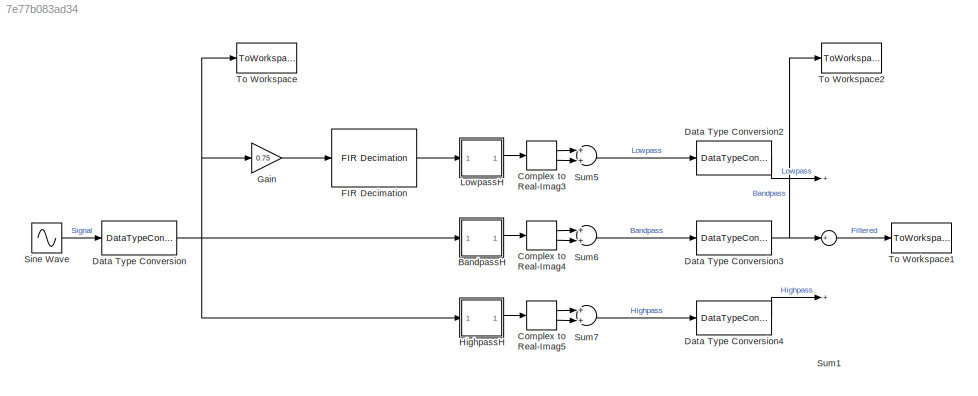
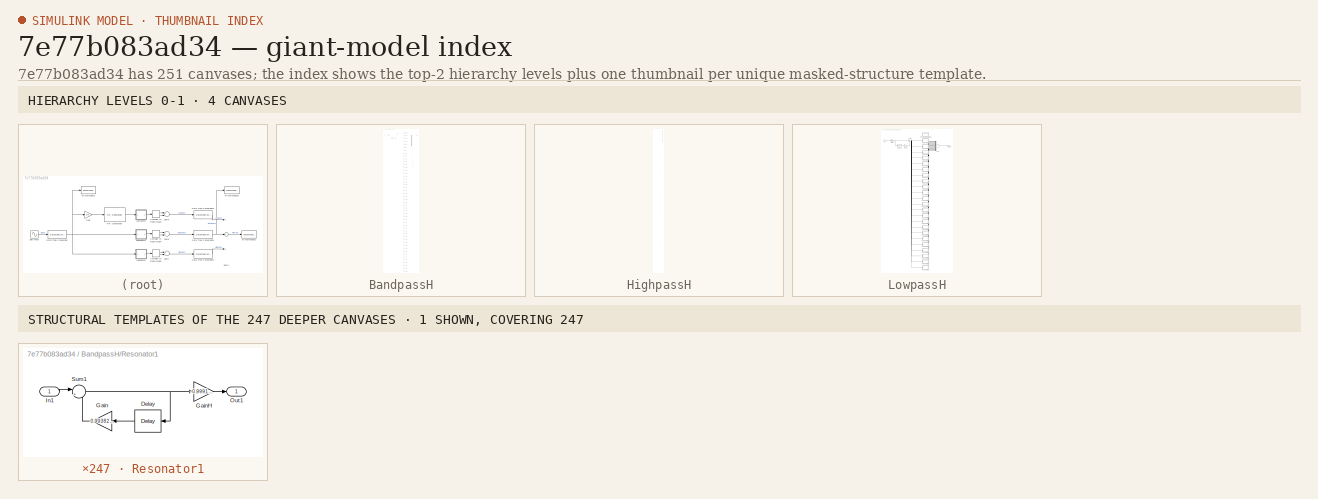
[diagram: thumbnail index - top-2 hierarchy levels (4 canvases) + 1 structural-template representatives of the remaining 247 canvases]
MODEL slx_7e77b083ad34
KIND model
CONFIG AbsTol = auto
CONFIG EnableMultiTasking = off
CONFIG FixedStep = auto
CONFIG MaxStep = auto
CONFIG MinStep = auto
CONFIG RelTol = 1e-3
CONFIG SampleTimeConstraint = Unconstrained
CONFIG Solver = FixedStepDiscrete
CONFIG SolverName = FixedStepDiscrete
CONFIG StartTime = 0.0
CONFIG StopTime = 300
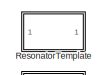
[diagram: BandpassH - part 1/3, top center region]
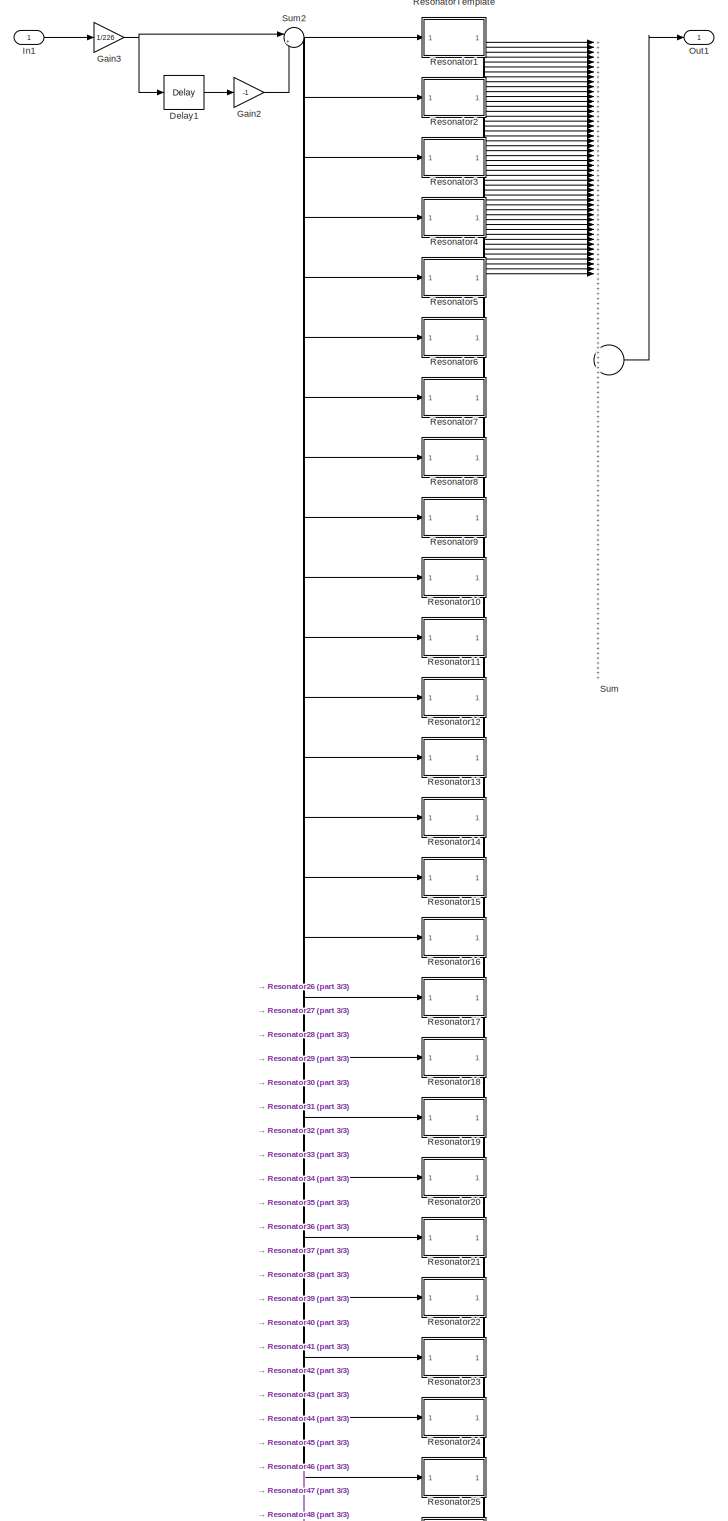
[diagram: BandpassH - part 2/3, full width, top band]
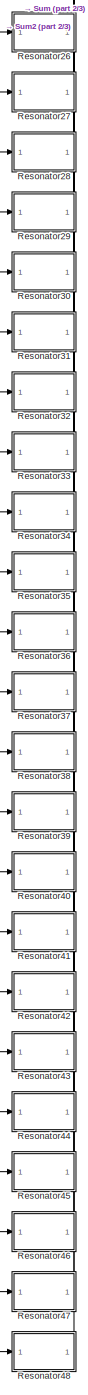
[diagram: BandpassH - part 3/3, bottom center region]
BLOCK [SubSystem] BandpassH
  Ports = [1, 1]
  RequestExecContextInheritance = off
  Variant = off
BLOCK [Delay] BandpassH/Delay1
  DelayLength = 226
  InputPortMap = u0
  Ports = [1, 1]
BLOCK [Gain] BandpassH/Gain2
  Gain = -1
  OutDataTypeStr = Inherit: Inherit via internal rule
  ParamDataTypeStr = Inherit: Inherit via internal rule
  SaturateOnIntegerOverflow = off
BLOCK [Gain] BandpassH/Gain3
  Gain = 1/226
  OutDataTypeStr = Inherit: Inherit via internal rule
  ParamDataTypeStr = Inherit: Inherit via internal rule
  SaturateOnIntegerOverflow = off
BLOCK [Inport] BandpassH/In1
  IconDisplay = Port number
BLOCK [Outport] BandpassH/Out1
  IconDisplay = Port number
BLOCK [SubSystem] BandpassH/Resonator1
  Ports = [1, 1]
  RequestExecContextInheritance = off
  Variant = off
BLOCK [Delay] BandpassH/Resonator1/Delay
  DelayLength = 1
  InputPortMap = u0
  Ports = [1, 1]
BLOCK [Gain] BandpassH/Resonator1/Gain
  Gain = 0.99382+0.11098i
  OutDataTypeStr = fixdt(1,24,23)
  ParamDataTypeStr = Inherit: Inherit via internal rule
  SaturateOnIntegerOverflow = off
BLOCK [Gain] BandpassH/Resonator1/GainH
  Gain = -0.99913-0.04169i
  OutDataTypeStr = fixdt(1,24,23)
  ParamDataTypeStr = Inherit: Inherit via internal rule
  SaturateOnIntegerOverflow = off
BLOCK [Inport] BandpassH/Resonator1/In1
  IconDisplay = Port number
BLOCK [Outport] BandpassH/Resonator1/Out1
  IconDisplay = Port number
BLOCK [Sum] BandpassH/Resonator1/Sum1
  IconShape = round
  InputSameDT = off
  Inputs = |++
  OutDataTypeStr = Inherit: Inherit via internal rule
  Ports = [2, 1]
  SaturateOnIntegerOverflow = off
BLOCK [SubSystem] BandpassH/Resonator10
  Ports = [1, 1]
  RequestExecContextInheritance = off
  Variant = off
BLOCK [Delay] BandpassH/Resonator10/Delay
  DelayLength = 1
  InputPortMap = u0
  Ports = [1, 1]
BLOCK [Gain] BandpassH/Resonator10/Gain
  Gain = 0.93539+0.3536i
  OutDataTypeStr = fixdt(1,24,23)
  ParamDataTypeStr = Inherit: Inherit via internal rule
  SaturateOnIntegerOverflow = off
BLOCK [Gain] BandpassH/Resonator10/GainH
  Gain = 0.98612+0.16604i
  OutDataTypeStr = fixdt(1,24,23)
  ParamDataTypeStr = Inherit: Inherit via internal rule
  SaturateOnIntegerOverflow = off
BLOCK [Inport] BandpassH/Resonator10/In1
  IconDisplay = Port number
BLOCK [Outport] BandpassH/Resonator10/Out1
  IconDisplay = Port number
BLOCK [Sum] BandpassH/Resonator10/Sum1
  IconShape = round
  InputSameDT = off
  Inputs = |++
  OutDataTypeStr = Inherit: Inherit via internal rule
  Ports = [2, 1]
  SaturateOnIntegerOverflow = off
BLOCK [SubSystem] BandpassH/Resonator11
  Ports = [1, 1]
  RequestExecContextInheritance = off
  Variant = off
BLOCK [Delay] BandpassH/Resonator11/Delay
  DelayLength = 1
  InputPortMap = u0
  Ports = [1, 1]
BLOCK [Gain] BandpassH/Resonator11/Gain
  Gain = 0.9252+0.37947i
  OutDataTypeStr = fixdt(1,24,23)
  ParamDataTypeStr = Inherit: Inherit via internal rule
  SaturateOnIntegerOverflow = off
BLOCK [Gain] BandpassH/Resonator11/GainH
  Gain = -0.98372-0.17973i
  OutDataTypeStr = fixdt(1,24,23)
  ParamDataTypeStr = Inherit: Inherit via internal rule
  SaturateOnIntegerOverflow = off
BLOCK [Inport] BandpassH/Resonator11/In1
  IconDisplay = Port number
BLOCK [Outport] BandpassH/Resonator11/Out1
  IconDisplay = Port number
BLOCK [Sum] BandpassH/Resonator11/Sum1
  IconShape = round
  InputSameDT = off
  Inputs = |++
  OutDataTypeStr = Inherit: Inherit via internal rule
  Ports = [2, 1]
  SaturateOnIntegerOverflow = off
BLOCK [SubSystem] BandpassH/Resonator12
  Ports = [1, 1]
  RequestExecContextInheritance = off
  Variant = off
BLOCK [Delay] BandpassH/Resonator12/Delay
  DelayLength = 1
  InputPortMap = u0
  Ports = [1, 1]
BLOCK [Gain] BandpassH/Resonator12/Gain
  Gain = 0.9143+0.40504i
  OutDataTypeStr = fixdt(1,24,23)
  ParamDataTypeStr = Inherit: Inherit via internal rule
  SaturateOnIntegerOverflow = off
BLOCK [Gain] BandpassH/Resonator12/GainH
  Gain = 0.98112+0.19339i
  OutDataTypeStr = fixdt(1,24,23)
  ParamDataTypeStr = Inherit: Inherit via internal rule
  SaturateOnIntegerOverflow = off
BLOCK [Inport] BandpassH/Resonator12/In1
  IconDisplay = Port number
BLOCK [Outport] BandpassH/Resonator12/Out1
  IconDisplay = Port number
BLOCK [Sum] BandpassH/Resonator12/Sum1
  IconShape = round
  InputSameDT = off
  Inputs = |++
  OutDataTypeStr = Inherit: Inherit via internal rule
  Ports = [2, 1]
  SaturateOnIntegerOverflow = off
BLOCK [SubSystem] BandpassH/Resonator13
  Ports = [1, 1]
  RequestExecContextInheritance = off
  Variant = off
BLOCK [Delay] BandpassH/Resonator13/Delay
  DelayLength = 1
  InputPortMap = u0
  Ports = [1, 1]
BLOCK [Gain] BandpassH/Resonator13/Gain
  Gain = 0.90269+0.4303i
  OutDataTypeStr = fixdt(1,24,23)
  ParamDataTypeStr = Inherit: Inherit via internal rule
  SaturateOnIntegerOverflow = off
BLOCK [Gain] BandpassH/Resonator13/GainH
  Gain = -0.97834-0.20701i
  OutDataTypeStr = fixdt(1,24,23)
  ParamDataTypeStr = Inherit: Inherit via internal rule
  SaturateOnIntegerOverflow = off
BLOCK [Inport] BandpassH/Resonator13/In1
  IconDisplay = Port number
BLOCK [Outport] BandpassH/Resonator13/Out1
  IconDisplay = Port number
BLOCK [Sum] BandpassH/Resonator13/Sum1
  IconShape = round
  InputSameDT = off
  Inputs = |++
  OutDataTypeStr = Inherit: Inherit via internal rule
  Ports = [2, 1]
  SaturateOnIntegerOverflow = off
BLOCK [SubSystem] BandpassH/Resonator14
  Ports = [1, 1]
  RequestExecContextInheritance = off
  Variant = off
BLOCK [Delay] BandpassH/Resonator14/Delay
  DelayLength = 1
  InputPortMap = u0
  Ports = [1, 1]
BLOCK [Gain] BandpassH/Resonator14/Gain
  Gain = 0.89037+0.45523i
  OutDataTypeStr = fixdt(1,24,23)
  ParamDataTypeStr = Inherit: Inherit via internal rule
  SaturateOnIntegerOverflow = off
BLOCK [Gain] BandpassH/Resonator14/GainH
  Gain = 0.97537+0.22058i
  OutDataTypeStr = fixdt(1,24,23)
  ParamDataTypeStr = Inherit: Inherit via internal rule
  SaturateOnIntegerOverflow = off
BLOCK [Inport] BandpassH/Resonator14/In1
  IconDisplay = Port number
BLOCK [Outport] BandpassH/Resonator14/Out1
  IconDisplay = Port number
BLOCK [Sum] BandpassH/Resonator14/Sum1
  IconShape = round
  InputSameDT = off
  Inputs = |++
  OutDataTypeStr = Inherit: Inherit via internal rule
  Ports = [2, 1]
  SaturateOnIntegerOverflow = off
BLOCK [SubSystem] BandpassH/Resonator15
  Ports = [1, 1]
  RequestExecContextInheritance = off
  Variant = off
BLOCK [Delay] BandpassH/Resonator15/Delay
  DelayLength = 1
  InputPortMap = u0
  Ports = [1, 1]
BLOCK [Gain] BandpassH/Resonator15/Gain
  Gain = 0.87738+0.4798i
  OutDataTypeStr = fixdt(1,24,23)
  ParamDataTypeStr = Inherit: Inherit via internal rule
  SaturateOnIntegerOverflow = off
BLOCK [Gain] BandpassH/Resonator15/GainH
  Gain = -0.97221-0.23412i
  OutDataTypeStr = fixdt(1,24,23)
  ParamDataTypeStr = Inherit: Inherit via internal rule
  SaturateOnIntegerOverflow = off
BLOCK [Inport] BandpassH/Resonator15/In1
  IconDisplay = Port number
BLOCK [Outport] BandpassH/Resonator15/Out1
  IconDisplay = Port number
BLOCK [Sum] BandpassH/Resonator15/Sum1
  IconShape = round
  InputSameDT = off
  Inputs = |++
  OutDataTypeStr = Inherit: Inherit via internal rule
  Ports = [2, 1]
  SaturateOnIntegerOverflow = off
BLOCK [SubSystem] BandpassH/Resonator16
  Ports = [1, 1]
  RequestExecContextInheritance = off
  Variant = off
BLOCK [Delay] BandpassH/Resonator16/Delay
  DelayLength = 1
  InputPortMap = u0
  Ports = [1, 1]
BLOCK [Gain] BandpassH/Resonator16/Gain
  Gain = 0.8637+0.50401i
  OutDataTypeStr = fixdt(1,24,23)
  ParamDataTypeStr = Inherit: Inherit via internal rule
  SaturateOnIntegerOverflow = off
BLOCK [Gain] BandpassH/Resonator16/GainH
  Gain = 0.96886+0.24761i
  OutDataTypeStr = fixdt(1,24,23)
  ParamDataTypeStr = Inherit: Inherit via internal rule
  SaturateOnIntegerOverflow = off
BLOCK [Inport] BandpassH/Resonator16/In1
  IconDisplay = Port number
BLOCK [Outport] BandpassH/Resonator16/Out1
  IconDisplay = Port number
BLOCK [Sum] BandpassH/Resonator16/Sum1
  IconShape = round
  InputSameDT = off
  Inputs = |++
  OutDataTypeStr = Inherit: Inherit via internal rule
  Ports = [2, 1]
  SaturateOnIntegerOverflow = off
BLOCK [SubSystem] BandpassH/Resonator17
  Ports = [1, 1]
  RequestExecContextInheritance = off
  Variant = off
BLOCK [Delay] BandpassH/Resonator17/Delay
  DelayLength = 1
  InputPortMap = u0
  Ports = [1, 1]
BLOCK [Gain] BandpassH/Resonator17/Gain
  Gain = 0.84936+0.52782i
  OutDataTypeStr = fixdt(1,24,23)
  ParamDataTypeStr = Inherit: Inherit via internal rule
  SaturateOnIntegerOverflow = off
BLOCK [Gain] BandpassH/Resonator17/GainH
  Gain = -0.96532-0.26106i
  OutDataTypeStr = fixdt(1,24,23)
  ParamDataTypeStr = Inherit: Inherit via internal rule
  SaturateOnIntegerOverflow = off
BLOCK [Inport] BandpassH/Resonator17/In1
  IconDisplay = Port number
BLOCK [Outport] BandpassH/Resonator17/Out1
  IconDisplay = Port number
BLOCK [Sum] BandpassH/Resonator17/Sum1
  IconShape = round
  InputSameDT = off
  Inputs = |++
  OutDataTypeStr = Inherit: Inherit via internal rule
  Ports = [2, 1]
  SaturateOnIntegerOverflow = off
BLOCK [SubSystem] BandpassH/Resonator18
  Ports = [1, 1]
  RequestExecContextInheritance = off
  Variant = off
BLOCK [Delay] BandpassH/Resonator18/Delay
  DelayLength = 1
  InputPortMap = u0
  Ports = [1, 1]
BLOCK [Gain] BandpassH/Resonator18/Gain
  Gain = 0.83435+0.55123i
  OutDataTypeStr = fixdt(1,24,23)
  ParamDataTypeStr = Inherit: Inherit via internal rule
  SaturateOnIntegerOverflow = off
BLOCK [Gain] BandpassH/Resonator18/GainH
  Gain = 0.9616+0.27445i
  OutDataTypeStr = fixdt(1,24,23)
  ParamDataTypeStr = Inherit: Inherit via internal rule
  SaturateOnIntegerOverflow = off
BLOCK [Inport] BandpassH/Resonator18/In1
  IconDisplay = Port number
BLOCK [Outport] BandpassH/Resonator18/Out1
  IconDisplay = Port number
BLOCK [Sum] BandpassH/Resonator18/Sum1
  IconShape = round
  InputSameDT = off
  Inputs = |++
  OutDataTypeStr = Inherit: Inherit via internal rule
  Ports = [2, 1]
  SaturateOnIntegerOverflow = off
BLOCK [SubSystem] BandpassH/Resonator19
  Ports = [1, 1]
  RequestExecContextInheritance = off
  Variant = off
BLOCK [Delay] BandpassH/Resonator19/Delay
  DelayLength = 1
  InputPortMap = u0
  Ports = [1, 1]
BLOCK [Gain] BandpassH/Resonator19/Gain
  Gain = 0.81871+0.57421i
  OutDataTypeStr = fixdt(1,24,23)
  ParamDataTypeStr = Inherit: Inherit via internal rule
  SaturateOnIntegerOverflow = off
BLOCK [Gain] BandpassH/Resonator19/GainH
  Gain = -0.95769-0.28779i
  OutDataTypeStr = fixdt(1,24,23)
  ParamDataTypeStr = Inherit: Inherit via internal rule
  SaturateOnIntegerOverflow = off
BLOCK [Inport] BandpassH/Resonator19/In1
  IconDisplay = Port number
BLOCK [Outport] BandpassH/Resonator19/Out1
  IconDisplay = Port number
BLOCK [Sum] BandpassH/Resonator19/Sum1
  IconShape = round
  InputSameDT = off
  Inputs = |++
  OutDataTypeStr = Inherit: Inherit via internal rule
  Ports = [2, 1]
  SaturateOnIntegerOverflow = off
BLOCK [SubSystem] BandpassH/Resonator2
  Ports = [1, 1]
  RequestExecContextInheritance = off
  Variant = off
BLOCK [Delay] BandpassH/Resonator2/Delay
  DelayLength = 1
  InputPortMap = u0
  Ports = [1, 1]
BLOCK [Gain] BandpassH/Resonator2/Gain
  Gain = 0.99035+0.13856i
  OutDataTypeStr = fixdt(1,24,23)
  ParamDataTypeStr = Inherit: Inherit via internal rule
  SaturateOnIntegerOverflow = off
BLOCK [Gain] BandpassH/Resonator2/GainH
  Gain = 0.99845+0.055575i
  OutDataTypeStr = fixdt(1,24,23)
  ParamDataTypeStr = Inherit: Inherit via internal rule
  SaturateOnIntegerOverflow = off
BLOCK [Inport] BandpassH/Resonator2/In1
  IconDisplay = Port number
BLOCK [Outport] BandpassH/Resonator2/Out1
  IconDisplay = Port number
BLOCK [Sum] BandpassH/Resonator2/Sum1
  IconShape = round
  InputSameDT = off
  Inputs = |++
  OutDataTypeStr = Inherit: Inherit via internal rule
  Ports = [2, 1]
  SaturateOnIntegerOverflow = off
BLOCK [SubSystem] BandpassH/Resonator20
  Ports = [1, 1]
  RequestExecContextInheritance = off
  Variant = off
BLOCK [Delay] BandpassH/Resonator20/Delay
  DelayLength = 1
  InputPortMap = u0
  Ports = [1, 1]
BLOCK [Gain] BandpassH/Resonator20/Gain
  Gain = 0.80243+0.59675i
  OutDataTypeStr = fixdt(1,24,23)
  ParamDataTypeStr = Inherit: Inherit via internal rule
  SaturateOnIntegerOverflow = off
BLOCK [Gain] BandpassH/Resonator20/GainH
  Gain = 0.9536+0.30107i
  OutDataTypeStr = fixdt(1,24,23)
  ParamDataTypeStr = Inherit: Inherit via internal rule
  SaturateOnIntegerOverflow = off
BLOCK [Inport] BandpassH/Resonator20/In1
  IconDisplay = Port number
BLOCK [Outport] BandpassH/Resonator20/Out1
  IconDisplay = Port number
BLOCK [Sum] BandpassH/Resonator20/Sum1
  IconShape = round
  InputSameDT = off
  Inputs = |++
  OutDataTypeStr = Inherit: Inherit via internal rule
  Ports = [2, 1]
  SaturateOnIntegerOverflow = off
BLOCK [SubSystem] BandpassH/Resonator21
  Ports = [1, 1]
  RequestExecContextInheritance = off
  Variant = off
BLOCK [Delay] BandpassH/Resonator21/Delay
  DelayLength = 1
  InputPortMap = u0
  Ports = [1, 1]
BLOCK [Gain] BandpassH/Resonator21/Gain
  Gain = 0.78553+0.61882i
  OutDataTypeStr = fixdt(1,24,23)
  ParamDataTypeStr = Inherit: Inherit via internal rule
  SaturateOnIntegerOverflow = off
BLOCK [Gain] BandpassH/Resonator21/GainH
  Gain = -0.94932-0.3143i
  OutDataTypeStr = fixdt(1,24,23)
  ParamDataTypeStr = Inherit: Inherit via internal rule
  SaturateOnIntegerOverflow = off
BLOCK [Inport] BandpassH/Resonator21/In1
  IconDisplay = Port number
BLOCK [Outport] BandpassH/Resonator21/Out1
  IconDisplay = Port number
BLOCK [Sum] BandpassH/Resonator21/Sum1
  IconShape = round
  InputSameDT = off
  Inputs = |++
  OutDataTypeStr = Inherit: Inherit via internal rule
  Ports = [2, 1]
  SaturateOnIntegerOverflow = off
BLOCK [SubSystem] BandpassH/Resonator22
  Ports = [1, 1]
  RequestExecContextInheritance = off
  Variant = off
BLOCK [Delay] BandpassH/Resonator22/Delay
  DelayLength = 1
  InputPortMap = u0
  Ports = [1, 1]
BLOCK [Gain] BandpassH/Resonator22/Gain
  Gain = 0.76803+0.64042i
  OutDataTypeStr = fixdt(1,24,23)
  ParamDataTypeStr = Inherit: Inherit via internal rule
  SaturateOnIntegerOverflow = off
BLOCK [Gain] BandpassH/Resonator22/GainH
  Gain = 0.94486+0.32747i
  OutDataTypeStr = fixdt(1,24,23)
  ParamDataTypeStr = Inherit: Inherit via internal rule
  SaturateOnIntegerOverflow = off
BLOCK [Inport] BandpassH/Resonator22/In1
  IconDisplay = Port number
BLOCK [Outport] BandpassH/Resonator22/Out1
  IconDisplay = Port number
BLOCK [Sum] BandpassH/Resonator22/Sum1
  IconShape = round
  InputSameDT = off
  Inputs = |++
  OutDataTypeStr = Inherit: Inherit via internal rule
  Ports = [2, 1]
  SaturateOnIntegerOverflow = off
BLOCK [SubSystem] BandpassH/Resonator23
  Ports = [1, 1]
  RequestExecContextInheritance = off
  Variant = off
BLOCK [Delay] BandpassH/Resonator23/Delay
  DelayLength = 1
  InputPortMap = u0
  Ports = [1, 1]
BLOCK [Gain] BandpassH/Resonator23/Gain
  Gain = 0.74993+0.66152i
  OutDataTypeStr = fixdt(1,24,23)
  ParamDataTypeStr = Inherit: Inherit via internal rule
  SaturateOnIntegerOverflow = off
BLOCK [Gain] BandpassH/Resonator23/GainH
  Gain = -0.94022-0.34057i
  OutDataTypeStr = fixdt(1,24,23)
  ParamDataTypeStr = Inherit: Inherit via internal rule
  SaturateOnIntegerOverflow = off
BLOCK [Inport] BandpassH/Resonator23/In1
  IconDisplay = Port number
BLOCK [Outport] BandpassH/Resonator23/Out1
  IconDisplay = Port number
BLOCK [Sum] BandpassH/Resonator23/Sum1
  IconShape = round
  InputSameDT = off
  Inputs = |++
  OutDataTypeStr = Inherit: Inherit via internal rule
  Ports = [2, 1]
  SaturateOnIntegerOverflow = off
BLOCK [SubSystem] BandpassH/Resonator24
  Ports = [1, 1]
  RequestExecContextInheritance = off
  Variant = off
BLOCK [Delay] BandpassH/Resonator24/Delay
  DelayLength = 1
  InputPortMap = u0
  Ports = [1, 1]
BLOCK [Gain] BandpassH/Resonator24/Gain
  Gain = 0.73125+0.68211i
  OutDataTypeStr = fixdt(1,24,23)
  ParamDataTypeStr = Inherit: Inherit via internal rule
  SaturateOnIntegerOverflow = off
BLOCK [Gain] BandpassH/Resonator24/GainH
  Gain = 0.93539+0.3536i
  OutDataTypeStr = fixdt(1,24,23)
  ParamDataTypeStr = Inherit: Inherit via internal rule
  SaturateOnIntegerOverflow = off
BLOCK [Inport] BandpassH/Resonator24/In1
  IconDisplay = Port number
BLOCK [Outport] BandpassH/Resonator24/Out1
  IconDisplay = Port number
BLOCK [Sum] BandpassH/Resonator24/Sum1
  IconShape = round
  InputSameDT = off
  Inputs = |++
  OutDataTypeStr = Inherit: Inherit via internal rule
  Ports = [2, 1]
  SaturateOnIntegerOverflow = off
BLOCK [SubSystem] BandpassH/Resonator25
  Ports = [1, 1]
  RequestExecContextInheritance = off
  Variant = off
BLOCK [Delay] BandpassH/Resonator25/Delay
  DelayLength = 1
  InputPortMap = u0
  Ports = [1, 1]
BLOCK [Gain] BandpassH/Resonator25/Gain
  Gain = 0.76803-0.64042i
  OutDataTypeStr = fixdt(1,24,23)
  ParamDataTypeStr = Inherit: Inherit via internal rule
  SaturateOnIntegerOverflow = off
BLOCK [Gain] BandpassH/Resonator25/GainH
  Gain = 0.93539-0.3536i
  OutDataTypeStr = fixdt(1,24,23)
  ParamDataTypeStr = Inherit: Inherit via internal rule
  SaturateOnIntegerOverflow = off
BLOCK [Inport] BandpassH/Resonator25/In1
  IconDisplay = Port number
BLOCK [Outport] BandpassH/Resonator25/Out1
  IconDisplay = Port number
BLOCK [Sum] BandpassH/Resonator25/Sum1
  IconShape = round
  InputSameDT = off
  Inputs = |++
  OutDataTypeStr = Inherit: Inherit via internal rule
  Ports = [2, 1]
  SaturateOnIntegerOverflow = off
BLOCK [SubSystem] BandpassH/Resonator26
  Ports = [1, 1]
  RequestExecContextInheritance = off
  Variant = off
BLOCK [Delay] BandpassH/Resonator26/Delay
  DelayLength = 1
  InputPortMap = u0
  Ports = [1, 1]
BLOCK [Gain] BandpassH/Resonator26/Gain
  Gain = 0.78553-0.61882i
  OutDataTypeStr = fixdt(1,24,23)
  ParamDataTypeStr = Inherit: Inherit via internal rule
  SaturateOnIntegerOverflow = off
BLOCK [Gain] BandpassH/Resonator26/GainH
  Gain = -0.94022+0.34057i
  OutDataTypeStr = fixdt(1,24,23)
  ParamDataTypeStr = Inherit: Inherit via internal rule
  SaturateOnIntegerOverflow = off
BLOCK [Inport] BandpassH/Resonator26/In1
  IconDisplay = Port number
BLOCK [Outport] BandpassH/Resonator26/Out1
  IconDisplay = Port number
BLOCK [Sum] BandpassH/Resonator26/Sum1
  IconShape = round
  InputSameDT = off
  Inputs = |++
  OutDataTypeStr = Inherit: Inherit via internal rule
  Ports = [2, 1]
  SaturateOnIntegerOverflow = off
BLOCK [SubSystem] BandpassH/Resonator27
  Ports = [1, 1]
  RequestExecContextInheritance = off
  Variant = off
BLOCK [Delay] BandpassH/Resonator27/Delay
  DelayLength = 1
  InputPortMap = u0
  Ports = [1, 1]
BLOCK [Gain] BandpassH/Resonator27/Gain
  Gain = 0.80243-0.59675i
  OutDataTypeStr = fixdt(1,24,23)
  ParamDataTypeStr = Inherit: Inherit via internal rule
  SaturateOnIntegerOverflow = off
BLOCK [Gain] BandpassH/Resonator27/GainH
  Gain = 0.94486-0.32747i
  OutDataTypeStr = fixdt(1,24,23)
  ParamDataTypeStr = Inherit: Inherit via internal rule
  SaturateOnIntegerOverflow = off
BLOCK [Inport] BandpassH/Resonator27/In1
  IconDisplay = Port number
BLOCK [Outport] BandpassH/Resonator27/Out1
  IconDisplay = Port number
BLOCK [Sum] BandpassH/Resonator27/Sum1
  IconShape = round
  InputSameDT = off
  Inputs = |++
  OutDataTypeStr = Inherit: Inherit via internal rule
  Ports = [2, 1]
  SaturateOnIntegerOverflow = off
BLOCK [SubSystem] BandpassH/Resonator28
  Ports = [1, 1]
  RequestExecContextInheritance = off
  Variant = off
BLOCK [Delay] BandpassH/Resonator28/Delay
  DelayLength = 1
  InputPortMap = u0
  Ports = [1, 1]
BLOCK [Gain] BandpassH/Resonator28/Gain
  Gain = 0.81871-0.57421i
  OutDataTypeStr = fixdt(1,24,23)
  ParamDataTypeStr = Inherit: Inherit via internal rule
  SaturateOnIntegerOverflow = off
BLOCK [Gain] BandpassH/Resonator28/GainH
  Gain = -0.94932+0.3143i
  OutDataTypeStr = fixdt(1,24,23)
  ParamDataTypeStr = Inherit: Inherit via internal rule
  SaturateOnIntegerOverflow = off
BLOCK [Inport] BandpassH/Resonator28/In1
  IconDisplay = Port number
BLOCK [Outport] BandpassH/Resonator28/Out1
  IconDisplay = Port number
BLOCK [Sum] BandpassH/Resonator28/Sum1
  IconShape = round
  InputSameDT = off
  Inputs = |++
  OutDataTypeStr = Inherit: Inherit via internal rule
  Ports = [2, 1]
  SaturateOnIntegerOverflow = off
BLOCK [SubSystem] BandpassH/Resonator29
  Ports = [1, 1]
  RequestExecContextInheritance = off
  Variant = off
BLOCK [Delay] BandpassH/Resonator29/Delay
  DelayLength = 1
  InputPortMap = u0
  Ports = [1, 1]
BLOCK [Gain] BandpassH/Resonator29/Gain
  Gain = 0.83435-0.55123i
  OutDataTypeStr = fixdt(1,24,23)
  ParamDataTypeStr = Inherit: Inherit via internal rule
  SaturateOnIntegerOverflow = off
BLOCK [Gain] BandpassH/Resonator29/GainH
  Gain = 0.9536-0.30107i
  OutDataTypeStr = fixdt(1,24,23)
  ParamDataTypeStr = Inherit: Inherit via internal rule
  SaturateOnIntegerOverflow = off
BLOCK [Inport] BandpassH/Resonator29/In1
  IconDisplay = Port number
BLOCK [Outport] BandpassH/Resonator29/Out1
  IconDisplay = Port number
BLOCK [Sum] BandpassH/Resonator29/Sum1
  IconShape = round
  InputSameDT = off
  Inputs = |++
  OutDataTypeStr = Inherit: Inherit via internal rule
  Ports = [2, 1]
  SaturateOnIntegerOverflow = off
BLOCK [SubSystem] BandpassH/Resonator3
  Ports = [1, 1]
  RequestExecContextInheritance = off
  Variant = off
BLOCK [Delay] BandpassH/Resonator3/Delay
  DelayLength = 1
  InputPortMap = u0
  Ports = [1, 1]
BLOCK [Gain] BandpassH/Resonator3/Gain
  Gain = 0.98612+0.16604i
  OutDataTypeStr = fixdt(1,24,23)
  ParamDataTypeStr = Inherit: Inherit via internal rule
  SaturateOnIntegerOverflow = off
BLOCK [Gain] BandpassH/Resonator3/GainH
  Gain = -0.99759-0.069448i
  OutDataTypeStr = fixdt(1,24,23)
  ParamDataTypeStr = Inherit: Inherit via internal rule
  SaturateOnIntegerOverflow = off
BLOCK [Inport] BandpassH/Resonator3/In1
  IconDisplay = Port number
BLOCK [Outport] BandpassH/Resonator3/Out1
  IconDisplay = Port number
BLOCK [Sum] BandpassH/Resonator3/Sum1
  IconShape = round
  InputSameDT = off
  Inputs = |++
  OutDataTypeStr = Inherit: Inherit via internal rule
  Ports = [2, 1]
  SaturateOnIntegerOverflow = off
BLOCK [SubSystem] BandpassH/Resonator30
  Ports = [1, 1]
  RequestExecContextInheritance = off
  Variant = off
BLOCK [Delay] BandpassH/Resonator30/Delay
  DelayLength = 1
  InputPortMap = u0
  Ports = [1, 1]
BLOCK [Gain] BandpassH/Resonator30/Gain
  Gain = 0.84936-0.52782i
  OutDataTypeStr = fixdt(1,24,23)
  ParamDataTypeStr = Inherit: Inherit via internal rule
  SaturateOnIntegerOverflow = off
BLOCK [Gain] BandpassH/Resonator30/GainH
  Gain = -0.95769+0.28779i
  OutDataTypeStr = fixdt(1,24,23)
  ParamDataTypeStr = Inherit: Inherit via internal rule
  SaturateOnIntegerOverflow = off
BLOCK [Inport] BandpassH/Resonator30/In1
  IconDisplay = Port number
BLOCK [Outport] BandpassH/Resonator30/Out1
  IconDisplay = Port number
BLOCK [Sum] BandpassH/Resonator30/Sum1
  IconShape = round
  InputSameDT = off
  Inputs = |++
  OutDataTypeStr = Inherit: Inherit via internal rule
  Ports = [2, 1]
  SaturateOnIntegerOverflow = off
BLOCK [SubSystem] BandpassH/Resonator31
  Ports = [1, 1]
  RequestExecContextInheritance = off
  Variant = off
BLOCK [Delay] BandpassH/Resonator31/Delay
  DelayLength = 1
  InputPortMap = u0
  Ports = [1, 1]
BLOCK [Gain] BandpassH/Resonator31/Gain
  Gain = 0.8637-0.50401i
  OutDataTypeStr = fixdt(1,24,23)
  ParamDataTypeStr = Inherit: Inherit via internal rule
  SaturateOnIntegerOverflow = off
BLOCK [Gain] BandpassH/Resonator31/GainH
  Gain = 0.9616-0.27445i
  OutDataTypeStr = fixdt(1,24,23)
  ParamDataTypeStr = Inherit: Inherit via internal rule
  SaturateOnIntegerOverflow = off
BLOCK [Inport] BandpassH/Resonator31/In1
  IconDisplay = Port number
BLOCK [Outport] BandpassH/Resonator31/Out1
  IconDisplay = Port number
BLOCK [Sum] BandpassH/Resonator31/Sum1
  IconShape = round
  InputSameDT = off
  Inputs = |++
  OutDataTypeStr = Inherit: Inherit via internal rule
  Ports = [2, 1]
  SaturateOnIntegerOverflow = off
BLOCK [SubSystem] BandpassH/Resonator32
  Ports = [1, 1]
  RequestExecContextInheritance = off
  Variant = off
BLOCK [Delay] BandpassH/Resonator32/Delay
  DelayLength = 1
  InputPortMap = u0
  Ports = [1, 1]
BLOCK [Gain] BandpassH/Resonator32/Gain
  Gain = 0.87738-0.4798i
  OutDataTypeStr = fixdt(1,24,23)
  ParamDataTypeStr = Inherit: Inherit via internal rule
  SaturateOnIntegerOverflow = off
BLOCK [Gain] BandpassH/Resonator32/GainH
  Gain = -0.96532+0.26106i
  OutDataTypeStr = fixdt(1,24,23)
  ParamDataTypeStr = Inherit: Inherit via internal rule
  SaturateOnIntegerOverflow = off
BLOCK [Inport] BandpassH/Resonator32/In1
  IconDisplay = Port number
BLOCK [Outport] BandpassH/Resonator32/Out1
  IconDisplay = Port number
BLOCK [Sum] BandpassH/Resonator32/Sum1
  IconShape = round
  InputSameDT = off
  Inputs = |++
  OutDataTypeStr = Inherit: Inherit via internal rule
  Ports = [2, 1]
  SaturateOnIntegerOverflow = off
BLOCK [SubSystem] BandpassH/Resonator33
  Ports = [1, 1]
  RequestExecContextInheritance = off
  Variant = off
BLOCK [Delay] BandpassH/Resonator33/Delay
  DelayLength = 1
  InputPortMap = u0
  Ports = [1, 1]
BLOCK [Gain] BandpassH/Resonator33/Gain
  Gain = 0.89037-0.45523i
  OutDataTypeStr = fixdt(1,24,23)
  ParamDataTypeStr = Inherit: Inherit via internal rule
  SaturateOnIntegerOverflow = off
BLOCK [Gain] BandpassH/Resonator33/GainH
  Gain = 0.96886-0.24761i
  OutDataTypeStr = fixdt(1,24,23)
  ParamDataTypeStr = Inherit: Inherit via internal rule
  SaturateOnIntegerOverflow = off
BLOCK [Inport] BandpassH/Resonator33/In1
  IconDisplay = Port number
BLOCK [Outport] BandpassH/Resonator33/Out1
  IconDisplay = Port number
BLOCK [Sum] BandpassH/Resonator33/Sum1
  IconShape = round
  InputSameDT = off
  Inputs = |++
  OutDataTypeStr = Inherit: Inherit via internal rule
  Ports = [2, 1]
  SaturateOnIntegerOverflow = off
BLOCK [SubSystem] BandpassH/Resonator34
  Ports = [1, 1]
  RequestExecContextInheritance = off
  Variant = off
BLOCK [Delay] BandpassH/Resonator34/Delay
  DelayLength = 1
  InputPortMap = u0
  Ports = [1, 1]
BLOCK [Gain] BandpassH/Resonator34/Gain
  Gain = 0.90269-0.4303i
  OutDataTypeStr = fixdt(1,24,23)
  ParamDataTypeStr = Inherit: Inherit via internal rule
  SaturateOnIntegerOverflow = off
BLOCK [Gain] BandpassH/Resonator34/GainH
  Gain = -0.97221+0.23412i
  OutDataTypeStr = fixdt(1,24,23)
  ParamDataTypeStr = Inherit: Inherit via internal rule
  SaturateOnIntegerOverflow = off
BLOCK [Inport] BandpassH/Resonator34/In1
  IconDisplay = Port number
BLOCK [Outport] BandpassH/Resonator34/Out1
  IconDisplay = Port number
BLOCK [Sum] BandpassH/Resonator34/Sum1
  IconShape = round
  InputSameDT = off
  Inputs = |++
  OutDataTypeStr = Inherit: Inherit via internal rule
  Ports = [2, 1]
  SaturateOnIntegerOverflow = off
BLOCK [SubSystem] BandpassH/Resonator35
  Ports = [1, 1]
  RequestExecContextInheritance = off
  Variant = off
BLOCK [Delay] BandpassH/Resonator35/Delay
  DelayLength = 1
  InputPortMap = u0
  Ports = [1, 1]
BLOCK [Gain] BandpassH/Resonator35/Gain
  Gain = 0.9143-0.40504i
  OutDataTypeStr = fixdt(1,24,23)
  ParamDataTypeStr = Inherit: Inherit via internal rule
  SaturateOnIntegerOverflow = off
BLOCK [Gain] BandpassH/Resonator35/GainH
  Gain = 0.97537-0.22058i
  OutDataTypeStr = fixdt(1,24,23)
  ParamDataTypeStr = Inherit: Inherit via internal rule
  SaturateOnIntegerOverflow = off
BLOCK [Inport] BandpassH/Resonator35/In1
  IconDisplay = Port number
BLOCK [Outport] BandpassH/Resonator35/Out1
  IconDisplay = Port number
BLOCK [Sum] BandpassH/Resonator35/Sum1
  IconShape = round
  InputSameDT = off
  Inputs = |++
  OutDataTypeStr = Inherit: Inherit via internal rule
  Ports = [2, 1]
  SaturateOnIntegerOverflow = off
BLOCK [SubSystem] BandpassH/Resonator36
  Ports = [1, 1]
  RequestExecContextInheritance = off
  Variant = off
BLOCK [Delay] BandpassH/Resonator36/Delay
  DelayLength = 1
  InputPortMap = u0
  Ports = [1, 1]
BLOCK [Gain] BandpassH/Resonator36/Gain
  Gain = 0.9252-0.37947i
  OutDataTypeStr = fixdt(1,24,23)
  ParamDataTypeStr = Inherit: Inherit via internal rule
  SaturateOnIntegerOverflow = off
BLOCK [Gain] BandpassH/Resonator36/GainH
  Gain = -0.97834+0.20701i
  OutDataTypeStr = fixdt(1,24,23)
  ParamDataTypeStr = Inherit: Inherit via internal rule
  SaturateOnIntegerOverflow = off
BLOCK [Inport] BandpassH/Resonator36/In1
  IconDisplay = Port number
BLOCK [Outport] BandpassH/Resonator36/Out1
  IconDisplay = Port number
BLOCK [Sum] BandpassH/Resonator36/Sum1
  IconShape = round
  InputSameDT = off
  Inputs = |++
  OutDataTypeStr = Inherit: Inherit via internal rule
  Ports = [2, 1]
  SaturateOnIntegerOverflow = off
BLOCK [SubSystem] BandpassH/Resonator37
  Ports = [1, 1]
  RequestExecContextInheritance = off
  Variant = off
BLOCK [Delay] BandpassH/Resonator37/Delay
  DelayLength = 1
  InputPortMap = u0
  Ports = [1, 1]
BLOCK [Gain] BandpassH/Resonator37/Gain
  Gain = 0.93539-0.3536i
  OutDataTypeStr = fixdt(1,24,23)
  ParamDataTypeStr = Inherit: Inherit via internal rule
  SaturateOnIntegerOverflow = off
BLOCK [Gain] BandpassH/Resonator37/GainH
  Gain = 0.98112-0.19339i
  OutDataTypeStr = fixdt(1,24,23)
  ParamDataTypeStr = Inherit: Inherit via internal rule
  SaturateOnIntegerOverflow = off
BLOCK [Inport] BandpassH/Resonator37/In1
  IconDisplay = Port number
BLOCK [Outport] BandpassH/Resonator37/Out1
  IconDisplay = Port number
BLOCK [Sum] BandpassH/Resonator37/Sum1
  IconShape = round
  InputSameDT = off
  Inputs = |++
  OutDataTypeStr = Inherit: Inherit via internal rule
  Ports = [2, 1]
  SaturateOnIntegerOverflow = off
BLOCK [SubSystem] BandpassH/Resonator38
  Ports = [1, 1]
  RequestExecContextInheritance = off
  Variant = off
BLOCK [Delay] BandpassH/Resonator38/Delay
  DelayLength = 1
  InputPortMap = u0
  Ports = [1, 1]
BLOCK [Gain] BandpassH/Resonator38/Gain
  Gain = 0.94486-0.32747i
  OutDataTypeStr = fixdt(1,24,23)
  ParamDataTypeStr = Inherit: Inherit via internal rule
  SaturateOnIntegerOverflow = off
BLOCK [Gain] BandpassH/Resonator38/GainH
  Gain = -0.98372+0.17973i
  OutDataTypeStr = fixdt(1,24,23)
  ParamDataTypeStr = Inherit: Inherit via internal rule
  SaturateOnIntegerOverflow = off
BLOCK [Inport] BandpassH/Resonator38/In1
  IconDisplay = Port number
BLOCK [Outport] BandpassH/Resonator38/Out1
  IconDisplay = Port number
BLOCK [Sum] BandpassH/Resonator38/Sum1
  IconShape = round
  InputSameDT = off
  Inputs = |++
  OutDataTypeStr = Inherit: Inherit via internal rule
  Ports = [2, 1]
  SaturateOnIntegerOverflow = off
BLOCK [SubSystem] BandpassH/Resonator39
  Ports = [1, 1]
  RequestExecContextInheritance = off
  Variant = off
BLOCK [Delay] BandpassH/Resonator39/Delay
  DelayLength = 1
  InputPortMap = u0
  Ports = [1, 1]
BLOCK [Gain] BandpassH/Resonator39/Gain
  Gain = 0.9536-0.30107i
  OutDataTypeStr = fixdt(1,24,23)
  ParamDataTypeStr = Inherit: Inherit via internal rule
  SaturateOnIntegerOverflow = off
BLOCK [Gain] BandpassH/Resonator39/GainH
  Gain = 0.98612-0.16604i
  OutDataTypeStr = fixdt(1,24,23)
  ParamDataTypeStr = Inherit: Inherit via internal rule
  SaturateOnIntegerOverflow = off
BLOCK [Inport] BandpassH/Resonator39/In1
  IconDisplay = Port number
BLOCK [Outport] BandpassH/Resonator39/Out1
  IconDisplay = Port number
BLOCK [Sum] BandpassH/Resonator39/Sum1
  IconShape = round
  InputSameDT = off
  Inputs = |++
  OutDataTypeStr = Inherit: Inherit via internal rule
  Ports = [2, 1]
  SaturateOnIntegerOverflow = off
BLOCK [SubSystem] BandpassH/Resonator4
  Ports = [1, 1]
  RequestExecContextInheritance = off
  Variant = off
BLOCK [Delay] BandpassH/Resonator4/Delay
  DelayLength = 1
  InputPortMap = u0
  Ports = [1, 1]
BLOCK [Gain] BandpassH/Resonator4/Gain
  Gain = 0.98112+0.19339i
  OutDataTypeStr = fixdt(1,24,23)
  ParamDataTypeStr = Inherit: Inherit via internal rule
  SaturateOnIntegerOverflow = off
BLOCK [Gain] BandpassH/Resonator4/GainH
  Gain = 0.99652+0.083308i
  OutDataTypeStr = fixdt(1,24,23)
  ParamDataTypeStr = Inherit: Inherit via internal rule
  SaturateOnIntegerOverflow = off
BLOCK [Inport] BandpassH/Resonator4/In1
  IconDisplay = Port number
BLOCK [Outport] BandpassH/Resonator4/Out1
  IconDisplay = Port number
BLOCK [Sum] BandpassH/Resonator4/Sum1
  IconShape = round
  InputSameDT = off
  Inputs = |++
  OutDataTypeStr = Inherit: Inherit via internal rule
  Ports = [2, 1]
  SaturateOnIntegerOverflow = off
BLOCK [SubSystem] BandpassH/Resonator40
  Ports = [1, 1]
  RequestExecContextInheritance = off
  Variant = off
BLOCK [Delay] BandpassH/Resonator40/Delay
  DelayLength = 1
  InputPortMap = u0
  Ports = [1, 1]
BLOCK [Gain] BandpassH/Resonator40/Gain
  Gain = 0.9616-0.27445i
  OutDataTypeStr = fixdt(1,24,23)
  ParamDataTypeStr = Inherit: Inherit via internal rule
  SaturateOnIntegerOverflow = off
BLOCK [Gain] BandpassH/Resonator40/GainH
  Gain = -0.98833+0.15231i
  OutDataTypeStr = fixdt(1,24,23)
  ParamDataTypeStr = Inherit: Inherit via internal rule
  SaturateOnIntegerOverflow = off
BLOCK [Inport] BandpassH/Resonator40/In1
  IconDisplay = Port number
BLOCK [Outport] BandpassH/Resonator40/Out1
  IconDisplay = Port number
BLOCK [Sum] BandpassH/Resonator40/Sum1
  IconShape = round
  InputSameDT = off
  Inputs = |++
  OutDataTypeStr = Inherit: Inherit via internal rule
  Ports = [2, 1]
  SaturateOnIntegerOverflow = off
BLOCK [SubSystem] BandpassH/Resonator41
  Ports = [1, 1]
  RequestExecContextInheritance = off
  Variant = off
BLOCK [Delay] BandpassH/Resonator41/Delay
  DelayLength = 1
  InputPortMap = u0
  Ports = [1, 1]
BLOCK [Gain] BandpassH/Resonator41/Gain
  Gain = 0.96886-0.24761i
  OutDataTypeStr = fixdt(1,24,23)
  ParamDataTypeStr = Inherit: Inherit via internal rule
  SaturateOnIntegerOverflow = off
BLOCK [Gain] BandpassH/Resonator41/GainH
  Gain = 0.99035-0.13856i
  OutDataTypeStr = fixdt(1,24,23)
  ParamDataTypeStr = Inherit: Inherit via internal rule
  SaturateOnIntegerOverflow = off
BLOCK [Inport] BandpassH/Resonator41/In1
  IconDisplay = Port number
BLOCK [Outport] BandpassH/Resonator41/Out1
  IconDisplay = Port number
BLOCK [Sum] BandpassH/Resonator41/Sum1
  IconShape = round
  InputSameDT = off
  Inputs = |++
  OutDataTypeStr = Inherit: Inherit via internal rule
  Ports = [2, 1]
  SaturateOnIntegerOverflow = off
BLOCK [SubSystem] BandpassH/Resonator42
  Ports = [1, 1]
  RequestExecContextInheritance = off
  Variant = off
BLOCK [Delay] BandpassH/Resonator42/Delay
  DelayLength = 1
  InputPortMap = u0
  Ports = [1, 1]
BLOCK [Gain] BandpassH/Resonator42/Gain
  Gain = 0.97537-0.22058i
  OutDataTypeStr = fixdt(1,24,23)
  ParamDataTypeStr = Inherit: Inherit via internal rule
  SaturateOnIntegerOverflow = off
BLOCK [Gain] BandpassH/Resonator42/GainH
  Gain = -0.99218+0.12478i
  OutDataTypeStr = fixdt(1,24,23)
  ParamDataTypeStr = Inherit: Inherit via internal rule
  SaturateOnIntegerOverflow = off
BLOCK [Inport] BandpassH/Resonator42/In1
  IconDisplay = Port number
BLOCK [Outport] BandpassH/Resonator42/Out1
  IconDisplay = Port number
BLOCK [Sum] BandpassH/Resonator42/Sum1
  IconShape = round
  InputSameDT = off
  Inputs = |++
  OutDataTypeStr = Inherit: Inherit via internal rule
  Ports = [2, 1]
  SaturateOnIntegerOverflow = off
BLOCK [SubSystem] BandpassH/Resonator43
  Ports = [1, 1]
  RequestExecContextInheritance = off
  Variant = off
BLOCK [Delay] BandpassH/Resonator43/Delay
  DelayLength = 1
  InputPortMap = u0
  Ports = [1, 1]
BLOCK [Gain] BandpassH/Resonator43/Gain
  Gain = 0.98112-0.19339i
  OutDataTypeStr = fixdt(1,24,23)
  ParamDataTypeStr = Inherit: Inherit via internal rule
  SaturateOnIntegerOverflow = off
BLOCK [Gain] BandpassH/Resonator43/GainH
  Gain = 0.99382-0.11098i
  OutDataTypeStr = fixdt(1,24,23)
  ParamDataTypeStr = Inherit: Inherit via internal rule
  SaturateOnIntegerOverflow = off
BLOCK [Inport] BandpassH/Resonator43/In1
  IconDisplay = Port number
BLOCK [Outport] BandpassH/Resonator43/Out1
  IconDisplay = Port number
BLOCK [Sum] BandpassH/Resonator43/Sum1
  IconShape = round
  InputSameDT = off
  Inputs = |++
  OutDataTypeStr = Inherit: Inherit via internal rule
  Ports = [2, 1]
  SaturateOnIntegerOverflow = off
BLOCK [SubSystem] BandpassH/Resonator44
  Ports = [1, 1]
  RequestExecContextInheritance = off
  Variant = off
BLOCK [Delay] BandpassH/Resonator44/Delay
  DelayLength = 1
  InputPortMap = u0
  Ports = [1, 1]
BLOCK [Gain] BandpassH/Resonator44/Gain
  Gain = 0.98612-0.16604i
  OutDataTypeStr = fixdt(1,24,23)
  ParamDataTypeStr = Inherit: Inherit via internal rule
  SaturateOnIntegerOverflow = off
BLOCK [Gain] BandpassH/Resonator44/GainH
  Gain = -0.99527+0.097152i
  OutDataTypeStr = fixdt(1,24,23)
  ParamDataTypeStr = Inherit: Inherit via internal rule
  SaturateOnIntegerOverflow = off
BLOCK [Inport] BandpassH/Resonator44/In1
  IconDisplay = Port number
BLOCK [Outport] BandpassH/Resonator44/Out1
  IconDisplay = Port number
BLOCK [Sum] BandpassH/Resonator44/Sum1
  IconShape = round
  InputSameDT = off
  Inputs = |++
  OutDataTypeStr = Inherit: Inherit via internal rule
  Ports = [2, 1]
  SaturateOnIntegerOverflow = off
BLOCK [SubSystem] BandpassH/Resonator45
  Ports = [1, 1]
  RequestExecContextInheritance = off
  Variant = off
BLOCK [Delay] BandpassH/Resonator45/Delay
  DelayLength = 1
  InputPortMap = u0
  Ports = [1, 1]
BLOCK [Gain] BandpassH/Resonator45/Gain
  Gain = 0.99035-0.13856i
  OutDataTypeStr = fixdt(1,24,23)
  ParamDataTypeStr = Inherit: Inherit via internal rule
  SaturateOnIntegerOverflow = off
BLOCK [Gain] BandpassH/Resonator45/GainH
  Gain = 0.99652-0.083308i
  OutDataTypeStr = fixdt(1,24,23)
  ParamDataTypeStr = Inherit: Inherit via internal rule
  SaturateOnIntegerOverflow = off
BLOCK [Inport] BandpassH/Resonator45/In1
  IconDisplay = Port number
BLOCK [Outport] BandpassH/Resonator45/Out1
  IconDisplay = Port number
BLOCK [Sum] BandpassH/Resonator45/Sum1
  IconShape = round
  InputSameDT = off
  Inputs = |++
  OutDataTypeStr = Inherit: Inherit via internal rule
  Ports = [2, 1]
  SaturateOnIntegerOverflow = off
BLOCK [SubSystem] BandpassH/Resonator46
  Ports = [1, 1]
  RequestExecContextInheritance = off
  Variant = off
BLOCK [Delay] BandpassH/Resonator46/Delay
  DelayLength = 1
  InputPortMap = u0
  Ports = [1, 1]
BLOCK [Gain] BandpassH/Resonator46/Gain
  Gain = 0.99382-0.11098i
  OutDataTypeStr = fixdt(1,24,23)
  ParamDataTypeStr = Inherit: Inherit via internal rule
  SaturateOnIntegerOverflow = off
BLOCK [Gain] BandpassH/Resonator46/GainH
  Gain = -0.99759+0.069448i
  OutDataTypeStr = fixdt(1,24,23)
  ParamDataTypeStr = Inherit: Inherit via internal rule
  SaturateOnIntegerOverflow = off
BLOCK [Inport] BandpassH/Resonator46/In1
  IconDisplay = Port number
BLOCK [Outport] BandpassH/Resonator46/Out1
  IconDisplay = Port number
BLOCK [Sum] BandpassH/Resonator46/Sum1
  IconShape = round
  InputSameDT = off
  Inputs = |++
  OutDataTypeStr = Inherit: Inherit via internal rule
  Ports = [2, 1]
  SaturateOnIntegerOverflow = off
BLOCK [SubSystem] BandpassH/Resonator47
  Ports = [1, 1]
  RequestExecContextInheritance = off
  Variant = off
BLOCK [Delay] BandpassH/Resonator47/Delay
  DelayLength = 1
  InputPortMap = u0
  Ports = [1, 1]
BLOCK [Gain] BandpassH/Resonator47/Gain
  Gain = 0.99652-0.083308i
  OutDataTypeStr = fixdt(1,24,23)
  ParamDataTypeStr = Inherit: Inherit via internal rule
  SaturateOnIntegerOverflow = off
BLOCK [Gain] BandpassH/Resonator47/GainH
  Gain = 0.99845-0.055575i
  OutDataTypeStr = fixdt(1,24,23)
  ParamDataTypeStr = Inherit: Inherit via internal rule
  SaturateOnIntegerOverflow = off
BLOCK [Inport] BandpassH/Resonator47/In1
  IconDisplay = Port number
BLOCK [Outport] BandpassH/Resonator47/Out1
  IconDisplay = Port number
BLOCK [Sum] BandpassH/Resonator47/Sum1
  IconShape = round
  InputSameDT = off
  Inputs = |++
  OutDataTypeStr = Inherit: Inherit via internal rule
  Ports = [2, 1]
  SaturateOnIntegerOverflow = off
BLOCK [SubSystem] BandpassH/Resonator48
  Ports = [1, 1]
  RequestExecContextInheritance = off
  Variant = off
BLOCK [Delay] BandpassH/Resonator48/Delay
  DelayLength = 1
  InputPortMap = u0
  Ports = [1, 1]
BLOCK [Gain] BandpassH/Resonator48/Gain
  Gain = 0.99845-0.055575i
  OutDataTypeStr = fixdt(1,24,23)
  ParamDataTypeStr = Inherit: Inherit via internal rule
  SaturateOnIntegerOverflow = off
BLOCK [Gain] BandpassH/Resonator48/GainH
  Gain = -0.99913+0.04169i
  OutDataTypeStr = fixdt(1,24,23)
  ParamDataTypeStr = Inherit: Inherit via internal rule
  SaturateOnIntegerOverflow = off
BLOCK [Inport] BandpassH/Resonator48/In1
  IconDisplay = Port number
BLOCK [Outport] BandpassH/Resonator48/Out1
  IconDisplay = Port number
BLOCK [Sum] BandpassH/Resonator48/Sum1
  IconShape = round
  InputSameDT = off
  Inputs = |++
  OutDataTypeStr = Inherit: Inherit via internal rule
  Ports = [2, 1]
  SaturateOnIntegerOverflow = off
BLOCK [SubSystem] BandpassH/Resonator5
  Ports = [1, 1]
  RequestExecContextInheritance = off
  Variant = off
BLOCK [Delay] BandpassH/Resonator5/Delay
  DelayLength = 1
  InputPortMap = u0
  Ports = [1, 1]
BLOCK [Gain] BandpassH/Resonator5/Gain
  Gain = 0.97537+0.22058i
  OutDataTypeStr = fixdt(1,24,23)
  ParamDataTypeStr = Inherit: Inherit via internal rule
  SaturateOnIntegerOverflow = off
BLOCK [Gain] BandpassH/Resonator5/GainH
  Gain = -0.99527-0.097152i
  OutDataTypeStr = fixdt(1,24,23)
  ParamDataTypeStr = Inherit: Inherit via internal rule
  SaturateOnIntegerOverflow = off
BLOCK [Inport] BandpassH/Resonator5/In1
  IconDisplay = Port number
BLOCK [Outport] BandpassH/Resonator5/Out1
  IconDisplay = Port number
BLOCK [Sum] BandpassH/Resonator5/Sum1
  IconShape = round
  InputSameDT = off
  Inputs = |++
  OutDataTypeStr = Inherit: Inherit via internal rule
  Ports = [2, 1]
  SaturateOnIntegerOverflow = off
BLOCK [SubSystem] BandpassH/Resonator6
  Ports = [1, 1]
  RequestExecContextInheritance = off
  Variant = off
BLOCK [Delay] BandpassH/Resonator6/Delay
  DelayLength = 1
  InputPortMap = u0
  Ports = [1, 1]
BLOCK [Gain] BandpassH/Resonator6/Gain
  Gain = 0.96886+0.24761i
  OutDataTypeStr = fixdt(1,24,23)
  ParamDataTypeStr = Inherit: Inherit via internal rule
  SaturateOnIntegerOverflow = off
BLOCK [Gain] BandpassH/Resonator6/GainH
  Gain = 0.99382+0.11098i
  OutDataTypeStr = fixdt(1,24,23)
  ParamDataTypeStr = Inherit: Inherit via internal rule
  SaturateOnIntegerOverflow = off
BLOCK [Inport] BandpassH/Resonator6/In1
  IconDisplay = Port number
BLOCK [Outport] BandpassH/Resonator6/Out1
  IconDisplay = Port number
BLOCK [Sum] BandpassH/Resonator6/Sum1
  IconShape = round
  InputSameDT = off
  Inputs = |++
  OutDataTypeStr = Inherit: Inherit via internal rule
  Ports = [2, 1]
  SaturateOnIntegerOverflow = off
BLOCK [SubSystem] BandpassH/Resonator7
  Ports = [1, 1]
  RequestExecContextInheritance = off
  Variant = off
BLOCK [Delay] BandpassH/Resonator7/Delay
  DelayLength = 1
  InputPortMap = u0
  Ports = [1, 1]
BLOCK [Gain] BandpassH/Resonator7/Gain
  Gain = 0.9616+0.27445i
  OutDataTypeStr = fixdt(1,24,23)
  ParamDataTypeStr = Inherit: Inherit via internal rule
  SaturateOnIntegerOverflow = off
BLOCK [Gain] BandpassH/Resonator7/GainH
  Gain = -0.99218-0.12478i
  OutDataTypeStr = fixdt(1,24,23)
  ParamDataTypeStr = Inherit: Inherit via internal rule
  SaturateOnIntegerOverflow = off
BLOCK [Inport] BandpassH/Resonator7/In1
  IconDisplay = Port number
BLOCK [Outport] BandpassH/Resonator7/Out1
  IconDisplay = Port number
BLOCK [Sum] BandpassH/Resonator7/Sum1
  IconShape = round
  InputSameDT = off
  Inputs = |++
  OutDataTypeStr = Inherit: Inherit via internal rule
  Ports = [2, 1]
  SaturateOnIntegerOverflow = off
BLOCK [SubSystem] BandpassH/Resonator8
  Ports = [1, 1]
  RequestExecContextInheritance = off
  Variant = off
BLOCK [Delay] BandpassH/Resonator8/Delay
  DelayLength = 1
  InputPortMap = u0
  Ports = [1, 1]
BLOCK [Gain] BandpassH/Resonator8/Gain
  Gain = 0.9536+0.30107i
  OutDataTypeStr = fixdt(1,24,23)
  ParamDataTypeStr = Inherit: Inherit via internal rule
  SaturateOnIntegerOverflow = off
BLOCK [Gain] BandpassH/Resonator8/GainH
  Gain = 0.99035+0.13856i
  OutDataTypeStr = fixdt(1,24,23)
  ParamDataTypeStr = Inherit: Inherit via internal rule
  SaturateOnIntegerOverflow = off
BLOCK [Inport] BandpassH/Resonator8/In1
  IconDisplay = Port number
BLOCK [Outport] BandpassH/Resonator8/Out1
  IconDisplay = Port number
BLOCK [Sum] BandpassH/Resonator8/Sum1
  IconShape = round
  InputSameDT = off
  Inputs = |++
  OutDataTypeStr = Inherit: Inherit via internal rule
  Ports = [2, 1]
  SaturateOnIntegerOverflow = off
BLOCK [SubSystem] BandpassH/Resonator9
  Ports = [1, 1]
  RequestExecContextInheritance = off
  Variant = off
BLOCK [Delay] BandpassH/Resonator9/Delay
  DelayLength = 1
  InputPortMap = u0
  Ports = [1, 1]
BLOCK [Gain] BandpassH/Resonator9/Gain
  Gain = 0.94486+0.32747i
  OutDataTypeStr = fixdt(1,24,23)
  ParamDataTypeStr = Inherit: Inherit via internal rule
  SaturateOnIntegerOverflow = off
BLOCK [Gain] BandpassH/Resonator9/GainH
  Gain = -0.98833-0.15231i
  OutDataTypeStr = fixdt(1,24,23)
  ParamDataTypeStr = Inherit: Inherit via internal rule
  SaturateOnIntegerOverflow = off
BLOCK [Inport] BandpassH/Resonator9/In1
  IconDisplay = Port number
BLOCK [Outport] BandpassH/Resonator9/Out1
  IconDisplay = Port number
BLOCK [Sum] BandpassH/Resonator9/Sum1
  IconShape = round
  InputSameDT = off
  Inputs = |++
  OutDataTypeStr = Inherit: Inherit via internal rule
  Ports = [2, 1]
  SaturateOnIntegerOverflow = off
BLOCK [SubSystem] BandpassH/ResonatorTemplate
  Ports = [1, 1]
  RequestExecContextInheritance = off
  Variant = off
BLOCK [Delay] BandpassH/ResonatorTemplate/Delay
  DelayLength = 1
  InputPortMap = u0
  Ports = [1, 1]
BLOCK [Gain] BandpassH/ResonatorTemplate/Gain
  OutDataTypeStr = Inherit: Inherit via internal rule
  ParamDataTypeStr = Inherit: Inherit via internal rule
  SaturateOnIntegerOverflow = off
BLOCK [Gain] BandpassH/ResonatorTemplate/GainH
  OutDataTypeStr = Inherit: Inherit via internal rule
  ParamDataTypeStr = Inherit: Inherit via internal rule
  SaturateOnIntegerOverflow = off
BLOCK [Inport] BandpassH/ResonatorTemplate/In1
  IconDisplay = Port number
BLOCK [Outport] BandpassH/ResonatorTemplate/Out1
  IconDisplay = Port number
BLOCK [Sum] BandpassH/ResonatorTemplate/Sum1
  IconShape = round
  InputSameDT = off
  Inputs = |++
  OutDataTypeStr = Inherit: Inherit via internal rule
  Ports = [2, 1]
  SaturateOnIntegerOverflow = off
BLOCK [Sum] BandpassH/Sum
  InputSameDT = off
  Inputs = ++++++++++++++++++++++++++++++++++++++++++++++++++++++++++++++++++++++++++++++++++++++++++++++++++++++++++++++++++++++++++++++++++
  OutDataTypeStr = Inherit: Inherit via internal rule
  Ports = [130, 1]
BLOCK [Sum] BandpassH/Sum2
  IconShape = round
  InputSameDT = off
  Inputs = |++
  OutDataTypeStr = Inherit: Inherit via internal rule
  Ports = [2, 1]
  SaturateOnIntegerOverflow = off
BLOCK [ComplexToRealImag] Complex to Real-Imag3
  Ports = [1, 2]
BLOCK [ComplexToRealImag] Complex to Real-Imag4
  Ports = [1, 2]
BLOCK [ComplexToRealImag] Complex to Real-Imag5
  Ports = [1, 2]
BLOCK [DataTypeConversion] Data Type Conversion
  OutDataTypeStr = fixdt(1,24,22)
  RndMeth = Floor
  SaturateOnIntegerOverflow = off
BLOCK [DataTypeConversion] Data Type Conversion2
  OutDataTypeStr = fixdt(1,16,4)
  RndMeth = Floor
  SaturateOnIntegerOverflow = off
BLOCK [DataTypeConversion] Data Type Conversion3
  OutDataTypeStr = fixdt(1,16,14)
  RndMeth = Floor
  SaturateOnIntegerOverflow = off
BLOCK [DataTypeConversion] Data Type Conversion4
  OutDataTypeStr = fixdt(1,16,4)
  RndMeth = Floor
  SaturateOnIntegerOverflow = off
BLOCK [Reference] FIR Decimation  REF=dspmlti4/FIR
Decimation
  Ports = [1, 1]
  SourceBlock = dspmlti4/FIR\nDecimation
  SourceProductBaseCode = DS
  SourceProductName = DSP System Toolbox
  SourceType = FIR Decimation
  UserDataPersistent = on
BLOCK [Gain] Gain
  Gain = 0.75
  OutDataTypeStr = Inherit: Inherit via internal rule
  ParamDataTypeStr = Inherit: Inherit via internal rule
  SaturateOnIntegerOverflow = off
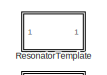
[diagram: HighpassH - part 1/12, top center region]
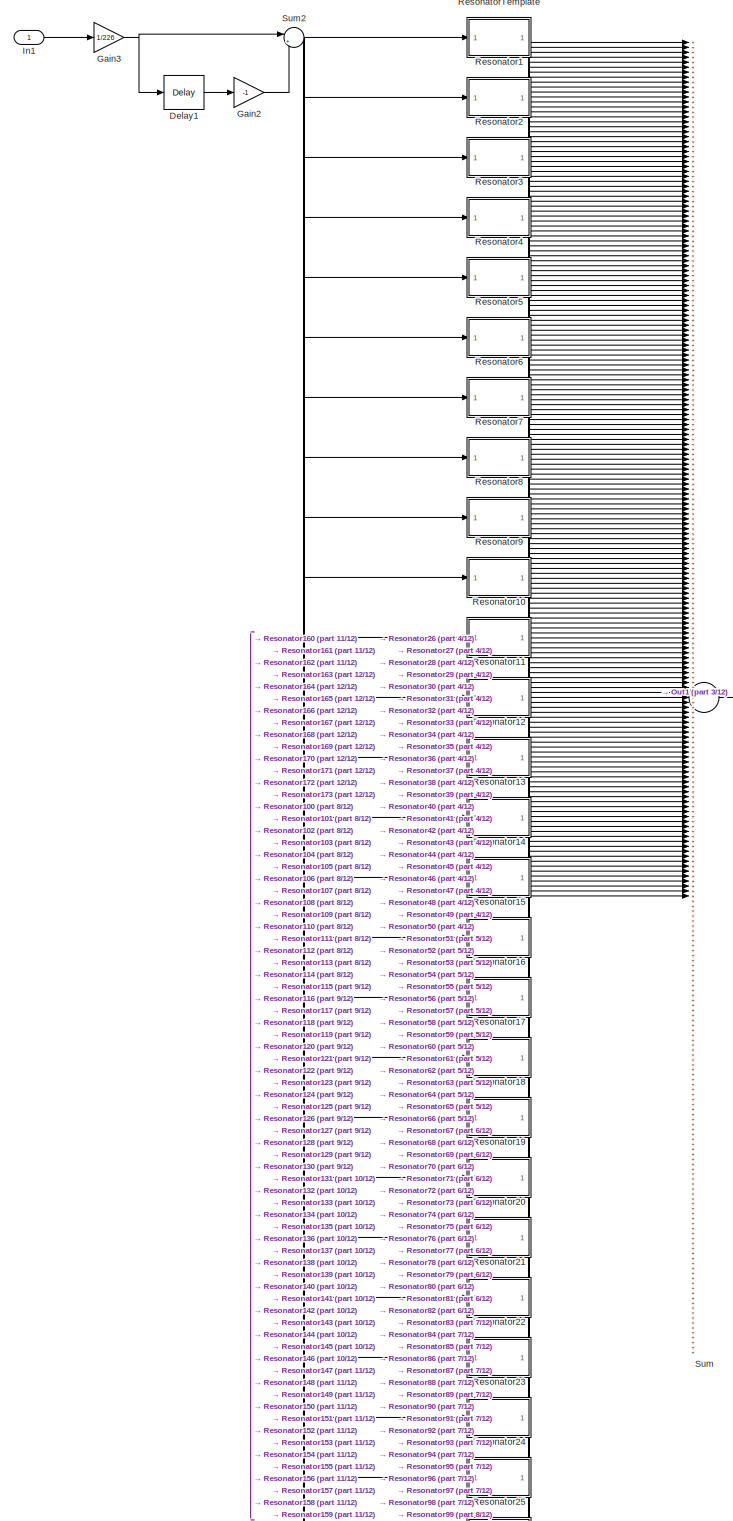
[diagram: HighpassH - part 2/12, full width, top band]
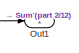
[diagram: HighpassH - part 3/12, top right region]
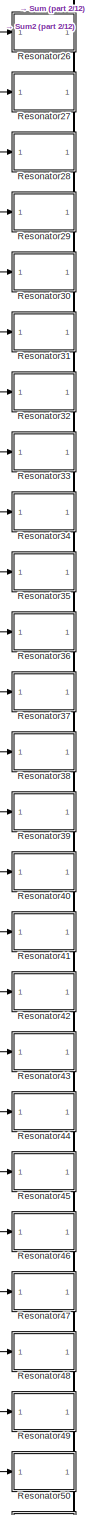
[diagram: HighpassH - part 4/12, top center region]
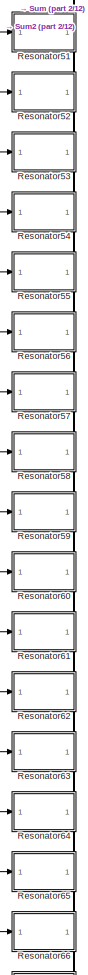
[diagram: HighpassH - part 5/12, central region]
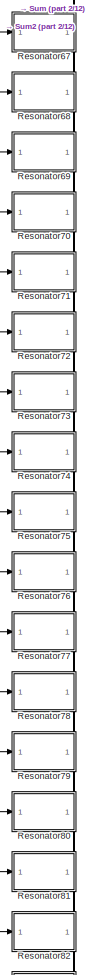
[diagram: HighpassH - part 6/12, central region]
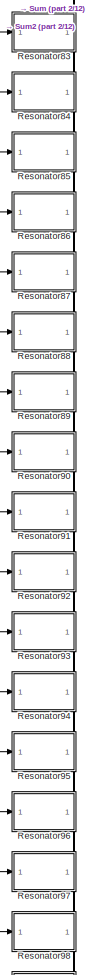
[diagram: HighpassH - part 7/12, central region]
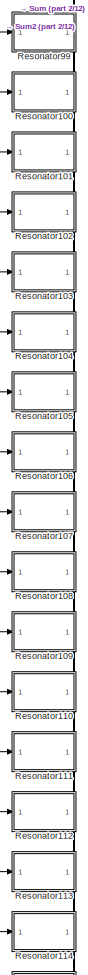
[diagram: HighpassH - part 8/12, central region]
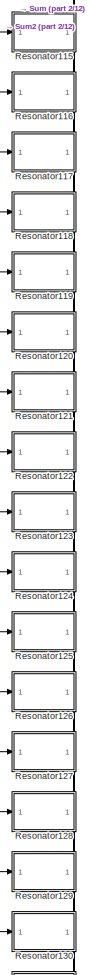
[diagram: HighpassH - part 9/12, bottom center region]
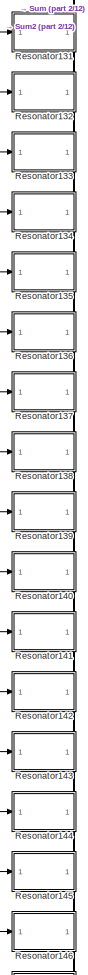
[diagram: HighpassH - part 10/12, bottom center region]
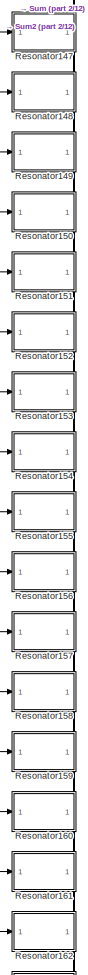
[diagram: HighpassH - part 11/12, bottom center region]
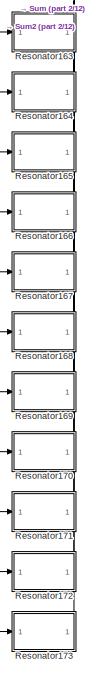
[diagram: HighpassH - part 12/12, bottom center region]
BLOCK [SubSystem] HighpassH
  Ports = [1, 1]
  RequestExecContextInheritance = off
  Variant = off
BLOCK [Delay] HighpassH/Delay1
  DelayLength = 226
  InputPortMap = u0
  Ports = [1, 1]
BLOCK [Gain] HighpassH/Gain2
  Gain = -1
  OutDataTypeStr = Inherit: Inherit via internal rule
  ParamDataTypeStr = Inherit: Inherit via internal rule
  SaturateOnIntegerOverflow = off
BLOCK [Gain] HighpassH/Gain3
  Gain = 1/226
  OutDataTypeStr = Inherit: Inherit via internal rule
  ParamDataTypeStr = Inherit: Inherit via internal rule
  SaturateOnIntegerOverflow = off
BLOCK [Inport] HighpassH/In1
  IconDisplay = Port number
BLOCK [Outport] HighpassH/Out1
  IconDisplay = Port number
BLOCK [SubSystem] HighpassH/Resonator1
  Ports = [1, 1]
  RequestExecContextInheritance = off
  Variant = off
BLOCK [Delay] HighpassH/Resonator1/Delay
  DelayLength = 1
  InputPortMap = u0
  Ports = [1, 1]
BLOCK [Gain] HighpassH/Resonator1/Gain
  Gain = 0.712+0.70218i
  OutDataTypeStr = fixdt(1,24,23)
  ParamDataTypeStr = Inherit: Inherit via internal rule
  SaturateOnIntegerOverflow = off
BLOCK [Gain] HighpassH/Resonator1/GainH
  Gain = -0.93039-0.36657i
  OutDataTypeStr = fixdt(1,24,23)
  ParamDataTypeStr = Inherit: Inherit via internal rule
  SaturateOnIntegerOverflow = off
BLOCK [Inport] HighpassH/Resonator1/In1
  IconDisplay = Port number
BLOCK [Outport] HighpassH/Resonator1/Out1
  IconDisplay = Port number
BLOCK [Sum] HighpassH/Resonator1/Sum1
  IconShape = round
  InputSameDT = off
  Inputs = |++
  OutDataTypeStr = Inherit: Inherit via internal rule
  Ports = [2, 1]
  SaturateOnIntegerOverflow = off
BLOCK [SubSystem] HighpassH/Resonator10
  Ports = [1, 1]
  RequestExecContextInheritance = off
  Variant = off
BLOCK [Delay] HighpassH/Resonator10/Delay
  DelayLength = 1
  InputPortMap = u0
  Ports = [1, 1]
BLOCK [Gain] HighpassH/Resonator10/Gain
  Gain = 0.51596+0.85661i
  OutDataTypeStr = fixdt(1,24,23)
  ParamDataTypeStr = Inherit: Inherit via internal rule
  SaturateOnIntegerOverflow = off
BLOCK [Gain] HighpassH/Resonator10/GainH
  Gain = 0.87738+0.4798i
  OutDataTypeStr = fixdt(1,24,23)
  ParamDataTypeStr = Inherit: Inherit via internal rule
  SaturateOnIntegerOverflow = off
BLOCK [Inport] HighpassH/Resonator10/In1
  IconDisplay = Port number
BLOCK [Outport] HighpassH/Resonator10/Out1
  IconDisplay = Port number
BLOCK [Sum] HighpassH/Resonator10/Sum1
  IconShape = round
  InputSameDT = off
  Inputs = |++
  OutDataTypeStr = Inherit: Inherit via internal rule
  Ports = [2, 1]
  SaturateOnIntegerOverflow = off
BLOCK [SubSystem] HighpassH/Resonator100
  Ports = [1, 1]
  RequestExecContextInheritance = off
  Variant = off
BLOCK [Delay] HighpassH/Resonator100/Delay
  DelayLength = 1
  InputPortMap = u0
  Ports = [1, 1]
BLOCK [Gain] HighpassH/Resonator100/Gain
  Gain = -0.9252-0.37947i
  OutDataTypeStr = fixdt(1,24,23)
  ParamDataTypeStr = Inherit: Inherit via internal rule
  SaturateOnIntegerOverflow = off
BLOCK [Gain] HighpassH/Resonator100/GainH
  Gain = 0.17973-0.98372i
  OutDataTypeStr = fixdt(1,24,23)
  ParamDataTypeStr = Inherit: Inherit via internal rule
  SaturateOnIntegerOverflow = off
BLOCK [Inport] HighpassH/Resonator100/In1
  IconDisplay = Port number
BLOCK [Outport] HighpassH/Resonator100/Out1
  IconDisplay = Port number
BLOCK [Sum] HighpassH/Resonator100/Sum1
  IconShape = round
  InputSameDT = off
  Inputs = |++
  OutDataTypeStr = Inherit: Inherit via internal rule
  Ports = [2, 1]
  SaturateOnIntegerOverflow = off
BLOCK [SubSystem] HighpassH/Resonator101
  Ports = [1, 1]
  RequestExecContextInheritance = off
  Variant = off
BLOCK [Delay] HighpassH/Resonator101/Delay
  DelayLength = 1
  InputPortMap = u0
  Ports = [1, 1]
BLOCK [Gain] HighpassH/Resonator101/Gain
  Gain = -0.9143-0.40504i
  OutDataTypeStr = fixdt(1,24,23)
  ParamDataTypeStr = Inherit: Inherit via internal rule
  SaturateOnIntegerOverflow = off
BLOCK [Gain] HighpassH/Resonator101/GainH
  Gain = -0.19339+0.98112i
  OutDataTypeStr = fixdt(1,24,23)
  ParamDataTypeStr = Inherit: Inherit via internal rule
  SaturateOnIntegerOverflow = off
BLOCK [Inport] HighpassH/Resonator101/In1
  IconDisplay = Port number
BLOCK [Outport] HighpassH/Resonator101/Out1
  IconDisplay = Port number
BLOCK [Sum] HighpassH/Resonator101/Sum1
  IconShape = round
  InputSameDT = off
  Inputs = |++
  OutDataTypeStr = Inherit: Inherit via internal rule
  Ports = [2, 1]
  SaturateOnIntegerOverflow = off
BLOCK [SubSystem] HighpassH/Resonator102
  Ports = [1, 1]
  RequestExecContextInheritance = off
  Variant = off
BLOCK [Delay] HighpassH/Resonator102/Delay
  DelayLength = 1
  InputPortMap = u0
  Ports = [1, 1]
BLOCK [Gain] HighpassH/Resonator102/Gain
  Gain = -0.90269-0.4303i
  OutDataTypeStr = fixdt(1,24,23)
  ParamDataTypeStr = Inherit: Inherit via internal rule
  SaturateOnIntegerOverflow = off
BLOCK [Gain] HighpassH/Resonator102/GainH
  Gain = 0.20701-0.97834i
  OutDataTypeStr = fixdt(1,24,23)
  ParamDataTypeStr = Inherit: Inherit via internal rule
  SaturateOnIntegerOverflow = off
BLOCK [Inport] HighpassH/Resonator102/In1
  IconDisplay = Port number
BLOCK [Outport] HighpassH/Resonator102/Out1
  IconDisplay = Port number
BLOCK [Sum] HighpassH/Resonator102/Sum1
  IconShape = round
  InputSameDT = off
  Inputs = |++
  OutDataTypeStr = Inherit: Inherit via internal rule
  Ports = [2, 1]
  SaturateOnIntegerOverflow = off
BLOCK [SubSystem] HighpassH/Resonator103
  Ports = [1, 1]
  RequestExecContextInheritance = off
  Variant = off
BLOCK [Delay] HighpassH/Resonator103/Delay
  DelayLength = 1
  InputPortMap = u0
  Ports = [1, 1]
BLOCK [Gain] HighpassH/Resonator103/Gain
  Gain = -0.89037-0.45523i
  OutDataTypeStr = fixdt(1,24,23)
  ParamDataTypeStr = Inherit: Inherit via internal rule
  SaturateOnIntegerOverflow = off
BLOCK [Gain] HighpassH/Resonator103/GainH
  Gain = -0.22058+0.97537i
  OutDataTypeStr = fixdt(1,24,23)
  ParamDataTypeStr = Inherit: Inherit via internal rule
  SaturateOnIntegerOverflow = off
BLOCK [Inport] HighpassH/Resonator103/In1
  IconDisplay = Port number
BLOCK [Outport] HighpassH/Resonator103/Out1
  IconDisplay = Port number
BLOCK [Sum] HighpassH/Resonator103/Sum1
  IconShape = round
  InputSameDT = off
  Inputs = |++
  OutDataTypeStr = Inherit: Inherit via internal rule
  Ports = [2, 1]
  SaturateOnIntegerOverflow = off
BLOCK [SubSystem] HighpassH/Resonator104
  Ports = [1, 1]
  RequestExecContextInheritance = off
  Variant = off
BLOCK [Delay] HighpassH/Resonator104/Delay
  DelayLength = 1
  InputPortMap = u0
  Ports = [1, 1]
BLOCK [Gain] HighpassH/Resonator104/Gain
  Gain = -0.87738-0.4798i
  OutDataTypeStr = fixdt(1,24,23)
  ParamDataTypeStr = Inherit: Inherit via internal rule
  SaturateOnIntegerOverflow = off
BLOCK [Gain] HighpassH/Resonator104/GainH
  Gain = 0.23412-0.97221i
  OutDataTypeStr = fixdt(1,24,23)
  ParamDataTypeStr = Inherit: Inherit via internal rule
  SaturateOnIntegerOverflow = off
BLOCK [Inport] HighpassH/Resonator104/In1
  IconDisplay = Port number
BLOCK [Outport] HighpassH/Resonator104/Out1
  IconDisplay = Port number
BLOCK [Sum] HighpassH/Resonator104/Sum1
  IconShape = round
  InputSameDT = off
  Inputs = |++
  OutDataTypeStr = Inherit: Inherit via internal rule
  Ports = [2, 1]
  SaturateOnIntegerOverflow = off
BLOCK [SubSystem] HighpassH/Resonator105
  Ports = [1, 1]
  RequestExecContextInheritance = off
  Variant = off
BLOCK [Delay] HighpassH/Resonator105/Delay
  DelayLength = 1
  InputPortMap = u0
  Ports = [1, 1]
BLOCK [Gain] HighpassH/Resonator105/Gain
  Gain = -0.8637-0.50401i
  OutDataTypeStr = fixdt(1,24,23)
  ParamDataTypeStr = Inherit: Inherit via internal rule
  SaturateOnIntegerOverflow = off
BLOCK [Gain] HighpassH/Resonator105/GainH
  Gain = -0.24761+0.96886i
  OutDataTypeStr = fixdt(1,24,23)
  ParamDataTypeStr = Inherit: Inherit via internal rule
  SaturateOnIntegerOverflow = off
BLOCK [Inport] HighpassH/Resonator105/In1
  IconDisplay = Port number
BLOCK [Outport] HighpassH/Resonator105/Out1
  IconDisplay = Port number
BLOCK [Sum] HighpassH/Resonator105/Sum1
  IconShape = round
  InputSameDT = off
  Inputs = |++
  OutDataTypeStr = Inherit: Inherit via internal rule
  Ports = [2, 1]
  SaturateOnIntegerOverflow = off
BLOCK [SubSystem] HighpassH/Resonator106
  Ports = [1, 1]
  RequestExecContextInheritance = off
  Variant = off
BLOCK [Delay] HighpassH/Resonator106/Delay
  DelayLength = 1
  InputPortMap = u0
  Ports = [1, 1]
BLOCK [Gain] HighpassH/Resonator106/Gain
  Gain = -0.84936-0.52782i
  OutDataTypeStr = fixdt(1,24,23)
  ParamDataTypeStr = Inherit: Inherit via internal rule
  SaturateOnIntegerOverflow = off
BLOCK [Gain] HighpassH/Resonator106/GainH
  Gain = 0.26106-0.96532i
  OutDataTypeStr = fixdt(1,24,23)
  ParamDataTypeStr = Inherit: Inherit via internal rule
  SaturateOnIntegerOverflow = off
BLOCK [Inport] HighpassH/Resonator106/In1
  IconDisplay = Port number
BLOCK [Outport] HighpassH/Resonator106/Out1
  IconDisplay = Port number
BLOCK [Sum] HighpassH/Resonator106/Sum1
  IconShape = round
  InputSameDT = off
  Inputs = |++
  OutDataTypeStr = Inherit: Inherit via internal rule
  Ports = [2, 1]
  SaturateOnIntegerOverflow = off
BLOCK [SubSystem] HighpassH/Resonator107
  Ports = [1, 1]
  RequestExecContextInheritance = off
  Variant = off
BLOCK [Delay] HighpassH/Resonator107/Delay
  DelayLength = 1
  InputPortMap = u0
  Ports = [1, 1]
BLOCK [Gain] HighpassH/Resonator107/Gain
  Gain = -0.83435-0.55123i
  OutDataTypeStr = fixdt(1,24,23)
  ParamDataTypeStr = Inherit: Inherit via internal rule
  SaturateOnIntegerOverflow = off
BLOCK [Gain] HighpassH/Resonator107/GainH
  Gain = -0.27445+0.9616i
  OutDataTypeStr = fixdt(1,24,23)
  ParamDataTypeStr = Inherit: Inherit via internal rule
  SaturateOnIntegerOverflow = off
BLOCK [Inport] HighpassH/Resonator107/In1
  IconDisplay = Port number
BLOCK [Outport] HighpassH/Resonator107/Out1
  IconDisplay = Port number
BLOCK [Sum] HighpassH/Resonator107/Sum1
  IconShape = round
  InputSameDT = off
  Inputs = |++
  OutDataTypeStr = Inherit: Inherit via internal rule
  Ports = [2, 1]
  SaturateOnIntegerOverflow = off
BLOCK [SubSystem] HighpassH/Resonator108
  Ports = [1, 1]
  RequestExecContextInheritance = off
  Variant = off
BLOCK [Delay] HighpassH/Resonator108/Delay
  DelayLength = 1
  InputPortMap = u0
  Ports = [1, 1]
BLOCK [Gain] HighpassH/Resonator108/Gain
  Gain = -0.81871-0.57421i
  OutDataTypeStr = fixdt(1,24,23)
  ParamDataTypeStr = Inherit: Inherit via internal rule
  SaturateOnIntegerOverflow = off
BLOCK [Gain] HighpassH/Resonator108/GainH
  Gain = 0.28779-0.95769i
  OutDataTypeStr = fixdt(1,24,23)
  ParamDataTypeStr = Inherit: Inherit via internal rule
  SaturateOnIntegerOverflow = off
BLOCK [Inport] HighpassH/Resonator108/In1
  IconDisplay = Port number
BLOCK [Outport] HighpassH/Resonator108/Out1
  IconDisplay = Port number
BLOCK [Sum] HighpassH/Resonator108/Sum1
  IconShape = round
  InputSameDT = off
  Inputs = |++
  OutDataTypeStr = Inherit: Inherit via internal rule
  Ports = [2, 1]
  SaturateOnIntegerOverflow = off
BLOCK [SubSystem] HighpassH/Resonator109
  Ports = [1, 1]
  RequestExecContextInheritance = off
  Variant = off
BLOCK [Delay] HighpassH/Resonator109/Delay
  DelayLength = 1
  InputPortMap = u0
  Ports = [1, 1]
BLOCK [Gain] HighpassH/Resonator109/Gain
  Gain = -0.80243-0.59675i
  OutDataTypeStr = fixdt(1,24,23)
  ParamDataTypeStr = Inherit: Inherit via internal rule
  SaturateOnIntegerOverflow = off
BLOCK [Gain] HighpassH/Resonator109/GainH
  Gain = -0.30107+0.9536i
  OutDataTypeStr = fixdt(1,24,23)
  ParamDataTypeStr = Inherit: Inherit via internal rule
  SaturateOnIntegerOverflow = off
BLOCK [Inport] HighpassH/Resonator109/In1
  IconDisplay = Port number
BLOCK [Outport] HighpassH/Resonator109/Out1
  IconDisplay = Port number
BLOCK [Sum] HighpassH/Resonator109/Sum1
  IconShape = round
  InputSameDT = off
  Inputs = |++
  OutDataTypeStr = Inherit: Inherit via internal rule
  Ports = [2, 1]
  SaturateOnIntegerOverflow = off
BLOCK [SubSystem] HighpassH/Resonator11
  Ports = [1, 1]
  RequestExecContextInheritance = off
  Variant = off
BLOCK [Delay] HighpassH/Resonator11/Delay
  DelayLength = 1
  InputPortMap = u0
  Ports = [1, 1]
BLOCK [Gain] HighpassH/Resonator11/Gain
  Gain = 0.49195+0.87062i
  OutDataTypeStr = fixdt(1,24,23)
  ParamDataTypeStr = Inherit: Inherit via internal rule
  SaturateOnIntegerOverflow = off
BLOCK [Gain] HighpassH/Resonator11/GainH
  Gain = -0.87062-0.49195i
  OutDataTypeStr = fixdt(1,24,23)
  ParamDataTypeStr = Inherit: Inherit via internal rule
  SaturateOnIntegerOverflow = off
BLOCK [Inport] HighpassH/Resonator11/In1
  IconDisplay = Port number
BLOCK [Outport] HighpassH/Resonator11/Out1
  IconDisplay = Port number
BLOCK [Sum] HighpassH/Resonator11/Sum1
  IconShape = round
  InputSameDT = off
  Inputs = |++
  OutDataTypeStr = Inherit: Inherit via internal rule
  Ports = [2, 1]
  SaturateOnIntegerOverflow = off
BLOCK [SubSystem] HighpassH/Resonator110
  Ports = [1, 1]
  RequestExecContextInheritance = off
  Variant = off
BLOCK [Delay] HighpassH/Resonator110/Delay
  DelayLength = 1
  InputPortMap = u0
  Ports = [1, 1]
BLOCK [Gain] HighpassH/Resonator110/Gain
  Gain = -0.78553-0.61882i
  OutDataTypeStr = fixdt(1,24,23)
  ParamDataTypeStr = Inherit: Inherit via internal rule
  SaturateOnIntegerOverflow = off
BLOCK [Gain] HighpassH/Resonator110/GainH
  Gain = 0.3143-0.94932i
  OutDataTypeStr = fixdt(1,24,23)
  ParamDataTypeStr = Inherit: Inherit via internal rule
  SaturateOnIntegerOverflow = off
BLOCK [Inport] HighpassH/Resonator110/In1
  IconDisplay = Port number
BLOCK [Outport] HighpassH/Resonator110/Out1
  IconDisplay = Port number
BLOCK [Sum] HighpassH/Resonator110/Sum1
  IconShape = round
  InputSameDT = off
  Inputs = |++
  OutDataTypeStr = Inherit: Inherit via internal rule
  Ports = [2, 1]
  SaturateOnIntegerOverflow = off
BLOCK [SubSystem] HighpassH/Resonator111
  Ports = [1, 1]
  RequestExecContextInheritance = off
  Variant = off
BLOCK [Delay] HighpassH/Resonator111/Delay
  DelayLength = 1
  InputPortMap = u0
  Ports = [1, 1]
BLOCK [Gain] HighpassH/Resonator111/Gain
  Gain = -0.76803-0.64042i
  OutDataTypeStr = fixdt(1,24,23)
  ParamDataTypeStr = Inherit: Inherit via internal rule
  SaturateOnIntegerOverflow = off
BLOCK [Gain] HighpassH/Resonator111/GainH
  Gain = -0.32747+0.94486i
  OutDataTypeStr = fixdt(1,24,23)
  ParamDataTypeStr = Inherit: Inherit via internal rule
  SaturateOnIntegerOverflow = off
BLOCK [Inport] HighpassH/Resonator111/In1
  IconDisplay = Port number
BLOCK [Outport] HighpassH/Resonator111/Out1
  IconDisplay = Port number
BLOCK [Sum] HighpassH/Resonator111/Sum1
  IconShape = round
  InputSameDT = off
  Inputs = |++
  OutDataTypeStr = Inherit: Inherit via internal rule
  Ports = [2, 1]
  SaturateOnIntegerOverflow = off
BLOCK [SubSystem] HighpassH/Resonator112
  Ports = [1, 1]
  RequestExecContextInheritance = off
  Variant = off
BLOCK [Delay] HighpassH/Resonator112/Delay
  DelayLength = 1
  InputPortMap = u0
  Ports = [1, 1]
BLOCK [Gain] HighpassH/Resonator112/Gain
  Gain = -0.74993-0.66152i
  OutDataTypeStr = fixdt(1,24,23)
  ParamDataTypeStr = Inherit: Inherit via internal rule
  SaturateOnIntegerOverflow = off
BLOCK [Gain] HighpassH/Resonator112/GainH
  Gain = 0.34057-0.94022i
  OutDataTypeStr = fixdt(1,24,23)
  ParamDataTypeStr = Inherit: Inherit via internal rule
  SaturateOnIntegerOverflow = off
BLOCK [Inport] HighpassH/Resonator112/In1
  IconDisplay = Port number
BLOCK [Outport] HighpassH/Resonator112/Out1
  IconDisplay = Port number
BLOCK [Sum] HighpassH/Resonator112/Sum1
  IconShape = round
  InputSameDT = off
  Inputs = |++
  OutDataTypeStr = Inherit: Inherit via internal rule
  Ports = [2, 1]
  SaturateOnIntegerOverflow = off
BLOCK [SubSystem] HighpassH/Resonator113
  Ports = [1, 1]
  RequestExecContextInheritance = off
  Variant = off
BLOCK [Delay] HighpassH/Resonator113/Delay
  DelayLength = 1
  InputPortMap = u0
  Ports = [1, 1]
BLOCK [Gain] HighpassH/Resonator113/Gain
  Gain = -0.73125-0.68211i
  OutDataTypeStr = fixdt(1,24,23)
  ParamDataTypeStr = Inherit: Inherit via internal rule
  SaturateOnIntegerOverflow = off
BLOCK [Gain] HighpassH/Resonator113/GainH
  Gain = -0.3536+0.93539i
  OutDataTypeStr = fixdt(1,24,23)
  ParamDataTypeStr = Inherit: Inherit via internal rule
  SaturateOnIntegerOverflow = off
BLOCK [Inport] HighpassH/Resonator113/In1
  IconDisplay = Port number
BLOCK [Outport] HighpassH/Resonator113/Out1
  IconDisplay = Port number
BLOCK [Sum] HighpassH/Resonator113/Sum1
  IconShape = round
  InputSameDT = off
  Inputs = |++
  OutDataTypeStr = Inherit: Inherit via internal rule
  Ports = [2, 1]
  SaturateOnIntegerOverflow = off
BLOCK [SubSystem] HighpassH/Resonator114
  Ports = [1, 1]
  RequestExecContextInheritance = off
  Variant = off
BLOCK [Delay] HighpassH/Resonator114/Delay
  DelayLength = 1
  InputPortMap = u0
  Ports = [1, 1]
BLOCK [Gain] HighpassH/Resonator114/Gain
  Gain = -0.712-0.70218i
  OutDataTypeStr = fixdt(1,24,23)
  ParamDataTypeStr = Inherit: Inherit via internal rule
  SaturateOnIntegerOverflow = off
BLOCK [Gain] HighpassH/Resonator114/GainH
  Gain = 0.36657-0.93039i
  OutDataTypeStr = fixdt(1,24,23)
  ParamDataTypeStr = Inherit: Inherit via internal rule
  SaturateOnIntegerOverflow = off
BLOCK [Inport] HighpassH/Resonator114/In1
  IconDisplay = Port number
BLOCK [Outport] HighpassH/Resonator114/Out1
  IconDisplay = Port number
BLOCK [Sum] HighpassH/Resonator114/Sum1
  IconShape = round
  InputSameDT = off
  Inputs = |++
  OutDataTypeStr = Inherit: Inherit via internal rule
  Ports = [2, 1]
  SaturateOnIntegerOverflow = off
BLOCK [SubSystem] HighpassH/Resonator115
  Ports = [1, 1]
  RequestExecContextInheritance = off
  Variant = off
BLOCK [Delay] HighpassH/Resonator115/Delay
  DelayLength = 1
  InputPortMap = u0
  Ports = [1, 1]
BLOCK [Gain] HighpassH/Resonator115/Gain
  Gain = -0.69221-0.7217i
  OutDataTypeStr = fixdt(1,24,23)
  ParamDataTypeStr = Inherit: Inherit via internal rule
  SaturateOnIntegerOverflow = off
BLOCK [Gain] HighpassH/Resonator115/GainH
  Gain = -0.37947+0.9252i
  OutDataTypeStr = fixdt(1,24,23)
  ParamDataTypeStr = Inherit: Inherit via internal rule
  SaturateOnIntegerOverflow = off
BLOCK [Inport] HighpassH/Resonator115/In1
  IconDisplay = Port number
BLOCK [Outport] HighpassH/Resonator115/Out1
  IconDisplay = Port number
BLOCK [Sum] HighpassH/Resonator115/Sum1
  IconShape = round
  InputSameDT = off
  Inputs = |++
  OutDataTypeStr = Inherit: Inherit via internal rule
  Ports = [2, 1]
  SaturateOnIntegerOverflow = off
BLOCK [SubSystem] HighpassH/Resonator116
  Ports = [1, 1]
  RequestExecContextInheritance = off
  Variant = off
BLOCK [Delay] HighpassH/Resonator116/Delay
  DelayLength = 1
  InputPortMap = u0
  Ports = [1, 1]
BLOCK [Gain] HighpassH/Resonator116/Gain
  Gain = -0.67188-0.74066i
  OutDataTypeStr = fixdt(1,24,23)
  ParamDataTypeStr = Inherit: Inherit via internal rule
  SaturateOnIntegerOverflow = off
BLOCK [Gain] HighpassH/Resonator116/GainH
  Gain = 0.39229-0.91984i
  OutDataTypeStr = fixdt(1,24,23)
  ParamDataTypeStr = Inherit: Inherit via internal rule
  SaturateOnIntegerOverflow = off
BLOCK [Inport] HighpassH/Resonator116/In1
  IconDisplay = Port number
BLOCK [Outport] HighpassH/Resonator116/Out1
  IconDisplay = Port number
BLOCK [Sum] HighpassH/Resonator116/Sum1
  IconShape = round
  InputSameDT = off
  Inputs = |++
  OutDataTypeStr = Inherit: Inherit via internal rule
  Ports = [2, 1]
  SaturateOnIntegerOverflow = off
BLOCK [SubSystem] HighpassH/Resonator117
  Ports = [1, 1]
  RequestExecContextInheritance = off
  Variant = off
BLOCK [Delay] HighpassH/Resonator117/Delay
  DelayLength = 1
  InputPortMap = u0
  Ports = [1, 1]
BLOCK [Gain] HighpassH/Resonator117/Gain
  Gain = -0.65103-0.75905i
  OutDataTypeStr = fixdt(1,24,23)
  ParamDataTypeStr = Inherit: Inherit via internal rule
  SaturateOnIntegerOverflow = off
BLOCK [Gain] HighpassH/Resonator117/GainH
  Gain = -0.40504+0.9143i
  OutDataTypeStr = fixdt(1,24,23)
  ParamDataTypeStr = Inherit: Inherit via internal rule
  SaturateOnIntegerOverflow = off
BLOCK [Inport] HighpassH/Resonator117/In1
  IconDisplay = Port number
BLOCK [Outport] HighpassH/Resonator117/Out1
  IconDisplay = Port number
BLOCK [Sum] HighpassH/Resonator117/Sum1
  IconShape = round
  InputSameDT = off
  Inputs = |++
  OutDataTypeStr = Inherit: Inherit via internal rule
  Ports = [2, 1]
  SaturateOnIntegerOverflow = off
BLOCK [SubSystem] HighpassH/Resonator118
  Ports = [1, 1]
  RequestExecContextInheritance = off
  Variant = off
BLOCK [Delay] HighpassH/Resonator118/Delay
  DelayLength = 1
  InputPortMap = u0
  Ports = [1, 1]
BLOCK [Gain] HighpassH/Resonator118/Gain
  Gain = -0.62968-0.77685i
  OutDataTypeStr = fixdt(1,24,23)
  ParamDataTypeStr = Inherit: Inherit via internal rule
  SaturateOnIntegerOverflow = off
BLOCK [Gain] HighpassH/Resonator118/GainH
  Gain = 0.41771-0.90858i
  OutDataTypeStr = fixdt(1,24,23)
  ParamDataTypeStr = Inherit: Inherit via internal rule
  SaturateOnIntegerOverflow = off
BLOCK [Inport] HighpassH/Resonator118/In1
  IconDisplay = Port number
BLOCK [Outport] HighpassH/Resonator118/Out1
  IconDisplay = Port number
BLOCK [Sum] HighpassH/Resonator118/Sum1
  IconShape = round
  InputSameDT = off
  Inputs = |++
  OutDataTypeStr = Inherit: Inherit via internal rule
  Ports = [2, 1]
  SaturateOnIntegerOverflow = off
BLOCK [SubSystem] HighpassH/Resonator119
  Ports = [1, 1]
  RequestExecContextInheritance = off
  Variant = off
BLOCK [Delay] HighpassH/Resonator119/Delay
  DelayLength = 1
  InputPortMap = u0
  Ports = [1, 1]
BLOCK [Gain] HighpassH/Resonator119/Gain
  Gain = -0.60784-0.79406i
  OutDataTypeStr = fixdt(1,24,23)
  ParamDataTypeStr = Inherit: Inherit via internal rule
  SaturateOnIntegerOverflow = off
BLOCK [Gain] HighpassH/Resonator119/GainH
  Gain = -0.4303+0.90269i
  OutDataTypeStr = fixdt(1,24,23)
  ParamDataTypeStr = Inherit: Inherit via internal rule
  SaturateOnIntegerOverflow = off
BLOCK [Inport] HighpassH/Resonator119/In1
  IconDisplay = Port number
BLOCK [Outport] HighpassH/Resonator119/Out1
  IconDisplay = Port number
BLOCK [Sum] HighpassH/Resonator119/Sum1
  IconShape = round
  InputSameDT = off
  Inputs = |++
  OutDataTypeStr = Inherit: Inherit via internal rule
  Ports = [2, 1]
  SaturateOnIntegerOverflow = off
BLOCK [SubSystem] HighpassH/Resonator12
  Ports = [1, 1]
  RequestExecContextInheritance = off
  Variant = off
BLOCK [Delay] HighpassH/Resonator12/Delay
  DelayLength = 1
  InputPortMap = u0
  Ports = [1, 1]
BLOCK [Gain] HighpassH/Resonator12/Gain
  Gain = 0.46756+0.88396i
  OutDataTypeStr = fixdt(1,24,23)
  ParamDataTypeStr = Inherit: Inherit via internal rule
  SaturateOnIntegerOverflow = off
BLOCK [Gain] HighpassH/Resonator12/GainH
  Gain = 0.8637+0.50401i
  OutDataTypeStr = fixdt(1,24,23)
  ParamDataTypeStr = Inherit: Inherit via internal rule
  SaturateOnIntegerOverflow = off
BLOCK [Inport] HighpassH/Resonator12/In1
  IconDisplay = Port number
BLOCK [Outport] HighpassH/Resonator12/Out1
  IconDisplay = Port number
BLOCK [Sum] HighpassH/Resonator12/Sum1
  IconShape = round
  InputSameDT = off
  Inputs = |++
  OutDataTypeStr = Inherit: Inherit via internal rule
  Ports = [2, 1]
  SaturateOnIntegerOverflow = off
BLOCK [SubSystem] HighpassH/Resonator120
  Ports = [1, 1]
  RequestExecContextInheritance = off
  Variant = off
BLOCK [Delay] HighpassH/Resonator120/Delay
  DelayLength = 1
  InputPortMap = u0
  Ports = [1, 1]
BLOCK [Gain] HighpassH/Resonator120/Gain
  Gain = -0.58553-0.81065i
  OutDataTypeStr = fixdt(1,24,23)
  ParamDataTypeStr = Inherit: Inherit via internal rule
  SaturateOnIntegerOverflow = off
BLOCK [Gain] HighpassH/Resonator120/GainH
  Gain = 0.44281-0.89662i
  OutDataTypeStr = fixdt(1,24,23)
  ParamDataTypeStr = Inherit: Inherit via internal rule
  SaturateOnIntegerOverflow = off
BLOCK [Inport] HighpassH/Resonator120/In1
  IconDisplay = Port number
BLOCK [Outport] HighpassH/Resonator120/Out1
  IconDisplay = Port number
BLOCK [Sum] HighpassH/Resonator120/Sum1
  IconShape = round
  InputSameDT = off
  Inputs = |++
  OutDataTypeStr = Inherit: Inherit via internal rule
  Ports = [2, 1]
  SaturateOnIntegerOverflow = off
BLOCK [SubSystem] HighpassH/Resonator121
  Ports = [1, 1]
  RequestExecContextInheritance = off
  Variant = off
BLOCK [Delay] HighpassH/Resonator121/Delay
  DelayLength = 1
  InputPortMap = u0
  Ports = [1, 1]
BLOCK [Gain] HighpassH/Resonator121/Gain
  Gain = -0.56277-0.82661i
  OutDataTypeStr = fixdt(1,24,23)
  ParamDataTypeStr = Inherit: Inherit via internal rule
  SaturateOnIntegerOverflow = off
BLOCK [Gain] HighpassH/Resonator121/GainH
  Gain = -0.45523+0.89037i
  OutDataTypeStr = fixdt(1,24,23)
  ParamDataTypeStr = Inherit: Inherit via internal rule
  SaturateOnIntegerOverflow = off
BLOCK [Inport] HighpassH/Resonator121/In1
  IconDisplay = Port number
BLOCK [Outport] HighpassH/Resonator121/Out1
  IconDisplay = Port number
BLOCK [Sum] HighpassH/Resonator121/Sum1
  IconShape = round
  InputSameDT = off
  Inputs = |++
  OutDataTypeStr = Inherit: Inherit via internal rule
  Ports = [2, 1]
  SaturateOnIntegerOverflow = off
BLOCK [SubSystem] HighpassH/Resonator122
  Ports = [1, 1]
  RequestExecContextInheritance = off
  Variant = off
BLOCK [Delay] HighpassH/Resonator122/Delay
  DelayLength = 1
  InputPortMap = u0
  Ports = [1, 1]
BLOCK [Gain] HighpassH/Resonator122/Gain
  Gain = -0.53958-0.84194i
  OutDataTypeStr = fixdt(1,24,23)
  ParamDataTypeStr = Inherit: Inherit via internal rule
  SaturateOnIntegerOverflow = off
BLOCK [Gain] HighpassH/Resonator122/GainH
  Gain = 0.46756-0.88396i
  OutDataTypeStr = fixdt(1,24,23)
  ParamDataTypeStr = Inherit: Inherit via internal rule
  SaturateOnIntegerOverflow = off
BLOCK [Inport] HighpassH/Resonator122/In1
  IconDisplay = Port number
BLOCK [Outport] HighpassH/Resonator122/Out1
  IconDisplay = Port number
BLOCK [Sum] HighpassH/Resonator122/Sum1
  IconShape = round
  InputSameDT = off
  Inputs = |++
  OutDataTypeStr = Inherit: Inherit via internal rule
  Ports = [2, 1]
  SaturateOnIntegerOverflow = off
BLOCK [SubSystem] HighpassH/Resonator123
  Ports = [1, 1]
  RequestExecContextInheritance = off
  Variant = off
BLOCK [Delay] HighpassH/Resonator123/Delay
  DelayLength = 1
  InputPortMap = u0
  Ports = [1, 1]
BLOCK [Gain] HighpassH/Resonator123/Gain
  Gain = -0.51596-0.85661i
  OutDataTypeStr = fixdt(1,24,23)
  ParamDataTypeStr = Inherit: Inherit via internal rule
  SaturateOnIntegerOverflow = off
BLOCK [Gain] HighpassH/Resonator123/GainH
  Gain = -0.4798+0.87738i
  OutDataTypeStr = fixdt(1,24,23)
  ParamDataTypeStr = Inherit: Inherit via internal rule
  SaturateOnIntegerOverflow = off
BLOCK [Inport] HighpassH/Resonator123/In1
  IconDisplay = Port number
BLOCK [Outport] HighpassH/Resonator123/Out1
  IconDisplay = Port number
BLOCK [Sum] HighpassH/Resonator123/Sum1
  IconShape = round
  InputSameDT = off
  Inputs = |++
  OutDataTypeStr = Inherit: Inherit via internal rule
  Ports = [2, 1]
  SaturateOnIntegerOverflow = off
BLOCK [SubSystem] HighpassH/Resonator124
  Ports = [1, 1]
  RequestExecContextInheritance = off
  Variant = off
BLOCK [Delay] HighpassH/Resonator124/Delay
  DelayLength = 1
  InputPortMap = u0
  Ports = [1, 1]
BLOCK [Gain] HighpassH/Resonator124/Gain
  Gain = -0.49195-0.87062i
  OutDataTypeStr = fixdt(1,24,23)
  ParamDataTypeStr = Inherit: Inherit via internal rule
  SaturateOnIntegerOverflow = off
BLOCK [Gain] HighpassH/Resonator124/GainH
  Gain = 0.49195-0.87062i
  OutDataTypeStr = fixdt(1,24,23)
  ParamDataTypeStr = Inherit: Inherit via internal rule
  SaturateOnIntegerOverflow = off
BLOCK [Inport] HighpassH/Resonator124/In1
  IconDisplay = Port number
BLOCK [Outport] HighpassH/Resonator124/Out1
  IconDisplay = Port number
BLOCK [Sum] HighpassH/Resonator124/Sum1
  IconShape = round
  InputSameDT = off
  Inputs = |++
  OutDataTypeStr = Inherit: Inherit via internal rule
  Ports = [2, 1]
  SaturateOnIntegerOverflow = off
BLOCK [SubSystem] HighpassH/Resonator125
  Ports = [1, 1]
  RequestExecContextInheritance = off
  Variant = off
BLOCK [Delay] HighpassH/Resonator125/Delay
  DelayLength = 1
  InputPortMap = u0
  Ports = [1, 1]
BLOCK [Gain] HighpassH/Resonator125/Gain
  Gain = -0.46756-0.88396i
  OutDataTypeStr = fixdt(1,24,23)
  ParamDataTypeStr = Inherit: Inherit via internal rule
  SaturateOnIntegerOverflow = off
BLOCK [Gain] HighpassH/Resonator125/GainH
  Gain = -0.50401+0.8637i
  OutDataTypeStr = fixdt(1,24,23)
  ParamDataTypeStr = Inherit: Inherit via internal rule
  SaturateOnIntegerOverflow = off
BLOCK [Inport] HighpassH/Resonator125/In1
  IconDisplay = Port number
BLOCK [Outport] HighpassH/Resonator125/Out1
  IconDisplay = Port number
BLOCK [Sum] HighpassH/Resonator125/Sum1
  IconShape = round
  InputSameDT = off
  Inputs = |++
  OutDataTypeStr = Inherit: Inherit via internal rule
  Ports = [2, 1]
  SaturateOnIntegerOverflow = off
BLOCK [SubSystem] HighpassH/Resonator126
  Ports = [1, 1]
  RequestExecContextInheritance = off
  Variant = off
BLOCK [Delay] HighpassH/Resonator126/Delay
  DelayLength = 1
  InputPortMap = u0
  Ports = [1, 1]
BLOCK [Gain] HighpassH/Resonator126/Gain
  Gain = -0.44281-0.89662i
  OutDataTypeStr = fixdt(1,24,23)
  ParamDataTypeStr = Inherit: Inherit via internal rule
  SaturateOnIntegerOverflow = off
BLOCK [Gain] HighpassH/Resonator126/GainH
  Gain = 0.51596-0.85661i
  OutDataTypeStr = fixdt(1,24,23)
  ParamDataTypeStr = Inherit: Inherit via internal rule
  SaturateOnIntegerOverflow = off
BLOCK [Inport] HighpassH/Resonator126/In1
  IconDisplay = Port number
BLOCK [Outport] HighpassH/Resonator126/Out1
  IconDisplay = Port number
BLOCK [Sum] HighpassH/Resonator126/Sum1
  IconShape = round
  InputSameDT = off
  Inputs = |++
  OutDataTypeStr = Inherit: Inherit via internal rule
  Ports = [2, 1]
  SaturateOnIntegerOverflow = off
BLOCK [SubSystem] HighpassH/Resonator127
  Ports = [1, 1]
  RequestExecContextInheritance = off
  Variant = off
BLOCK [Delay] HighpassH/Resonator127/Delay
  DelayLength = 1
  InputPortMap = u0
  Ports = [1, 1]
BLOCK [Gain] HighpassH/Resonator127/Gain
  Gain = -0.41771-0.90858i
  OutDataTypeStr = fixdt(1,24,23)
  ParamDataTypeStr = Inherit: Inherit via internal rule
  SaturateOnIntegerOverflow = off
BLOCK [Gain] HighpassH/Resonator127/GainH
  Gain = -0.52782+0.84936i
  OutDataTypeStr = fixdt(1,24,23)
  ParamDataTypeStr = Inherit: Inherit via internal rule
  SaturateOnIntegerOverflow = off
BLOCK [Inport] HighpassH/Resonator127/In1
  IconDisplay = Port number
BLOCK [Outport] HighpassH/Resonator127/Out1
  IconDisplay = Port number
BLOCK [Sum] HighpassH/Resonator127/Sum1
  IconShape = round
  InputSameDT = off
  Inputs = |++
  OutDataTypeStr = Inherit: Inherit via internal rule
  Ports = [2, 1]
  SaturateOnIntegerOverflow = off
BLOCK [SubSystem] HighpassH/Resonator128
  Ports = [1, 1]
  RequestExecContextInheritance = off
  Variant = off
BLOCK [Delay] HighpassH/Resonator128/Delay
  DelayLength = 1
  InputPortMap = u0
  Ports = [1, 1]
BLOCK [Gain] HighpassH/Resonator128/Gain
  Gain = -0.39229-0.91984i
  OutDataTypeStr = fixdt(1,24,23)
  ParamDataTypeStr = Inherit: Inherit via internal rule
  SaturateOnIntegerOverflow = off
BLOCK [Gain] HighpassH/Resonator128/GainH
  Gain = 0.53958-0.84194i
  OutDataTypeStr = fixdt(1,24,23)
  ParamDataTypeStr = Inherit: Inherit via internal rule
  SaturateOnIntegerOverflow = off
BLOCK [Inport] HighpassH/Resonator128/In1
  IconDisplay = Port number
BLOCK [Outport] HighpassH/Resonator128/Out1
  IconDisplay = Port number
BLOCK [Sum] HighpassH/Resonator128/Sum1
  IconShape = round
  InputSameDT = off
  Inputs = |++
  OutDataTypeStr = Inherit: Inherit via internal rule
  Ports = [2, 1]
  SaturateOnIntegerOverflow = off
BLOCK [SubSystem] HighpassH/Resonator129
  Ports = [1, 1]
  RequestExecContextInheritance = off
  Variant = off
BLOCK [Delay] HighpassH/Resonator129/Delay
  DelayLength = 1
  InputPortMap = u0
  Ports = [1, 1]
BLOCK [Gain] HighpassH/Resonator129/Gain
  Gain = -0.36657-0.93039i
  OutDataTypeStr = fixdt(1,24,23)
  ParamDataTypeStr = Inherit: Inherit via internal rule
  SaturateOnIntegerOverflow = off
BLOCK [Gain] HighpassH/Resonator129/GainH
  Gain = -0.55123+0.83435i
  OutDataTypeStr = fixdt(1,24,23)
  ParamDataTypeStr = Inherit: Inherit via internal rule
  SaturateOnIntegerOverflow = off
BLOCK [Inport] HighpassH/Resonator129/In1
  IconDisplay = Port number
BLOCK [Outport] HighpassH/Resonator129/Out1
  IconDisplay = Port number
BLOCK [Sum] HighpassH/Resonator129/Sum1
  IconShape = round
  InputSameDT = off
  Inputs = |++
  OutDataTypeStr = Inherit: Inherit via internal rule
  Ports = [2, 1]
  SaturateOnIntegerOverflow = off
BLOCK [SubSystem] HighpassH/Resonator13
  Ports = [1, 1]
  RequestExecContextInheritance = off
  Variant = off
BLOCK [Delay] HighpassH/Resonator13/Delay
  DelayLength = 1
  InputPortMap = u0
  Ports = [1, 1]
BLOCK [Gain] HighpassH/Resonator13/Gain
  Gain = 0.44281+0.89662i
  OutDataTypeStr = fixdt(1,24,23)
  ParamDataTypeStr = Inherit: Inherit via internal rule
  SaturateOnIntegerOverflow = off
BLOCK [Gain] HighpassH/Resonator13/GainH
  Gain = -0.85661-0.51596i
  OutDataTypeStr = fixdt(1,24,23)
  ParamDataTypeStr = Inherit: Inherit via internal rule
  SaturateOnIntegerOverflow = off
BLOCK [Inport] HighpassH/Resonator13/In1
  IconDisplay = Port number
BLOCK [Outport] HighpassH/Resonator13/Out1
  IconDisplay = Port number
BLOCK [Sum] HighpassH/Resonator13/Sum1
  IconShape = round
  InputSameDT = off
  Inputs = |++
  OutDataTypeStr = Inherit: Inherit via internal rule
  Ports = [2, 1]
  SaturateOnIntegerOverflow = off
BLOCK [SubSystem] HighpassH/Resonator130
  Ports = [1, 1]
  RequestExecContextInheritance = off
  Variant = off
BLOCK [Delay] HighpassH/Resonator130/Delay
  DelayLength = 1
  InputPortMap = u0
  Ports = [1, 1]
BLOCK [Gain] HighpassH/Resonator130/Gain
  Gain = -0.34057-0.94022i
  OutDataTypeStr = fixdt(1,24,23)
  ParamDataTypeStr = Inherit: Inherit via internal rule
  SaturateOnIntegerOverflow = off
BLOCK [Gain] HighpassH/Resonator130/GainH
  Gain = 0.56277-0.82661i
  OutDataTypeStr = fixdt(1,24,23)
  ParamDataTypeStr = Inherit: Inherit via internal rule
  SaturateOnIntegerOverflow = off
BLOCK [Inport] HighpassH/Resonator130/In1
  IconDisplay = Port number
BLOCK [Outport] HighpassH/Resonator130/Out1
  IconDisplay = Port number
BLOCK [Sum] HighpassH/Resonator130/Sum1
  IconShape = round
  InputSameDT = off
  Inputs = |++
  OutDataTypeStr = Inherit: Inherit via internal rule
  Ports = [2, 1]
  SaturateOnIntegerOverflow = off
BLOCK [SubSystem] HighpassH/Resonator131
  Ports = [1, 1]
  RequestExecContextInheritance = off
  Variant = off
BLOCK [Delay] HighpassH/Resonator131/Delay
  DelayLength = 1
  InputPortMap = u0
  Ports = [1, 1]
BLOCK [Gain] HighpassH/Resonator131/Gain
  Gain = -0.3143-0.94932i
  OutDataTypeStr = fixdt(1,24,23)
  ParamDataTypeStr = Inherit: Inherit via internal rule
  SaturateOnIntegerOverflow = off
BLOCK [Gain] HighpassH/Resonator131/GainH
  Gain = -0.57421+0.81871i
  OutDataTypeStr = fixdt(1,24,23)
  ParamDataTypeStr = Inherit: Inherit via internal rule
  SaturateOnIntegerOverflow = off
BLOCK [Inport] HighpassH/Resonator131/In1
  IconDisplay = Port number
BLOCK [Outport] HighpassH/Resonator131/Out1
  IconDisplay = Port number
BLOCK [Sum] HighpassH/Resonator131/Sum1
  IconShape = round
  InputSameDT = off
  Inputs = |++
  OutDataTypeStr = Inherit: Inherit via internal rule
  Ports = [2, 1]
  SaturateOnIntegerOverflow = off
BLOCK [SubSystem] HighpassH/Resonator132
  Ports = [1, 1]
  RequestExecContextInheritance = off
  Variant = off
BLOCK [Delay] HighpassH/Resonator132/Delay
  DelayLength = 1
  InputPortMap = u0
  Ports = [1, 1]
BLOCK [Gain] HighpassH/Resonator132/Gain
  Gain = -0.28779-0.95769i
  OutDataTypeStr = fixdt(1,24,23)
  ParamDataTypeStr = Inherit: Inherit via internal rule
  SaturateOnIntegerOverflow = off
BLOCK [Gain] HighpassH/Resonator132/GainH
  Gain = 0.58553-0.81065i
  OutDataTypeStr = fixdt(1,24,23)
  ParamDataTypeStr = Inherit: Inherit via internal rule
  SaturateOnIntegerOverflow = off
BLOCK [Inport] HighpassH/Resonator132/In1
  IconDisplay = Port number
BLOCK [Outport] HighpassH/Resonator132/Out1
  IconDisplay = Port number
BLOCK [Sum] HighpassH/Resonator132/Sum1
  IconShape = round
  InputSameDT = off
  Inputs = |++
  OutDataTypeStr = Inherit: Inherit via internal rule
  Ports = [2, 1]
  SaturateOnIntegerOverflow = off
BLOCK [SubSystem] HighpassH/Resonator133
  Ports = [1, 1]
  RequestExecContextInheritance = off
  Variant = off
BLOCK [Delay] HighpassH/Resonator133/Delay
  DelayLength = 1
  InputPortMap = u0
  Ports = [1, 1]
BLOCK [Gain] HighpassH/Resonator133/Gain
  Gain = -0.26106-0.96532i
  OutDataTypeStr = fixdt(1,24,23)
  ParamDataTypeStr = Inherit: Inherit via internal rule
  SaturateOnIntegerOverflow = off
BLOCK [Gain] HighpassH/Resonator133/GainH
  Gain = -0.59675+0.80243i
  OutDataTypeStr = fixdt(1,24,23)
  ParamDataTypeStr = Inherit: Inherit via internal rule
  SaturateOnIntegerOverflow = off
BLOCK [Inport] HighpassH/Resonator133/In1
  IconDisplay = Port number
BLOCK [Outport] HighpassH/Resonator133/Out1
  IconDisplay = Port number
BLOCK [Sum] HighpassH/Resonator133/Sum1
  IconShape = round
  InputSameDT = off
  Inputs = |++
  OutDataTypeStr = Inherit: Inherit via internal rule
  Ports = [2, 1]
  SaturateOnIntegerOverflow = off
BLOCK [SubSystem] HighpassH/Resonator134
  Ports = [1, 1]
  RequestExecContextInheritance = off
  Variant = off
BLOCK [Delay] HighpassH/Resonator134/Delay
  DelayLength = 1
  InputPortMap = u0
  Ports = [1, 1]
BLOCK [Gain] HighpassH/Resonator134/Gain
  Gain = -0.23412-0.97221i
  OutDataTypeStr = fixdt(1,24,23)
  ParamDataTypeStr = Inherit: Inherit via internal rule
  SaturateOnIntegerOverflow = off
BLOCK [Gain] HighpassH/Resonator134/GainH
  Gain = 0.60784-0.79406i
  OutDataTypeStr = fixdt(1,24,23)
  ParamDataTypeStr = Inherit: Inherit via internal rule
  SaturateOnIntegerOverflow = off
BLOCK [Inport] HighpassH/Resonator134/In1
  IconDisplay = Port number
BLOCK [Outport] HighpassH/Resonator134/Out1
  IconDisplay = Port number
BLOCK [Sum] HighpassH/Resonator134/Sum1
  IconShape = round
  InputSameDT = off
  Inputs = |++
  OutDataTypeStr = Inherit: Inherit via internal rule
  Ports = [2, 1]
  SaturateOnIntegerOverflow = off
BLOCK [SubSystem] HighpassH/Resonator135
  Ports = [1, 1]
  RequestExecContextInheritance = off
  Variant = off
BLOCK [Delay] HighpassH/Resonator135/Delay
  DelayLength = 1
  InputPortMap = u0
  Ports = [1, 1]
BLOCK [Gain] HighpassH/Resonator135/Gain
  Gain = -0.20701-0.97834i
  OutDataTypeStr = fixdt(1,24,23)
  ParamDataTypeStr = Inherit: Inherit via internal rule
  SaturateOnIntegerOverflow = off
BLOCK [Gain] HighpassH/Resonator135/GainH
  Gain = -0.61882+0.78553i
  OutDataTypeStr = fixdt(1,24,23)
  ParamDataTypeStr = Inherit: Inherit via internal rule
  SaturateOnIntegerOverflow = off
BLOCK [Inport] HighpassH/Resonator135/In1
  IconDisplay = Port number
BLOCK [Outport] HighpassH/Resonator135/Out1
  IconDisplay = Port number
BLOCK [Sum] HighpassH/Resonator135/Sum1
  IconShape = round
  InputSameDT = off
  Inputs = |++
  OutDataTypeStr = Inherit: Inherit via internal rule
  Ports = [2, 1]
  SaturateOnIntegerOverflow = off
BLOCK [SubSystem] HighpassH/Resonator136
  Ports = [1, 1]
  RequestExecContextInheritance = off
  Variant = off
BLOCK [Delay] HighpassH/Resonator136/Delay
  DelayLength = 1
  InputPortMap = u0
  Ports = [1, 1]
BLOCK [Gain] HighpassH/Resonator136/Gain
  Gain = -0.17973-0.98372i
  OutDataTypeStr = fixdt(1,24,23)
  ParamDataTypeStr = Inherit: Inherit via internal rule
  SaturateOnIntegerOverflow = off
BLOCK [Gain] HighpassH/Resonator136/GainH
  Gain = 0.62968-0.77685i
  OutDataTypeStr = fixdt(1,24,23)
  ParamDataTypeStr = Inherit: Inherit via internal rule
  SaturateOnIntegerOverflow = off
BLOCK [Inport] HighpassH/Resonator136/In1
  IconDisplay = Port number
BLOCK [Outport] HighpassH/Resonator136/Out1
  IconDisplay = Port number
BLOCK [Sum] HighpassH/Resonator136/Sum1
  IconShape = round
  InputSameDT = off
  Inputs = |++
  OutDataTypeStr = Inherit: Inherit via internal rule
  Ports = [2, 1]
  SaturateOnIntegerOverflow = off
BLOCK [SubSystem] HighpassH/Resonator137
  Ports = [1, 1]
  RequestExecContextInheritance = off
  Variant = off
BLOCK [Delay] HighpassH/Resonator137/Delay
  DelayLength = 1
  InputPortMap = u0
  Ports = [1, 1]
BLOCK [Gain] HighpassH/Resonator137/Gain
  Gain = -0.15231-0.98833i
  OutDataTypeStr = fixdt(1,24,23)
  ParamDataTypeStr = Inherit: Inherit via internal rule
  SaturateOnIntegerOverflow = off
BLOCK [Gain] HighpassH/Resonator137/GainH
  Gain = -0.64042+0.76803i
  OutDataTypeStr = fixdt(1,24,23)
  ParamDataTypeStr = Inherit: Inherit via internal rule
  SaturateOnIntegerOverflow = off
BLOCK [Inport] HighpassH/Resonator137/In1
  IconDisplay = Port number
BLOCK [Outport] HighpassH/Resonator137/Out1
  IconDisplay = Port number
BLOCK [Sum] HighpassH/Resonator137/Sum1
  IconShape = round
  InputSameDT = off
  Inputs = |++
  OutDataTypeStr = Inherit: Inherit via internal rule
  Ports = [2, 1]
  SaturateOnIntegerOverflow = off
BLOCK [SubSystem] HighpassH/Resonator138
  Ports = [1, 1]
  RequestExecContextInheritance = off
  Variant = off
BLOCK [Delay] HighpassH/Resonator138/Delay
  DelayLength = 1
  InputPortMap = u0
  Ports = [1, 1]
BLOCK [Gain] HighpassH/Resonator138/Gain
  Gain = -0.12478-0.99218i
  OutDataTypeStr = fixdt(1,24,23)
  ParamDataTypeStr = Inherit: Inherit via internal rule
  SaturateOnIntegerOverflow = off
BLOCK [Gain] HighpassH/Resonator138/GainH
  Gain = 0.65103-0.75905i
  OutDataTypeStr = fixdt(1,24,23)
  ParamDataTypeStr = Inherit: Inherit via internal rule
  SaturateOnIntegerOverflow = off
BLOCK [Inport] HighpassH/Resonator138/In1
  IconDisplay = Port number
BLOCK [Outport] HighpassH/Resonator138/Out1
  IconDisplay = Port number
BLOCK [Sum] HighpassH/Resonator138/Sum1
  IconShape = round
  InputSameDT = off
  Inputs = |++
  OutDataTypeStr = Inherit: Inherit via internal rule
  Ports = [2, 1]
  SaturateOnIntegerOverflow = off
BLOCK [SubSystem] HighpassH/Resonator139
  Ports = [1, 1]
  RequestExecContextInheritance = off
  Variant = off
BLOCK [Delay] HighpassH/Resonator139/Delay
  DelayLength = 1
  InputPortMap = u0
  Ports = [1, 1]
BLOCK [Gain] HighpassH/Resonator139/Gain
  Gain = -0.097152-0.99527i
  OutDataTypeStr = fixdt(1,24,23)
  ParamDataTypeStr = Inherit: Inherit via internal rule
  SaturateOnIntegerOverflow = off
BLOCK [Gain] HighpassH/Resonator139/GainH
  Gain = -0.66152+0.74993i
  OutDataTypeStr = fixdt(1,24,23)
  ParamDataTypeStr = Inherit: Inherit via internal rule
  SaturateOnIntegerOverflow = off
BLOCK [Inport] HighpassH/Resonator139/In1
  IconDisplay = Port number
BLOCK [Outport] HighpassH/Resonator139/Out1
  IconDisplay = Port number
BLOCK [Sum] HighpassH/Resonator139/Sum1
  IconShape = round
  InputSameDT = off
  Inputs = |++
  OutDataTypeStr = Inherit: Inherit via internal rule
  Ports = [2, 1]
  SaturateOnIntegerOverflow = off
BLOCK [SubSystem] HighpassH/Resonator14
  Ports = [1, 1]
  RequestExecContextInheritance = off
  Variant = off
BLOCK [Delay] HighpassH/Resonator14/Delay
  DelayLength = 1
  InputPortMap = u0
  Ports = [1, 1]
BLOCK [Gain] HighpassH/Resonator14/Gain
  Gain = 0.41771+0.90858i
  OutDataTypeStr = fixdt(1,24,23)
  ParamDataTypeStr = Inherit: Inherit via internal rule
  SaturateOnIntegerOverflow = off
BLOCK [Gain] HighpassH/Resonator14/GainH
  Gain = 0.84936+0.52782i
  OutDataTypeStr = fixdt(1,24,23)
  ParamDataTypeStr = Inherit: Inherit via internal rule
  SaturateOnIntegerOverflow = off
BLOCK [Inport] HighpassH/Resonator14/In1
  IconDisplay = Port number
BLOCK [Outport] HighpassH/Resonator14/Out1
  IconDisplay = Port number
BLOCK [Sum] HighpassH/Resonator14/Sum1
  IconShape = round
  InputSameDT = off
  Inputs = |++
  OutDataTypeStr = Inherit: Inherit via internal rule
  Ports = [2, 1]
  SaturateOnIntegerOverflow = off
BLOCK [SubSystem] HighpassH/Resonator140
  Ports = [1, 1]
  RequestExecContextInheritance = off
  Variant = off
BLOCK [Delay] HighpassH/Resonator140/Delay
  DelayLength = 1
  InputPortMap = u0
  Ports = [1, 1]
BLOCK [Gain] HighpassH/Resonator140/Gain
  Gain = -0.069448-0.99759i
  OutDataTypeStr = fixdt(1,24,23)
  ParamDataTypeStr = Inherit: Inherit via internal rule
  SaturateOnIntegerOverflow = off
BLOCK [Gain] HighpassH/Resonator140/GainH
  Gain = 0.67188-0.74066i
  OutDataTypeStr = fixdt(1,24,23)
  ParamDataTypeStr = Inherit: Inherit via internal rule
  SaturateOnIntegerOverflow = off
BLOCK [Inport] HighpassH/Resonator140/In1
  IconDisplay = Port number
BLOCK [Outport] HighpassH/Resonator140/Out1
  IconDisplay = Port number
BLOCK [Sum] HighpassH/Resonator140/Sum1
  IconShape = round
  InputSameDT = off
  Inputs = |++
  OutDataTypeStr = Inherit: Inherit via internal rule
  Ports = [2, 1]
  SaturateOnIntegerOverflow = off
BLOCK [SubSystem] HighpassH/Resonator141
  Ports = [1, 1]
  RequestExecContextInheritance = off
  Variant = off
BLOCK [Delay] HighpassH/Resonator141/Delay
  DelayLength = 1
  InputPortMap = u0
  Ports = [1, 1]
BLOCK [Gain] HighpassH/Resonator141/Gain
  Gain = -0.04169-0.99913i
  OutDataTypeStr = fixdt(1,24,23)
  ParamDataTypeStr = Inherit: Inherit via internal rule
  SaturateOnIntegerOverflow = off
BLOCK [Gain] HighpassH/Resonator141/GainH
  Gain = -0.68211+0.73125i
  OutDataTypeStr = fixdt(1,24,23)
  ParamDataTypeStr = Inherit: Inherit via internal rule
  SaturateOnIntegerOverflow = off
BLOCK [Inport] HighpassH/Resonator141/In1
  IconDisplay = Port number
BLOCK [Outport] HighpassH/Resonator141/Out1
  IconDisplay = Port number
BLOCK [Sum] HighpassH/Resonator141/Sum1
  IconShape = round
  InputSameDT = off
  Inputs = |++
  OutDataTypeStr = Inherit: Inherit via internal rule
  Ports = [2, 1]
  SaturateOnIntegerOverflow = off
BLOCK [SubSystem] HighpassH/Resonator142
  Ports = [1, 1]
  RequestExecContextInheritance = off
  Variant = off
BLOCK [Delay] HighpassH/Resonator142/Delay
  DelayLength = 1
  InputPortMap = u0
  Ports = [1, 1]
BLOCK [Gain] HighpassH/Resonator142/Gain
  Gain = -0.0139-0.9999i
  OutDataTypeStr = fixdt(1,24,23)
  ParamDataTypeStr = Inherit: Inherit via internal rule
  SaturateOnIntegerOverflow = off
BLOCK [Gain] HighpassH/Resonator142/GainH
  Gain = 0.69221-0.7217i
  OutDataTypeStr = fixdt(1,24,23)
  ParamDataTypeStr = Inherit: Inherit via internal rule
  SaturateOnIntegerOverflow = off
BLOCK [Inport] HighpassH/Resonator142/In1
  IconDisplay = Port number
BLOCK [Outport] HighpassH/Resonator142/Out1
  IconDisplay = Port number
BLOCK [Sum] HighpassH/Resonator142/Sum1
  IconShape = round
  InputSameDT = off
  Inputs = |++
  OutDataTypeStr = Inherit: Inherit via internal rule
  Ports = [2, 1]
  SaturateOnIntegerOverflow = off
BLOCK [SubSystem] HighpassH/Resonator143
  Ports = [1, 1]
  RequestExecContextInheritance = off
  Variant = off
BLOCK [Delay] HighpassH/Resonator143/Delay
  DelayLength = 1
  InputPortMap = u0
  Ports = [1, 1]
BLOCK [Gain] HighpassH/Resonator143/Gain
  Gain = 0.0139-0.9999i
  OutDataTypeStr = fixdt(1,24,23)
  ParamDataTypeStr = Inherit: Inherit via internal rule
  SaturateOnIntegerOverflow = off
BLOCK [Gain] HighpassH/Resonator143/GainH
  Gain = -0.70218+0.712i
  OutDataTypeStr = fixdt(1,24,23)
  ParamDataTypeStr = Inherit: Inherit via internal rule
  SaturateOnIntegerOverflow = off
BLOCK [Inport] HighpassH/Resonator143/In1
  IconDisplay = Port number
BLOCK [Outport] HighpassH/Resonator143/Out1
  IconDisplay = Port number
BLOCK [Sum] HighpassH/Resonator143/Sum1
  IconShape = round
  InputSameDT = off
  Inputs = |++
  OutDataTypeStr = Inherit: Inherit via internal rule
  Ports = [2, 1]
  SaturateOnIntegerOverflow = off
BLOCK [SubSystem] HighpassH/Resonator144
  Ports = [1, 1]
  RequestExecContextInheritance = off
  Variant = off
BLOCK [Delay] HighpassH/Resonator144/Delay
  DelayLength = 1
  InputPortMap = u0
  Ports = [1, 1]
BLOCK [Gain] HighpassH/Resonator144/Gain
  Gain = 0.04169-0.99913i
  OutDataTypeStr = fixdt(1,24,23)
  ParamDataTypeStr = Inherit: Inherit via internal rule
  SaturateOnIntegerOverflow = off
BLOCK [Gain] HighpassH/Resonator144/GainH
  Gain = 0.712-0.70218i
  OutDataTypeStr = fixdt(1,24,23)
  ParamDataTypeStr = Inherit: Inherit via internal rule
  SaturateOnIntegerOverflow = off
BLOCK [Inport] HighpassH/Resonator144/In1
  IconDisplay = Port number
BLOCK [Outport] HighpassH/Resonator144/Out1
  IconDisplay = Port number
BLOCK [Sum] HighpassH/Resonator144/Sum1
  IconShape = round
  InputSameDT = off
  Inputs = |++
  OutDataTypeStr = Inherit: Inherit via internal rule
  Ports = [2, 1]
  SaturateOnIntegerOverflow = off
BLOCK [SubSystem] HighpassH/Resonator145
  Ports = [1, 1]
  RequestExecContextInheritance = off
  Variant = off
BLOCK [Delay] HighpassH/Resonator145/Delay
  DelayLength = 1
  InputPortMap = u0
  Ports = [1, 1]
BLOCK [Gain] HighpassH/Resonator145/Gain
  Gain = 0.069448-0.99759i
  OutDataTypeStr = fixdt(1,24,23)
  ParamDataTypeStr = Inherit: Inherit via internal rule
  SaturateOnIntegerOverflow = off
BLOCK [Gain] HighpassH/Resonator145/GainH
  Gain = -0.7217+0.69221i
  OutDataTypeStr = fixdt(1,24,23)
  ParamDataTypeStr = Inherit: Inherit via internal rule
  SaturateOnIntegerOverflow = off
BLOCK [Inport] HighpassH/Resonator145/In1
  IconDisplay = Port number
BLOCK [Outport] HighpassH/Resonator145/Out1
  IconDisplay = Port number
BLOCK [Sum] HighpassH/Resonator145/Sum1
  IconShape = round
  InputSameDT = off
  Inputs = |++
  OutDataTypeStr = Inherit: Inherit via internal rule
  Ports = [2, 1]
  SaturateOnIntegerOverflow = off
BLOCK [SubSystem] HighpassH/Resonator146
  Ports = [1, 1]
  RequestExecContextInheritance = off
  Variant = off
BLOCK [Delay] HighpassH/Resonator146/Delay
  DelayLength = 1
  InputPortMap = u0
  Ports = [1, 1]
BLOCK [Gain] HighpassH/Resonator146/Gain
  Gain = 0.097152-0.99527i
  OutDataTypeStr = fixdt(1,24,23)
  ParamDataTypeStr = Inherit: Inherit via internal rule
  SaturateOnIntegerOverflow = off
BLOCK [Gain] HighpassH/Resonator146/GainH
  Gain = 0.73125-0.68211i
  OutDataTypeStr = fixdt(1,24,23)
  ParamDataTypeStr = Inherit: Inherit via internal rule
  SaturateOnIntegerOverflow = off
BLOCK [Inport] HighpassH/Resonator146/In1
  IconDisplay = Port number
BLOCK [Outport] HighpassH/Resonator146/Out1
  IconDisplay = Port number
BLOCK [Sum] HighpassH/Resonator146/Sum1
  IconShape = round
  InputSameDT = off
  Inputs = |++
  OutDataTypeStr = Inherit: Inherit via internal rule
  Ports = [2, 1]
  SaturateOnIntegerOverflow = off
BLOCK [SubSystem] HighpassH/Resonator147
  Ports = [1, 1]
  RequestExecContextInheritance = off
  Variant = off
BLOCK [Delay] HighpassH/Resonator147/Delay
  DelayLength = 1
  InputPortMap = u0
  Ports = [1, 1]
BLOCK [Gain] HighpassH/Resonator147/Gain
  Gain = 0.12478-0.99218i
  OutDataTypeStr = fixdt(1,24,23)
  ParamDataTypeStr = Inherit: Inherit via internal rule
  SaturateOnIntegerOverflow = off
BLOCK [Gain] HighpassH/Resonator147/GainH
  Gain = -0.74066+0.67188i
  OutDataTypeStr = fixdt(1,24,23)
  ParamDataTypeStr = Inherit: Inherit via internal rule
  SaturateOnIntegerOverflow = off
BLOCK [Inport] HighpassH/Resonator147/In1
  IconDisplay = Port number
BLOCK [Outport] HighpassH/Resonator147/Out1
  IconDisplay = Port number
BLOCK [Sum] HighpassH/Resonator147/Sum1
  IconShape = round
  InputSameDT = off
  Inputs = |++
  OutDataTypeStr = Inherit: Inherit via internal rule
  Ports = [2, 1]
  SaturateOnIntegerOverflow = off
BLOCK [SubSystem] HighpassH/Resonator148
  Ports = [1, 1]
  RequestExecContextInheritance = off
  Variant = off
BLOCK [Delay] HighpassH/Resonator148/Delay
  DelayLength = 1
  InputPortMap = u0
  Ports = [1, 1]
BLOCK [Gain] HighpassH/Resonator148/Gain
  Gain = 0.15231-0.98833i
  OutDataTypeStr = fixdt(1,24,23)
  ParamDataTypeStr = Inherit: Inherit via internal rule
  SaturateOnIntegerOverflow = off
BLOCK [Gain] HighpassH/Resonator148/GainH
  Gain = 0.74993-0.66152i
  OutDataTypeStr = fixdt(1,24,23)
  ParamDataTypeStr = Inherit: Inherit via internal rule
  SaturateOnIntegerOverflow = off
BLOCK [Inport] HighpassH/Resonator148/In1
  IconDisplay = Port number
BLOCK [Outport] HighpassH/Resonator148/Out1
  IconDisplay = Port number
BLOCK [Sum] HighpassH/Resonator148/Sum1
  IconShape = round
  InputSameDT = off
  Inputs = |++
  OutDataTypeStr = Inherit: Inherit via internal rule
  Ports = [2, 1]
  SaturateOnIntegerOverflow = off
BLOCK [SubSystem] HighpassH/Resonator149
  Ports = [1, 1]
  RequestExecContextInheritance = off
  Variant = off
BLOCK [Delay] HighpassH/Resonator149/Delay
  DelayLength = 1
  InputPortMap = u0
  Ports = [1, 1]
BLOCK [Gain] HighpassH/Resonator149/Gain
  Gain = 0.17973-0.98372i
  OutDataTypeStr = fixdt(1,24,23)
  ParamDataTypeStr = Inherit: Inherit via internal rule
  SaturateOnIntegerOverflow = off
BLOCK [Gain] HighpassH/Resonator149/GainH
  Gain = -0.75905+0.65103i
  OutDataTypeStr = fixdt(1,24,23)
  ParamDataTypeStr = Inherit: Inherit via internal rule
  SaturateOnIntegerOverflow = off
BLOCK [Inport] HighpassH/Resonator149/In1
  IconDisplay = Port number
BLOCK [Outport] HighpassH/Resonator149/Out1
  IconDisplay = Port number
BLOCK [Sum] HighpassH/Resonator149/Sum1
  IconShape = round
  InputSameDT = off
  Inputs = |++
  OutDataTypeStr = Inherit: Inherit via internal rule
  Ports = [2, 1]
  SaturateOnIntegerOverflow = off
BLOCK [SubSystem] HighpassH/Resonator15
  Ports = [1, 1]
  RequestExecContextInheritance = off
  Variant = off
BLOCK [Delay] HighpassH/Resonator15/Delay
  DelayLength = 1
  InputPortMap = u0
  Ports = [1, 1]
BLOCK [Gain] HighpassH/Resonator15/Gain
  Gain = 0.39229+0.91984i
  OutDataTypeStr = fixdt(1,24,23)
  ParamDataTypeStr = Inherit: Inherit via internal rule
  SaturateOnIntegerOverflow = off
BLOCK [Gain] HighpassH/Resonator15/GainH
  Gain = -0.84194-0.53958i
  OutDataTypeStr = fixdt(1,24,23)
  ParamDataTypeStr = Inherit: Inherit via internal rule
  SaturateOnIntegerOverflow = off
BLOCK [Inport] HighpassH/Resonator15/In1
  IconDisplay = Port number
BLOCK [Outport] HighpassH/Resonator15/Out1
  IconDisplay = Port number
BLOCK [Sum] HighpassH/Resonator15/Sum1
  IconShape = round
  InputSameDT = off
  Inputs = |++
  OutDataTypeStr = Inherit: Inherit via internal rule
  Ports = [2, 1]
  SaturateOnIntegerOverflow = off
BLOCK [SubSystem] HighpassH/Resonator150
  Ports = [1, 1]
  RequestExecContextInheritance = off
  Variant = off
BLOCK [Delay] HighpassH/Resonator150/Delay
  DelayLength = 1
  InputPortMap = u0
  Ports = [1, 1]
BLOCK [Gain] HighpassH/Resonator150/Gain
  Gain = 0.20701-0.97834i
  OutDataTypeStr = fixdt(1,24,23)
  ParamDataTypeStr = Inherit: Inherit via internal rule
  SaturateOnIntegerOverflow = off
BLOCK [Gain] HighpassH/Resonator150/GainH
  Gain = 0.76803-0.64042i
  OutDataTypeStr = fixdt(1,24,23)
  ParamDataTypeStr = Inherit: Inherit via internal rule
  SaturateOnIntegerOverflow = off
BLOCK [Inport] HighpassH/Resonator150/In1
  IconDisplay = Port number
BLOCK [Outport] HighpassH/Resonator150/Out1
  IconDisplay = Port number
BLOCK [Sum] HighpassH/Resonator150/Sum1
  IconShape = round
  InputSameDT = off
  Inputs = |++
  OutDataTypeStr = Inherit: Inherit via internal rule
  Ports = [2, 1]
  SaturateOnIntegerOverflow = off
BLOCK [SubSystem] HighpassH/Resonator151
  Ports = [1, 1]
  RequestExecContextInheritance = off
  Variant = off
BLOCK [Delay] HighpassH/Resonator151/Delay
  DelayLength = 1
  InputPortMap = u0
  Ports = [1, 1]
BLOCK [Gain] HighpassH/Resonator151/Gain
  Gain = 0.23412-0.97221i
  OutDataTypeStr = fixdt(1,24,23)
  ParamDataTypeStr = Inherit: Inherit via internal rule
  SaturateOnIntegerOverflow = off
BLOCK [Gain] HighpassH/Resonator151/GainH
  Gain = -0.77685+0.62968i
  OutDataTypeStr = fixdt(1,24,23)
  ParamDataTypeStr = Inherit: Inherit via internal rule
  SaturateOnIntegerOverflow = off
BLOCK [Inport] HighpassH/Resonator151/In1
  IconDisplay = Port number
BLOCK [Outport] HighpassH/Resonator151/Out1
  IconDisplay = Port number
BLOCK [Sum] HighpassH/Resonator151/Sum1
  IconShape = round
  InputSameDT = off
  Inputs = |++
  OutDataTypeStr = Inherit: Inherit via internal rule
  Ports = [2, 1]
  SaturateOnIntegerOverflow = off
BLOCK [SubSystem] HighpassH/Resonator152
  Ports = [1, 1]
  RequestExecContextInheritance = off
  Variant = off
BLOCK [Delay] HighpassH/Resonator152/Delay
  DelayLength = 1
  InputPortMap = u0
  Ports = [1, 1]
BLOCK [Gain] HighpassH/Resonator152/Gain
  Gain = 0.26106-0.96532i
  OutDataTypeStr = fixdt(1,24,23)
  ParamDataTypeStr = Inherit: Inherit via internal rule
  SaturateOnIntegerOverflow = off
BLOCK [Gain] HighpassH/Resonator152/GainH
  Gain = 0.78553-0.61882i
  OutDataTypeStr = fixdt(1,24,23)
  ParamDataTypeStr = Inherit: Inherit via internal rule
  SaturateOnIntegerOverflow = off
BLOCK [Inport] HighpassH/Resonator152/In1
  IconDisplay = Port number
BLOCK [Outport] HighpassH/Resonator152/Out1
  IconDisplay = Port number
BLOCK [Sum] HighpassH/Resonator152/Sum1
  IconShape = round
  InputSameDT = off
  Inputs = |++
  OutDataTypeStr = Inherit: Inherit via internal rule
  Ports = [2, 1]
  SaturateOnIntegerOverflow = off
BLOCK [SubSystem] HighpassH/Resonator153
  Ports = [1, 1]
  RequestExecContextInheritance = off
  Variant = off
BLOCK [Delay] HighpassH/Resonator153/Delay
  DelayLength = 1
  InputPortMap = u0
  Ports = [1, 1]
BLOCK [Gain] HighpassH/Resonator153/Gain
  Gain = 0.28779-0.95769i
  OutDataTypeStr = fixdt(1,24,23)
  ParamDataTypeStr = Inherit: Inherit via internal rule
  SaturateOnIntegerOverflow = off
BLOCK [Gain] HighpassH/Resonator153/GainH
  Gain = -0.79406+0.60784i
  OutDataTypeStr = fixdt(1,24,23)
  ParamDataTypeStr = Inherit: Inherit via internal rule
  SaturateOnIntegerOverflow = off
BLOCK [Inport] HighpassH/Resonator153/In1
  IconDisplay = Port number
BLOCK [Outport] HighpassH/Resonator153/Out1
  IconDisplay = Port number
BLOCK [Sum] HighpassH/Resonator153/Sum1
  IconShape = round
  InputSameDT = off
  Inputs = |++
  OutDataTypeStr = Inherit: Inherit via internal rule
  Ports = [2, 1]
  SaturateOnIntegerOverflow = off
BLOCK [SubSystem] HighpassH/Resonator154
  Ports = [1, 1]
  RequestExecContextInheritance = off
  Variant = off
BLOCK [Delay] HighpassH/Resonator154/Delay
  DelayLength = 1
  InputPortMap = u0
  Ports = [1, 1]
BLOCK [Gain] HighpassH/Resonator154/Gain
  Gain = 0.3143-0.94932i
  OutDataTypeStr = fixdt(1,24,23)
  ParamDataTypeStr = Inherit: Inherit via internal rule
  SaturateOnIntegerOverflow = off
BLOCK [Gain] HighpassH/Resonator154/GainH
  Gain = 0.80243-0.59675i
  OutDataTypeStr = fixdt(1,24,23)
  ParamDataTypeStr = Inherit: Inherit via internal rule
  SaturateOnIntegerOverflow = off
BLOCK [Inport] HighpassH/Resonator154/In1
  IconDisplay = Port number
BLOCK [Outport] HighpassH/Resonator154/Out1
  IconDisplay = Port number
BLOCK [Sum] HighpassH/Resonator154/Sum1
  IconShape = round
  InputSameDT = off
  Inputs = |++
  OutDataTypeStr = Inherit: Inherit via internal rule
  Ports = [2, 1]
  SaturateOnIntegerOverflow = off
BLOCK [SubSystem] HighpassH/Resonator155
  Ports = [1, 1]
  RequestExecContextInheritance = off
  Variant = off
BLOCK [Delay] HighpassH/Resonator155/Delay
  DelayLength = 1
  InputPortMap = u0
  Ports = [1, 1]
BLOCK [Gain] HighpassH/Resonator155/Gain
  Gain = 0.34057-0.94022i
  OutDataTypeStr = fixdt(1,24,23)
  ParamDataTypeStr = Inherit: Inherit via internal rule
  SaturateOnIntegerOverflow = off
BLOCK [Gain] HighpassH/Resonator155/GainH
  Gain = -0.81065+0.58553i
  OutDataTypeStr = fixdt(1,24,23)
  ParamDataTypeStr = Inherit: Inherit via internal rule
  SaturateOnIntegerOverflow = off
BLOCK [Inport] HighpassH/Resonator155/In1
  IconDisplay = Port number
BLOCK [Outport] HighpassH/Resonator155/Out1
  IconDisplay = Port number
BLOCK [Sum] HighpassH/Resonator155/Sum1
  IconShape = round
  InputSameDT = off
  Inputs = |++
  OutDataTypeStr = Inherit: Inherit via internal rule
  Ports = [2, 1]
  SaturateOnIntegerOverflow = off
BLOCK [SubSystem] HighpassH/Resonator156
  Ports = [1, 1]
  RequestExecContextInheritance = off
  Variant = off
BLOCK [Delay] HighpassH/Resonator156/Delay
  DelayLength = 1
  InputPortMap = u0
  Ports = [1, 1]
BLOCK [Gain] HighpassH/Resonator156/Gain
  Gain = 0.36657-0.93039i
  OutDataTypeStr = fixdt(1,24,23)
  ParamDataTypeStr = Inherit: Inherit via internal rule
  SaturateOnIntegerOverflow = off
BLOCK [Gain] HighpassH/Resonator156/GainH
  Gain = 0.81871-0.57421i
  OutDataTypeStr = fixdt(1,24,23)
  ParamDataTypeStr = Inherit: Inherit via internal rule
  SaturateOnIntegerOverflow = off
BLOCK [Inport] HighpassH/Resonator156/In1
  IconDisplay = Port number
BLOCK [Outport] HighpassH/Resonator156/Out1
  IconDisplay = Port number
BLOCK [Sum] HighpassH/Resonator156/Sum1
  IconShape = round
  InputSameDT = off
  Inputs = |++
  OutDataTypeStr = Inherit: Inherit via internal rule
  Ports = [2, 1]
  SaturateOnIntegerOverflow = off
BLOCK [SubSystem] HighpassH/Resonator157
  Ports = [1, 1]
  RequestExecContextInheritance = off
  Variant = off
BLOCK [Delay] HighpassH/Resonator157/Delay
  DelayLength = 1
  InputPortMap = u0
  Ports = [1, 1]
BLOCK [Gain] HighpassH/Resonator157/Gain
  Gain = 0.39229-0.91984i
  OutDataTypeStr = fixdt(1,24,23)
  ParamDataTypeStr = Inherit: Inherit via internal rule
  SaturateOnIntegerOverflow = off
BLOCK [Gain] HighpassH/Resonator157/GainH
  Gain = -0.82661+0.56277i
  OutDataTypeStr = fixdt(1,24,23)
  ParamDataTypeStr = Inherit: Inherit via internal rule
  SaturateOnIntegerOverflow = off
BLOCK [Inport] HighpassH/Resonator157/In1
  IconDisplay = Port number
BLOCK [Outport] HighpassH/Resonator157/Out1
  IconDisplay = Port number
BLOCK [Sum] HighpassH/Resonator157/Sum1
  IconShape = round
  InputSameDT = off
  Inputs = |++
  OutDataTypeStr = Inherit: Inherit via internal rule
  Ports = [2, 1]
  SaturateOnIntegerOverflow = off
BLOCK [SubSystem] HighpassH/Resonator158
  Ports = [1, 1]
  RequestExecContextInheritance = off
  Variant = off
BLOCK [Delay] HighpassH/Resonator158/Delay
  DelayLength = 1
  InputPortMap = u0
  Ports = [1, 1]
BLOCK [Gain] HighpassH/Resonator158/Gain
  Gain = 0.41771-0.90858i
  OutDataTypeStr = fixdt(1,24,23)
  ParamDataTypeStr = Inherit: Inherit via internal rule
  SaturateOnIntegerOverflow = off
BLOCK [Gain] HighpassH/Resonator158/GainH
  Gain = 0.83435-0.55123i
  OutDataTypeStr = fixdt(1,24,23)
  ParamDataTypeStr = Inherit: Inherit via internal rule
  SaturateOnIntegerOverflow = off
BLOCK [Inport] HighpassH/Resonator158/In1
  IconDisplay = Port number
BLOCK [Outport] HighpassH/Resonator158/Out1
  IconDisplay = Port number
BLOCK [Sum] HighpassH/Resonator158/Sum1
  IconShape = round
  InputSameDT = off
  Inputs = |++
  OutDataTypeStr = Inherit: Inherit via internal rule
  Ports = [2, 1]
  SaturateOnIntegerOverflow = off
BLOCK [SubSystem] HighpassH/Resonator159
  Ports = [1, 1]
  RequestExecContextInheritance = off
  Variant = off
BLOCK [Delay] HighpassH/Resonator159/Delay
  DelayLength = 1
  InputPortMap = u0
  Ports = [1, 1]
BLOCK [Gain] HighpassH/Resonator159/Gain
  Gain = 0.44281-0.89662i
  OutDataTypeStr = fixdt(1,24,23)
  ParamDataTypeStr = Inherit: Inherit via internal rule
  SaturateOnIntegerOverflow = off
BLOCK [Gain] HighpassH/Resonator159/GainH
  Gain = -0.84194+0.53958i
  OutDataTypeStr = fixdt(1,24,23)
  ParamDataTypeStr = Inherit: Inherit via internal rule
  SaturateOnIntegerOverflow = off
BLOCK [Inport] HighpassH/Resonator159/In1
  IconDisplay = Port number
BLOCK [Outport] HighpassH/Resonator159/Out1
  IconDisplay = Port number
BLOCK [Sum] HighpassH/Resonator159/Sum1
  IconShape = round
  InputSameDT = off
  Inputs = |++
  OutDataTypeStr = Inherit: Inherit via internal rule
  Ports = [2, 1]
  SaturateOnIntegerOverflow = off
BLOCK [SubSystem] HighpassH/Resonator16
  Ports = [1, 1]
  RequestExecContextInheritance = off
  Variant = off
BLOCK [Delay] HighpassH/Resonator16/Delay
  DelayLength = 1
  InputPortMap = u0
  Ports = [1, 1]
BLOCK [Gain] HighpassH/Resonator16/Gain
  Gain = 0.36657+0.93039i
  OutDataTypeStr = fixdt(1,24,23)
  ParamDataTypeStr = Inherit: Inherit via internal rule
  SaturateOnIntegerOverflow = off
BLOCK [Gain] HighpassH/Resonator16/GainH
  Gain = 0.83435+0.55123i
  OutDataTypeStr = fixdt(1,24,23)
  ParamDataTypeStr = Inherit: Inherit via internal rule
  SaturateOnIntegerOverflow = off
BLOCK [Inport] HighpassH/Resonator16/In1
  IconDisplay = Port number
BLOCK [Outport] HighpassH/Resonator16/Out1
  IconDisplay = Port number
BLOCK [Sum] HighpassH/Resonator16/Sum1
  IconShape = round
  InputSameDT = off
  Inputs = |++
  OutDataTypeStr = Inherit: Inherit via internal rule
  Ports = [2, 1]
  SaturateOnIntegerOverflow = off
BLOCK [SubSystem] HighpassH/Resonator160
  Ports = [1, 1]
  RequestExecContextInheritance = off
  Variant = off
BLOCK [Delay] HighpassH/Resonator160/Delay
  DelayLength = 1
  InputPortMap = u0
  Ports = [1, 1]
BLOCK [Gain] HighpassH/Resonator160/Gain
  Gain = 0.46756-0.88396i
  OutDataTypeStr = fixdt(1,24,23)
  ParamDataTypeStr = Inherit: Inherit via internal rule
  SaturateOnIntegerOverflow = off
BLOCK [Gain] HighpassH/Resonator160/GainH
  Gain = 0.84936-0.52782i
  OutDataTypeStr = fixdt(1,24,23)
  ParamDataTypeStr = Inherit: Inherit via internal rule
  SaturateOnIntegerOverflow = off
BLOCK [Inport] HighpassH/Resonator160/In1
  IconDisplay = Port number
BLOCK [Outport] HighpassH/Resonator160/Out1
  IconDisplay = Port number
BLOCK [Sum] HighpassH/Resonator160/Sum1
  IconShape = round
  InputSameDT = off
  Inputs = |++
  OutDataTypeStr = Inherit: Inherit via internal rule
  Ports = [2, 1]
  SaturateOnIntegerOverflow = off
BLOCK [SubSystem] HighpassH/Resonator161
  Ports = [1, 1]
  RequestExecContextInheritance = off
  Variant = off
BLOCK [Delay] HighpassH/Resonator161/Delay
  DelayLength = 1
  InputPortMap = u0
  Ports = [1, 1]
BLOCK [Gain] HighpassH/Resonator161/Gain
  Gain = 0.49195-0.87062i
  OutDataTypeStr = fixdt(1,24,23)
  ParamDataTypeStr = Inherit: Inherit via internal rule
  SaturateOnIntegerOverflow = off
BLOCK [Gain] HighpassH/Resonator161/GainH
  Gain = -0.85661+0.51596i
  OutDataTypeStr = fixdt(1,24,23)
  ParamDataTypeStr = Inherit: Inherit via internal rule
  SaturateOnIntegerOverflow = off
BLOCK [Inport] HighpassH/Resonator161/In1
  IconDisplay = Port number
BLOCK [Outport] HighpassH/Resonator161/Out1
  IconDisplay = Port number
BLOCK [Sum] HighpassH/Resonator161/Sum1
  IconShape = round
  InputSameDT = off
  Inputs = |++
  OutDataTypeStr = Inherit: Inherit via internal rule
  Ports = [2, 1]
  SaturateOnIntegerOverflow = off
BLOCK [SubSystem] HighpassH/Resonator162
  Ports = [1, 1]
  RequestExecContextInheritance = off
  Variant = off
BLOCK [Delay] HighpassH/Resonator162/Delay
  DelayLength = 1
  InputPortMap = u0
  Ports = [1, 1]
BLOCK [Gain] HighpassH/Resonator162/Gain
  Gain = 0.51596-0.85661i
  OutDataTypeStr = fixdt(1,24,23)
  ParamDataTypeStr = Inherit: Inherit via internal rule
  SaturateOnIntegerOverflow = off
BLOCK [Gain] HighpassH/Resonator162/GainH
  Gain = 0.8637-0.50401i
  OutDataTypeStr = fixdt(1,24,23)
  ParamDataTypeStr = Inherit: Inherit via internal rule
  SaturateOnIntegerOverflow = off
BLOCK [Inport] HighpassH/Resonator162/In1
  IconDisplay = Port number
BLOCK [Outport] HighpassH/Resonator162/Out1
  IconDisplay = Port number
BLOCK [Sum] HighpassH/Resonator162/Sum1
  IconShape = round
  InputSameDT = off
  Inputs = |++
  OutDataTypeStr = Inherit: Inherit via internal rule
  Ports = [2, 1]
  SaturateOnIntegerOverflow = off
BLOCK [SubSystem] HighpassH/Resonator163
  Ports = [1, 1]
  RequestExecContextInheritance = off
  Variant = off
BLOCK [Delay] HighpassH/Resonator163/Delay
  DelayLength = 1
  InputPortMap = u0
  Ports = [1, 1]
BLOCK [Gain] HighpassH/Resonator163/Gain
  Gain = 0.53958-0.84194i
  OutDataTypeStr = fixdt(1,24,23)
  ParamDataTypeStr = Inherit: Inherit via internal rule
  SaturateOnIntegerOverflow = off
BLOCK [Gain] HighpassH/Resonator163/GainH
  Gain = -0.87062+0.49195i
  OutDataTypeStr = fixdt(1,24,23)
  ParamDataTypeStr = Inherit: Inherit via internal rule
  SaturateOnIntegerOverflow = off
BLOCK [Inport] HighpassH/Resonator163/In1
  IconDisplay = Port number
BLOCK [Outport] HighpassH/Resonator163/Out1
  IconDisplay = Port number
BLOCK [Sum] HighpassH/Resonator163/Sum1
  IconShape = round
  InputSameDT = off
  Inputs = |++
  OutDataTypeStr = Inherit: Inherit via internal rule
  Ports = [2, 1]
  SaturateOnIntegerOverflow = off
BLOCK [SubSystem] HighpassH/Resonator164
  Ports = [1, 1]
  RequestExecContextInheritance = off
  Variant = off
BLOCK [Delay] HighpassH/Resonator164/Delay
  DelayLength = 1
  InputPortMap = u0
  Ports = [1, 1]
BLOCK [Gain] HighpassH/Resonator164/Gain
  Gain = 0.56277-0.82661i
  OutDataTypeStr = fixdt(1,24,23)
  ParamDataTypeStr = Inherit: Inherit via internal rule
  SaturateOnIntegerOverflow = off
BLOCK [Gain] HighpassH/Resonator164/GainH
  Gain = 0.87738-0.4798i
  OutDataTypeStr = fixdt(1,24,23)
  ParamDataTypeStr = Inherit: Inherit via internal rule
  SaturateOnIntegerOverflow = off
BLOCK [Inport] HighpassH/Resonator164/In1
  IconDisplay = Port number
BLOCK [Outport] HighpassH/Resonator164/Out1
  IconDisplay = Port number
BLOCK [Sum] HighpassH/Resonator164/Sum1
  IconShape = round
  InputSameDT = off
  Inputs = |++
  OutDataTypeStr = Inherit: Inherit via internal rule
  Ports = [2, 1]
  SaturateOnIntegerOverflow = off
BLOCK [SubSystem] HighpassH/Resonator165
  Ports = [1, 1]
  RequestExecContextInheritance = off
  Variant = off
BLOCK [Delay] HighpassH/Resonator165/Delay
  DelayLength = 1
  InputPortMap = u0
  Ports = [1, 1]
BLOCK [Gain] HighpassH/Resonator165/Gain
  Gain = 0.58553-0.81065i
  OutDataTypeStr = fixdt(1,24,23)
  ParamDataTypeStr = Inherit: Inherit via internal rule
  SaturateOnIntegerOverflow = off
BLOCK [Gain] HighpassH/Resonator165/GainH
  Gain = -0.88396+0.46756i
  OutDataTypeStr = fixdt(1,24,23)
  ParamDataTypeStr = Inherit: Inherit via internal rule
  SaturateOnIntegerOverflow = off
BLOCK [Inport] HighpassH/Resonator165/In1
  IconDisplay = Port number
BLOCK [Outport] HighpassH/Resonator165/Out1
  IconDisplay = Port number
BLOCK [Sum] HighpassH/Resonator165/Sum1
  IconShape = round
  InputSameDT = off
  Inputs = |++
  OutDataTypeStr = Inherit: Inherit via internal rule
  Ports = [2, 1]
  SaturateOnIntegerOverflow = off
BLOCK [SubSystem] HighpassH/Resonator166
  Ports = [1, 1]
  RequestExecContextInheritance = off
  Variant = off
BLOCK [Delay] HighpassH/Resonator166/Delay
  DelayLength = 1
  InputPortMap = u0
  Ports = [1, 1]
BLOCK [Gain] HighpassH/Resonator166/Gain
  Gain = 0.60784-0.79406i
  OutDataTypeStr = fixdt(1,24,23)
  ParamDataTypeStr = Inherit: Inherit via internal rule
  SaturateOnIntegerOverflow = off
BLOCK [Gain] HighpassH/Resonator166/GainH
  Gain = 0.89037-0.45523i
  OutDataTypeStr = fixdt(1,24,23)
  ParamDataTypeStr = Inherit: Inherit via internal rule
  SaturateOnIntegerOverflow = off
BLOCK [Inport] HighpassH/Resonator166/In1
  IconDisplay = Port number
BLOCK [Outport] HighpassH/Resonator166/Out1
  IconDisplay = Port number
BLOCK [Sum] HighpassH/Resonator166/Sum1
  IconShape = round
  InputSameDT = off
  Inputs = |++
  OutDataTypeStr = Inherit: Inherit via internal rule
  Ports = [2, 1]
  SaturateOnIntegerOverflow = off
BLOCK [SubSystem] HighpassH/Resonator167
  Ports = [1, 1]
  RequestExecContextInheritance = off
  Variant = off
BLOCK [Delay] HighpassH/Resonator167/Delay
  DelayLength = 1
  InputPortMap = u0
  Ports = [1, 1]
BLOCK [Gain] HighpassH/Resonator167/Gain
  Gain = 0.62968-0.77685i
  OutDataTypeStr = fixdt(1,24,23)
  ParamDataTypeStr = Inherit: Inherit via internal rule
  SaturateOnIntegerOverflow = off
BLOCK [Gain] HighpassH/Resonator167/GainH
  Gain = -0.89662+0.44281i
  OutDataTypeStr = fixdt(1,24,23)
  ParamDataTypeStr = Inherit: Inherit via internal rule
  SaturateOnIntegerOverflow = off
BLOCK [Inport] HighpassH/Resonator167/In1
  IconDisplay = Port number
BLOCK [Outport] HighpassH/Resonator167/Out1
  IconDisplay = Port number
BLOCK [Sum] HighpassH/Resonator167/Sum1
  IconShape = round
  InputSameDT = off
  Inputs = |++
  OutDataTypeStr = Inherit: Inherit via internal rule
  Ports = [2, 1]
  SaturateOnIntegerOverflow = off
BLOCK [SubSystem] HighpassH/Resonator168
  Ports = [1, 1]
  RequestExecContextInheritance = off
  Variant = off
BLOCK [Delay] HighpassH/Resonator168/Delay
  DelayLength = 1
  InputPortMap = u0
  Ports = [1, 1]
BLOCK [Gain] HighpassH/Resonator168/Gain
  Gain = 0.65103-0.75905i
  OutDataTypeStr = fixdt(1,24,23)
  ParamDataTypeStr = Inherit: Inherit via internal rule
  SaturateOnIntegerOverflow = off
BLOCK [Gain] HighpassH/Resonator168/GainH
  Gain = 0.90269-0.4303i
  OutDataTypeStr = fixdt(1,24,23)
  ParamDataTypeStr = Inherit: Inherit via internal rule
  SaturateOnIntegerOverflow = off
BLOCK [Inport] HighpassH/Resonator168/In1
  IconDisplay = Port number
BLOCK [Outport] HighpassH/Resonator168/Out1
  IconDisplay = Port number
BLOCK [Sum] HighpassH/Resonator168/Sum1
  IconShape = round
  InputSameDT = off
  Inputs = |++
  OutDataTypeStr = Inherit: Inherit via internal rule
  Ports = [2, 1]
  SaturateOnIntegerOverflow = off
BLOCK [SubSystem] HighpassH/Resonator169
  Ports = [1, 1]
  RequestExecContextInheritance = off
  Variant = off
BLOCK [Delay] HighpassH/Resonator169/Delay
  DelayLength = 1
  InputPortMap = u0
  Ports = [1, 1]
BLOCK [Gain] HighpassH/Resonator169/Gain
  Gain = 0.67188-0.74066i
  OutDataTypeStr = fixdt(1,24,23)
  ParamDataTypeStr = Inherit: Inherit via internal rule
  SaturateOnIntegerOverflow = off
BLOCK [Gain] HighpassH/Resonator169/GainH
  Gain = -0.90858+0.41771i
  OutDataTypeStr = fixdt(1,24,23)
  ParamDataTypeStr = Inherit: Inherit via internal rule
  SaturateOnIntegerOverflow = off
BLOCK [Inport] HighpassH/Resonator169/In1
  IconDisplay = Port number
BLOCK [Outport] HighpassH/Resonator169/Out1
  IconDisplay = Port number
BLOCK [Sum] HighpassH/Resonator169/Sum1
  IconShape = round
  InputSameDT = off
  Inputs = |++
  OutDataTypeStr = Inherit: Inherit via internal rule
  Ports = [2, 1]
  SaturateOnIntegerOverflow = off
BLOCK [SubSystem] HighpassH/Resonator17
  Ports = [1, 1]
  RequestExecContextInheritance = off
  Variant = off
BLOCK [Delay] HighpassH/Resonator17/Delay
  DelayLength = 1
  InputPortMap = u0
  Ports = [1, 1]
BLOCK [Gain] HighpassH/Resonator17/Gain
  Gain = 0.34057+0.94022i
  OutDataTypeStr = fixdt(1,24,23)
  ParamDataTypeStr = Inherit: Inherit via internal rule
  SaturateOnIntegerOverflow = off
BLOCK [Gain] HighpassH/Resonator17/GainH
  Gain = -0.82661-0.56277i
  OutDataTypeStr = fixdt(1,24,23)
  ParamDataTypeStr = Inherit: Inherit via internal rule
  SaturateOnIntegerOverflow = off
BLOCK [Inport] HighpassH/Resonator17/In1
  IconDisplay = Port number
BLOCK [Outport] HighpassH/Resonator17/Out1
  IconDisplay = Port number
BLOCK [Sum] HighpassH/Resonator17/Sum1
  IconShape = round
  InputSameDT = off
  Inputs = |++
  OutDataTypeStr = Inherit: Inherit via internal rule
  Ports = [2, 1]
  SaturateOnIntegerOverflow = off
BLOCK [SubSystem] HighpassH/Resonator170
  Ports = [1, 1]
  RequestExecContextInheritance = off
  Variant = off
BLOCK [Delay] HighpassH/Resonator170/Delay
  DelayLength = 1
  InputPortMap = u0
  Ports = [1, 1]
BLOCK [Gain] HighpassH/Resonator170/Gain
  Gain = 0.69221-0.7217i
  OutDataTypeStr = fixdt(1,24,23)
  ParamDataTypeStr = Inherit: Inherit via internal rule
  SaturateOnIntegerOverflow = off
BLOCK [Gain] HighpassH/Resonator170/GainH
  Gain = 0.9143-0.40504i
  OutDataTypeStr = fixdt(1,24,23)
  ParamDataTypeStr = Inherit: Inherit via internal rule
  SaturateOnIntegerOverflow = off
BLOCK [Inport] HighpassH/Resonator170/In1
  IconDisplay = Port number
BLOCK [Outport] HighpassH/Resonator170/Out1
  IconDisplay = Port number
BLOCK [Sum] HighpassH/Resonator170/Sum1
  IconShape = round
  InputSameDT = off
  Inputs = |++
  OutDataTypeStr = Inherit: Inherit via internal rule
  Ports = [2, 1]
  SaturateOnIntegerOverflow = off
BLOCK [SubSystem] HighpassH/Resonator171
  Ports = [1, 1]
  RequestExecContextInheritance = off
  Variant = off
BLOCK [Delay] HighpassH/Resonator171/Delay
  DelayLength = 1
  InputPortMap = u0
  Ports = [1, 1]
BLOCK [Gain] HighpassH/Resonator171/Gain
  Gain = 0.712-0.70218i
  OutDataTypeStr = fixdt(1,24,23)
  ParamDataTypeStr = Inherit: Inherit via internal rule
  SaturateOnIntegerOverflow = off
BLOCK [Gain] HighpassH/Resonator171/GainH
  Gain = -0.91984+0.39229i
  OutDataTypeStr = fixdt(1,24,23)
  ParamDataTypeStr = Inherit: Inherit via internal rule
  SaturateOnIntegerOverflow = off
BLOCK [Inport] HighpassH/Resonator171/In1
  IconDisplay = Port number
BLOCK [Outport] HighpassH/Resonator171/Out1
  IconDisplay = Port number
BLOCK [Sum] HighpassH/Resonator171/Sum1
  IconShape = round
  InputSameDT = off
  Inputs = |++
  OutDataTypeStr = Inherit: Inherit via internal rule
  Ports = [2, 1]
  SaturateOnIntegerOverflow = off
BLOCK [SubSystem] HighpassH/Resonator172
  Ports = [1, 1]
  RequestExecContextInheritance = off
  Variant = off
BLOCK [Delay] HighpassH/Resonator172/Delay
  DelayLength = 1
  InputPortMap = u0
  Ports = [1, 1]
BLOCK [Gain] HighpassH/Resonator172/Gain
  Gain = 0.73125-0.68211i
  OutDataTypeStr = fixdt(1,24,23)
  ParamDataTypeStr = Inherit: Inherit via internal rule
  SaturateOnIntegerOverflow = off
BLOCK [Gain] HighpassH/Resonator172/GainH
  Gain = 0.9252-0.37947i
  OutDataTypeStr = fixdt(1,24,23)
  ParamDataTypeStr = Inherit: Inherit via internal rule
  SaturateOnIntegerOverflow = off
BLOCK [Inport] HighpassH/Resonator172/In1
  IconDisplay = Port number
BLOCK [Outport] HighpassH/Resonator172/Out1
  IconDisplay = Port number
BLOCK [Sum] HighpassH/Resonator172/Sum1
  IconShape = round
  InputSameDT = off
  Inputs = |++
  OutDataTypeStr = Inherit: Inherit via internal rule
  Ports = [2, 1]
  SaturateOnIntegerOverflow = off
BLOCK [SubSystem] HighpassH/Resonator173
  Ports = [1, 1]
  RequestExecContextInheritance = off
  Variant = off
BLOCK [Delay] HighpassH/Resonator173/Delay
  DelayLength = 1
  InputPortMap = u0
  Ports = [1, 1]
BLOCK [Gain] HighpassH/Resonator173/Gain
  Gain = 0.74993-0.66152i
  OutDataTypeStr = fixdt(1,24,23)
  ParamDataTypeStr = Inherit: Inherit via internal rule
  SaturateOnIntegerOverflow = off
BLOCK [Gain] HighpassH/Resonator173/GainH
  Gain = -0.93039+0.36657i
  OutDataTypeStr = fixdt(1,24,23)
  ParamDataTypeStr = Inherit: Inherit via internal rule
  SaturateOnIntegerOverflow = off
BLOCK [Inport] HighpassH/Resonator173/In1
  IconDisplay = Port number
BLOCK [Outport] HighpassH/Resonator173/Out1
  IconDisplay = Port number
BLOCK [Sum] HighpassH/Resonator173/Sum1
  IconShape = round
  InputSameDT = off
  Inputs = |++
  OutDataTypeStr = Inherit: Inherit via internal rule
  Ports = [2, 1]
  SaturateOnIntegerOverflow = off
BLOCK [SubSystem] HighpassH/Resonator18
  Ports = [1, 1]
  RequestExecContextInheritance = off
  Variant = off
BLOCK [Delay] HighpassH/Resonator18/Delay
  DelayLength = 1
  InputPortMap = u0
  Ports = [1, 1]
BLOCK [Gain] HighpassH/Resonator18/Gain
  Gain = 0.3143+0.94932i
  OutDataTypeStr = fixdt(1,24,23)
  ParamDataTypeStr = Inherit: Inherit via internal rule
  SaturateOnIntegerOverflow = off
BLOCK [Gain] HighpassH/Resonator18/GainH
  Gain = 0.81871+0.57421i
  OutDataTypeStr = fixdt(1,24,23)
  ParamDataTypeStr = Inherit: Inherit via internal rule
  SaturateOnIntegerOverflow = off
BLOCK [Inport] HighpassH/Resonator18/In1
  IconDisplay = Port number
BLOCK [Outport] HighpassH/Resonator18/Out1
  IconDisplay = Port number
BLOCK [Sum] HighpassH/Resonator18/Sum1
  IconShape = round
  InputSameDT = off
  Inputs = |++
  OutDataTypeStr = Inherit: Inherit via internal rule
  Ports = [2, 1]
  SaturateOnIntegerOverflow = off
BLOCK [SubSystem] HighpassH/Resonator19
  Ports = [1, 1]
  RequestExecContextInheritance = off
  Variant = off
BLOCK [Delay] HighpassH/Resonator19/Delay
  DelayLength = 1
  InputPortMap = u0
  Ports = [1, 1]
BLOCK [Gain] HighpassH/Resonator19/Gain
  Gain = 0.28779+0.95769i
  OutDataTypeStr = fixdt(1,24,23)
  ParamDataTypeStr = Inherit: Inherit via internal rule
  SaturateOnIntegerOverflow = off
BLOCK [Gain] HighpassH/Resonator19/GainH
  Gain = -0.81065-0.58553i
  OutDataTypeStr = fixdt(1,24,23)
  ParamDataTypeStr = Inherit: Inherit via internal rule
  SaturateOnIntegerOverflow = off
BLOCK [Inport] HighpassH/Resonator19/In1
  IconDisplay = Port number
BLOCK [Outport] HighpassH/Resonator19/Out1
  IconDisplay = Port number
BLOCK [Sum] HighpassH/Resonator19/Sum1
  IconShape = round
  InputSameDT = off
  Inputs = |++
  OutDataTypeStr = Inherit: Inherit via internal rule
  Ports = [2, 1]
  SaturateOnIntegerOverflow = off
BLOCK [SubSystem] HighpassH/Resonator2
  Ports = [1, 1]
  RequestExecContextInheritance = off
  Variant = off
BLOCK [Delay] HighpassH/Resonator2/Delay
  DelayLength = 1
  InputPortMap = u0
  Ports = [1, 1]
BLOCK [Gain] HighpassH/Resonator2/Gain
  Gain = 0.69221+0.7217i
  OutDataTypeStr = fixdt(1,24,23)
  ParamDataTypeStr = Inherit: Inherit via internal rule
  SaturateOnIntegerOverflow = off
BLOCK [Gain] HighpassH/Resonator2/GainH
  Gain = 0.9252+0.37947i
  OutDataTypeStr = fixdt(1,24,23)
  ParamDataTypeStr = Inherit: Inherit via internal rule
  SaturateOnIntegerOverflow = off
BLOCK [Inport] HighpassH/Resonator2/In1
  IconDisplay = Port number
BLOCK [Outport] HighpassH/Resonator2/Out1
  IconDisplay = Port number
BLOCK [Sum] HighpassH/Resonator2/Sum1
  IconShape = round
  InputSameDT = off
  Inputs = |++
  OutDataTypeStr = Inherit: Inherit via internal rule
  Ports = [2, 1]
  SaturateOnIntegerOverflow = off
BLOCK [SubSystem] HighpassH/Resonator20
  Ports = [1, 1]
  RequestExecContextInheritance = off
  Variant = off
BLOCK [Delay] HighpassH/Resonator20/Delay
  DelayLength = 1
  InputPortMap = u0
  Ports = [1, 1]
BLOCK [Gain] HighpassH/Resonator20/Gain
  Gain = 0.26106+0.96532i
  OutDataTypeStr = fixdt(1,24,23)
  ParamDataTypeStr = Inherit: Inherit via internal rule
  SaturateOnIntegerOverflow = off
BLOCK [Gain] HighpassH/Resonator20/GainH
  Gain = 0.80243+0.59675i
  OutDataTypeStr = fixdt(1,24,23)
  ParamDataTypeStr = Inherit: Inherit via internal rule
  SaturateOnIntegerOverflow = off
BLOCK [Inport] HighpassH/Resonator20/In1
  IconDisplay = Port number
BLOCK [Outport] HighpassH/Resonator20/Out1
  IconDisplay = Port number
BLOCK [Sum] HighpassH/Resonator20/Sum1
  IconShape = round
  InputSameDT = off
  Inputs = |++
  OutDataTypeStr = Inherit: Inherit via internal rule
  Ports = [2, 1]
  SaturateOnIntegerOverflow = off
BLOCK [SubSystem] HighpassH/Resonator21
  Ports = [1, 1]
  RequestExecContextInheritance = off
  Variant = off
BLOCK [Delay] HighpassH/Resonator21/Delay
  DelayLength = 1
  InputPortMap = u0
  Ports = [1, 1]
BLOCK [Gain] HighpassH/Resonator21/Gain
  Gain = 0.23412+0.97221i
  OutDataTypeStr = fixdt(1,24,23)
  ParamDataTypeStr = Inherit: Inherit via internal rule
  SaturateOnIntegerOverflow = off
BLOCK [Gain] HighpassH/Resonator21/GainH
  Gain = -0.79406-0.60784i
  OutDataTypeStr = fixdt(1,24,23)
  ParamDataTypeStr = Inherit: Inherit via internal rule
  SaturateOnIntegerOverflow = off
BLOCK [Inport] HighpassH/Resonator21/In1
  IconDisplay = Port number
BLOCK [Outport] HighpassH/Resonator21/Out1
  IconDisplay = Port number
BLOCK [Sum] HighpassH/Resonator21/Sum1
  IconShape = round
  InputSameDT = off
  Inputs = |++
  OutDataTypeStr = Inherit: Inherit via internal rule
  Ports = [2, 1]
  SaturateOnIntegerOverflow = off
BLOCK [SubSystem] HighpassH/Resonator22
  Ports = [1, 1]
  RequestExecContextInheritance = off
  Variant = off
BLOCK [Delay] HighpassH/Resonator22/Delay
  DelayLength = 1
  InputPortMap = u0
  Ports = [1, 1]
BLOCK [Gain] HighpassH/Resonator22/Gain
  Gain = 0.20701+0.97834i
  OutDataTypeStr = fixdt(1,24,23)
  ParamDataTypeStr = Inherit: Inherit via internal rule
  SaturateOnIntegerOverflow = off
BLOCK [Gain] HighpassH/Resonator22/GainH
  Gain = 0.78553+0.61882i
  OutDataTypeStr = fixdt(1,24,23)
  ParamDataTypeStr = Inherit: Inherit via internal rule
  SaturateOnIntegerOverflow = off
BLOCK [Inport] HighpassH/Resonator22/In1
  IconDisplay = Port number
BLOCK [Outport] HighpassH/Resonator22/Out1
  IconDisplay = Port number
BLOCK [Sum] HighpassH/Resonator22/Sum1
  IconShape = round
  InputSameDT = off
  Inputs = |++
  OutDataTypeStr = Inherit: Inherit via internal rule
  Ports = [2, 1]
  SaturateOnIntegerOverflow = off
BLOCK [SubSystem] HighpassH/Resonator23
  Ports = [1, 1]
  RequestExecContextInheritance = off
  Variant = off
BLOCK [Delay] HighpassH/Resonator23/Delay
  DelayLength = 1
  InputPortMap = u0
  Ports = [1, 1]
BLOCK [Gain] HighpassH/Resonator23/Gain
  Gain = 0.17973+0.98372i
  OutDataTypeStr = fixdt(1,24,23)
  ParamDataTypeStr = Inherit: Inherit via internal rule
  SaturateOnIntegerOverflow = off
BLOCK [Gain] HighpassH/Resonator23/GainH
  Gain = -0.77685-0.62968i
  OutDataTypeStr = fixdt(1,24,23)
  ParamDataTypeStr = Inherit: Inherit via internal rule
  SaturateOnIntegerOverflow = off
BLOCK [Inport] HighpassH/Resonator23/In1
  IconDisplay = Port number
BLOCK [Outport] HighpassH/Resonator23/Out1
  IconDisplay = Port number
BLOCK [Sum] HighpassH/Resonator23/Sum1
  IconShape = round
  InputSameDT = off
  Inputs = |++
  OutDataTypeStr = Inherit: Inherit via internal rule
  Ports = [2, 1]
  SaturateOnIntegerOverflow = off
BLOCK [SubSystem] HighpassH/Resonator24
  Ports = [1, 1]
  RequestExecContextInheritance = off
  Variant = off
BLOCK [Delay] HighpassH/Resonator24/Delay
  DelayLength = 1
  InputPortMap = u0
  Ports = [1, 1]
BLOCK [Gain] HighpassH/Resonator24/Gain
  Gain = 0.15231+0.98833i
  OutDataTypeStr = fixdt(1,24,23)
  ParamDataTypeStr = Inherit: Inherit via internal rule
  SaturateOnIntegerOverflow = off
BLOCK [Gain] HighpassH/Resonator24/GainH
  Gain = 0.76803+0.64042i
  OutDataTypeStr = fixdt(1,24,23)
  ParamDataTypeStr = Inherit: Inherit via internal rule
  SaturateOnIntegerOverflow = off
BLOCK [Inport] HighpassH/Resonator24/In1
  IconDisplay = Port number
BLOCK [Outport] HighpassH/Resonator24/Out1
  IconDisplay = Port number
BLOCK [Sum] HighpassH/Resonator24/Sum1
  IconShape = round
  InputSameDT = off
  Inputs = |++
  OutDataTypeStr = Inherit: Inherit via internal rule
  Ports = [2, 1]
  SaturateOnIntegerOverflow = off
BLOCK [SubSystem] HighpassH/Resonator25
  Ports = [1, 1]
  RequestExecContextInheritance = off
  Variant = off
BLOCK [Delay] HighpassH/Resonator25/Delay
  DelayLength = 1
  InputPortMap = u0
  Ports = [1, 1]
BLOCK [Gain] HighpassH/Resonator25/Gain
  Gain = 0.12478+0.99218i
  OutDataTypeStr = fixdt(1,24,23)
  ParamDataTypeStr = Inherit: Inherit via internal rule
  SaturateOnIntegerOverflow = off
BLOCK [Gain] HighpassH/Resonator25/GainH
  Gain = -0.75905-0.65103i
  OutDataTypeStr = fixdt(1,24,23)
  ParamDataTypeStr = Inherit: Inherit via internal rule
  SaturateOnIntegerOverflow = off
BLOCK [Inport] HighpassH/Resonator25/In1
  IconDisplay = Port number
BLOCK [Outport] HighpassH/Resonator25/Out1
  IconDisplay = Port number
BLOCK [Sum] HighpassH/Resonator25/Sum1
  IconShape = round
  InputSameDT = off
  Inputs = |++
  OutDataTypeStr = Inherit: Inherit via internal rule
  Ports = [2, 1]
  SaturateOnIntegerOverflow = off
BLOCK [SubSystem] HighpassH/Resonator26
  Ports = [1, 1]
  RequestExecContextInheritance = off
  Variant = off
BLOCK [Delay] HighpassH/Resonator26/Delay
  DelayLength = 1
  InputPortMap = u0
  Ports = [1, 1]
BLOCK [Gain] HighpassH/Resonator26/Gain
  Gain = 0.097152+0.99527i
  OutDataTypeStr = fixdt(1,24,23)
  ParamDataTypeStr = Inherit: Inherit via internal rule
  SaturateOnIntegerOverflow = off
BLOCK [Gain] HighpassH/Resonator26/GainH
  Gain = 0.74993+0.66152i
  OutDataTypeStr = fixdt(1,24,23)
  ParamDataTypeStr = Inherit: Inherit via internal rule
  SaturateOnIntegerOverflow = off
BLOCK [Inport] HighpassH/Resonator26/In1
  IconDisplay = Port number
BLOCK [Outport] HighpassH/Resonator26/Out1
  IconDisplay = Port number
BLOCK [Sum] HighpassH/Resonator26/Sum1
  IconShape = round
  InputSameDT = off
  Inputs = |++
  OutDataTypeStr = Inherit: Inherit via internal rule
  Ports = [2, 1]
  SaturateOnIntegerOverflow = off
BLOCK [SubSystem] HighpassH/Resonator27
  Ports = [1, 1]
  RequestExecContextInheritance = off
  Variant = off
BLOCK [Delay] HighpassH/Resonator27/Delay
  DelayLength = 1
  InputPortMap = u0
  Ports = [1, 1]
BLOCK [Gain] HighpassH/Resonator27/Gain
  Gain = 0.069448+0.99759i
  OutDataTypeStr = fixdt(1,24,23)
  ParamDataTypeStr = Inherit: Inherit via internal rule
  SaturateOnIntegerOverflow = off
BLOCK [Gain] HighpassH/Resonator27/GainH
  Gain = -0.74066-0.67188i
  OutDataTypeStr = fixdt(1,24,23)
  ParamDataTypeStr = Inherit: Inherit via internal rule
  SaturateOnIntegerOverflow = off
BLOCK [Inport] HighpassH/Resonator27/In1
  IconDisplay = Port number
BLOCK [Outport] HighpassH/Resonator27/Out1
  IconDisplay = Port number
BLOCK [Sum] HighpassH/Resonator27/Sum1
  IconShape = round
  InputSameDT = off
  Inputs = |++
  OutDataTypeStr = Inherit: Inherit via internal rule
  Ports = [2, 1]
  SaturateOnIntegerOverflow = off
BLOCK [SubSystem] HighpassH/Resonator28
  Ports = [1, 1]
  RequestExecContextInheritance = off
  Variant = off
BLOCK [Delay] HighpassH/Resonator28/Delay
  DelayLength = 1
  InputPortMap = u0
  Ports = [1, 1]
BLOCK [Gain] HighpassH/Resonator28/Gain
  Gain = 0.04169+0.99913i
  OutDataTypeStr = fixdt(1,24,23)
  ParamDataTypeStr = Inherit: Inherit via internal rule
  SaturateOnIntegerOverflow = off
BLOCK [Gain] HighpassH/Resonator28/GainH
  Gain = 0.73125+0.68211i
  OutDataTypeStr = fixdt(1,24,23)
  ParamDataTypeStr = Inherit: Inherit via internal rule
  SaturateOnIntegerOverflow = off
BLOCK [Inport] HighpassH/Resonator28/In1
  IconDisplay = Port number
BLOCK [Outport] HighpassH/Resonator28/Out1
  IconDisplay = Port number
BLOCK [Sum] HighpassH/Resonator28/Sum1
  IconShape = round
  InputSameDT = off
  Inputs = |++
  OutDataTypeStr = Inherit: Inherit via internal rule
  Ports = [2, 1]
  SaturateOnIntegerOverflow = off
BLOCK [SubSystem] HighpassH/Resonator29
  Ports = [1, 1]
  RequestExecContextInheritance = off
  Variant = off
BLOCK [Delay] HighpassH/Resonator29/Delay
  DelayLength = 1
  InputPortMap = u0
  Ports = [1, 1]
BLOCK [Gain] HighpassH/Resonator29/Gain
  Gain = 0.0139+0.9999i
  OutDataTypeStr = fixdt(1,24,23)
  ParamDataTypeStr = Inherit: Inherit via internal rule
  SaturateOnIntegerOverflow = off
BLOCK [Gain] HighpassH/Resonator29/GainH
  Gain = -0.7217-0.69221i
  OutDataTypeStr = fixdt(1,24,23)
  ParamDataTypeStr = Inherit: Inherit via internal rule
  SaturateOnIntegerOverflow = off
BLOCK [Inport] HighpassH/Resonator29/In1
  IconDisplay = Port number
BLOCK [Outport] HighpassH/Resonator29/Out1
  IconDisplay = Port number
BLOCK [Sum] HighpassH/Resonator29/Sum1
  IconShape = round
  InputSameDT = off
  Inputs = |++
  OutDataTypeStr = Inherit: Inherit via internal rule
  Ports = [2, 1]
  SaturateOnIntegerOverflow = off
BLOCK [SubSystem] HighpassH/Resonator3
  Ports = [1, 1]
  RequestExecContextInheritance = off
  Variant = off
BLOCK [Delay] HighpassH/Resonator3/Delay
  DelayLength = 1
  InputPortMap = u0
  Ports = [1, 1]
BLOCK [Gain] HighpassH/Resonator3/Gain
  Gain = 0.67188+0.74066i
  OutDataTypeStr = fixdt(1,24,23)
  ParamDataTypeStr = Inherit: Inherit via internal rule
  SaturateOnIntegerOverflow = off
BLOCK [Gain] HighpassH/Resonator3/GainH
  Gain = -0.91984-0.39229i
  OutDataTypeStr = fixdt(1,24,23)
  ParamDataTypeStr = Inherit: Inherit via internal rule
  SaturateOnIntegerOverflow = off
BLOCK [Inport] HighpassH/Resonator3/In1
  IconDisplay = Port number
BLOCK [Outport] HighpassH/Resonator3/Out1
  IconDisplay = Port number
BLOCK [Sum] HighpassH/Resonator3/Sum1
  IconShape = round
  InputSameDT = off
  Inputs = |++
  OutDataTypeStr = Inherit: Inherit via internal rule
  Ports = [2, 1]
  SaturateOnIntegerOverflow = off
BLOCK [SubSystem] HighpassH/Resonator30
  Ports = [1, 1]
  RequestExecContextInheritance = off
  Variant = off
BLOCK [Delay] HighpassH/Resonator30/Delay
  DelayLength = 1
  InputPortMap = u0
  Ports = [1, 1]
BLOCK [Gain] HighpassH/Resonator30/Gain
  Gain = -0.0139+0.9999i
  OutDataTypeStr = fixdt(1,24,23)
  ParamDataTypeStr = Inherit: Inherit via internal rule
  SaturateOnIntegerOverflow = off
BLOCK [Gain] HighpassH/Resonator30/GainH
  Gain = 0.712+0.70218i
  OutDataTypeStr = fixdt(1,24,23)
  ParamDataTypeStr = Inherit: Inherit via internal rule
  SaturateOnIntegerOverflow = off
BLOCK [Inport] HighpassH/Resonator30/In1
  IconDisplay = Port number
BLOCK [Outport] HighpassH/Resonator30/Out1
  IconDisplay = Port number
BLOCK [Sum] HighpassH/Resonator30/Sum1
  IconShape = round
  InputSameDT = off
  Inputs = |++
  OutDataTypeStr = Inherit: Inherit via internal rule
  Ports = [2, 1]
  SaturateOnIntegerOverflow = off
BLOCK [SubSystem] HighpassH/Resonator31
  Ports = [1, 1]
  RequestExecContextInheritance = off
  Variant = off
BLOCK [Delay] HighpassH/Resonator31/Delay
  DelayLength = 1
  InputPortMap = u0
  Ports = [1, 1]
BLOCK [Gain] HighpassH/Resonator31/Gain
  Gain = -0.04169+0.99913i
  OutDataTypeStr = fixdt(1,24,23)
  ParamDataTypeStr = Inherit: Inherit via internal rule
  SaturateOnIntegerOverflow = off
BLOCK [Gain] HighpassH/Resonator31/GainH
  Gain = -0.70218-0.712i
  OutDataTypeStr = fixdt(1,24,23)
  ParamDataTypeStr = Inherit: Inherit via internal rule
  SaturateOnIntegerOverflow = off
BLOCK [Inport] HighpassH/Resonator31/In1
  IconDisplay = Port number
BLOCK [Outport] HighpassH/Resonator31/Out1
  IconDisplay = Port number
BLOCK [Sum] HighpassH/Resonator31/Sum1
  IconShape = round
  InputSameDT = off
  Inputs = |++
  OutDataTypeStr = Inherit: Inherit via internal rule
  Ports = [2, 1]
  SaturateOnIntegerOverflow = off
BLOCK [SubSystem] HighpassH/Resonator32
  Ports = [1, 1]
  RequestExecContextInheritance = off
  Variant = off
BLOCK [Delay] HighpassH/Resonator32/Delay
  DelayLength = 1
  InputPortMap = u0
  Ports = [1, 1]
BLOCK [Gain] HighpassH/Resonator32/Gain
  Gain = -0.069448+0.99759i
  OutDataTypeStr = fixdt(1,24,23)
  ParamDataTypeStr = Inherit: Inherit via internal rule
  SaturateOnIntegerOverflow = off
BLOCK [Gain] HighpassH/Resonator32/GainH
  Gain = 0.69221+0.7217i
  OutDataTypeStr = fixdt(1,24,23)
  ParamDataTypeStr = Inherit: Inherit via internal rule
  SaturateOnIntegerOverflow = off
BLOCK [Inport] HighpassH/Resonator32/In1
  IconDisplay = Port number
BLOCK [Outport] HighpassH/Resonator32/Out1
  IconDisplay = Port number
BLOCK [Sum] HighpassH/Resonator32/Sum1
  IconShape = round
  InputSameDT = off
  Inputs = |++
  OutDataTypeStr = Inherit: Inherit via internal rule
  Ports = [2, 1]
  SaturateOnIntegerOverflow = off
BLOCK [SubSystem] HighpassH/Resonator33
  Ports = [1, 1]
  RequestExecContextInheritance = off
  Variant = off
BLOCK [Delay] HighpassH/Resonator33/Delay
  DelayLength = 1
  InputPortMap = u0
  Ports = [1, 1]
BLOCK [Gain] HighpassH/Resonator33/Gain
  Gain = -0.097152+0.99527i
  OutDataTypeStr = fixdt(1,24,23)
  ParamDataTypeStr = Inherit: Inherit via internal rule
  SaturateOnIntegerOverflow = off
BLOCK [Gain] HighpassH/Resonator33/GainH
  Gain = -0.68211-0.73125i
  OutDataTypeStr = fixdt(1,24,23)
  ParamDataTypeStr = Inherit: Inherit via internal rule
  SaturateOnIntegerOverflow = off
BLOCK [Inport] HighpassH/Resonator33/In1
  IconDisplay = Port number
BLOCK [Outport] HighpassH/Resonator33/Out1
  IconDisplay = Port number
BLOCK [Sum] HighpassH/Resonator33/Sum1
  IconShape = round
  InputSameDT = off
  Inputs = |++
  OutDataTypeStr = Inherit: Inherit via internal rule
  Ports = [2, 1]
  SaturateOnIntegerOverflow = off
BLOCK [SubSystem] HighpassH/Resonator34
  Ports = [1, 1]
  RequestExecContextInheritance = off
  Variant = off
BLOCK [Delay] HighpassH/Resonator34/Delay
  DelayLength = 1
  InputPortMap = u0
  Ports = [1, 1]
BLOCK [Gain] HighpassH/Resonator34/Gain
  Gain = -0.12478+0.99218i
  OutDataTypeStr = fixdt(1,24,23)
  ParamDataTypeStr = Inherit: Inherit via internal rule
  SaturateOnIntegerOverflow = off
BLOCK [Gain] HighpassH/Resonator34/GainH
  Gain = 0.67188+0.74066i
  OutDataTypeStr = fixdt(1,24,23)
  ParamDataTypeStr = Inherit: Inherit via internal rule
  SaturateOnIntegerOverflow = off
BLOCK [Inport] HighpassH/Resonator34/In1
  IconDisplay = Port number
BLOCK [Outport] HighpassH/Resonator34/Out1
  IconDisplay = Port number
BLOCK [Sum] HighpassH/Resonator34/Sum1
  IconShape = round
  InputSameDT = off
  Inputs = |++
  OutDataTypeStr = Inherit: Inherit via internal rule
  Ports = [2, 1]
  SaturateOnIntegerOverflow = off
BLOCK [SubSystem] HighpassH/Resonator35
  Ports = [1, 1]
  RequestExecContextInheritance = off
  Variant = off
BLOCK [Delay] HighpassH/Resonator35/Delay
  DelayLength = 1
  InputPortMap = u0
  Ports = [1, 1]
BLOCK [Gain] HighpassH/Resonator35/Gain
  Gain = -0.15231+0.98833i
  OutDataTypeStr = fixdt(1,24,23)
  ParamDataTypeStr = Inherit: Inherit via internal rule
  SaturateOnIntegerOverflow = off
BLOCK [Gain] HighpassH/Resonator35/GainH
  Gain = -0.66152-0.74993i
  OutDataTypeStr = fixdt(1,24,23)
  ParamDataTypeStr = Inherit: Inherit via internal rule
  SaturateOnIntegerOverflow = off
BLOCK [Inport] HighpassH/Resonator35/In1
  IconDisplay = Port number
BLOCK [Outport] HighpassH/Resonator35/Out1
  IconDisplay = Port number
BLOCK [Sum] HighpassH/Resonator35/Sum1
  IconShape = round
  InputSameDT = off
  Inputs = |++
  OutDataTypeStr = Inherit: Inherit via internal rule
  Ports = [2, 1]
  SaturateOnIntegerOverflow = off
BLOCK [SubSystem] HighpassH/Resonator36
  Ports = [1, 1]
  RequestExecContextInheritance = off
  Variant = off
BLOCK [Delay] HighpassH/Resonator36/Delay
  DelayLength = 1
  InputPortMap = u0
  Ports = [1, 1]
BLOCK [Gain] HighpassH/Resonator36/Gain
  Gain = -0.17973+0.98372i
  OutDataTypeStr = fixdt(1,24,23)
  ParamDataTypeStr = Inherit: Inherit via internal rule
  SaturateOnIntegerOverflow = off
BLOCK [Gain] HighpassH/Resonator36/GainH
  Gain = 0.65103+0.75905i
  OutDataTypeStr = fixdt(1,24,23)
  ParamDataTypeStr = Inherit: Inherit via internal rule
  SaturateOnIntegerOverflow = off
BLOCK [Inport] HighpassH/Resonator36/In1
  IconDisplay = Port number
BLOCK [Outport] HighpassH/Resonator36/Out1
  IconDisplay = Port number
BLOCK [Sum] HighpassH/Resonator36/Sum1
  IconShape = round
  InputSameDT = off
  Inputs = |++
  OutDataTypeStr = Inherit: Inherit via internal rule
  Ports = [2, 1]
  SaturateOnIntegerOverflow = off
BLOCK [SubSystem] HighpassH/Resonator37
  Ports = [1, 1]
  RequestExecContextInheritance = off
  Variant = off
BLOCK [Delay] HighpassH/Resonator37/Delay
  DelayLength = 1
  InputPortMap = u0
  Ports = [1, 1]
BLOCK [Gain] HighpassH/Resonator37/Gain
  Gain = -0.20701+0.97834i
  OutDataTypeStr = fixdt(1,24,23)
  ParamDataTypeStr = Inherit: Inherit via internal rule
  SaturateOnIntegerOverflow = off
BLOCK [Gain] HighpassH/Resonator37/GainH
  Gain = -0.64042-0.76803i
  OutDataTypeStr = fixdt(1,24,23)
  ParamDataTypeStr = Inherit: Inherit via internal rule
  SaturateOnIntegerOverflow = off
BLOCK [Inport] HighpassH/Resonator37/In1
  IconDisplay = Port number
BLOCK [Outport] HighpassH/Resonator37/Out1
  IconDisplay = Port number
BLOCK [Sum] HighpassH/Resonator37/Sum1
  IconShape = round
  InputSameDT = off
  Inputs = |++
  OutDataTypeStr = Inherit: Inherit via internal rule
  Ports = [2, 1]
  SaturateOnIntegerOverflow = off
BLOCK [SubSystem] HighpassH/Resonator38
  Ports = [1, 1]
  RequestExecContextInheritance = off
  Variant = off
BLOCK [Delay] HighpassH/Resonator38/Delay
  DelayLength = 1
  InputPortMap = u0
  Ports = [1, 1]
BLOCK [Gain] HighpassH/Resonator38/Gain
  Gain = -0.23412+0.97221i
  OutDataTypeStr = fixdt(1,24,23)
  ParamDataTypeStr = Inherit: Inherit via internal rule
  SaturateOnIntegerOverflow = off
BLOCK [Gain] HighpassH/Resonator38/GainH
  Gain = 0.62968+0.77685i
  OutDataTypeStr = fixdt(1,24,23)
  ParamDataTypeStr = Inherit: Inherit via internal rule
  SaturateOnIntegerOverflow = off
BLOCK [Inport] HighpassH/Resonator38/In1
  IconDisplay = Port number
BLOCK [Outport] HighpassH/Resonator38/Out1
  IconDisplay = Port number
BLOCK [Sum] HighpassH/Resonator38/Sum1
  IconShape = round
  InputSameDT = off
  Inputs = |++
  OutDataTypeStr = Inherit: Inherit via internal rule
  Ports = [2, 1]
  SaturateOnIntegerOverflow = off
BLOCK [SubSystem] HighpassH/Resonator39
  Ports = [1, 1]
  RequestExecContextInheritance = off
  Variant = off
BLOCK [Delay] HighpassH/Resonator39/Delay
  DelayLength = 1
  InputPortMap = u0
  Ports = [1, 1]
BLOCK [Gain] HighpassH/Resonator39/Gain
  Gain = -0.26106+0.96532i
  OutDataTypeStr = fixdt(1,24,23)
  ParamDataTypeStr = Inherit: Inherit via internal rule
  SaturateOnIntegerOverflow = off
BLOCK [Gain] HighpassH/Resonator39/GainH
  Gain = -0.61882-0.78553i
  OutDataTypeStr = fixdt(1,24,23)
  ParamDataTypeStr = Inherit: Inherit via internal rule
  SaturateOnIntegerOverflow = off
BLOCK [Inport] HighpassH/Resonator39/In1
  IconDisplay = Port number
BLOCK [Outport] HighpassH/Resonator39/Out1
  IconDisplay = Port number
BLOCK [Sum] HighpassH/Resonator39/Sum1
  IconShape = round
  InputSameDT = off
  Inputs = |++
  OutDataTypeStr = Inherit: Inherit via internal rule
  Ports = [2, 1]
  SaturateOnIntegerOverflow = off
BLOCK [SubSystem] HighpassH/Resonator4
  Ports = [1, 1]
  RequestExecContextInheritance = off
  Variant = off
BLOCK [Delay] HighpassH/Resonator4/Delay
  DelayLength = 1
  InputPortMap = u0
  Ports = [1, 1]
BLOCK [Gain] HighpassH/Resonator4/Gain
  Gain = 0.65103+0.75905i
  OutDataTypeStr = fixdt(1,24,23)
  ParamDataTypeStr = Inherit: Inherit via internal rule
  SaturateOnIntegerOverflow = off
BLOCK [Gain] HighpassH/Resonator4/GainH
  Gain = 0.9143+0.40504i
  OutDataTypeStr = fixdt(1,24,23)
  ParamDataTypeStr = Inherit: Inherit via internal rule
  SaturateOnIntegerOverflow = off
BLOCK [Inport] HighpassH/Resonator4/In1
  IconDisplay = Port number
BLOCK [Outport] HighpassH/Resonator4/Out1
  IconDisplay = Port number
BLOCK [Sum] HighpassH/Resonator4/Sum1
  IconShape = round
  InputSameDT = off
  Inputs = |++
  OutDataTypeStr = Inherit: Inherit via internal rule
  Ports = [2, 1]
  SaturateOnIntegerOverflow = off
BLOCK [SubSystem] HighpassH/Resonator40
  Ports = [1, 1]
  RequestExecContextInheritance = off
  Variant = off
BLOCK [Delay] HighpassH/Resonator40/Delay
  DelayLength = 1
  InputPortMap = u0
  Ports = [1, 1]
BLOCK [Gain] HighpassH/Resonator40/Gain
  Gain = -0.28779+0.95769i
  OutDataTypeStr = fixdt(1,24,23)
  ParamDataTypeStr = Inherit: Inherit via internal rule
  SaturateOnIntegerOverflow = off
BLOCK [Gain] HighpassH/Resonator40/GainH
  Gain = 0.60784+0.79406i
  OutDataTypeStr = fixdt(1,24,23)
  ParamDataTypeStr = Inherit: Inherit via internal rule
  SaturateOnIntegerOverflow = off
BLOCK [Inport] HighpassH/Resonator40/In1
  IconDisplay = Port number
BLOCK [Outport] HighpassH/Resonator40/Out1
  IconDisplay = Port number
BLOCK [Sum] HighpassH/Resonator40/Sum1
  IconShape = round
  InputSameDT = off
  Inputs = |++
  OutDataTypeStr = Inherit: Inherit via internal rule
  Ports = [2, 1]
  SaturateOnIntegerOverflow = off
BLOCK [SubSystem] HighpassH/Resonator41
  Ports = [1, 1]
  RequestExecContextInheritance = off
  Variant = off
BLOCK [Delay] HighpassH/Resonator41/Delay
  DelayLength = 1
  InputPortMap = u0
  Ports = [1, 1]
BLOCK [Gain] HighpassH/Resonator41/Gain
  Gain = -0.3143+0.94932i
  OutDataTypeStr = fixdt(1,24,23)
  ParamDataTypeStr = Inherit: Inherit via internal rule
  SaturateOnIntegerOverflow = off
BLOCK [Gain] HighpassH/Resonator41/GainH
  Gain = -0.59675-0.80243i
  OutDataTypeStr = fixdt(1,24,23)
  ParamDataTypeStr = Inherit: Inherit via internal rule
  SaturateOnIntegerOverflow = off
BLOCK [Inport] HighpassH/Resonator41/In1
  IconDisplay = Port number
BLOCK [Outport] HighpassH/Resonator41/Out1
  IconDisplay = Port number
BLOCK [Sum] HighpassH/Resonator41/Sum1
  IconShape = round
  InputSameDT = off
  Inputs = |++
  OutDataTypeStr = Inherit: Inherit via internal rule
  Ports = [2, 1]
  SaturateOnIntegerOverflow = off
BLOCK [SubSystem] HighpassH/Resonator42
  Ports = [1, 1]
  RequestExecContextInheritance = off
  Variant = off
BLOCK [Delay] HighpassH/Resonator42/Delay
  DelayLength = 1
  InputPortMap = u0
  Ports = [1, 1]
BLOCK [Gain] HighpassH/Resonator42/Gain
  Gain = -0.34057+0.94022i
  OutDataTypeStr = fixdt(1,24,23)
  ParamDataTypeStr = Inherit: Inherit via internal rule
  SaturateOnIntegerOverflow = off
BLOCK [Gain] HighpassH/Resonator42/GainH
  Gain = 0.58553+0.81065i
  OutDataTypeStr = fixdt(1,24,23)
  ParamDataTypeStr = Inherit: Inherit via internal rule
  SaturateOnIntegerOverflow = off
BLOCK [Inport] HighpassH/Resonator42/In1
  IconDisplay = Port number
BLOCK [Outport] HighpassH/Resonator42/Out1
  IconDisplay = Port number
BLOCK [Sum] HighpassH/Resonator42/Sum1
  IconShape = round
  InputSameDT = off
  Inputs = |++
  OutDataTypeStr = Inherit: Inherit via internal rule
  Ports = [2, 1]
  SaturateOnIntegerOverflow = off
BLOCK [SubSystem] HighpassH/Resonator43
  Ports = [1, 1]
  RequestExecContextInheritance = off
  Variant = off
BLOCK [Delay] HighpassH/Resonator43/Delay
  DelayLength = 1
  InputPortMap = u0
  Ports = [1, 1]
BLOCK [Gain] HighpassH/Resonator43/Gain
  Gain = -0.36657+0.93039i
  OutDataTypeStr = fixdt(1,24,23)
  ParamDataTypeStr = Inherit: Inherit via internal rule
  SaturateOnIntegerOverflow = off
BLOCK [Gain] HighpassH/Resonator43/GainH
  Gain = -0.57421-0.81871i
  OutDataTypeStr = fixdt(1,24,23)
  ParamDataTypeStr = Inherit: Inherit via internal rule
  SaturateOnIntegerOverflow = off
BLOCK [Inport] HighpassH/Resonator43/In1
  IconDisplay = Port number
BLOCK [Outport] HighpassH/Resonator43/Out1
  IconDisplay = Port number
BLOCK [Sum] HighpassH/Resonator43/Sum1
  IconShape = round
  InputSameDT = off
  Inputs = |++
  OutDataTypeStr = Inherit: Inherit via internal rule
  Ports = [2, 1]
  SaturateOnIntegerOverflow = off
BLOCK [SubSystem] HighpassH/Resonator44
  Ports = [1, 1]
  RequestExecContextInheritance = off
  Variant = off
BLOCK [Delay] HighpassH/Resonator44/Delay
  DelayLength = 1
  InputPortMap = u0
  Ports = [1, 1]
BLOCK [Gain] HighpassH/Resonator44/Gain
  Gain = -0.39229+0.91984i
  OutDataTypeStr = fixdt(1,24,23)
  ParamDataTypeStr = Inherit: Inherit via internal rule
  SaturateOnIntegerOverflow = off
BLOCK [Gain] HighpassH/Resonator44/GainH
  Gain = 0.56277+0.82661i
  OutDataTypeStr = fixdt(1,24,23)
  ParamDataTypeStr = Inherit: Inherit via internal rule
  SaturateOnIntegerOverflow = off
BLOCK [Inport] HighpassH/Resonator44/In1
  IconDisplay = Port number
BLOCK [Outport] HighpassH/Resonator44/Out1
  IconDisplay = Port number
BLOCK [Sum] HighpassH/Resonator44/Sum1
  IconShape = round
  InputSameDT = off
  Inputs = |++
  OutDataTypeStr = Inherit: Inherit via internal rule
  Ports = [2, 1]
  SaturateOnIntegerOverflow = off
BLOCK [SubSystem] HighpassH/Resonator45
  Ports = [1, 1]
  RequestExecContextInheritance = off
  Variant = off
BLOCK [Delay] HighpassH/Resonator45/Delay
  DelayLength = 1
  InputPortMap = u0
  Ports = [1, 1]
BLOCK [Gain] HighpassH/Resonator45/Gain
  Gain = -0.41771+0.90858i
  OutDataTypeStr = fixdt(1,24,23)
  ParamDataTypeStr = Inherit: Inherit via internal rule
  SaturateOnIntegerOverflow = off
BLOCK [Gain] HighpassH/Resonator45/GainH
  Gain = -0.55123-0.83435i
  OutDataTypeStr = fixdt(1,24,23)
  ParamDataTypeStr = Inherit: Inherit via internal rule
  SaturateOnIntegerOverflow = off
BLOCK [Inport] HighpassH/Resonator45/In1
  IconDisplay = Port number
BLOCK [Outport] HighpassH/Resonator45/Out1
  IconDisplay = Port number
BLOCK [Sum] HighpassH/Resonator45/Sum1
  IconShape = round
  InputSameDT = off
  Inputs = |++
  OutDataTypeStr = Inherit: Inherit via internal rule
  Ports = [2, 1]
  SaturateOnIntegerOverflow = off
BLOCK [SubSystem] HighpassH/Resonator46
  Ports = [1, 1]
  RequestExecContextInheritance = off
  Variant = off
BLOCK [Delay] HighpassH/Resonator46/Delay
  DelayLength = 1
  InputPortMap = u0
  Ports = [1, 1]
BLOCK [Gain] HighpassH/Resonator46/Gain
  Gain = -0.44281+0.89662i
  OutDataTypeStr = fixdt(1,24,23)
  ParamDataTypeStr = Inherit: Inherit via internal rule
  SaturateOnIntegerOverflow = off
BLOCK [Gain] HighpassH/Resonator46/GainH
  Gain = 0.53958+0.84194i
  OutDataTypeStr = fixdt(1,24,23)
  ParamDataTypeStr = Inherit: Inherit via internal rule
  SaturateOnIntegerOverflow = off
BLOCK [Inport] HighpassH/Resonator46/In1
  IconDisplay = Port number
BLOCK [Outport] HighpassH/Resonator46/Out1
  IconDisplay = Port number
BLOCK [Sum] HighpassH/Resonator46/Sum1
  IconShape = round
  InputSameDT = off
  Inputs = |++
  OutDataTypeStr = Inherit: Inherit via internal rule
  Ports = [2, 1]
  SaturateOnIntegerOverflow = off
BLOCK [SubSystem] HighpassH/Resonator47
  Ports = [1, 1]
  RequestExecContextInheritance = off
  Variant = off
BLOCK [Delay] HighpassH/Resonator47/Delay
  DelayLength = 1
  InputPortMap = u0
  Ports = [1, 1]
BLOCK [Gain] HighpassH/Resonator47/Gain
  Gain = -0.46756+0.88396i
  OutDataTypeStr = fixdt(1,24,23)
  ParamDataTypeStr = Inherit: Inherit via internal rule
  SaturateOnIntegerOverflow = off
BLOCK [Gain] HighpassH/Resonator47/GainH
  Gain = -0.52782-0.84936i
  OutDataTypeStr = fixdt(1,24,23)
  ParamDataTypeStr = Inherit: Inherit via internal rule
  SaturateOnIntegerOverflow = off
BLOCK [Inport] HighpassH/Resonator47/In1
  IconDisplay = Port number
BLOCK [Outport] HighpassH/Resonator47/Out1
  IconDisplay = Port number
BLOCK [Sum] HighpassH/Resonator47/Sum1
  IconShape = round
  InputSameDT = off
  Inputs = |++
  OutDataTypeStr = Inherit: Inherit via internal rule
  Ports = [2, 1]
  SaturateOnIntegerOverflow = off
BLOCK [SubSystem] HighpassH/Resonator48
  Ports = [1, 1]
  RequestExecContextInheritance = off
  Variant = off
BLOCK [Delay] HighpassH/Resonator48/Delay
  DelayLength = 1
  InputPortMap = u0
  Ports = [1, 1]
BLOCK [Gain] HighpassH/Resonator48/Gain
  Gain = -0.49195+0.87062i
  OutDataTypeStr = fixdt(1,24,23)
  ParamDataTypeStr = Inherit: Inherit via internal rule
  SaturateOnIntegerOverflow = off
BLOCK [Gain] HighpassH/Resonator48/GainH
  Gain = 0.51596+0.85661i
  OutDataTypeStr = fixdt(1,24,23)
  ParamDataTypeStr = Inherit: Inherit via internal rule
  SaturateOnIntegerOverflow = off
BLOCK [Inport] HighpassH/Resonator48/In1
  IconDisplay = Port number
BLOCK [Outport] HighpassH/Resonator48/Out1
  IconDisplay = Port number
BLOCK [Sum] HighpassH/Resonator48/Sum1
  IconShape = round
  InputSameDT = off
  Inputs = |++
  OutDataTypeStr = Inherit: Inherit via internal rule
  Ports = [2, 1]
  SaturateOnIntegerOverflow = off
BLOCK [SubSystem] HighpassH/Resonator49
  Ports = [1, 1]
  RequestExecContextInheritance = off
  Variant = off
BLOCK [Delay] HighpassH/Resonator49/Delay
  DelayLength = 1
  InputPortMap = u0
  Ports = [1, 1]
BLOCK [Gain] HighpassH/Resonator49/Gain
  Gain = -0.51596+0.85661i
  OutDataTypeStr = fixdt(1,24,23)
  ParamDataTypeStr = Inherit: Inherit via internal rule
  SaturateOnIntegerOverflow = off
BLOCK [Gain] HighpassH/Resonator49/GainH
  Gain = -0.50401-0.8637i
  OutDataTypeStr = fixdt(1,24,23)
  ParamDataTypeStr = Inherit: Inherit via internal rule
  SaturateOnIntegerOverflow = off
BLOCK [Inport] HighpassH/Resonator49/In1
  IconDisplay = Port number
BLOCK [Outport] HighpassH/Resonator49/Out1
  IconDisplay = Port number
BLOCK [Sum] HighpassH/Resonator49/Sum1
  IconShape = round
  InputSameDT = off
  Inputs = |++
  OutDataTypeStr = Inherit: Inherit via internal rule
  Ports = [2, 1]
  SaturateOnIntegerOverflow = off
BLOCK [SubSystem] HighpassH/Resonator5
  Ports = [1, 1]
  RequestExecContextInheritance = off
  Variant = off
BLOCK [Delay] HighpassH/Resonator5/Delay
  DelayLength = 1
  InputPortMap = u0
  Ports = [1, 1]
BLOCK [Gain] HighpassH/Resonator5/Gain
  Gain = 0.62968+0.77685i
  OutDataTypeStr = fixdt(1,24,23)
  ParamDataTypeStr = Inherit: Inherit via internal rule
  SaturateOnIntegerOverflow = off
BLOCK [Gain] HighpassH/Resonator5/GainH
  Gain = -0.90858-0.41771i
  OutDataTypeStr = fixdt(1,24,23)
  ParamDataTypeStr = Inherit: Inherit via internal rule
  SaturateOnIntegerOverflow = off
BLOCK [Inport] HighpassH/Resonator5/In1
  IconDisplay = Port number
BLOCK [Outport] HighpassH/Resonator5/Out1
  IconDisplay = Port number
BLOCK [Sum] HighpassH/Resonator5/Sum1
  IconShape = round
  InputSameDT = off
  Inputs = |++
  OutDataTypeStr = Inherit: Inherit via internal rule
  Ports = [2, 1]
  SaturateOnIntegerOverflow = off
BLOCK [SubSystem] HighpassH/Resonator50
  Ports = [1, 1]
  RequestExecContextInheritance = off
  Variant = off
BLOCK [Delay] HighpassH/Resonator50/Delay
  DelayLength = 1
  InputPortMap = u0
  Ports = [1, 1]
BLOCK [Gain] HighpassH/Resonator50/Gain
  Gain = -0.53958+0.84194i
  OutDataTypeStr = fixdt(1,24,23)
  ParamDataTypeStr = Inherit: Inherit via internal rule
  SaturateOnIntegerOverflow = off
BLOCK [Gain] HighpassH/Resonator50/GainH
  Gain = 0.49195+0.87062i
  OutDataTypeStr = fixdt(1,24,23)
  ParamDataTypeStr = Inherit: Inherit via internal rule
  SaturateOnIntegerOverflow = off
BLOCK [Inport] HighpassH/Resonator50/In1
  IconDisplay = Port number
BLOCK [Outport] HighpassH/Resonator50/Out1
  IconDisplay = Port number
BLOCK [Sum] HighpassH/Resonator50/Sum1
  IconShape = round
  InputSameDT = off
  Inputs = |++
  OutDataTypeStr = Inherit: Inherit via internal rule
  Ports = [2, 1]
  SaturateOnIntegerOverflow = off
BLOCK [SubSystem] HighpassH/Resonator51
  Ports = [1, 1]
  RequestExecContextInheritance = off
  Variant = off
BLOCK [Delay] HighpassH/Resonator51/Delay
  DelayLength = 1
  InputPortMap = u0
  Ports = [1, 1]
BLOCK [Gain] HighpassH/Resonator51/Gain
  Gain = -0.56277+0.82661i
  OutDataTypeStr = fixdt(1,24,23)
  ParamDataTypeStr = Inherit: Inherit via internal rule
  SaturateOnIntegerOverflow = off
BLOCK [Gain] HighpassH/Resonator51/GainH
  Gain = -0.4798-0.87738i
  OutDataTypeStr = fixdt(1,24,23)
  ParamDataTypeStr = Inherit: Inherit via internal rule
  SaturateOnIntegerOverflow = off
BLOCK [Inport] HighpassH/Resonator51/In1
  IconDisplay = Port number
BLOCK [Outport] HighpassH/Resonator51/Out1
  IconDisplay = Port number
BLOCK [Sum] HighpassH/Resonator51/Sum1
  IconShape = round
  InputSameDT = off
  Inputs = |++
  OutDataTypeStr = Inherit: Inherit via internal rule
  Ports = [2, 1]
  SaturateOnIntegerOverflow = off
BLOCK [SubSystem] HighpassH/Resonator52
  Ports = [1, 1]
  RequestExecContextInheritance = off
  Variant = off
BLOCK [Delay] HighpassH/Resonator52/Delay
  DelayLength = 1
  InputPortMap = u0
  Ports = [1, 1]
BLOCK [Gain] HighpassH/Resonator52/Gain
  Gain = -0.58553+0.81065i
  OutDataTypeStr = fixdt(1,24,23)
  ParamDataTypeStr = Inherit: Inherit via internal rule
  SaturateOnIntegerOverflow = off
BLOCK [Gain] HighpassH/Resonator52/GainH
  Gain = 0.46756+0.88396i
  OutDataTypeStr = fixdt(1,24,23)
  ParamDataTypeStr = Inherit: Inherit via internal rule
  SaturateOnIntegerOverflow = off
BLOCK [Inport] HighpassH/Resonator52/In1
  IconDisplay = Port number
BLOCK [Outport] HighpassH/Resonator52/Out1
  IconDisplay = Port number
BLOCK [Sum] HighpassH/Resonator52/Sum1
  IconShape = round
  InputSameDT = off
  Inputs = |++
  OutDataTypeStr = Inherit: Inherit via internal rule
  Ports = [2, 1]
  SaturateOnIntegerOverflow = off
BLOCK [SubSystem] HighpassH/Resonator53
  Ports = [1, 1]
  RequestExecContextInheritance = off
  Variant = off
BLOCK [Delay] HighpassH/Resonator53/Delay
  DelayLength = 1
  InputPortMap = u0
  Ports = [1, 1]
BLOCK [Gain] HighpassH/Resonator53/Gain
  Gain = -0.60784+0.79406i
  OutDataTypeStr = fixdt(1,24,23)
  ParamDataTypeStr = Inherit: Inherit via internal rule
  SaturateOnIntegerOverflow = off
BLOCK [Gain] HighpassH/Resonator53/GainH
  Gain = -0.45523-0.89037i
  OutDataTypeStr = fixdt(1,24,23)
  ParamDataTypeStr = Inherit: Inherit via internal rule
  SaturateOnIntegerOverflow = off
BLOCK [Inport] HighpassH/Resonator53/In1
  IconDisplay = Port number
BLOCK [Outport] HighpassH/Resonator53/Out1
  IconDisplay = Port number
BLOCK [Sum] HighpassH/Resonator53/Sum1
  IconShape = round
  InputSameDT = off
  Inputs = |++
  OutDataTypeStr = Inherit: Inherit via internal rule
  Ports = [2, 1]
  SaturateOnIntegerOverflow = off
BLOCK [SubSystem] HighpassH/Resonator54
  Ports = [1, 1]
  RequestExecContextInheritance = off
  Variant = off
BLOCK [Delay] HighpassH/Resonator54/Delay
  DelayLength = 1
  InputPortMap = u0
  Ports = [1, 1]
BLOCK [Gain] HighpassH/Resonator54/Gain
  Gain = -0.62968+0.77685i
  OutDataTypeStr = fixdt(1,24,23)
  ParamDataTypeStr = Inherit: Inherit via internal rule
  SaturateOnIntegerOverflow = off
BLOCK [Gain] HighpassH/Resonator54/GainH
  Gain = 0.44281+0.89662i
  OutDataTypeStr = fixdt(1,24,23)
  ParamDataTypeStr = Inherit: Inherit via internal rule
  SaturateOnIntegerOverflow = off
BLOCK [Inport] HighpassH/Resonator54/In1
  IconDisplay = Port number
BLOCK [Outport] HighpassH/Resonator54/Out1
  IconDisplay = Port number
BLOCK [Sum] HighpassH/Resonator54/Sum1
  IconShape = round
  InputSameDT = off
  Inputs = |++
  OutDataTypeStr = Inherit: Inherit via internal rule
  Ports = [2, 1]
  SaturateOnIntegerOverflow = off
BLOCK [SubSystem] HighpassH/Resonator55
  Ports = [1, 1]
  RequestExecContextInheritance = off
  Variant = off
BLOCK [Delay] HighpassH/Resonator55/Delay
  DelayLength = 1
  InputPortMap = u0
  Ports = [1, 1]
BLOCK [Gain] HighpassH/Resonator55/Gain
  Gain = -0.65103+0.75905i
  OutDataTypeStr = fixdt(1,24,23)
  ParamDataTypeStr = Inherit: Inherit via internal rule
  SaturateOnIntegerOverflow = off
BLOCK [Gain] HighpassH/Resonator55/GainH
  Gain = -0.4303-0.90269i
  OutDataTypeStr = fixdt(1,24,23)
  ParamDataTypeStr = Inherit: Inherit via internal rule
  SaturateOnIntegerOverflow = off
BLOCK [Inport] HighpassH/Resonator55/In1
  IconDisplay = Port number
BLOCK [Outport] HighpassH/Resonator55/Out1
  IconDisplay = Port number
BLOCK [Sum] HighpassH/Resonator55/Sum1
  IconShape = round
  InputSameDT = off
  Inputs = |++
  OutDataTypeStr = Inherit: Inherit via internal rule
  Ports = [2, 1]
  SaturateOnIntegerOverflow = off
BLOCK [SubSystem] HighpassH/Resonator56
  Ports = [1, 1]
  RequestExecContextInheritance = off
  Variant = off
BLOCK [Delay] HighpassH/Resonator56/Delay
  DelayLength = 1
  InputPortMap = u0
  Ports = [1, 1]
BLOCK [Gain] HighpassH/Resonator56/Gain
  Gain = -0.67188+0.74066i
  OutDataTypeStr = fixdt(1,24,23)
  ParamDataTypeStr = Inherit: Inherit via internal rule
  SaturateOnIntegerOverflow = off
BLOCK [Gain] HighpassH/Resonator56/GainH
  Gain = 0.41771+0.90858i
  OutDataTypeStr = fixdt(1,24,23)
  ParamDataTypeStr = Inherit: Inherit via internal rule
  SaturateOnIntegerOverflow = off
BLOCK [Inport] HighpassH/Resonator56/In1
  IconDisplay = Port number
BLOCK [Outport] HighpassH/Resonator56/Out1
  IconDisplay = Port number
BLOCK [Sum] HighpassH/Resonator56/Sum1
  IconShape = round
  InputSameDT = off
  Inputs = |++
  OutDataTypeStr = Inherit: Inherit via internal rule
  Ports = [2, 1]
  SaturateOnIntegerOverflow = off
BLOCK [SubSystem] HighpassH/Resonator57
  Ports = [1, 1]
  RequestExecContextInheritance = off
  Variant = off
BLOCK [Delay] HighpassH/Resonator57/Delay
  DelayLength = 1
  InputPortMap = u0
  Ports = [1, 1]
BLOCK [Gain] HighpassH/Resonator57/Gain
  Gain = -0.69221+0.7217i
  OutDataTypeStr = fixdt(1,24,23)
  ParamDataTypeStr = Inherit: Inherit via internal rule
  SaturateOnIntegerOverflow = off
BLOCK [Gain] HighpassH/Resonator57/GainH
  Gain = -0.40504-0.9143i
  OutDataTypeStr = fixdt(1,24,23)
  ParamDataTypeStr = Inherit: Inherit via internal rule
  SaturateOnIntegerOverflow = off
BLOCK [Inport] HighpassH/Resonator57/In1
  IconDisplay = Port number
BLOCK [Outport] HighpassH/Resonator57/Out1
  IconDisplay = Port number
BLOCK [Sum] HighpassH/Resonator57/Sum1
  IconShape = round
  InputSameDT = off
  Inputs = |++
  OutDataTypeStr = Inherit: Inherit via internal rule
  Ports = [2, 1]
  SaturateOnIntegerOverflow = off
BLOCK [SubSystem] HighpassH/Resonator58
  Ports = [1, 1]
  RequestExecContextInheritance = off
  Variant = off
BLOCK [Delay] HighpassH/Resonator58/Delay
  DelayLength = 1
  InputPortMap = u0
  Ports = [1, 1]
BLOCK [Gain] HighpassH/Resonator58/Gain
  Gain = -0.712+0.70218i
  OutDataTypeStr = fixdt(1,24,23)
  ParamDataTypeStr = Inherit: Inherit via internal rule
  SaturateOnIntegerOverflow = off
BLOCK [Gain] HighpassH/Resonator58/GainH
  Gain = 0.39229+0.91984i
  OutDataTypeStr = fixdt(1,24,23)
  ParamDataTypeStr = Inherit: Inherit via internal rule
  SaturateOnIntegerOverflow = off
BLOCK [Inport] HighpassH/Resonator58/In1
  IconDisplay = Port number
BLOCK [Outport] HighpassH/Resonator58/Out1
  IconDisplay = Port number
BLOCK [Sum] HighpassH/Resonator58/Sum1
  IconShape = round
  InputSameDT = off
  Inputs = |++
  OutDataTypeStr = Inherit: Inherit via internal rule
  Ports = [2, 1]
  SaturateOnIntegerOverflow = off
BLOCK [SubSystem] HighpassH/Resonator59
  Ports = [1, 1]
  RequestExecContextInheritance = off
  Variant = off
BLOCK [Delay] HighpassH/Resonator59/Delay
  DelayLength = 1
  InputPortMap = u0
  Ports = [1, 1]
BLOCK [Gain] HighpassH/Resonator59/Gain
  Gain = -0.73125+0.68211i
  OutDataTypeStr = fixdt(1,24,23)
  ParamDataTypeStr = Inherit: Inherit via internal rule
  SaturateOnIntegerOverflow = off
BLOCK [Gain] HighpassH/Resonator59/GainH
  Gain = -0.37947-0.9252i
  OutDataTypeStr = fixdt(1,24,23)
  ParamDataTypeStr = Inherit: Inherit via internal rule
  SaturateOnIntegerOverflow = off
BLOCK [Inport] HighpassH/Resonator59/In1
  IconDisplay = Port number
BLOCK [Outport] HighpassH/Resonator59/Out1
  IconDisplay = Port number
BLOCK [Sum] HighpassH/Resonator59/Sum1
  IconShape = round
  InputSameDT = off
  Inputs = |++
  OutDataTypeStr = Inherit: Inherit via internal rule
  Ports = [2, 1]
  SaturateOnIntegerOverflow = off
BLOCK [SubSystem] HighpassH/Resonator6
  Ports = [1, 1]
  RequestExecContextInheritance = off
  Variant = off
BLOCK [Delay] HighpassH/Resonator6/Delay
  DelayLength = 1
  InputPortMap = u0
  Ports = [1, 1]
BLOCK [Gain] HighpassH/Resonator6/Gain
  Gain = 0.60784+0.79406i
  OutDataTypeStr = fixdt(1,24,23)
  ParamDataTypeStr = Inherit: Inherit via internal rule
  SaturateOnIntegerOverflow = off
BLOCK [Gain] HighpassH/Resonator6/GainH
  Gain = 0.90269+0.4303i
  OutDataTypeStr = fixdt(1,24,23)
  ParamDataTypeStr = Inherit: Inherit via internal rule
  SaturateOnIntegerOverflow = off
BLOCK [Inport] HighpassH/Resonator6/In1
  IconDisplay = Port number
BLOCK [Outport] HighpassH/Resonator6/Out1
  IconDisplay = Port number
BLOCK [Sum] HighpassH/Resonator6/Sum1
  IconShape = round
  InputSameDT = off
  Inputs = |++
  OutDataTypeStr = Inherit: Inherit via internal rule
  Ports = [2, 1]
  SaturateOnIntegerOverflow = off
BLOCK [SubSystem] HighpassH/Resonator60
  Ports = [1, 1]
  RequestExecContextInheritance = off
  Variant = off
BLOCK [Delay] HighpassH/Resonator60/Delay
  DelayLength = 1
  InputPortMap = u0
  Ports = [1, 1]
BLOCK [Gain] HighpassH/Resonator60/Gain
  Gain = -0.74993+0.66152i
  OutDataTypeStr = fixdt(1,24,23)
  ParamDataTypeStr = Inherit: Inherit via internal rule
  SaturateOnIntegerOverflow = off
BLOCK [Gain] HighpassH/Resonator60/GainH
  Gain = 0.36657+0.93039i
  OutDataTypeStr = fixdt(1,24,23)
  ParamDataTypeStr = Inherit: Inherit via internal rule
  SaturateOnIntegerOverflow = off
BLOCK [Inport] HighpassH/Resonator60/In1
  IconDisplay = Port number
BLOCK [Outport] HighpassH/Resonator60/Out1
  IconDisplay = Port number
BLOCK [Sum] HighpassH/Resonator60/Sum1
  IconShape = round
  InputSameDT = off
  Inputs = |++
  OutDataTypeStr = Inherit: Inherit via internal rule
  Ports = [2, 1]
  SaturateOnIntegerOverflow = off
BLOCK [SubSystem] HighpassH/Resonator61
  Ports = [1, 1]
  RequestExecContextInheritance = off
  Variant = off
BLOCK [Delay] HighpassH/Resonator61/Delay
  DelayLength = 1
  InputPortMap = u0
  Ports = [1, 1]
BLOCK [Gain] HighpassH/Resonator61/Gain
  Gain = -0.76803+0.64042i
  OutDataTypeStr = fixdt(1,24,23)
  ParamDataTypeStr = Inherit: Inherit via internal rule
  SaturateOnIntegerOverflow = off
BLOCK [Gain] HighpassH/Resonator61/GainH
  Gain = -0.3536-0.93539i
  OutDataTypeStr = fixdt(1,24,23)
  ParamDataTypeStr = Inherit: Inherit via internal rule
  SaturateOnIntegerOverflow = off
BLOCK [Inport] HighpassH/Resonator61/In1
  IconDisplay = Port number
BLOCK [Outport] HighpassH/Resonator61/Out1
  IconDisplay = Port number
BLOCK [Sum] HighpassH/Resonator61/Sum1
  IconShape = round
  InputSameDT = off
  Inputs = |++
  OutDataTypeStr = Inherit: Inherit via internal rule
  Ports = [2, 1]
  SaturateOnIntegerOverflow = off
BLOCK [SubSystem] HighpassH/Resonator62
  Ports = [1, 1]
  RequestExecContextInheritance = off
  Variant = off
BLOCK [Delay] HighpassH/Resonator62/Delay
  DelayLength = 1
  InputPortMap = u0
  Ports = [1, 1]
BLOCK [Gain] HighpassH/Resonator62/Gain
  Gain = -0.78553+0.61882i
  OutDataTypeStr = fixdt(1,24,23)
  ParamDataTypeStr = Inherit: Inherit via internal rule
  SaturateOnIntegerOverflow = off
BLOCK [Gain] HighpassH/Resonator62/GainH
  Gain = 0.34057+0.94022i
  OutDataTypeStr = fixdt(1,24,23)
  ParamDataTypeStr = Inherit: Inherit via internal rule
  SaturateOnIntegerOverflow = off
BLOCK [Inport] HighpassH/Resonator62/In1
  IconDisplay = Port number
BLOCK [Outport] HighpassH/Resonator62/Out1
  IconDisplay = Port number
BLOCK [Sum] HighpassH/Resonator62/Sum1
  IconShape = round
  InputSameDT = off
  Inputs = |++
  OutDataTypeStr = Inherit: Inherit via internal rule
  Ports = [2, 1]
  SaturateOnIntegerOverflow = off
BLOCK [SubSystem] HighpassH/Resonator63
  Ports = [1, 1]
  RequestExecContextInheritance = off
  Variant = off
BLOCK [Delay] HighpassH/Resonator63/Delay
  DelayLength = 1
  InputPortMap = u0
  Ports = [1, 1]
BLOCK [Gain] HighpassH/Resonator63/Gain
  Gain = -0.80243+0.59675i
  OutDataTypeStr = fixdt(1,24,23)
  ParamDataTypeStr = Inherit: Inherit via internal rule
  SaturateOnIntegerOverflow = off
BLOCK [Gain] HighpassH/Resonator63/GainH
  Gain = -0.32747-0.94486i
  OutDataTypeStr = fixdt(1,24,23)
  ParamDataTypeStr = Inherit: Inherit via internal rule
  SaturateOnIntegerOverflow = off
BLOCK [Inport] HighpassH/Resonator63/In1
  IconDisplay = Port number
BLOCK [Outport] HighpassH/Resonator63/Out1
  IconDisplay = Port number
BLOCK [Sum] HighpassH/Resonator63/Sum1
  IconShape = round
  InputSameDT = off
  Inputs = |++
  OutDataTypeStr = Inherit: Inherit via internal rule
  Ports = [2, 1]
  SaturateOnIntegerOverflow = off
BLOCK [SubSystem] HighpassH/Resonator64
  Ports = [1, 1]
  RequestExecContextInheritance = off
  Variant = off
BLOCK [Delay] HighpassH/Resonator64/Delay
  DelayLength = 1
  InputPortMap = u0
  Ports = [1, 1]
BLOCK [Gain] HighpassH/Resonator64/Gain
  Gain = -0.81871+0.57421i
  OutDataTypeStr = fixdt(1,24,23)
  ParamDataTypeStr = Inherit: Inherit via internal rule
  SaturateOnIntegerOverflow = off
BLOCK [Gain] HighpassH/Resonator64/GainH
  Gain = 0.3143+0.94932i
  OutDataTypeStr = fixdt(1,24,23)
  ParamDataTypeStr = Inherit: Inherit via internal rule
  SaturateOnIntegerOverflow = off
BLOCK [Inport] HighpassH/Resonator64/In1
  IconDisplay = Port number
BLOCK [Outport] HighpassH/Resonator64/Out1
  IconDisplay = Port number
BLOCK [Sum] HighpassH/Resonator64/Sum1
  IconShape = round
  InputSameDT = off
  Inputs = |++
  OutDataTypeStr = Inherit: Inherit via internal rule
  Ports = [2, 1]
  SaturateOnIntegerOverflow = off
BLOCK [SubSystem] HighpassH/Resonator65
  Ports = [1, 1]
  RequestExecContextInheritance = off
  Variant = off
BLOCK [Delay] HighpassH/Resonator65/Delay
  DelayLength = 1
  InputPortMap = u0
  Ports = [1, 1]
BLOCK [Gain] HighpassH/Resonator65/Gain
  Gain = -0.83435+0.55123i
  OutDataTypeStr = fixdt(1,24,23)
  ParamDataTypeStr = Inherit: Inherit via internal rule
  SaturateOnIntegerOverflow = off
BLOCK [Gain] HighpassH/Resonator65/GainH
  Gain = -0.30107-0.9536i
  OutDataTypeStr = fixdt(1,24,23)
  ParamDataTypeStr = Inherit: Inherit via internal rule
  SaturateOnIntegerOverflow = off
BLOCK [Inport] HighpassH/Resonator65/In1
  IconDisplay = Port number
BLOCK [Outport] HighpassH/Resonator65/Out1
  IconDisplay = Port number
BLOCK [Sum] HighpassH/Resonator65/Sum1
  IconShape = round
  InputSameDT = off
  Inputs = |++
  OutDataTypeStr = Inherit: Inherit via internal rule
  Ports = [2, 1]
  SaturateOnIntegerOverflow = off
BLOCK [SubSystem] HighpassH/Resonator66
  Ports = [1, 1]
  RequestExecContextInheritance = off
  Variant = off
BLOCK [Delay] HighpassH/Resonator66/Delay
  DelayLength = 1
  InputPortMap = u0
  Ports = [1, 1]
BLOCK [Gain] HighpassH/Resonator66/Gain
  Gain = -0.84936+0.52782i
  OutDataTypeStr = fixdt(1,24,23)
  ParamDataTypeStr = Inherit: Inherit via internal rule
  SaturateOnIntegerOverflow = off
BLOCK [Gain] HighpassH/Resonator66/GainH
  Gain = 0.28779+0.95769i
  OutDataTypeStr = fixdt(1,24,23)
  ParamDataTypeStr = Inherit: Inherit via internal rule
  SaturateOnIntegerOverflow = off
BLOCK [Inport] HighpassH/Resonator66/In1
  IconDisplay = Port number
BLOCK [Outport] HighpassH/Resonator66/Out1
  IconDisplay = Port number
BLOCK [Sum] HighpassH/Resonator66/Sum1
  IconShape = round
  InputSameDT = off
  Inputs = |++
  OutDataTypeStr = Inherit: Inherit via internal rule
  Ports = [2, 1]
  SaturateOnIntegerOverflow = off
BLOCK [SubSystem] HighpassH/Resonator67
  Ports = [1, 1]
  RequestExecContextInheritance = off
  Variant = off
BLOCK [Delay] HighpassH/Resonator67/Delay
  DelayLength = 1
  InputPortMap = u0
  Ports = [1, 1]
BLOCK [Gain] HighpassH/Resonator67/Gain
  Gain = -0.8637+0.50401i
  OutDataTypeStr = fixdt(1,24,23)
  ParamDataTypeStr = Inherit: Inherit via internal rule
  SaturateOnIntegerOverflow = off
BLOCK [Gain] HighpassH/Resonator67/GainH
  Gain = -0.27445-0.9616i
  OutDataTypeStr = fixdt(1,24,23)
  ParamDataTypeStr = Inherit: Inherit via internal rule
  SaturateOnIntegerOverflow = off
BLOCK [Inport] HighpassH/Resonator67/In1
  IconDisplay = Port number
BLOCK [Outport] HighpassH/Resonator67/Out1
  IconDisplay = Port number
BLOCK [Sum] HighpassH/Resonator67/Sum1
  IconShape = round
  InputSameDT = off
  Inputs = |++
  OutDataTypeStr = Inherit: Inherit via internal rule
  Ports = [2, 1]
  SaturateOnIntegerOverflow = off
BLOCK [SubSystem] HighpassH/Resonator68
  Ports = [1, 1]
  RequestExecContextInheritance = off
  Variant = off
BLOCK [Delay] HighpassH/Resonator68/Delay
  DelayLength = 1
  InputPortMap = u0
  Ports = [1, 1]
BLOCK [Gain] HighpassH/Resonator68/Gain
  Gain = -0.87738+0.4798i
  OutDataTypeStr = fixdt(1,24,23)
  ParamDataTypeStr = Inherit: Inherit via internal rule
  SaturateOnIntegerOverflow = off
BLOCK [Gain] HighpassH/Resonator68/GainH
  Gain = 0.26106+0.96532i
  OutDataTypeStr = fixdt(1,24,23)
  ParamDataTypeStr = Inherit: Inherit via internal rule
  SaturateOnIntegerOverflow = off
BLOCK [Inport] HighpassH/Resonator68/In1
  IconDisplay = Port number
BLOCK [Outport] HighpassH/Resonator68/Out1
  IconDisplay = Port number
BLOCK [Sum] HighpassH/Resonator68/Sum1
  IconShape = round
  InputSameDT = off
  Inputs = |++
  OutDataTypeStr = Inherit: Inherit via internal rule
  Ports = [2, 1]
  SaturateOnIntegerOverflow = off
BLOCK [SubSystem] HighpassH/Resonator69
  Ports = [1, 1]
  RequestExecContextInheritance = off
  Variant = off
BLOCK [Delay] HighpassH/Resonator69/Delay
  DelayLength = 1
  InputPortMap = u0
  Ports = [1, 1]
BLOCK [Gain] HighpassH/Resonator69/Gain
  Gain = -0.89037+0.45523i
  OutDataTypeStr = fixdt(1,24,23)
  ParamDataTypeStr = Inherit: Inherit via internal rule
  SaturateOnIntegerOverflow = off
BLOCK [Gain] HighpassH/Resonator69/GainH
  Gain = -0.24761-0.96886i
  OutDataTypeStr = fixdt(1,24,23)
  ParamDataTypeStr = Inherit: Inherit via internal rule
  SaturateOnIntegerOverflow = off
BLOCK [Inport] HighpassH/Resonator69/In1
  IconDisplay = Port number
BLOCK [Outport] HighpassH/Resonator69/Out1
  IconDisplay = Port number
BLOCK [Sum] HighpassH/Resonator69/Sum1
  IconShape = round
  InputSameDT = off
  Inputs = |++
  OutDataTypeStr = Inherit: Inherit via internal rule
  Ports = [2, 1]
  SaturateOnIntegerOverflow = off
BLOCK [SubSystem] HighpassH/Resonator7
  Ports = [1, 1]
  RequestExecContextInheritance = off
  Variant = off
BLOCK [Delay] HighpassH/Resonator7/Delay
  DelayLength = 1
  InputPortMap = u0
  Ports = [1, 1]
BLOCK [Gain] HighpassH/Resonator7/Gain
  Gain = 0.58553+0.81065i
  OutDataTypeStr = fixdt(1,24,23)
  ParamDataTypeStr = Inherit: Inherit via internal rule
  SaturateOnIntegerOverflow = off
BLOCK [Gain] HighpassH/Resonator7/GainH
  Gain = -0.89662-0.44281i
  OutDataTypeStr = fixdt(1,24,23)
  ParamDataTypeStr = Inherit: Inherit via internal rule
  SaturateOnIntegerOverflow = off
BLOCK [Inport] HighpassH/Resonator7/In1
  IconDisplay = Port number
BLOCK [Outport] HighpassH/Resonator7/Out1
  IconDisplay = Port number
BLOCK [Sum] HighpassH/Resonator7/Sum1
  IconShape = round
  InputSameDT = off
  Inputs = |++
  OutDataTypeStr = Inherit: Inherit via internal rule
  Ports = [2, 1]
  SaturateOnIntegerOverflow = off
BLOCK [SubSystem] HighpassH/Resonator70
  Ports = [1, 1]
  RequestExecContextInheritance = off
  Variant = off
BLOCK [Delay] HighpassH/Resonator70/Delay
  DelayLength = 1
  InputPortMap = u0
  Ports = [1, 1]
BLOCK [Gain] HighpassH/Resonator70/Gain
  Gain = -0.90269+0.4303i
  OutDataTypeStr = fixdt(1,24,23)
  ParamDataTypeStr = Inherit: Inherit via internal rule
  SaturateOnIntegerOverflow = off
BLOCK [Gain] HighpassH/Resonator70/GainH
  Gain = 0.23412+0.97221i
  OutDataTypeStr = fixdt(1,24,23)
  ParamDataTypeStr = Inherit: Inherit via internal rule
  SaturateOnIntegerOverflow = off
BLOCK [Inport] HighpassH/Resonator70/In1
  IconDisplay = Port number
BLOCK [Outport] HighpassH/Resonator70/Out1
  IconDisplay = Port number
BLOCK [Sum] HighpassH/Resonator70/Sum1
  IconShape = round
  InputSameDT = off
  Inputs = |++
  OutDataTypeStr = Inherit: Inherit via internal rule
  Ports = [2, 1]
  SaturateOnIntegerOverflow = off
BLOCK [SubSystem] HighpassH/Resonator71
  Ports = [1, 1]
  RequestExecContextInheritance = off
  Variant = off
BLOCK [Delay] HighpassH/Resonator71/Delay
  DelayLength = 1
  InputPortMap = u0
  Ports = [1, 1]
BLOCK [Gain] HighpassH/Resonator71/Gain
  Gain = -0.9143+0.40504i
  OutDataTypeStr = fixdt(1,24,23)
  ParamDataTypeStr = Inherit: Inherit via internal rule
  SaturateOnIntegerOverflow = off
BLOCK [Gain] HighpassH/Resonator71/GainH
  Gain = -0.22058-0.97537i
  OutDataTypeStr = fixdt(1,24,23)
  ParamDataTypeStr = Inherit: Inherit via internal rule
  SaturateOnIntegerOverflow = off
BLOCK [Inport] HighpassH/Resonator71/In1
  IconDisplay = Port number
BLOCK [Outport] HighpassH/Resonator71/Out1
  IconDisplay = Port number
BLOCK [Sum] HighpassH/Resonator71/Sum1
  IconShape = round
  InputSameDT = off
  Inputs = |++
  OutDataTypeStr = Inherit: Inherit via internal rule
  Ports = [2, 1]
  SaturateOnIntegerOverflow = off
BLOCK [SubSystem] HighpassH/Resonator72
  Ports = [1, 1]
  RequestExecContextInheritance = off
  Variant = off
BLOCK [Delay] HighpassH/Resonator72/Delay
  DelayLength = 1
  InputPortMap = u0
  Ports = [1, 1]
BLOCK [Gain] HighpassH/Resonator72/Gain
  Gain = -0.9252+0.37947i
  OutDataTypeStr = fixdt(1,24,23)
  ParamDataTypeStr = Inherit: Inherit via internal rule
  SaturateOnIntegerOverflow = off
BLOCK [Gain] HighpassH/Resonator72/GainH
  Gain = 0.20701+0.97834i
  OutDataTypeStr = fixdt(1,24,23)
  ParamDataTypeStr = Inherit: Inherit via internal rule
  SaturateOnIntegerOverflow = off
BLOCK [Inport] HighpassH/Resonator72/In1
  IconDisplay = Port number
BLOCK [Outport] HighpassH/Resonator72/Out1
  IconDisplay = Port number
BLOCK [Sum] HighpassH/Resonator72/Sum1
  IconShape = round
  InputSameDT = off
  Inputs = |++
  OutDataTypeStr = Inherit: Inherit via internal rule
  Ports = [2, 1]
  SaturateOnIntegerOverflow = off
BLOCK [SubSystem] HighpassH/Resonator73
  Ports = [1, 1]
  RequestExecContextInheritance = off
  Variant = off
BLOCK [Delay] HighpassH/Resonator73/Delay
  DelayLength = 1
  InputPortMap = u0
  Ports = [1, 1]
BLOCK [Gain] HighpassH/Resonator73/Gain
  Gain = -0.93539+0.3536i
  OutDataTypeStr = fixdt(1,24,23)
  ParamDataTypeStr = Inherit: Inherit via internal rule
  SaturateOnIntegerOverflow = off
BLOCK [Gain] HighpassH/Resonator73/GainH
  Gain = -0.19339-0.98112i
  OutDataTypeStr = fixdt(1,24,23)
  ParamDataTypeStr = Inherit: Inherit via internal rule
  SaturateOnIntegerOverflow = off
BLOCK [Inport] HighpassH/Resonator73/In1
  IconDisplay = Port number
BLOCK [Outport] HighpassH/Resonator73/Out1
  IconDisplay = Port number
BLOCK [Sum] HighpassH/Resonator73/Sum1
  IconShape = round
  InputSameDT = off
  Inputs = |++
  OutDataTypeStr = Inherit: Inherit via internal rule
  Ports = [2, 1]
  SaturateOnIntegerOverflow = off
BLOCK [SubSystem] HighpassH/Resonator74
  Ports = [1, 1]
  RequestExecContextInheritance = off
  Variant = off
BLOCK [Delay] HighpassH/Resonator74/Delay
  DelayLength = 1
  InputPortMap = u0
  Ports = [1, 1]
BLOCK [Gain] HighpassH/Resonator74/Gain
  Gain = -0.94486+0.32747i
  OutDataTypeStr = fixdt(1,24,23)
  ParamDataTypeStr = Inherit: Inherit via internal rule
  SaturateOnIntegerOverflow = off
BLOCK [Gain] HighpassH/Resonator74/GainH
  Gain = 0.17973+0.98372i
  OutDataTypeStr = fixdt(1,24,23)
  ParamDataTypeStr = Inherit: Inherit via internal rule
  SaturateOnIntegerOverflow = off
BLOCK [Inport] HighpassH/Resonator74/In1
  IconDisplay = Port number
BLOCK [Outport] HighpassH/Resonator74/Out1
  IconDisplay = Port number
BLOCK [Sum] HighpassH/Resonator74/Sum1
  IconShape = round
  InputSameDT = off
  Inputs = |++
  OutDataTypeStr = Inherit: Inherit via internal rule
  Ports = [2, 1]
  SaturateOnIntegerOverflow = off
BLOCK [SubSystem] HighpassH/Resonator75
  Ports = [1, 1]
  RequestExecContextInheritance = off
  Variant = off
BLOCK [Delay] HighpassH/Resonator75/Delay
  DelayLength = 1
  InputPortMap = u0
  Ports = [1, 1]
BLOCK [Gain] HighpassH/Resonator75/Gain
  Gain = -0.9536+0.30107i
  OutDataTypeStr = fixdt(1,24,23)
  ParamDataTypeStr = Inherit: Inherit via internal rule
  SaturateOnIntegerOverflow = off
BLOCK [Gain] HighpassH/Resonator75/GainH
  Gain = -0.16604-0.98612i
  OutDataTypeStr = fixdt(1,24,23)
  ParamDataTypeStr = Inherit: Inherit via internal rule
  SaturateOnIntegerOverflow = off
BLOCK [Inport] HighpassH/Resonator75/In1
  IconDisplay = Port number
BLOCK [Outport] HighpassH/Resonator75/Out1
  IconDisplay = Port number
BLOCK [Sum] HighpassH/Resonator75/Sum1
  IconShape = round
  InputSameDT = off
  Inputs = |++
  OutDataTypeStr = Inherit: Inherit via internal rule
  Ports = [2, 1]
  SaturateOnIntegerOverflow = off
BLOCK [SubSystem] HighpassH/Resonator76
  Ports = [1, 1]
  RequestExecContextInheritance = off
  Variant = off
BLOCK [Delay] HighpassH/Resonator76/Delay
  DelayLength = 1
  InputPortMap = u0
  Ports = [1, 1]
BLOCK [Gain] HighpassH/Resonator76/Gain
  Gain = -0.9616+0.27445i
  OutDataTypeStr = fixdt(1,24,23)
  ParamDataTypeStr = Inherit: Inherit via internal rule
  SaturateOnIntegerOverflow = off
BLOCK [Gain] HighpassH/Resonator76/GainH
  Gain = 0.15231+0.98833i
  OutDataTypeStr = fixdt(1,24,23)
  ParamDataTypeStr = Inherit: Inherit via internal rule
  SaturateOnIntegerOverflow = off
BLOCK [Inport] HighpassH/Resonator76/In1
  IconDisplay = Port number
BLOCK [Outport] HighpassH/Resonator76/Out1
  IconDisplay = Port number
BLOCK [Sum] HighpassH/Resonator76/Sum1
  IconShape = round
  InputSameDT = off
  Inputs = |++
  OutDataTypeStr = Inherit: Inherit via internal rule
  Ports = [2, 1]
  SaturateOnIntegerOverflow = off
BLOCK [SubSystem] HighpassH/Resonator77
  Ports = [1, 1]
  RequestExecContextInheritance = off
  Variant = off
BLOCK [Delay] HighpassH/Resonator77/Delay
  DelayLength = 1
  InputPortMap = u0
  Ports = [1, 1]
BLOCK [Gain] HighpassH/Resonator77/Gain
  Gain = -0.96886+0.24761i
  OutDataTypeStr = fixdt(1,24,23)
  ParamDataTypeStr = Inherit: Inherit via internal rule
  SaturateOnIntegerOverflow = off
BLOCK [Gain] HighpassH/Resonator77/GainH
  Gain = -0.13856-0.99035i
  OutDataTypeStr = fixdt(1,24,23)
  ParamDataTypeStr = Inherit: Inherit via internal rule
  SaturateOnIntegerOverflow = off
BLOCK [Inport] HighpassH/Resonator77/In1
  IconDisplay = Port number
BLOCK [Outport] HighpassH/Resonator77/Out1
  IconDisplay = Port number
BLOCK [Sum] HighpassH/Resonator77/Sum1
  IconShape = round
  InputSameDT = off
  Inputs = |++
  OutDataTypeStr = Inherit: Inherit via internal rule
  Ports = [2, 1]
  SaturateOnIntegerOverflow = off
BLOCK [SubSystem] HighpassH/Resonator78
  Ports = [1, 1]
  RequestExecContextInheritance = off
  Variant = off
BLOCK [Delay] HighpassH/Resonator78/Delay
  DelayLength = 1
  InputPortMap = u0
  Ports = [1, 1]
BLOCK [Gain] HighpassH/Resonator78/Gain
  Gain = -0.97537+0.22058i
  OutDataTypeStr = fixdt(1,24,23)
  ParamDataTypeStr = Inherit: Inherit via internal rule
  SaturateOnIntegerOverflow = off
BLOCK [Gain] HighpassH/Resonator78/GainH
  Gain = 0.12478+0.99218i
  OutDataTypeStr = fixdt(1,24,23)
  ParamDataTypeStr = Inherit: Inherit via internal rule
  SaturateOnIntegerOverflow = off
BLOCK [Inport] HighpassH/Resonator78/In1
  IconDisplay = Port number
BLOCK [Outport] HighpassH/Resonator78/Out1
  IconDisplay = Port number
BLOCK [Sum] HighpassH/Resonator78/Sum1
  IconShape = round
  InputSameDT = off
  Inputs = |++
  OutDataTypeStr = Inherit: Inherit via internal rule
  Ports = [2, 1]
  SaturateOnIntegerOverflow = off
BLOCK [SubSystem] HighpassH/Resonator79
  Ports = [1, 1]
  RequestExecContextInheritance = off
  Variant = off
BLOCK [Delay] HighpassH/Resonator79/Delay
  DelayLength = 1
  InputPortMap = u0
  Ports = [1, 1]
BLOCK [Gain] HighpassH/Resonator79/Gain
  Gain = -0.98112+0.19339i
  OutDataTypeStr = fixdt(1,24,23)
  ParamDataTypeStr = Inherit: Inherit via internal rule
  SaturateOnIntegerOverflow = off
BLOCK [Gain] HighpassH/Resonator79/GainH
  Gain = -0.11098-0.99382i
  OutDataTypeStr = fixdt(1,24,23)
  ParamDataTypeStr = Inherit: Inherit via internal rule
  SaturateOnIntegerOverflow = off
BLOCK [Inport] HighpassH/Resonator79/In1
  IconDisplay = Port number
BLOCK [Outport] HighpassH/Resonator79/Out1
  IconDisplay = Port number
BLOCK [Sum] HighpassH/Resonator79/Sum1
  IconShape = round
  InputSameDT = off
  Inputs = |++
  OutDataTypeStr = Inherit: Inherit via internal rule
  Ports = [2, 1]
  SaturateOnIntegerOverflow = off
BLOCK [SubSystem] HighpassH/Resonator8
  Ports = [1, 1]
  RequestExecContextInheritance = off
  Variant = off
BLOCK [Delay] HighpassH/Resonator8/Delay
  DelayLength = 1
  InputPortMap = u0
  Ports = [1, 1]
BLOCK [Gain] HighpassH/Resonator8/Gain
  Gain = 0.56277+0.82661i
  OutDataTypeStr = fixdt(1,24,23)
  ParamDataTypeStr = Inherit: Inherit via internal rule
  SaturateOnIntegerOverflow = off
BLOCK [Gain] HighpassH/Resonator8/GainH
  Gain = 0.89037+0.45523i
  OutDataTypeStr = fixdt(1,24,23)
  ParamDataTypeStr = Inherit: Inherit via internal rule
  SaturateOnIntegerOverflow = off
BLOCK [Inport] HighpassH/Resonator8/In1
  IconDisplay = Port number
BLOCK [Outport] HighpassH/Resonator8/Out1
  IconDisplay = Port number
BLOCK [Sum] HighpassH/Resonator8/Sum1
  IconShape = round
  InputSameDT = off
  Inputs = |++
  OutDataTypeStr = Inherit: Inherit via internal rule
  Ports = [2, 1]
  SaturateOnIntegerOverflow = off
BLOCK [SubSystem] HighpassH/Resonator80
  Ports = [1, 1]
  RequestExecContextInheritance = off
  Variant = off
BLOCK [Delay] HighpassH/Resonator80/Delay
  DelayLength = 1
  InputPortMap = u0
  Ports = [1, 1]
BLOCK [Gain] HighpassH/Resonator80/Gain
  Gain = -0.98612+0.16604i
  OutDataTypeStr = fixdt(1,24,23)
  ParamDataTypeStr = Inherit: Inherit via internal rule
  SaturateOnIntegerOverflow = off
BLOCK [Gain] HighpassH/Resonator80/GainH
  Gain = 0.097152+0.99527i
  OutDataTypeStr = fixdt(1,24,23)
  ParamDataTypeStr = Inherit: Inherit via internal rule
  SaturateOnIntegerOverflow = off
BLOCK [Inport] HighpassH/Resonator80/In1
  IconDisplay = Port number
BLOCK [Outport] HighpassH/Resonator80/Out1
  IconDisplay = Port number
BLOCK [Sum] HighpassH/Resonator80/Sum1
  IconShape = round
  InputSameDT = off
  Inputs = |++
  OutDataTypeStr = Inherit: Inherit via internal rule
  Ports = [2, 1]
  SaturateOnIntegerOverflow = off
BLOCK [SubSystem] HighpassH/Resonator81
  Ports = [1, 1]
  RequestExecContextInheritance = off
  Variant = off
BLOCK [Delay] HighpassH/Resonator81/Delay
  DelayLength = 1
  InputPortMap = u0
  Ports = [1, 1]
BLOCK [Gain] HighpassH/Resonator81/Gain
  Gain = -0.99035+0.13856i
  OutDataTypeStr = fixdt(1,24,23)
  ParamDataTypeStr = Inherit: Inherit via internal rule
  SaturateOnIntegerOverflow = off
BLOCK [Gain] HighpassH/Resonator81/GainH
  Gain = -0.083308-0.99652i
  OutDataTypeStr = fixdt(1,24,23)
  ParamDataTypeStr = Inherit: Inherit via internal rule
  SaturateOnIntegerOverflow = off
BLOCK [Inport] HighpassH/Resonator81/In1
  IconDisplay = Port number
BLOCK [Outport] HighpassH/Resonator81/Out1
  IconDisplay = Port number
BLOCK [Sum] HighpassH/Resonator81/Sum1
  IconShape = round
  InputSameDT = off
  Inputs = |++
  OutDataTypeStr = Inherit: Inherit via internal rule
  Ports = [2, 1]
  SaturateOnIntegerOverflow = off
BLOCK [SubSystem] HighpassH/Resonator82
  Ports = [1, 1]
  RequestExecContextInheritance = off
  Variant = off
BLOCK [Delay] HighpassH/Resonator82/Delay
  DelayLength = 1
  InputPortMap = u0
  Ports = [1, 1]
BLOCK [Gain] HighpassH/Resonator82/Gain
  Gain = -0.99382+0.11098i
  OutDataTypeStr = fixdt(1,24,23)
  ParamDataTypeStr = Inherit: Inherit via internal rule
  SaturateOnIntegerOverflow = off
BLOCK [Gain] HighpassH/Resonator82/GainH
  Gain = 0.069448+0.99759i
  OutDataTypeStr = fixdt(1,24,23)
  ParamDataTypeStr = Inherit: Inherit via internal rule
  SaturateOnIntegerOverflow = off
BLOCK [Inport] HighpassH/Resonator82/In1
  IconDisplay = Port number
BLOCK [Outport] HighpassH/Resonator82/Out1
  IconDisplay = Port number
BLOCK [Sum] HighpassH/Resonator82/Sum1
  IconShape = round
  InputSameDT = off
  Inputs = |++
  OutDataTypeStr = Inherit: Inherit via internal rule
  Ports = [2, 1]
  SaturateOnIntegerOverflow = off
BLOCK [SubSystem] HighpassH/Resonator83
  Ports = [1, 1]
  RequestExecContextInheritance = off
  Variant = off
BLOCK [Delay] HighpassH/Resonator83/Delay
  DelayLength = 1
  InputPortMap = u0
  Ports = [1, 1]
BLOCK [Gain] HighpassH/Resonator83/Gain
  Gain = -0.99652+0.083308i
  OutDataTypeStr = fixdt(1,24,23)
  ParamDataTypeStr = Inherit: Inherit via internal rule
  SaturateOnIntegerOverflow = off
BLOCK [Gain] HighpassH/Resonator83/GainH
  Gain = -0.055575-0.99845i
  OutDataTypeStr = fixdt(1,24,23)
  ParamDataTypeStr = Inherit: Inherit via internal rule
  SaturateOnIntegerOverflow = off
BLOCK [Inport] HighpassH/Resonator83/In1
  IconDisplay = Port number
BLOCK [Outport] HighpassH/Resonator83/Out1
  IconDisplay = Port number
BLOCK [Sum] HighpassH/Resonator83/Sum1
  IconShape = round
  InputSameDT = off
  Inputs = |++
  OutDataTypeStr = Inherit: Inherit via internal rule
  Ports = [2, 1]
  SaturateOnIntegerOverflow = off
BLOCK [SubSystem] HighpassH/Resonator84
  Ports = [1, 1]
  RequestExecContextInheritance = off
  Variant = off
BLOCK [Delay] HighpassH/Resonator84/Delay
  DelayLength = 1
  InputPortMap = u0
  Ports = [1, 1]
BLOCK [Gain] HighpassH/Resonator84/Gain
  Gain = -0.99845+0.055575i
  OutDataTypeStr = fixdt(1,24,23)
  ParamDataTypeStr = Inherit: Inherit via internal rule
  SaturateOnIntegerOverflow = off
BLOCK [Gain] HighpassH/Resonator84/GainH
  Gain = 0.04169+0.99913i
  OutDataTypeStr = fixdt(1,24,23)
  ParamDataTypeStr = Inherit: Inherit via internal rule
  SaturateOnIntegerOverflow = off
BLOCK [Inport] HighpassH/Resonator84/In1
  IconDisplay = Port number
BLOCK [Outport] HighpassH/Resonator84/Out1
  IconDisplay = Port number
BLOCK [Sum] HighpassH/Resonator84/Sum1
  IconShape = round
  InputSameDT = off
  Inputs = |++
  OutDataTypeStr = Inherit: Inherit via internal rule
  Ports = [2, 1]
  SaturateOnIntegerOverflow = off
BLOCK [SubSystem] HighpassH/Resonator85
  Ports = [1, 1]
  RequestExecContextInheritance = off
  Variant = off
BLOCK [Delay] HighpassH/Resonator85/Delay
  DelayLength = 1
  InputPortMap = u0
  Ports = [1, 1]
BLOCK [Gain] HighpassH/Resonator85/Gain
  Gain = -0.99961+0.027798i
  OutDataTypeStr = fixdt(1,24,23)
  ParamDataTypeStr = Inherit: Inherit via internal rule
  SaturateOnIntegerOverflow = off
BLOCK [Gain] HighpassH/Resonator85/GainH
  Gain = -0.027798-0.99961i
  OutDataTypeStr = fixdt(1,24,23)
  ParamDataTypeStr = Inherit: Inherit via internal rule
  SaturateOnIntegerOverflow = off
BLOCK [Inport] HighpassH/Resonator85/In1
  IconDisplay = Port number
BLOCK [Outport] HighpassH/Resonator85/Out1
  IconDisplay = Port number
BLOCK [Sum] HighpassH/Resonator85/Sum1
  IconShape = round
  InputSameDT = off
  Inputs = |++
  OutDataTypeStr = Inherit: Inherit via internal rule
  Ports = [2, 1]
  SaturateOnIntegerOverflow = off
BLOCK [SubSystem] HighpassH/Resonator86
  Ports = [1, 1]
  RequestExecContextInheritance = off
  Variant = off
BLOCK [Delay] HighpassH/Resonator86/Delay
  DelayLength = 1
  InputPortMap = u0
  Ports = [1, 1]
BLOCK [Gain] HighpassH/Resonator86/Gain
  Gain = -1+1.2246e-16i
  OutDataTypeStr = fixdt(1,24,23)
  ParamDataTypeStr = Inherit: Inherit via internal rule
  SaturateOnIntegerOverflow = off
BLOCK [Gain] HighpassH/Resonator86/GainH
  Gain = 0.0139+0.9999i
  OutDataTypeStr = fixdt(1,24,23)
  ParamDataTypeStr = Inherit: Inherit via internal rule
  SaturateOnIntegerOverflow = off
BLOCK [Inport] HighpassH/Resonator86/In1
  IconDisplay = Port number
BLOCK [Outport] HighpassH/Resonator86/Out1
  IconDisplay = Port number
BLOCK [Sum] HighpassH/Resonator86/Sum1
  IconShape = round
  InputSameDT = off
  Inputs = |++
  OutDataTypeStr = Inherit: Inherit via internal rule
  Ports = [2, 1]
  SaturateOnIntegerOverflow = off
BLOCK [SubSystem] HighpassH/Resonator87
  Ports = [1, 1]
  RequestExecContextInheritance = off
  Variant = off
BLOCK [Delay] HighpassH/Resonator87/Delay
  DelayLength = 1
  InputPortMap = u0
  Ports = [1, 1]
BLOCK [Gain] HighpassH/Resonator87/Gain
  Gain = -0.99961-0.027798i
  OutDataTypeStr = fixdt(1,24,23)
  ParamDataTypeStr = Inherit: Inherit via internal rule
  SaturateOnIntegerOverflow = off
BLOCK [Gain] HighpassH/Resonator87/GainH
  Gain = 1.9106e-14-1i
  OutDataTypeStr = fixdt(1,24,23)
  ParamDataTypeStr = Inherit: Inherit via internal rule
  SaturateOnIntegerOverflow = off
BLOCK [Inport] HighpassH/Resonator87/In1
  IconDisplay = Port number
BLOCK [Outport] HighpassH/Resonator87/Out1
  IconDisplay = Port number
BLOCK [Sum] HighpassH/Resonator87/Sum1
  IconShape = round
  InputSameDT = off
  Inputs = |++
  OutDataTypeStr = Inherit: Inherit via internal rule
  Ports = [2, 1]
  SaturateOnIntegerOverflow = off
BLOCK [SubSystem] HighpassH/Resonator88
  Ports = [1, 1]
  RequestExecContextInheritance = off
  Variant = off
BLOCK [Delay] HighpassH/Resonator88/Delay
  DelayLength = 1
  InputPortMap = u0
  Ports = [1, 1]
BLOCK [Gain] HighpassH/Resonator88/Gain
  Gain = -0.99845-0.055575i
  OutDataTypeStr = fixdt(1,24,23)
  ParamDataTypeStr = Inherit: Inherit via internal rule
  SaturateOnIntegerOverflow = off
BLOCK [Gain] HighpassH/Resonator88/GainH
  Gain = 0.0139-0.9999i
  OutDataTypeStr = fixdt(1,24,23)
  ParamDataTypeStr = Inherit: Inherit via internal rule
  SaturateOnIntegerOverflow = off
BLOCK [Inport] HighpassH/Resonator88/In1
  IconDisplay = Port number
BLOCK [Outport] HighpassH/Resonator88/Out1
  IconDisplay = Port number
BLOCK [Sum] HighpassH/Resonator88/Sum1
  IconShape = round
  InputSameDT = off
  Inputs = |++
  OutDataTypeStr = Inherit: Inherit via internal rule
  Ports = [2, 1]
  SaturateOnIntegerOverflow = off
BLOCK [SubSystem] HighpassH/Resonator89
  Ports = [1, 1]
  RequestExecContextInheritance = off
  Variant = off
BLOCK [Delay] HighpassH/Resonator89/Delay
  DelayLength = 1
  InputPortMap = u0
  Ports = [1, 1]
BLOCK [Gain] HighpassH/Resonator89/Gain
  Gain = -0.99652-0.083308i
  OutDataTypeStr = fixdt(1,24,23)
  ParamDataTypeStr = Inherit: Inherit via internal rule
  SaturateOnIntegerOverflow = off
BLOCK [Gain] HighpassH/Resonator89/GainH
  Gain = -0.027798+0.99961i
  OutDataTypeStr = fixdt(1,24,23)
  ParamDataTypeStr = Inherit: Inherit via internal rule
  SaturateOnIntegerOverflow = off
BLOCK [Inport] HighpassH/Resonator89/In1
  IconDisplay = Port number
BLOCK [Outport] HighpassH/Resonator89/Out1
  IconDisplay = Port number
BLOCK [Sum] HighpassH/Resonator89/Sum1
  IconShape = round
  InputSameDT = off
  Inputs = |++
  OutDataTypeStr = Inherit: Inherit via internal rule
  Ports = [2, 1]
  SaturateOnIntegerOverflow = off
BLOCK [SubSystem] HighpassH/Resonator9
  Ports = [1, 1]
  RequestExecContextInheritance = off
  Variant = off
BLOCK [Delay] HighpassH/Resonator9/Delay
  DelayLength = 1
  InputPortMap = u0
  Ports = [1, 1]
BLOCK [Gain] HighpassH/Resonator9/Gain
  Gain = 0.53958+0.84194i
  OutDataTypeStr = fixdt(1,24,23)
  ParamDataTypeStr = Inherit: Inherit via internal rule
  SaturateOnIntegerOverflow = off
BLOCK [Gain] HighpassH/Resonator9/GainH
  Gain = -0.88396-0.46756i
  OutDataTypeStr = fixdt(1,24,23)
  ParamDataTypeStr = Inherit: Inherit via internal rule
  SaturateOnIntegerOverflow = off
BLOCK [Inport] HighpassH/Resonator9/In1
  IconDisplay = Port number
BLOCK [Outport] HighpassH/Resonator9/Out1
  IconDisplay = Port number
BLOCK [Sum] HighpassH/Resonator9/Sum1
  IconShape = round
  InputSameDT = off
  Inputs = |++
  OutDataTypeStr = Inherit: Inherit via internal rule
  Ports = [2, 1]
  SaturateOnIntegerOverflow = off
BLOCK [SubSystem] HighpassH/Resonator90
  Ports = [1, 1]
  RequestExecContextInheritance = off
  Variant = off
BLOCK [Delay] HighpassH/Resonator90/Delay
  DelayLength = 1
  InputPortMap = u0
  Ports = [1, 1]
BLOCK [Gain] HighpassH/Resonator90/Gain
  Gain = -0.99382-0.11098i
  OutDataTypeStr = fixdt(1,24,23)
  ParamDataTypeStr = Inherit: Inherit via internal rule
  SaturateOnIntegerOverflow = off
BLOCK [Gain] HighpassH/Resonator90/GainH
  Gain = 0.04169-0.99913i
  OutDataTypeStr = fixdt(1,24,23)
  ParamDataTypeStr = Inherit: Inherit via internal rule
  SaturateOnIntegerOverflow = off
BLOCK [Inport] HighpassH/Resonator90/In1
  IconDisplay = Port number
BLOCK [Outport] HighpassH/Resonator90/Out1
  IconDisplay = Port number
BLOCK [Sum] HighpassH/Resonator90/Sum1
  IconShape = round
  InputSameDT = off
  Inputs = |++
  OutDataTypeStr = Inherit: Inherit via internal rule
  Ports = [2, 1]
  SaturateOnIntegerOverflow = off
BLOCK [SubSystem] HighpassH/Resonator91
  Ports = [1, 1]
  RequestExecContextInheritance = off
  Variant = off
BLOCK [Delay] HighpassH/Resonator91/Delay
  DelayLength = 1
  InputPortMap = u0
  Ports = [1, 1]
BLOCK [Gain] HighpassH/Resonator91/Gain
  Gain = -0.99035-0.13856i
  OutDataTypeStr = fixdt(1,24,23)
  ParamDataTypeStr = Inherit: Inherit via internal rule
  SaturateOnIntegerOverflow = off
BLOCK [Gain] HighpassH/Resonator91/GainH
  Gain = -0.055575+0.99845i
  OutDataTypeStr = fixdt(1,24,23)
  ParamDataTypeStr = Inherit: Inherit via internal rule
  SaturateOnIntegerOverflow = off
BLOCK [Inport] HighpassH/Resonator91/In1
  IconDisplay = Port number
BLOCK [Outport] HighpassH/Resonator91/Out1
  IconDisplay = Port number
BLOCK [Sum] HighpassH/Resonator91/Sum1
  IconShape = round
  InputSameDT = off
  Inputs = |++
  OutDataTypeStr = Inherit: Inherit via internal rule
  Ports = [2, 1]
  SaturateOnIntegerOverflow = off
BLOCK [SubSystem] HighpassH/Resonator92
  Ports = [1, 1]
  RequestExecContextInheritance = off
  Variant = off
BLOCK [Delay] HighpassH/Resonator92/Delay
  DelayLength = 1
  InputPortMap = u0
  Ports = [1, 1]
BLOCK [Gain] HighpassH/Resonator92/Gain
  Gain = -0.98612-0.16604i
  OutDataTypeStr = fixdt(1,24,23)
  ParamDataTypeStr = Inherit: Inherit via internal rule
  SaturateOnIntegerOverflow = off
BLOCK [Gain] HighpassH/Resonator92/GainH
  Gain = 0.069448-0.99759i
  OutDataTypeStr = fixdt(1,24,23)
  ParamDataTypeStr = Inherit: Inherit via internal rule
  SaturateOnIntegerOverflow = off
BLOCK [Inport] HighpassH/Resonator92/In1
  IconDisplay = Port number
BLOCK [Outport] HighpassH/Resonator92/Out1
  IconDisplay = Port number
BLOCK [Sum] HighpassH/Resonator92/Sum1
  IconShape = round
  InputSameDT = off
  Inputs = |++
  OutDataTypeStr = Inherit: Inherit via internal rule
  Ports = [2, 1]
  SaturateOnIntegerOverflow = off
BLOCK [SubSystem] HighpassH/Resonator93
  Ports = [1, 1]
  RequestExecContextInheritance = off
  Variant = off
BLOCK [Delay] HighpassH/Resonator93/Delay
  DelayLength = 1
  InputPortMap = u0
  Ports = [1, 1]
BLOCK [Gain] HighpassH/Resonator93/Gain
  Gain = -0.98112-0.19339i
  OutDataTypeStr = fixdt(1,24,23)
  ParamDataTypeStr = Inherit: Inherit via internal rule
  SaturateOnIntegerOverflow = off
BLOCK [Gain] HighpassH/Resonator93/GainH
  Gain = -0.083308+0.99652i
  OutDataTypeStr = fixdt(1,24,23)
  ParamDataTypeStr = Inherit: Inherit via internal rule
  SaturateOnIntegerOverflow = off
BLOCK [Inport] HighpassH/Resonator93/In1
  IconDisplay = Port number
BLOCK [Outport] HighpassH/Resonator93/Out1
  IconDisplay = Port number
BLOCK [Sum] HighpassH/Resonator93/Sum1
  IconShape = round
  InputSameDT = off
  Inputs = |++
  OutDataTypeStr = Inherit: Inherit via internal rule
  Ports = [2, 1]
  SaturateOnIntegerOverflow = off
BLOCK [SubSystem] HighpassH/Resonator94
  Ports = [1, 1]
  RequestExecContextInheritance = off
  Variant = off
BLOCK [Delay] HighpassH/Resonator94/Delay
  DelayLength = 1
  InputPortMap = u0
  Ports = [1, 1]
BLOCK [Gain] HighpassH/Resonator94/Gain
  Gain = -0.97537-0.22058i
  OutDataTypeStr = fixdt(1,24,23)
  ParamDataTypeStr = Inherit: Inherit via internal rule
  SaturateOnIntegerOverflow = off
BLOCK [Gain] HighpassH/Resonator94/GainH
  Gain = 0.097152-0.99527i
  OutDataTypeStr = fixdt(1,24,23)
  ParamDataTypeStr = Inherit: Inherit via internal rule
  SaturateOnIntegerOverflow = off
BLOCK [Inport] HighpassH/Resonator94/In1
  IconDisplay = Port number
BLOCK [Outport] HighpassH/Resonator94/Out1
  IconDisplay = Port number
BLOCK [Sum] HighpassH/Resonator94/Sum1
  IconShape = round
  InputSameDT = off
  Inputs = |++
  OutDataTypeStr = Inherit: Inherit via internal rule
  Ports = [2, 1]
  SaturateOnIntegerOverflow = off
BLOCK [SubSystem] HighpassH/Resonator95
  Ports = [1, 1]
  RequestExecContextInheritance = off
  Variant = off
BLOCK [Delay] HighpassH/Resonator95/Delay
  DelayLength = 1
  InputPortMap = u0
  Ports = [1, 1]
BLOCK [Gain] HighpassH/Resonator95/Gain
  Gain = -0.96886-0.24761i
  OutDataTypeStr = fixdt(1,24,23)
  ParamDataTypeStr = Inherit: Inherit via internal rule
  SaturateOnIntegerOverflow = off
BLOCK [Gain] HighpassH/Resonator95/GainH
  Gain = -0.11098+0.99382i
  OutDataTypeStr = fixdt(1,24,23)
  ParamDataTypeStr = Inherit: Inherit via internal rule
  SaturateOnIntegerOverflow = off
BLOCK [Inport] HighpassH/Resonator95/In1
  IconDisplay = Port number
BLOCK [Outport] HighpassH/Resonator95/Out1
  IconDisplay = Port number
BLOCK [Sum] HighpassH/Resonator95/Sum1
  IconShape = round
  InputSameDT = off
  Inputs = |++
  OutDataTypeStr = Inherit: Inherit via internal rule
  Ports = [2, 1]
  SaturateOnIntegerOverflow = off
BLOCK [SubSystem] HighpassH/Resonator96
  Ports = [1, 1]
  RequestExecContextInheritance = off
  Variant = off
BLOCK [Delay] HighpassH/Resonator96/Delay
  DelayLength = 1
  InputPortMap = u0
  Ports = [1, 1]
BLOCK [Gain] HighpassH/Resonator96/Gain
  Gain = -0.9616-0.27445i
  OutDataTypeStr = fixdt(1,24,23)
  ParamDataTypeStr = Inherit: Inherit via internal rule
  SaturateOnIntegerOverflow = off
BLOCK [Gain] HighpassH/Resonator96/GainH
  Gain = 0.12478-0.99218i
  OutDataTypeStr = fixdt(1,24,23)
  ParamDataTypeStr = Inherit: Inherit via internal rule
  SaturateOnIntegerOverflow = off
BLOCK [Inport] HighpassH/Resonator96/In1
  IconDisplay = Port number
BLOCK [Outport] HighpassH/Resonator96/Out1
  IconDisplay = Port number
BLOCK [Sum] HighpassH/Resonator96/Sum1
  IconShape = round
  InputSameDT = off
  Inputs = |++
  OutDataTypeStr = Inherit: Inherit via internal rule
  Ports = [2, 1]
  SaturateOnIntegerOverflow = off
BLOCK [SubSystem] HighpassH/Resonator97
  Ports = [1, 1]
  RequestExecContextInheritance = off
  Variant = off
BLOCK [Delay] HighpassH/Resonator97/Delay
  DelayLength = 1
  InputPortMap = u0
  Ports = [1, 1]
BLOCK [Gain] HighpassH/Resonator97/Gain
  Gain = -0.9536-0.30107i
  OutDataTypeStr = fixdt(1,24,23)
  ParamDataTypeStr = Inherit: Inherit via internal rule
  SaturateOnIntegerOverflow = off
BLOCK [Gain] HighpassH/Resonator97/GainH
  Gain = -0.13856+0.99035i
  OutDataTypeStr = fixdt(1,24,23)
  ParamDataTypeStr = Inherit: Inherit via internal rule
  SaturateOnIntegerOverflow = off
BLOCK [Inport] HighpassH/Resonator97/In1
  IconDisplay = Port number
BLOCK [Outport] HighpassH/Resonator97/Out1
  IconDisplay = Port number
BLOCK [Sum] HighpassH/Resonator97/Sum1
  IconShape = round
  InputSameDT = off
  Inputs = |++
  OutDataTypeStr = Inherit: Inherit via internal rule
  Ports = [2, 1]
  SaturateOnIntegerOverflow = off
BLOCK [SubSystem] HighpassH/Resonator98
  Ports = [1, 1]
  RequestExecContextInheritance = off
  Variant = off
BLOCK [Delay] HighpassH/Resonator98/Delay
  DelayLength = 1
  InputPortMap = u0
  Ports = [1, 1]
BLOCK [Gain] HighpassH/Resonator98/Gain
  Gain = -0.94486-0.32747i
  OutDataTypeStr = fixdt(1,24,23)
  ParamDataTypeStr = Inherit: Inherit via internal rule
  SaturateOnIntegerOverflow = off
BLOCK [Gain] HighpassH/Resonator98/GainH
  Gain = 0.15231-0.98833i
  OutDataTypeStr = fixdt(1,24,23)
  ParamDataTypeStr = Inherit: Inherit via internal rule
  SaturateOnIntegerOverflow = off
BLOCK [Inport] HighpassH/Resonator98/In1
  IconDisplay = Port number
BLOCK [Outport] HighpassH/Resonator98/Out1
  IconDisplay = Port number
BLOCK [Sum] HighpassH/Resonator98/Sum1
  IconShape = round
  InputSameDT = off
  Inputs = |++
  OutDataTypeStr = Inherit: Inherit via internal rule
  Ports = [2, 1]
  SaturateOnIntegerOverflow = off
BLOCK [SubSystem] HighpassH/Resonator99
  Ports = [1, 1]
  RequestExecContextInheritance = off
  Variant = off
BLOCK [Delay] HighpassH/Resonator99/Delay
  DelayLength = 1
  InputPortMap = u0
  Ports = [1, 1]
BLOCK [Gain] HighpassH/Resonator99/Gain
  Gain = -0.93539-0.3536i
  OutDataTypeStr = fixdt(1,24,23)
  ParamDataTypeStr = Inherit: Inherit via internal rule
  SaturateOnIntegerOverflow = off
BLOCK [Gain] HighpassH/Resonator99/GainH
  Gain = -0.16604+0.98612i
  OutDataTypeStr = fixdt(1,24,23)
  ParamDataTypeStr = Inherit: Inherit via internal rule
  SaturateOnIntegerOverflow = off
BLOCK [Inport] HighpassH/Resonator99/In1
  IconDisplay = Port number
BLOCK [Outport] HighpassH/Resonator99/Out1
  IconDisplay = Port number
BLOCK [Sum] HighpassH/Resonator99/Sum1
  IconShape = round
  InputSameDT = off
  Inputs = |++
  OutDataTypeStr = Inherit: Inherit via internal rule
  Ports = [2, 1]
  SaturateOnIntegerOverflow = off
BLOCK [SubSystem] HighpassH/ResonatorTemplate
  Ports = [1, 1]
  RequestExecContextInheritance = off
  Variant = off
BLOCK [Delay] HighpassH/ResonatorTemplate/Delay
  DelayLength = 1
  InputPortMap = u0
  Ports = [1, 1]
BLOCK [Gain] HighpassH/ResonatorTemplate/Gain
  OutDataTypeStr = Inherit: Inherit via internal rule
  ParamDataTypeStr = Inherit: Inherit via internal rule
  SaturateOnIntegerOverflow = off
BLOCK [Gain] HighpassH/ResonatorTemplate/GainH
  OutDataTypeStr = Inherit: Inherit via internal rule
  ParamDataTypeStr = Inherit: Inherit via internal rule
  SaturateOnIntegerOverflow = off
BLOCK [Inport] HighpassH/ResonatorTemplate/In1
  IconDisplay = Port number
BLOCK [Outport] HighpassH/ResonatorTemplate/Out1
  IconDisplay = Port number
BLOCK [Sum] HighpassH/ResonatorTemplate/Sum1
  IconShape = round
  InputSameDT = off
  Inputs = |++
  OutDataTypeStr = Inherit: Inherit via internal rule
  Ports = [2, 1]
  SaturateOnIntegerOverflow = off
BLOCK [Sum] HighpassH/Sum
  InputSameDT = off
  Inputs = +++++++++++++++++++++++++++++++++++++++++++++++++++++++++++++++++++++++++++++++++++++++++++++++++++++++++++++++++++++++++++++++++++++++++++++++++++++++++++++++++++++++++++++++++++++++++++++++++++++++++++++++++++++++++++++++++++++++++++++++++++++++++++++++++++++++++
  OutDataTypeStr = Inherit: Inherit via internal rule
  Ports = [265, 1]
BLOCK [Sum] HighpassH/Sum2
  IconShape = round
  InputSameDT = off
  Inputs = |++
  OutDataTypeStr = Inherit: Inherit via internal rule
  Ports = [2, 1]
  SaturateOnIntegerOverflow = off
BLOCK [SubSystem] LowpassH
  Ports = [1, 1]
  RequestExecContextInheritance = off
  Variant = off
BLOCK [Delay] LowpassH/Delay1
  DelayLength = 226
  InputPortMap = u0
  Ports = [1, 1]
BLOCK [Gain] LowpassH/Gain2
  Gain = -1
  OutDataTypeStr = Inherit: Inherit via internal rule
  ParamDataTypeStr = Inherit: Inherit via internal rule
  SaturateOnIntegerOverflow = off
BLOCK [Gain] LowpassH/Gain3
  Gain = 1/226
  OutDataTypeStr = Inherit: Inherit via internal rule
  ParamDataTypeStr = Inherit: Inherit via internal rule
  SaturateOnIntegerOverflow = off
BLOCK [Inport] LowpassH/In1
  IconDisplay = Port number
BLOCK [Outport] LowpassH/Out1
  IconDisplay = Port number
BLOCK [SubSystem] LowpassH/Resonator1
  Ports = [1, 1]
  RequestExecContextInheritance = off
  Variant = off
BLOCK [Delay] LowpassH/Resonator1/Delay
  DelayLength = 1
  InputPortMap = u0
  Ports = [1, 1]
BLOCK [Gain] LowpassH/Resonator1/Gain
  Gain = 0.99961+0.027798i
  OutDataTypeStr = fixdt(1,24,23)
  ParamDataTypeStr = Inherit: Inherit via internal rule
  SaturateOnIntegerOverflow = off
BLOCK [Gain] LowpassH/Resonator1/GainH
  OutDataTypeStr = fixdt(1,24,23)
  ParamDataTypeStr = Inherit: Inherit via internal rule
  SaturateOnIntegerOverflow = off
BLOCK [Inport] LowpassH/Resonator1/In1
  IconDisplay = Port number
BLOCK [Outport] LowpassH/Resonator1/Out1
  IconDisplay = Port number
BLOCK [Sum] LowpassH/Resonator1/Sum1
  IconShape = round
  InputSameDT = off
  Inputs = |++
  OutDataTypeStr = Inherit: Inherit via internal rule
  Ports = [2, 1]
BLOCK [SubSystem] LowpassH/Resonator10
  Ports = [1, 1]
  RequestExecContextInheritance = off
  Variant = off
BLOCK [Delay] LowpassH/Resonator10/Delay
  DelayLength = 1
  InputPortMap = u0
  Ports = [1, 1]
BLOCK [Gain] LowpassH/Resonator10/Gain
  Gain = 0.9616+0.27445i
  OutDataTypeStr = fixdt(1,24,23)
  ParamDataTypeStr = Inherit: Inherit via internal rule
  SaturateOnIntegerOverflow = off
BLOCK [Gain] LowpassH/Resonator10/GainH
  Gain = 0.72887-0.68465i
  OutDataTypeStr = fixdt(1,24,23)
  ParamDataTypeStr = Inherit: Inherit via internal rule
  SaturateOnIntegerOverflow = off
BLOCK [Inport] LowpassH/Resonator10/In1
  IconDisplay = Port number
BLOCK [Outport] LowpassH/Resonator10/Out1
  IconDisplay = Port number
BLOCK [Sum] LowpassH/Resonator10/Sum1
  IconShape = round
  InputSameDT = off
  Inputs = |++
  OutDataTypeStr = Inherit: Inherit via internal rule
  Ports = [2, 1]
BLOCK [SubSystem] LowpassH/Resonator11
  Ports = [1, 1]
  RequestExecContextInheritance = off
  Variant = off
BLOCK [Delay] LowpassH/Resonator11/Delay
  DelayLength = 1
  InputPortMap = u0
  Ports = [1, 1]
BLOCK [Gain] LowpassH/Resonator11/Gain
  Gain = 0.9536+0.30107i
  OutDataTypeStr = fixdt(1,24,23)
  ParamDataTypeStr = Inherit: Inherit via internal rule
  SaturateOnIntegerOverflow = off
BLOCK [Gain] LowpassH/Resonator11/GainH
  Gain = 0.034745-0.9994i
  OutDataTypeStr = fixdt(1,24,23)
  ParamDataTypeStr = Inherit: Inherit via internal rule
  SaturateOnIntegerOverflow = off
BLOCK [Inport] LowpassH/Resonator11/In1
  IconDisplay = Port number
BLOCK [Outport] LowpassH/Resonator11/Out1
  IconDisplay = Port number
BLOCK [Sum] LowpassH/Resonator11/Sum1
  IconShape = round
  InputSameDT = off
  Inputs = |++
  OutDataTypeStr = Inherit: Inherit via internal rule
  Ports = [2, 1]
BLOCK [SubSystem] LowpassH/Resonator12
  Ports = [1, 1]
  RequestExecContextInheritance = off
  Variant = off
BLOCK [Delay] LowpassH/Resonator12/Delay
  DelayLength = 1
  InputPortMap = u0
  Ports = [1, 1]
BLOCK [Gain] LowpassH/Resonator12/Gain
  Gain = 0.94486+0.32747i
  OutDataTypeStr = fixdt(1,24,23)
  ParamDataTypeStr = Inherit: Inherit via internal rule
  SaturateOnIntegerOverflow = off
BLOCK [Gain] LowpassH/Resonator12/GainH
  Gain = -0.67957-0.73361i
  OutDataTypeStr = fixdt(1,24,23)
  ParamDataTypeStr = Inherit: Inherit via internal rule
  SaturateOnIntegerOverflow = off
BLOCK [Inport] LowpassH/Resonator12/In1
  IconDisplay = Port number
BLOCK [Outport] LowpassH/Resonator12/Out1
  IconDisplay = Port number
BLOCK [Sum] LowpassH/Resonator12/Sum1
  IconShape = round
  InputSameDT = off
  Inputs = |++
  OutDataTypeStr = Inherit: Inherit via internal rule
  Ports = [2, 1]
BLOCK [SubSystem] LowpassH/Resonator13
  Ports = [1, 1]
  RequestExecContextInheritance = off
  Variant = off
BLOCK [Delay] LowpassH/Resonator13/Delay
  DelayLength = 1
  InputPortMap = u0
  Ports = [1, 1]
BLOCK [Gain] LowpassH/Resonator13/Gain
  Gain = 0.9616-0.27445i
  OutDataTypeStr = fixdt(1,24,23)
  ParamDataTypeStr = Inherit: Inherit via internal rule
  SaturateOnIntegerOverflow = off
BLOCK [Gain] LowpassH/Resonator13/GainH
  Gain = -0.67957+0.73361i
  OutDataTypeStr = fixdt(1,24,23)
  ParamDataTypeStr = Inherit: Inherit via internal rule
  SaturateOnIntegerOverflow = off
BLOCK [Inport] LowpassH/Resonator13/In1
  IconDisplay = Port number
BLOCK [Outport] LowpassH/Resonator13/Out1
  IconDisplay = Port number
BLOCK [Sum] LowpassH/Resonator13/Sum1
  IconShape = round
  InputSameDT = off
  Inputs = |++
  OutDataTypeStr = Inherit: Inherit via internal rule
  Ports = [2, 1]
BLOCK [SubSystem] LowpassH/Resonator14
  Ports = [1, 1]
  RequestExecContextInheritance = off
  Variant = off
BLOCK [Delay] LowpassH/Resonator14/Delay
  DelayLength = 1
  InputPortMap = u0
  Ports = [1, 1]
BLOCK [Gain] LowpassH/Resonator14/Gain
  Gain = 0.96886-0.24761i
  OutDataTypeStr = fixdt(1,24,23)
  ParamDataTypeStr = Inherit: Inherit via internal rule
  SaturateOnIntegerOverflow = off
BLOCK [Gain] LowpassH/Resonator14/GainH
  Gain = 0.034745+0.9994i
  OutDataTypeStr = fixdt(1,24,23)
  ParamDataTypeStr = Inherit: Inherit via internal rule
  SaturateOnIntegerOverflow = off
BLOCK [Inport] LowpassH/Resonator14/In1
  IconDisplay = Port number
BLOCK [Outport] LowpassH/Resonator14/Out1
  IconDisplay = Port number
BLOCK [Sum] LowpassH/Resonator14/Sum1
  IconShape = round
  InputSameDT = off
  Inputs = |++
  OutDataTypeStr = Inherit: Inherit via internal rule
  Ports = [2, 1]
BLOCK [SubSystem] LowpassH/Resonator15
  Ports = [1, 1]
  RequestExecContextInheritance = off
  Variant = off
BLOCK [Delay] LowpassH/Resonator15/Delay
  DelayLength = 1
  InputPortMap = u0
  Ports = [1, 1]
BLOCK [Gain] LowpassH/Resonator15/Gain
  Gain = 0.97537-0.22058i
  OutDataTypeStr = fixdt(1,24,23)
  ParamDataTypeStr = Inherit: Inherit via internal rule
  SaturateOnIntegerOverflow = off
BLOCK [Gain] LowpassH/Resonator15/GainH
  Gain = 0.72887+0.68465i
  OutDataTypeStr = fixdt(1,24,23)
  ParamDataTypeStr = Inherit: Inherit via internal rule
  SaturateOnIntegerOverflow = off
BLOCK [Inport] LowpassH/Resonator15/In1
  IconDisplay = Port number
BLOCK [Outport] LowpassH/Resonator15/Out1
  IconDisplay = Port number
BLOCK [Sum] LowpassH/Resonator15/Sum1
  IconShape = round
  InputSameDT = off
  Inputs = |++
  OutDataTypeStr = Inherit: Inherit via internal rule
  Ports = [2, 1]
BLOCK [SubSystem] LowpassH/Resonator16
  Ports = [1, 1]
  RequestExecContextInheritance = off
  Variant = off
BLOCK [Delay] LowpassH/Resonator16/Delay
  DelayLength = 1
  InputPortMap = u0
  Ports = [1, 1]
BLOCK [Gain] LowpassH/Resonator16/Gain
  Gain = 0.98112-0.19339i
  OutDataTypeStr = fixdt(1,24,23)
  ParamDataTypeStr = Inherit: Inherit via internal rule
  SaturateOnIntegerOverflow = off
BLOCK [Gain] LowpassH/Resonator16/GainH
  Gain = 0.99961-0.027798i
  OutDataTypeStr = fixdt(1,24,23)
  ParamDataTypeStr = Inherit: Inherit via internal rule
  SaturateOnIntegerOverflow = off
BLOCK [Inport] LowpassH/Resonator16/In1
  IconDisplay = Port number
BLOCK [Outport] LowpassH/Resonator16/Out1
  IconDisplay = Port number
BLOCK [Sum] LowpassH/Resonator16/Sum1
  IconShape = round
  InputSameDT = off
  Inputs = |++
  OutDataTypeStr = Inherit: Inherit via internal rule
  Ports = [2, 1]
BLOCK [SubSystem] LowpassH/Resonator17
  Ports = [1, 1]
  RequestExecContextInheritance = off
  Variant = off
BLOCK [Delay] LowpassH/Resonator17/Delay
  DelayLength = 1
  InputPortMap = u0
  Ports = [1, 1]
BLOCK [Gain] LowpassH/Resonator17/Gain
  Gain = 0.98612-0.16604i
  OutDataTypeStr = fixdt(1,24,23)
  ParamDataTypeStr = Inherit: Inherit via internal rule
  SaturateOnIntegerOverflow = off
BLOCK [Gain] LowpassH/Resonator17/GainH
  Gain = 0.6897-0.7241i
  OutDataTypeStr = fixdt(1,24,23)
  ParamDataTypeStr = Inherit: Inherit via internal rule
  SaturateOnIntegerOverflow = off
BLOCK [Inport] LowpassH/Resonator17/In1
  IconDisplay = Port number
BLOCK [Outport] LowpassH/Resonator17/Out1
  IconDisplay = Port number
BLOCK [Sum] LowpassH/Resonator17/Sum1
  IconShape = round
  InputSameDT = off
  Inputs = |++
  OutDataTypeStr = Inherit: Inherit via internal rule
  Ports = [2, 1]
BLOCK [SubSystem] LowpassH/Resonator18
  Ports = [1, 1]
  RequestExecContextInheritance = off
  Variant = off
BLOCK [Delay] LowpassH/Resonator18/Delay
  DelayLength = 1
  InputPortMap = u0
  Ports = [1, 1]
BLOCK [Gain] LowpassH/Resonator18/Gain
  Gain = 0.99035-0.13856i
  OutDataTypeStr = fixdt(1,24,23)
  ParamDataTypeStr = Inherit: Inherit via internal rule
  SaturateOnIntegerOverflow = off
BLOCK [Gain] LowpassH/Resonator18/GainH
  Gain = -0.02085-0.99978i
  OutDataTypeStr = fixdt(1,24,23)
  ParamDataTypeStr = Inherit: Inherit via internal rule
  SaturateOnIntegerOverflow = off
BLOCK [Inport] LowpassH/Resonator18/In1
  IconDisplay = Port number
BLOCK [Outport] LowpassH/Resonator18/Out1
  IconDisplay = Port number
BLOCK [Sum] LowpassH/Resonator18/Sum1
  IconShape = round
  InputSameDT = off
  Inputs = |++
  OutDataTypeStr = Inherit: Inherit via internal rule
  Ports = [2, 1]
BLOCK [SubSystem] LowpassH/Resonator19
  Ports = [1, 1]
  RequestExecContextInheritance = off
  Variant = off
BLOCK [Delay] LowpassH/Resonator19/Delay
  DelayLength = 1
  InputPortMap = u0
  Ports = [1, 1]
BLOCK [Gain] LowpassH/Resonator19/Gain
  Gain = 0.99382-0.11098i
  OutDataTypeStr = fixdt(1,24,23)
  ParamDataTypeStr = Inherit: Inherit via internal rule
  SaturateOnIntegerOverflow = off
BLOCK [Gain] LowpassH/Resonator19/GainH
  Gain = -0.71929-0.69471i
  OutDataTypeStr = fixdt(1,24,23)
  ParamDataTypeStr = Inherit: Inherit via internal rule
  SaturateOnIntegerOverflow = off
BLOCK [Inport] LowpassH/Resonator19/In1
  IconDisplay = Port number
BLOCK [Outport] LowpassH/Resonator19/Out1
  IconDisplay = Port number
BLOCK [Sum] LowpassH/Resonator19/Sum1
  IconShape = round
  InputSameDT = off
  Inputs = |++
  OutDataTypeStr = Inherit: Inherit via internal rule
  Ports = [2, 1]
BLOCK [SubSystem] LowpassH/Resonator2
  Ports = [1, 1]
  RequestExecContextInheritance = off
  Variant = off
BLOCK [Delay] LowpassH/Resonator2/Delay
  DelayLength = 1
  InputPortMap = u0
  Ports = [1, 1]
BLOCK [Gain] LowpassH/Resonator2/Gain
  Gain = 0.99845+0.055575i
  OutDataTypeStr = fixdt(1,24,23)
  ParamDataTypeStr = Inherit: Inherit via internal rule
  SaturateOnIntegerOverflow = off
BLOCK [Gain] LowpassH/Resonator2/GainH
  Gain = 0.70956-0.70465i
  OutDataTypeStr = fixdt(1,24,23)
  ParamDataTypeStr = Inherit: Inherit via internal rule
  SaturateOnIntegerOverflow = off
BLOCK [Inport] LowpassH/Resonator2/In1
  IconDisplay = Port number
BLOCK [Outport] LowpassH/Resonator2/Out1
  IconDisplay = Port number
BLOCK [Sum] LowpassH/Resonator2/Sum1
  IconShape = round
  InputSameDT = off
  Inputs = |++
  OutDataTypeStr = Inherit: Inherit via internal rule
  Ports = [2, 1]
BLOCK [SubSystem] LowpassH/Resonator20
  Ports = [1, 1]
  RequestExecContextInheritance = off
  Variant = off
BLOCK [Delay] LowpassH/Resonator20/Delay
  DelayLength = 1
  InputPortMap = u0
  Ports = [1, 1]
BLOCK [Gain] LowpassH/Resonator20/Gain
  Gain = 0.99652-0.083308i
  OutDataTypeStr = fixdt(1,24,23)
  ParamDataTypeStr = Inherit: Inherit via internal rule
  SaturateOnIntegerOverflow = off
BLOCK [Gain] LowpassH/Resonator20/GainH
  Gain = -0.9999+0.0139i
  OutDataTypeStr = fixdt(1,24,23)
  ParamDataTypeStr = Inherit: Inherit via internal rule
  SaturateOnIntegerOverflow = off
BLOCK [Inport] LowpassH/Resonator20/In1
  IconDisplay = Port number
BLOCK [Outport] LowpassH/Resonator20/Out1
  IconDisplay = Port number
BLOCK [Sum] LowpassH/Resonator20/Sum1
  IconShape = round
  InputSameDT = off
  Inputs = |++
  OutDataTypeStr = Inherit: Inherit via internal rule
  Ports = [2, 1]
BLOCK [SubSystem] LowpassH/Resonator21
  Ports = [1, 1]
  RequestExecContextInheritance = off
  Variant = off
BLOCK [Delay] LowpassH/Resonator21/Delay
  DelayLength = 1
  InputPortMap = u0
  Ports = [1, 1]
BLOCK [Gain] LowpassH/Resonator21/Gain
  Gain = 0.99845-0.055575i
  OutDataTypeStr = fixdt(1,24,23)
  ParamDataTypeStr = Inherit: Inherit via internal rule
  SaturateOnIntegerOverflow = off
BLOCK [Gain] LowpassH/Resonator21/GainH
  Gain = -0.6997+0.71444i
  OutDataTypeStr = fixdt(1,24,23)
  ParamDataTypeStr = Inherit: Inherit via internal rule
  SaturateOnIntegerOverflow = off
BLOCK [Inport] LowpassH/Resonator21/In1
  IconDisplay = Port number
BLOCK [Outport] LowpassH/Resonator21/Out1
  IconDisplay = Port number
BLOCK [Sum] LowpassH/Resonator21/Sum1
  IconShape = round
  InputSameDT = off
  Inputs = |++
  OutDataTypeStr = Inherit: Inherit via internal rule
  Ports = [2, 1]
BLOCK [SubSystem] LowpassH/Resonator22
  Ports = [1, 1]
  RequestExecContextInheritance = off
  Variant = off
BLOCK [Delay] LowpassH/Resonator22/Delay
  DelayLength = 1
  InputPortMap = u0
  Ports = [1, 1]
BLOCK [Gain] LowpassH/Resonator22/Gain
  Gain = 0.99961-0.027798i
  OutDataTypeStr = fixdt(1,24,23)
  ParamDataTypeStr = Inherit: Inherit via internal rule
  SaturateOnIntegerOverflow = off
BLOCK [Gain] LowpassH/Resonator22/GainH
  Gain = 0.0069504+0.99998i
  OutDataTypeStr = fixdt(1,24,23)
  ParamDataTypeStr = Inherit: Inherit via internal rule
  SaturateOnIntegerOverflow = off
BLOCK [Inport] LowpassH/Resonator22/In1
  IconDisplay = Port number
BLOCK [Outport] LowpassH/Resonator22/Out1
  IconDisplay = Port number
BLOCK [Sum] LowpassH/Resonator22/Sum1
  IconShape = round
  InputSameDT = off
  Inputs = |++
  OutDataTypeStr = Inherit: Inherit via internal rule
  Ports = [2, 1]
BLOCK [SubSystem] LowpassH/Resonator23
  Ports = [1, 1]
  RequestExecContextInheritance = off
  Variant = off
BLOCK [Delay] LowpassH/Resonator23/Delay
  DelayLength = 1
  InputPortMap = u0
  Ports = [1, 1]
BLOCK [Gain] LowpassH/Resonator23/Gain
  Gain = 1-2.4493e-16i
  OutDataTypeStr = fixdt(1,24,23)
  ParamDataTypeStr = Inherit: Inherit via internal rule
  SaturateOnIntegerOverflow = off
BLOCK [Gain] LowpassH/Resonator23/GainH
  Gain = 0.70956+0.70465i
  OutDataTypeStr = fixdt(1,24,23)
  ParamDataTypeStr = Inherit: Inherit via internal rule
  SaturateOnIntegerOverflow = off
BLOCK [Inport] LowpassH/Resonator23/In1
  IconDisplay = Port number
BLOCK [Outport] LowpassH/Resonator23/Out1
  IconDisplay = Port number
BLOCK [Sum] LowpassH/Resonator23/Sum1
  IconShape = round
  InputSameDT = off
  Inputs = |++
  OutDataTypeStr = Inherit: Inherit via internal rule
  Ports = [2, 1]
BLOCK [SubSystem] LowpassH/Resonator3
  Ports = [1, 1]
  RequestExecContextInheritance = off
  Variant = off
BLOCK [Delay] LowpassH/Resonator3/Delay
  DelayLength = 1
  InputPortMap = u0
  Ports = [1, 1]
BLOCK [Gain] LowpassH/Resonator3/Gain
  Gain = 0.99652+0.083308i
  OutDataTypeStr = fixdt(1,24,23)
  ParamDataTypeStr = Inherit: Inherit via internal rule
  SaturateOnIntegerOverflow = off
BLOCK [Gain] LowpassH/Resonator3/GainH
  Gain = 0.0069504-0.99998i
  OutDataTypeStr = fixdt(1,24,23)
  ParamDataTypeStr = Inherit: Inherit via internal rule
  SaturateOnIntegerOverflow = off
BLOCK [Inport] LowpassH/Resonator3/In1
  IconDisplay = Port number
BLOCK [Outport] LowpassH/Resonator3/Out1
  IconDisplay = Port number
BLOCK [Sum] LowpassH/Resonator3/Sum1
  IconShape = round
  InputSameDT = off
  Inputs = |++
  OutDataTypeStr = Inherit: Inherit via internal rule
  Ports = [2, 1]
BLOCK [SubSystem] LowpassH/Resonator4
  Ports = [1, 1]
  RequestExecContextInheritance = off
  Variant = off
BLOCK [Delay] LowpassH/Resonator4/Delay
  DelayLength = 1
  InputPortMap = u0
  Ports = [1, 1]
BLOCK [Gain] LowpassH/Resonator4/Gain
  Gain = 0.99382+0.11098i
  OutDataTypeStr = fixdt(1,24,23)
  ParamDataTypeStr = Inherit: Inherit via internal rule
  SaturateOnIntegerOverflow = off
BLOCK [Gain] LowpassH/Resonator4/GainH
  Gain = -0.6997-0.71444i
  OutDataTypeStr = fixdt(1,24,23)
  ParamDataTypeStr = Inherit: Inherit via internal rule
  SaturateOnIntegerOverflow = off
BLOCK [Inport] LowpassH/Resonator4/In1
  IconDisplay = Port number
BLOCK [Outport] LowpassH/Resonator4/Out1
  IconDisplay = Port number
BLOCK [Sum] LowpassH/Resonator4/Sum1
  IconShape = round
  InputSameDT = off
  Inputs = |++
  OutDataTypeStr = Inherit: Inherit via internal rule
  Ports = [2, 1]
BLOCK [SubSystem] LowpassH/Resonator5
  Ports = [1, 1]
  RequestExecContextInheritance = off
  Variant = off
BLOCK [Delay] LowpassH/Resonator5/Delay
  DelayLength = 1
  InputPortMap = u0
  Ports = [1, 1]
BLOCK [Gain] LowpassH/Resonator5/Gain
  Gain = 0.99035+0.13856i
  OutDataTypeStr = fixdt(1,24,23)
  ParamDataTypeStr = Inherit: Inherit via internal rule
  SaturateOnIntegerOverflow = off
BLOCK [Gain] LowpassH/Resonator5/GainH
  Gain = -0.9999-0.0139i
  OutDataTypeStr = fixdt(1,24,23)
  ParamDataTypeStr = Inherit: Inherit via internal rule
  SaturateOnIntegerOverflow = off
BLOCK [Inport] LowpassH/Resonator5/In1
  IconDisplay = Port number
BLOCK [Outport] LowpassH/Resonator5/Out1
  IconDisplay = Port number
BLOCK [Sum] LowpassH/Resonator5/Sum1
  IconShape = round
  InputSameDT = off
  Inputs = |++
  OutDataTypeStr = Inherit: Inherit via internal rule
  Ports = [2, 1]
BLOCK [SubSystem] LowpassH/Resonator6
  Ports = [1, 1]
  RequestExecContextInheritance = off
  Variant = off
BLOCK [Delay] LowpassH/Resonator6/Delay
  DelayLength = 1
  InputPortMap = u0
  Ports = [1, 1]
BLOCK [Gain] LowpassH/Resonator6/Gain
  Gain = 0.98612+0.16604i
  OutDataTypeStr = fixdt(1,24,23)
  ParamDataTypeStr = Inherit: Inherit via internal rule
  SaturateOnIntegerOverflow = off
BLOCK [Gain] LowpassH/Resonator6/GainH
  Gain = -0.71929+0.69471i
  OutDataTypeStr = fixdt(1,24,23)
  ParamDataTypeStr = Inherit: Inherit via internal rule
  SaturateOnIntegerOverflow = off
BLOCK [Inport] LowpassH/Resonator6/In1
  IconDisplay = Port number
BLOCK [Outport] LowpassH/Resonator6/Out1
  IconDisplay = Port number
BLOCK [Sum] LowpassH/Resonator6/Sum1
  IconShape = round
  InputSameDT = off
  Inputs = |++
  OutDataTypeStr = Inherit: Inherit via internal rule
  Ports = [2, 1]
BLOCK [SubSystem] LowpassH/Resonator7
  Ports = [1, 1]
  RequestExecContextInheritance = off
  Variant = off
BLOCK [Delay] LowpassH/Resonator7/Delay
  DelayLength = 1
  InputPortMap = u0
  Ports = [1, 1]
BLOCK [Gain] LowpassH/Resonator7/Gain
  Gain = 0.98112+0.19339i
  OutDataTypeStr = fixdt(1,24,23)
  ParamDataTypeStr = Inherit: Inherit via internal rule
  SaturateOnIntegerOverflow = off
BLOCK [Gain] LowpassH/Resonator7/GainH
  Gain = -0.02085+0.99978i
  OutDataTypeStr = fixdt(1,24,23)
  ParamDataTypeStr = Inherit: Inherit via internal rule
  SaturateOnIntegerOverflow = off
BLOCK [Inport] LowpassH/Resonator7/In1
  IconDisplay = Port number
BLOCK [Outport] LowpassH/Resonator7/Out1
  IconDisplay = Port number
BLOCK [Sum] LowpassH/Resonator7/Sum1
  IconShape = round
  InputSameDT = off
  Inputs = |++
  OutDataTypeStr = Inherit: Inherit via internal rule
  Ports = [2, 1]
BLOCK [SubSystem] LowpassH/Resonator8
  Ports = [1, 1]
  RequestExecContextInheritance = off
  Variant = off
BLOCK [Delay] LowpassH/Resonator8/Delay
  DelayLength = 1
  InputPortMap = u0
  Ports = [1, 1]
BLOCK [Gain] LowpassH/Resonator8/Gain
  Gain = 0.97537+0.22058i
  OutDataTypeStr = fixdt(1,24,23)
  ParamDataTypeStr = Inherit: Inherit via internal rule
  SaturateOnIntegerOverflow = off
BLOCK [Gain] LowpassH/Resonator8/GainH
  Gain = 0.6897+0.7241i
  OutDataTypeStr = fixdt(1,24,23)
  ParamDataTypeStr = Inherit: Inherit via internal rule
  SaturateOnIntegerOverflow = off
BLOCK [Inport] LowpassH/Resonator8/In1
  IconDisplay = Port number
BLOCK [Outport] LowpassH/Resonator8/Out1
  IconDisplay = Port number
BLOCK [Sum] LowpassH/Resonator8/Sum1
  IconShape = round
  InputSameDT = off
  Inputs = |++
  OutDataTypeStr = Inherit: Inherit via internal rule
  Ports = [2, 1]
BLOCK [SubSystem] LowpassH/Resonator9
  Ports = [1, 1]
  RequestExecContextInheritance = off
  Variant = off
BLOCK [Delay] LowpassH/Resonator9/Delay
  DelayLength = 1
  InputPortMap = u0
  Ports = [1, 1]
BLOCK [Gain] LowpassH/Resonator9/Gain
  Gain = 0.96886+0.24761i
  OutDataTypeStr = fixdt(1,24,23)
  ParamDataTypeStr = Inherit: Inherit via internal rule
  SaturateOnIntegerOverflow = off
BLOCK [Gain] LowpassH/Resonator9/GainH
  Gain = 0.99961+0.027798i
  OutDataTypeStr = fixdt(1,24,23)
  ParamDataTypeStr = Inherit: Inherit via internal rule
  SaturateOnIntegerOverflow = off
BLOCK [Inport] LowpassH/Resonator9/In1
  IconDisplay = Port number
BLOCK [Outport] LowpassH/Resonator9/Out1
  IconDisplay = Port number
BLOCK [Sum] LowpassH/Resonator9/Sum1
  IconShape = round
  InputSameDT = off
  Inputs = |++
  OutDataTypeStr = Inherit: Inherit via internal rule
  Ports = [2, 1]
BLOCK [SubSystem] LowpassH/ResonatorTemplate
  Ports = [1, 1]
  RequestExecContextInheritance = off
  Variant = off
BLOCK [Delay] LowpassH/ResonatorTemplate/Delay
  DelayLength = 1
  InputPortMap = u0
  Ports = [1, 1]
BLOCK [Gain] LowpassH/ResonatorTemplate/Gain
  OutDataTypeStr = Inherit: Inherit via internal rule
  ParamDataTypeStr = Inherit: Inherit via internal rule
  SaturateOnIntegerOverflow = off
BLOCK [Gain] LowpassH/ResonatorTemplate/GainH
  OutDataTypeStr = Inherit: Inherit via internal rule
  ParamDataTypeStr = Inherit: Inherit via internal rule
  SaturateOnIntegerOverflow = off
BLOCK [Inport] LowpassH/ResonatorTemplate/In1
  IconDisplay = Port number
BLOCK [Outport] LowpassH/ResonatorTemplate/Out1
  IconDisplay = Port number
BLOCK [Sum] LowpassH/ResonatorTemplate/Sum1
  IconShape = round
  InputSameDT = off
  Inputs = |++
  OutDataTypeStr = Inherit: Inherit via internal rule
  Ports = [2, 1]
  SaturateOnIntegerOverflow = off
BLOCK [Sum] LowpassH/Sum
  InputSameDT = off
  Inputs = +++++++++++++++++++++++
  OutDataTypeStr = fixdt(1,16,16)
  Ports = [23, 1]
BLOCK [Sum] LowpassH/Sum2
  IconShape = round
  InputSameDT = off
  Inputs = |++
  OutDataTypeStr = Inherit: Inherit via internal rule
  Ports = [2, 1]
  SaturateOnIntegerOverflow = off
BLOCK [Sin] Sine Wave
  Amplitude = 1-2^-24
  Frequency = 0.3
  Ports = [0, 1]
  SampleTime = 1
  Samples = 100
  SineType = Sample based
BLOCK [Sum] Sum1
  InputSameDT = off
  Inputs = +++
  OutDataTypeStr = fixdt(1,16,4)
  Ports = [3, 1]
  SaturateOnIntegerOverflow = off
BLOCK [Sum] Sum5
  InputSameDT = off
  OutDataTypeStr = Inherit: Inherit via internal rule
  Ports = [2, 1]
  SaturateOnIntegerOverflow = off
BLOCK [Sum] Sum6
  InputSameDT = off
  OutDataTypeStr = Inherit: Inherit via internal rule
  Ports = [2, 1]
  SaturateOnIntegerOverflow = off
BLOCK [Sum] Sum7
  InputSameDT = off
  OutDataTypeStr = Inherit: Inherit via internal rule
  Ports = [2, 1]
  SaturateOnIntegerOverflow = off
BLOCK [ToWorkspace] To Workspace
  FixptAsFi = on
  MaxDataPoints = inf
  Ports = [1]
  SampleTime = -1
  Save2DSignal = 3-D array (concatenate along third dimension)
  SaveFormat = Timeseries
  VariableName = ConvSini
BLOCK [ToWorkspace] To Workspace1
  FixptAsFi = on
  MaxDataPoints = inf
  Ports = [1]
  SampleTime = -1
  Save2DSignal = 3-D array (concatenate along third dimension)
  SaveFormat = Timeseries
  VariableName = y1
BLOCK [ToWorkspace] To Workspace2
  FixptAsFi = on
  MaxDataPoints = inf
  Ports = [1]
  SampleTime = -1
  Save2DSignal = 3-D array (concatenate along third dimension)
  SaveFormat = Timeseries
  VariableName = ConvBand_23
LINE BandpassH/Delay1:1 -> BandpassH/Gain2:1
LINE BandpassH/Gain2:1 -> BandpassH/Sum2:2
NET BandpassH/Gain3:1 -> BandpassH/Delay1:1, BandpassH/Sum2:1
LINE BandpassH/In1:1 -> BandpassH/Gain3:1
LINE BandpassH/Resonator1/Delay:1 -> BandpassH/Resonator1/Gain:1
LINE BandpassH/Resonator1/Gain:1 -> BandpassH/Resonator1/Sum1:2
LINE BandpassH/Resonator1/GainH:1 -> BandpassH/Resonator1/Out1:1
LINE BandpassH/Resonator1/In1:1 -> BandpassH/Resonator1/Sum1:1
NET BandpassH/Resonator1/Sum1:1 -> BandpassH/Resonator1/Delay:1, BandpassH/Resonator1/GainH:1
LINE BandpassH/Resonator10/Delay:1 -> BandpassH/Resonator10/Gain:1
LINE BandpassH/Resonator10/Gain:1 -> BandpassH/Resonator10/Sum1:2
LINE BandpassH/Resonator10/GainH:1 -> BandpassH/Resonator10/Out1:1
LINE BandpassH/Resonator10/In1:1 -> BandpassH/Resonator10/Sum1:1
NET BandpassH/Resonator10/Sum1:1 -> BandpassH/Resonator10/Delay:1, BandpassH/Resonator10/GainH:1
LINE BandpassH/Resonator10:1 -> BandpassH/Sum:10
LINE BandpassH/Resonator11/Delay:1 -> BandpassH/Resonator11/Gain:1
LINE BandpassH/Resonator11/Gain:1 -> BandpassH/Resonator11/Sum1:2
LINE BandpassH/Resonator11/GainH:1 -> BandpassH/Resonator11/Out1:1
LINE BandpassH/Resonator11/In1:1 -> BandpassH/Resonator11/Sum1:1
NET BandpassH/Resonator11/Sum1:1 -> BandpassH/Resonator11/Delay:1, BandpassH/Resonator11/GainH:1
LINE BandpassH/Resonator11:1 -> BandpassH/Sum:11
LINE BandpassH/Resonator12/Delay:1 -> BandpassH/Resonator12/Gain:1
LINE BandpassH/Resonator12/Gain:1 -> BandpassH/Resonator12/Sum1:2
LINE BandpassH/Resonator12/GainH:1 -> BandpassH/Resonator12/Out1:1
LINE BandpassH/Resonator12/In1:1 -> BandpassH/Resonator12/Sum1:1
NET BandpassH/Resonator12/Sum1:1 -> BandpassH/Resonator12/Delay:1, BandpassH/Resonator12/GainH:1
LINE BandpassH/Resonator12:1 -> BandpassH/Sum:12
LINE BandpassH/Resonator13/Delay:1 -> BandpassH/Resonator13/Gain:1
LINE BandpassH/Resonator13/Gain:1 -> BandpassH/Resonator13/Sum1:2
LINE BandpassH/Resonator13/GainH:1 -> BandpassH/Resonator13/Out1:1
LINE BandpassH/Resonator13/In1:1 -> BandpassH/Resonator13/Sum1:1
NET BandpassH/Resonator13/Sum1:1 -> BandpassH/Resonator13/Delay:1, BandpassH/Resonator13/GainH:1
LINE BandpassH/Resonator13:1 -> BandpassH/Sum:13
LINE BandpassH/Resonator14/Delay:1 -> BandpassH/Resonator14/Gain:1
LINE BandpassH/Resonator14/Gain:1 -> BandpassH/Resonator14/Sum1:2
LINE BandpassH/Resonator14/GainH:1 -> BandpassH/Resonator14/Out1:1
LINE BandpassH/Resonator14/In1:1 -> BandpassH/Resonator14/Sum1:1
NET BandpassH/Resonator14/Sum1:1 -> BandpassH/Resonator14/Delay:1, BandpassH/Resonator14/GainH:1
LINE BandpassH/Resonator14:1 -> BandpassH/Sum:14
LINE BandpassH/Resonator15/Delay:1 -> BandpassH/Resonator15/Gain:1
LINE BandpassH/Resonator15/Gain:1 -> BandpassH/Resonator15/Sum1:2
LINE BandpassH/Resonator15/GainH:1 -> BandpassH/Resonator15/Out1:1
LINE BandpassH/Resonator15/In1:1 -> BandpassH/Resonator15/Sum1:1
NET BandpassH/Resonator15/Sum1:1 -> BandpassH/Resonator15/Delay:1, BandpassH/Resonator15/GainH:1
LINE BandpassH/Resonator15:1 -> BandpassH/Sum:15
LINE BandpassH/Resonator16/Delay:1 -> BandpassH/Resonator16/Gain:1
LINE BandpassH/Resonator16/Gain:1 -> BandpassH/Resonator16/Sum1:2
LINE BandpassH/Resonator16/GainH:1 -> BandpassH/Resonator16/Out1:1
LINE BandpassH/Resonator16/In1:1 -> BandpassH/Resonator16/Sum1:1
NET BandpassH/Resonator16/Sum1:1 -> BandpassH/Resonator16/Delay:1, BandpassH/Resonator16/GainH:1
LINE BandpassH/Resonator16:1 -> BandpassH/Sum:16
LINE BandpassH/Resonator17/Delay:1 -> BandpassH/Resonator17/Gain:1
LINE BandpassH/Resonator17/Gain:1 -> BandpassH/Resonator17/Sum1:2
LINE BandpassH/Resonator17/GainH:1 -> BandpassH/Resonator17/Out1:1
LINE BandpassH/Resonator17/In1:1 -> BandpassH/Resonator17/Sum1:1
NET BandpassH/Resonator17/Sum1:1 -> BandpassH/Resonator17/Delay:1, BandpassH/Resonator17/GainH:1
LINE BandpassH/Resonator17:1 -> BandpassH/Sum:17
LINE BandpassH/Resonator18/Delay:1 -> BandpassH/Resonator18/Gain:1
LINE BandpassH/Resonator18/Gain:1 -> BandpassH/Resonator18/Sum1:2
LINE BandpassH/Resonator18/GainH:1 -> BandpassH/Resonator18/Out1:1
LINE BandpassH/Resonator18/In1:1 -> BandpassH/Resonator18/Sum1:1
NET BandpassH/Resonator18/Sum1:1 -> BandpassH/Resonator18/Delay:1, BandpassH/Resonator18/GainH:1
LINE BandpassH/Resonator18:1 -> BandpassH/Sum:18
LINE BandpassH/Resonator19/Delay:1 -> BandpassH/Resonator19/Gain:1
LINE BandpassH/Resonator19/Gain:1 -> BandpassH/Resonator19/Sum1:2
LINE BandpassH/Resonator19/GainH:1 -> BandpassH/Resonator19/Out1:1
LINE BandpassH/Resonator19/In1:1 -> BandpassH/Resonator19/Sum1:1
NET BandpassH/Resonator19/Sum1:1 -> BandpassH/Resonator19/Delay:1, BandpassH/Resonator19/GainH:1
LINE BandpassH/Resonator19:1 -> BandpassH/Sum:19
LINE BandpassH/Resonator1:1 -> BandpassH/Sum:1
LINE BandpassH/Resonator2/Delay:1 -> BandpassH/Resonator2/Gain:1
LINE BandpassH/Resonator2/Gain:1 -> BandpassH/Resonator2/Sum1:2
LINE BandpassH/Resonator2/GainH:1 -> BandpassH/Resonator2/Out1:1
LINE BandpassH/Resonator2/In1:1 -> BandpassH/Resonator2/Sum1:1
NET BandpassH/Resonator2/Sum1:1 -> BandpassH/Resonator2/Delay:1, BandpassH/Resonator2/GainH:1
LINE BandpassH/Resonator20/Delay:1 -> BandpassH/Resonator20/Gain:1
LINE BandpassH/Resonator20/Gain:1 -> BandpassH/Resonator20/Sum1:2
LINE BandpassH/Resonator20/GainH:1 -> BandpassH/Resonator20/Out1:1
LINE BandpassH/Resonator20/In1:1 -> BandpassH/Resonator20/Sum1:1
NET BandpassH/Resonator20/Sum1:1 -> BandpassH/Resonator20/Delay:1, BandpassH/Resonator20/GainH:1
LINE BandpassH/Resonator20:1 -> BandpassH/Sum:20
LINE BandpassH/Resonator21/Delay:1 -> BandpassH/Resonator21/Gain:1
LINE BandpassH/Resonator21/Gain:1 -> BandpassH/Resonator21/Sum1:2
LINE BandpassH/Resonator21/GainH:1 -> BandpassH/Resonator21/Out1:1
LINE BandpassH/Resonator21/In1:1 -> BandpassH/Resonator21/Sum1:1
NET BandpassH/Resonator21/Sum1:1 -> BandpassH/Resonator21/Delay:1, BandpassH/Resonator21/GainH:1
LINE BandpassH/Resonator21:1 -> BandpassH/Sum:21
LINE BandpassH/Resonator22/Delay:1 -> BandpassH/Resonator22/Gain:1
LINE BandpassH/Resonator22/Gain:1 -> BandpassH/Resonator22/Sum1:2
LINE BandpassH/Resonator22/GainH:1 -> BandpassH/Resonator22/Out1:1
LINE BandpassH/Resonator22/In1:1 -> BandpassH/Resonator22/Sum1:1
NET BandpassH/Resonator22/Sum1:1 -> BandpassH/Resonator22/Delay:1, BandpassH/Resonator22/GainH:1
LINE BandpassH/Resonator22:1 -> BandpassH/Sum:22
LINE BandpassH/Resonator23/Delay:1 -> BandpassH/Resonator23/Gain:1
LINE BandpassH/Resonator23/Gain:1 -> BandpassH/Resonator23/Sum1:2
LINE BandpassH/Resonator23/GainH:1 -> BandpassH/Resonator23/Out1:1
LINE BandpassH/Resonator23/In1:1 -> BandpassH/Resonator23/Sum1:1
NET BandpassH/Resonator23/Sum1:1 -> BandpassH/Resonator23/Delay:1, BandpassH/Resonator23/GainH:1
LINE BandpassH/Resonator23:1 -> BandpassH/Sum:23
LINE BandpassH/Resonator24/Delay:1 -> BandpassH/Resonator24/Gain:1
LINE BandpassH/Resonator24/Gain:1 -> BandpassH/Resonator24/Sum1:2
LINE BandpassH/Resonator24/GainH:1 -> BandpassH/Resonator24/Out1:1
LINE BandpassH/Resonator24/In1:1 -> BandpassH/Resonator24/Sum1:1
NET BandpassH/Resonator24/Sum1:1 -> BandpassH/Resonator24/Delay:1, BandpassH/Resonator24/GainH:1
LINE BandpassH/Resonator24:1 -> BandpassH/Sum:24
LINE BandpassH/Resonator25/Delay:1 -> BandpassH/Resonator25/Gain:1
LINE BandpassH/Resonator25/Gain:1 -> BandpassH/Resonator25/Sum1:2
LINE BandpassH/Resonator25/GainH:1 -> BandpassH/Resonator25/Out1:1
LINE BandpassH/Resonator25/In1:1 -> BandpassH/Resonator25/Sum1:1
NET BandpassH/Resonator25/Sum1:1 -> BandpassH/Resonator25/Delay:1, BandpassH/Resonator25/GainH:1
LINE BandpassH/Resonator25:1 -> BandpassH/Sum:25
LINE BandpassH/Resonator26/Delay:1 -> BandpassH/Resonator26/Gain:1
LINE BandpassH/Resonator26/Gain:1 -> BandpassH/Resonator26/Sum1:2
LINE BandpassH/Resonator26/GainH:1 -> BandpassH/Resonator26/Out1:1
LINE BandpassH/Resonator26/In1:1 -> BandpassH/Resonator26/Sum1:1
NET BandpassH/Resonator26/Sum1:1 -> BandpassH/Resonator26/Delay:1, BandpassH/Resonator26/GainH:1
LINE BandpassH/Resonator26:1 -> BandpassH/Sum:26
LINE BandpassH/Resonator27/Delay:1 -> BandpassH/Resonator27/Gain:1
LINE BandpassH/Resonator27/Gain:1 -> BandpassH/Resonator27/Sum1:2
LINE BandpassH/Resonator27/GainH:1 -> BandpassH/Resonator27/Out1:1
LINE BandpassH/Resonator27/In1:1 -> BandpassH/Resonator27/Sum1:1
NET BandpassH/Resonator27/Sum1:1 -> BandpassH/Resonator27/Delay:1, BandpassH/Resonator27/GainH:1
LINE BandpassH/Resonator27:1 -> BandpassH/Sum:27
LINE BandpassH/Resonator28/Delay:1 -> BandpassH/Resonator28/Gain:1
LINE BandpassH/Resonator28/Gain:1 -> BandpassH/Resonator28/Sum1:2
LINE BandpassH/Resonator28/GainH:1 -> BandpassH/Resonator28/Out1:1
LINE BandpassH/Resonator28/In1:1 -> BandpassH/Resonator28/Sum1:1
NET BandpassH/Resonator28/Sum1:1 -> BandpassH/Resonator28/Delay:1, BandpassH/Resonator28/GainH:1
LINE BandpassH/Resonator28:1 -> BandpassH/Sum:28
LINE BandpassH/Resonator29/Delay:1 -> BandpassH/Resonator29/Gain:1
LINE BandpassH/Resonator29/Gain:1 -> BandpassH/Resonator29/Sum1:2
LINE BandpassH/Resonator29/GainH:1 -> BandpassH/Resonator29/Out1:1
LINE BandpassH/Resonator29/In1:1 -> BandpassH/Resonator29/Sum1:1
NET BandpassH/Resonator29/Sum1:1 -> BandpassH/Resonator29/Delay:1, BandpassH/Resonator29/GainH:1
LINE BandpassH/Resonator29:1 -> BandpassH/Sum:29
LINE BandpassH/Resonator2:1 -> BandpassH/Sum:2
LINE BandpassH/Resonator3/Delay:1 -> BandpassH/Resonator3/Gain:1
LINE BandpassH/Resonator3/Gain:1 -> BandpassH/Resonator3/Sum1:2
LINE BandpassH/Resonator3/GainH:1 -> BandpassH/Resonator3/Out1:1
LINE BandpassH/Resonator3/In1:1 -> BandpassH/Resonator3/Sum1:1
NET BandpassH/Resonator3/Sum1:1 -> BandpassH/Resonator3/Delay:1, BandpassH/Resonator3/GainH:1
LINE BandpassH/Resonator30/Delay:1 -> BandpassH/Resonator30/Gain:1
LINE BandpassH/Resonator30/Gain:1 -> BandpassH/Resonator30/Sum1:2
LINE BandpassH/Resonator30/GainH:1 -> BandpassH/Resonator30/Out1:1
LINE BandpassH/Resonator30/In1:1 -> BandpassH/Resonator30/Sum1:1
NET BandpassH/Resonator30/Sum1:1 -> BandpassH/Resonator30/Delay:1, BandpassH/Resonator30/GainH:1
LINE BandpassH/Resonator30:1 -> BandpassH/Sum:30
LINE BandpassH/Resonator31/Delay:1 -> BandpassH/Resonator31/Gain:1
LINE BandpassH/Resonator31/Gain:1 -> BandpassH/Resonator31/Sum1:2
LINE BandpassH/Resonator31/GainH:1 -> BandpassH/Resonator31/Out1:1
LINE BandpassH/Resonator31/In1:1 -> BandpassH/Resonator31/Sum1:1
NET BandpassH/Resonator31/Sum1:1 -> BandpassH/Resonator31/Delay:1, BandpassH/Resonator31/GainH:1
LINE BandpassH/Resonator31:1 -> BandpassH/Sum:31
LINE BandpassH/Resonator32/Delay:1 -> BandpassH/Resonator32/Gain:1
LINE BandpassH/Resonator32/Gain:1 -> BandpassH/Resonator32/Sum1:2
LINE BandpassH/Resonator32/GainH:1 -> BandpassH/Resonator32/Out1:1
LINE BandpassH/Resonator32/In1:1 -> BandpassH/Resonator32/Sum1:1
NET BandpassH/Resonator32/Sum1:1 -> BandpassH/Resonator32/Delay:1, BandpassH/Resonator32/GainH:1
LINE BandpassH/Resonator32:1 -> BandpassH/Sum:32
LINE BandpassH/Resonator33/Delay:1 -> BandpassH/Resonator33/Gain:1
LINE BandpassH/Resonator33/Gain:1 -> BandpassH/Resonator33/Sum1:2
LINE BandpassH/Resonator33/GainH:1 -> BandpassH/Resonator33/Out1:1
LINE BandpassH/Resonator33/In1:1 -> BandpassH/Resonator33/Sum1:1
NET BandpassH/Resonator33/Sum1:1 -> BandpassH/Resonator33/Delay:1, BandpassH/Resonator33/GainH:1
LINE BandpassH/Resonator33:1 -> BandpassH/Sum:33
LINE BandpassH/Resonator34/Delay:1 -> BandpassH/Resonator34/Gain:1
LINE BandpassH/Resonator34/Gain:1 -> BandpassH/Resonator34/Sum1:2
LINE BandpassH/Resonator34/GainH:1 -> BandpassH/Resonator34/Out1:1
LINE BandpassH/Resonator34/In1:1 -> BandpassH/Resonator34/Sum1:1
NET BandpassH/Resonator34/Sum1:1 -> BandpassH/Resonator34/Delay:1, BandpassH/Resonator34/GainH:1
LINE BandpassH/Resonator34:1 -> BandpassH/Sum:34
LINE BandpassH/Resonator35/Delay:1 -> BandpassH/Resonator35/Gain:1
LINE BandpassH/Resonator35/Gain:1 -> BandpassH/Resonator35/Sum1:2
LINE BandpassH/Resonator35/GainH:1 -> BandpassH/Resonator35/Out1:1
LINE BandpassH/Resonator35/In1:1 -> BandpassH/Resonator35/Sum1:1
NET BandpassH/Resonator35/Sum1:1 -> BandpassH/Resonator35/Delay:1, BandpassH/Resonator35/GainH:1
LINE BandpassH/Resonator35:1 -> BandpassH/Sum:35
LINE BandpassH/Resonator36/Delay:1 -> BandpassH/Resonator36/Gain:1
LINE BandpassH/Resonator36/Gain:1 -> BandpassH/Resonator36/Sum1:2
LINE BandpassH/Resonator36/GainH:1 -> BandpassH/Resonator36/Out1:1
LINE BandpassH/Resonator36/In1:1 -> BandpassH/Resonator36/Sum1:1
NET BandpassH/Resonator36/Sum1:1 -> BandpassH/Resonator36/Delay:1, BandpassH/Resonator36/GainH:1
LINE BandpassH/Resonator36:1 -> BandpassH/Sum:36
LINE BandpassH/Resonator37/Delay:1 -> BandpassH/Resonator37/Gain:1
LINE BandpassH/Resonator37/Gain:1 -> BandpassH/Resonator37/Sum1:2
LINE BandpassH/Resonator37/GainH:1 -> BandpassH/Resonator37/Out1:1
LINE BandpassH/Resonator37/In1:1 -> BandpassH/Resonator37/Sum1:1
NET BandpassH/Resonator37/Sum1:1 -> BandpassH/Resonator37/Delay:1, BandpassH/Resonator37/GainH:1
LINE BandpassH/Resonator37:1 -> BandpassH/Sum:37
LINE BandpassH/Resonator38/Delay:1 -> BandpassH/Resonator38/Gain:1
LINE BandpassH/Resonator38/Gain:1 -> BandpassH/Resonator38/Sum1:2
LINE BandpassH/Resonator38/GainH:1 -> BandpassH/Resonator38/Out1:1
LINE BandpassH/Resonator38/In1:1 -> BandpassH/Resonator38/Sum1:1
NET BandpassH/Resonator38/Sum1:1 -> BandpassH/Resonator38/Delay:1, BandpassH/Resonator38/GainH:1
LINE BandpassH/Resonator38:1 -> BandpassH/Sum:38
LINE BandpassH/Resonator39/Delay:1 -> BandpassH/Resonator39/Gain:1
LINE BandpassH/Resonator39/Gain:1 -> BandpassH/Resonator39/Sum1:2
LINE BandpassH/Resonator39/GainH:1 -> BandpassH/Resonator39/Out1:1
LINE BandpassH/Resonator39/In1:1 -> BandpassH/Resonator39/Sum1:1
NET BandpassH/Resonator39/Sum1:1 -> BandpassH/Resonator39/Delay:1, BandpassH/Resonator39/GainH:1
LINE BandpassH/Resonator39:1 -> BandpassH/Sum:39
LINE BandpassH/Resonator3:1 -> BandpassH/Sum:3
LINE BandpassH/Resonator4/Delay:1 -> BandpassH/Resonator4/Gain:1
LINE BandpassH/Resonator4/Gain:1 -> BandpassH/Resonator4/Sum1:2
LINE BandpassH/Resonator4/GainH:1 -> BandpassH/Resonator4/Out1:1
LINE BandpassH/Resonator4/In1:1 -> BandpassH/Resonator4/Sum1:1
NET BandpassH/Resonator4/Sum1:1 -> BandpassH/Resonator4/Delay:1, BandpassH/Resonator4/GainH:1
LINE BandpassH/Resonator40/Delay:1 -> BandpassH/Resonator40/Gain:1
LINE BandpassH/Resonator40/Gain:1 -> BandpassH/Resonator40/Sum1:2
LINE BandpassH/Resonator40/GainH:1 -> BandpassH/Resonator40/Out1:1
LINE BandpassH/Resonator40/In1:1 -> BandpassH/Resonator40/Sum1:1
NET BandpassH/Resonator40/Sum1:1 -> BandpassH/Resonator40/Delay:1, BandpassH/Resonator40/GainH:1
LINE BandpassH/Resonator40:1 -> BandpassH/Sum:40
LINE BandpassH/Resonator41/Delay:1 -> BandpassH/Resonator41/Gain:1
LINE BandpassH/Resonator41/Gain:1 -> BandpassH/Resonator41/Sum1:2
LINE BandpassH/Resonator41/GainH:1 -> BandpassH/Resonator41/Out1:1
LINE BandpassH/Resonator41/In1:1 -> BandpassH/Resonator41/Sum1:1
NET BandpassH/Resonator41/Sum1:1 -> BandpassH/Resonator41/Delay:1, BandpassH/Resonator41/GainH:1
LINE BandpassH/Resonator41:1 -> BandpassH/Sum:41
LINE BandpassH/Resonator42/Delay:1 -> BandpassH/Resonator42/Gain:1
LINE BandpassH/Resonator42/Gain:1 -> BandpassH/Resonator42/Sum1:2
LINE BandpassH/Resonator42/GainH:1 -> BandpassH/Resonator42/Out1:1
LINE BandpassH/Resonator42/In1:1 -> BandpassH/Resonator42/Sum1:1
NET BandpassH/Resonator42/Sum1:1 -> BandpassH/Resonator42/Delay:1, BandpassH/Resonator42/GainH:1
LINE BandpassH/Resonator42:1 -> BandpassH/Sum:42
LINE BandpassH/Resonator43/Delay:1 -> BandpassH/Resonator43/Gain:1
LINE BandpassH/Resonator43/Gain:1 -> BandpassH/Resonator43/Sum1:2
LINE BandpassH/Resonator43/GainH:1 -> BandpassH/Resonator43/Out1:1
LINE BandpassH/Resonator43/In1:1 -> BandpassH/Resonator43/Sum1:1
NET BandpassH/Resonator43/Sum1:1 -> BandpassH/Resonator43/Delay:1, BandpassH/Resonator43/GainH:1
LINE BandpassH/Resonator43:1 -> BandpassH/Sum:43
LINE BandpassH/Resonator44/Delay:1 -> BandpassH/Resonator44/Gain:1
LINE BandpassH/Resonator44/Gain:1 -> BandpassH/Resonator44/Sum1:2
LINE BandpassH/Resonator44/GainH:1 -> BandpassH/Resonator44/Out1:1
LINE BandpassH/Resonator44/In1:1 -> BandpassH/Resonator44/Sum1:1
NET BandpassH/Resonator44/Sum1:1 -> BandpassH/Resonator44/Delay:1, BandpassH/Resonator44/GainH:1
LINE BandpassH/Resonator44:1 -> BandpassH/Sum:44
LINE BandpassH/Resonator45/Delay:1 -> BandpassH/Resonator45/Gain:1
LINE BandpassH/Resonator45/Gain:1 -> BandpassH/Resonator45/Sum1:2
LINE BandpassH/Resonator45/GainH:1 -> BandpassH/Resonator45/Out1:1
LINE BandpassH/Resonator45/In1:1 -> BandpassH/Resonator45/Sum1:1
NET BandpassH/Resonator45/Sum1:1 -> BandpassH/Resonator45/Delay:1, BandpassH/Resonator45/GainH:1
LINE BandpassH/Resonator45:1 -> BandpassH/Sum:45
LINE BandpassH/Resonator46/Delay:1 -> BandpassH/Resonator46/Gain:1
LINE BandpassH/Resonator46/Gain:1 -> BandpassH/Resonator46/Sum1:2
LINE BandpassH/Resonator46/GainH:1 -> BandpassH/Resonator46/Out1:1
LINE BandpassH/Resonator46/In1:1 -> BandpassH/Resonator46/Sum1:1
NET BandpassH/Resonator46/Sum1:1 -> BandpassH/Resonator46/Delay:1, BandpassH/Resonator46/GainH:1
LINE BandpassH/Resonator46:1 -> BandpassH/Sum:46
LINE BandpassH/Resonator47/Delay:1 -> BandpassH/Resonator47/Gain:1
LINE BandpassH/Resonator47/Gain:1 -> BandpassH/Resonator47/Sum1:2
LINE BandpassH/Resonator47/GainH:1 -> BandpassH/Resonator47/Out1:1
LINE BandpassH/Resonator47/In1:1 -> BandpassH/Resonator47/Sum1:1
NET BandpassH/Resonator47/Sum1:1 -> BandpassH/Resonator47/Delay:1, BandpassH/Resonator47/GainH:1
LINE BandpassH/Resonator47:1 -> BandpassH/Sum:47
LINE BandpassH/Resonator48/Delay:1 -> BandpassH/Resonator48/Gain:1
LINE BandpassH/Resonator48/Gain:1 -> BandpassH/Resonator48/Sum1:2
LINE BandpassH/Resonator48/GainH:1 -> BandpassH/Resonator48/Out1:1
LINE BandpassH/Resonator48/In1:1 -> BandpassH/Resonator48/Sum1:1
NET BandpassH/Resonator48/Sum1:1 -> BandpassH/Resonator48/Delay:1, BandpassH/Resonator48/GainH:1
LINE BandpassH/Resonator48:1 -> BandpassH/Sum:48
LINE BandpassH/Resonator4:1 -> BandpassH/Sum:4
LINE BandpassH/Resonator5/Delay:1 -> BandpassH/Resonator5/Gain:1
LINE BandpassH/Resonator5/Gain:1 -> BandpassH/Resonator5/Sum1:2
LINE BandpassH/Resonator5/GainH:1 -> BandpassH/Resonator5/Out1:1
LINE BandpassH/Resonator5/In1:1 -> BandpassH/Resonator5/Sum1:1
NET BandpassH/Resonator5/Sum1:1 -> BandpassH/Resonator5/Delay:1, BandpassH/Resonator5/GainH:1
LINE BandpassH/Resonator5:1 -> BandpassH/Sum:5
LINE BandpassH/Resonator6/Delay:1 -> BandpassH/Resonator6/Gain:1
LINE BandpassH/Resonator6/Gain:1 -> BandpassH/Resonator6/Sum1:2
LINE BandpassH/Resonator6/GainH:1 -> BandpassH/Resonator6/Out1:1
LINE BandpassH/Resonator6/In1:1 -> BandpassH/Resonator6/Sum1:1
NET BandpassH/Resonator6/Sum1:1 -> BandpassH/Resonator6/Delay:1, BandpassH/Resonator6/GainH:1
LINE BandpassH/Resonator6:1 -> BandpassH/Sum:6
LINE BandpassH/Resonator7/Delay:1 -> BandpassH/Resonator7/Gain:1
LINE BandpassH/Resonator7/Gain:1 -> BandpassH/Resonator7/Sum1:2
LINE BandpassH/Resonator7/GainH:1 -> BandpassH/Resonator7/Out1:1
LINE BandpassH/Resonator7/In1:1 -> BandpassH/Resonator7/Sum1:1
NET BandpassH/Resonator7/Sum1:1 -> BandpassH/Resonator7/Delay:1, BandpassH/Resonator7/GainH:1
LINE BandpassH/Resonator7:1 -> BandpassH/Sum:7
LINE BandpassH/Resonator8/Delay:1 -> BandpassH/Resonator8/Gain:1
LINE BandpassH/Resonator8/Gain:1 -> BandpassH/Resonator8/Sum1:2
LINE BandpassH/Resonator8/GainH:1 -> BandpassH/Resonator8/Out1:1
LINE BandpassH/Resonator8/In1:1 -> BandpassH/Resonator8/Sum1:1
NET BandpassH/Resonator8/Sum1:1 -> BandpassH/Resonator8/Delay:1, BandpassH/Resonator8/GainH:1
LINE BandpassH/Resonator8:1 -> BandpassH/Sum:8
LINE BandpassH/Resonator9/Delay:1 -> BandpassH/Resonator9/Gain:1
LINE BandpassH/Resonator9/Gain:1 -> BandpassH/Resonator9/Sum1:2
LINE BandpassH/Resonator9/GainH:1 -> BandpassH/Resonator9/Out1:1
LINE BandpassH/Resonator9/In1:1 -> BandpassH/Resonator9/Sum1:1
NET BandpassH/Resonator9/Sum1:1 -> BandpassH/Resonator9/Delay:1, BandpassH/Resonator9/GainH:1
LINE BandpassH/Resonator9:1 -> BandpassH/Sum:9
LINE BandpassH/ResonatorTemplate/Delay:1 -> BandpassH/ResonatorTemplate/Gain:1
LINE BandpassH/ResonatorTemplate/Gain:1 -> BandpassH/ResonatorTemplate/Sum1:2
LINE BandpassH/ResonatorTemplate/GainH:1 -> BandpassH/ResonatorTemplate/Out1:1
LINE BandpassH/ResonatorTemplate/In1:1 -> BandpassH/ResonatorTemplate/Sum1:1
NET BandpassH/ResonatorTemplate/Sum1:1 -> BandpassH/ResonatorTemplate/Delay:1, BandpassH/ResonatorTemplate/GainH:1
NET BandpassH/Sum2:1 -> BandpassH/Resonator10:1, BandpassH/Resonator11:1, BandpassH/Resonator12:1, BandpassH/Resonator13:1, BandpassH/Resonator14:1, BandpassH/Resonator15:1, BandpassH/Resonator16:1, BandpassH/Resonator17:1, BandpassH/Resonator18:1, BandpassH/Resonator19:1, BandpassH/Resonator1:1, BandpassH/Resonator20:1, BandpassH/Resonator21:1, BandpassH/Resonator22:1, BandpassH/Resonator23:1, BandpassH/Resonator24:1, BandpassH/Resonator25:1, BandpassH/Resonator26:1, BandpassH/Resonator27:1, BandpassH/Resonator28:1, BandpassH/Resonator29:1, BandpassH/Resonator2:1, BandpassH/Resonator30:1, BandpassH/Resonator31:1, BandpassH/Resonator32:1, BandpassH/Resonator33:1, BandpassH/Resonator34:1, BandpassH/Resonator35:1, BandpassH/Resonator36:1, BandpassH/Resonator37:1, BandpassH/Resonator38:1, BandpassH/Resonator39:1, BandpassH/Resonator3:1, BandpassH/Resonator40:1, BandpassH/Resonator41:1, BandpassH/Resonator42:1, BandpassH/Resonator43:1, BandpassH/Resonator44:1, BandpassH/Resonator45:1, BandpassH/Resonator46:1, BandpassH/Resonator47:1, BandpassH/Resonator48:1, BandpassH/Resonator4:1, BandpassH/Resonator5:1, BandpassH/Resonator6:1, BandpassH/Resonator7:1, BandpassH/Resonator8:1, BandpassH/Resonator9:1
LINE BandpassH/Sum:1 -> BandpassH/Out1:1
LINE BandpassH:1 -> Complex to Real-Imag4:1
LINE Complex to Real-Imag3:1 -> Sum5:1
LINE Complex to Real-Imag3:2 -> Sum5:2
LINE Complex to Real-Imag4:1 -> Sum6:1
LINE Complex to Real-Imag4:2 -> Sum6:2
LINE Complex to Real-Imag5:1 -> Sum7:1
LINE Complex to Real-Imag5:2 -> Sum7:2
LINE Data Type Conversion2:1 -> Sum1:1
NET Data Type Conversion3:1 -> Sum1:2, To Workspace2:1
LINE Data Type Conversion4:1 -> Sum1:3
NET Data Type Conversion:1 -> BandpassH:1, Gain:1, HighpassH:1, To Workspace:1
LINE FIR Decimation:1 -> LowpassH:1
LINE Gain:1 -> FIR Decimation:1
LINE HighpassH/Delay1:1 -> HighpassH/Gain2:1
LINE HighpassH/Gain2:1 -> HighpassH/Sum2:2
NET HighpassH/Gain3:1 -> HighpassH/Delay1:1, HighpassH/Sum2:1
LINE HighpassH/In1:1 -> HighpassH/Gain3:1
LINE HighpassH/Resonator1/Delay:1 -> HighpassH/Resonator1/Gain:1
LINE HighpassH/Resonator1/Gain:1 -> HighpassH/Resonator1/Sum1:2
LINE HighpassH/Resonator1/GainH:1 -> HighpassH/Resonator1/Out1:1
LINE HighpassH/Resonator1/In1:1 -> HighpassH/Resonator1/Sum1:1
NET HighpassH/Resonator1/Sum1:1 -> HighpassH/Resonator1/Delay:1, HighpassH/Resonator1/GainH:1
LINE HighpassH/Resonator10/Delay:1 -> HighpassH/Resonator10/Gain:1
LINE HighpassH/Resonator10/Gain:1 -> HighpassH/Resonator10/Sum1:2
LINE HighpassH/Resonator10/GainH:1 -> HighpassH/Resonator10/Out1:1
LINE HighpassH/Resonator10/In1:1 -> HighpassH/Resonator10/Sum1:1
NET HighpassH/Resonator10/Sum1:1 -> HighpassH/Resonator10/Delay:1, HighpassH/Resonator10/GainH:1
LINE HighpassH/Resonator100/Delay:1 -> HighpassH/Resonator100/Gain:1
LINE HighpassH/Resonator100/Gain:1 -> HighpassH/Resonator100/Sum1:2
LINE HighpassH/Resonator100/GainH:1 -> HighpassH/Resonator100/Out1:1
LINE HighpassH/Resonator100/In1:1 -> HighpassH/Resonator100/Sum1:1
NET HighpassH/Resonator100/Sum1:1 -> HighpassH/Resonator100/Delay:1, HighpassH/Resonator100/GainH:1
LINE HighpassH/Resonator100:1 -> HighpassH/Sum:100
LINE HighpassH/Resonator101/Delay:1 -> HighpassH/Resonator101/Gain:1
LINE HighpassH/Resonator101/Gain:1 -> HighpassH/Resonator101/Sum1:2
LINE HighpassH/Resonator101/GainH:1 -> HighpassH/Resonator101/Out1:1
LINE HighpassH/Resonator101/In1:1 -> HighpassH/Resonator101/Sum1:1
NET HighpassH/Resonator101/Sum1:1 -> HighpassH/Resonator101/Delay:1, HighpassH/Resonator101/GainH:1
LINE HighpassH/Resonator101:1 -> HighpassH/Sum:101
LINE HighpassH/Resonator102/Delay:1 -> HighpassH/Resonator102/Gain:1
LINE HighpassH/Resonator102/Gain:1 -> HighpassH/Resonator102/Sum1:2
LINE HighpassH/Resonator102/GainH:1 -> HighpassH/Resonator102/Out1:1
LINE HighpassH/Resonator102/In1:1 -> HighpassH/Resonator102/Sum1:1
NET HighpassH/Resonator102/Sum1:1 -> HighpassH/Resonator102/Delay:1, HighpassH/Resonator102/GainH:1
LINE HighpassH/Resonator102:1 -> HighpassH/Sum:102
LINE HighpassH/Resonator103/Delay:1 -> HighpassH/Resonator103/Gain:1
LINE HighpassH/Resonator103/Gain:1 -> HighpassH/Resonator103/Sum1:2
LINE HighpassH/Resonator103/GainH:1 -> HighpassH/Resonator103/Out1:1
LINE HighpassH/Resonator103/In1:1 -> HighpassH/Resonator103/Sum1:1
NET HighpassH/Resonator103/Sum1:1 -> HighpassH/Resonator103/Delay:1, HighpassH/Resonator103/GainH:1
LINE HighpassH/Resonator103:1 -> HighpassH/Sum:103
LINE HighpassH/Resonator104/Delay:1 -> HighpassH/Resonator104/Gain:1
LINE HighpassH/Resonator104/Gain:1 -> HighpassH/Resonator104/Sum1:2
LINE HighpassH/Resonator104/GainH:1 -> HighpassH/Resonator104/Out1:1
LINE HighpassH/Resonator104/In1:1 -> HighpassH/Resonator104/Sum1:1
NET HighpassH/Resonator104/Sum1:1 -> HighpassH/Resonator104/Delay:1, HighpassH/Resonator104/GainH:1
LINE HighpassH/Resonator104:1 -> HighpassH/Sum:104
LINE HighpassH/Resonator105/Delay:1 -> HighpassH/Resonator105/Gain:1
LINE HighpassH/Resonator105/Gain:1 -> HighpassH/Resonator105/Sum1:2
LINE HighpassH/Resonator105/GainH:1 -> HighpassH/Resonator105/Out1:1
LINE HighpassH/Resonator105/In1:1 -> HighpassH/Resonator105/Sum1:1
NET HighpassH/Resonator105/Sum1:1 -> HighpassH/Resonator105/Delay:1, HighpassH/Resonator105/GainH:1
LINE HighpassH/Resonator105:1 -> HighpassH/Sum:105
LINE HighpassH/Resonator106/Delay:1 -> HighpassH/Resonator106/Gain:1
LINE HighpassH/Resonator106/Gain:1 -> HighpassH/Resonator106/Sum1:2
LINE HighpassH/Resonator106/GainH:1 -> HighpassH/Resonator106/Out1:1
LINE HighpassH/Resonator106/In1:1 -> HighpassH/Resonator106/Sum1:1
NET HighpassH/Resonator106/Sum1:1 -> HighpassH/Resonator106/Delay:1, HighpassH/Resonator106/GainH:1
LINE HighpassH/Resonator106:1 -> HighpassH/Sum:106
LINE HighpassH/Resonator107/Delay:1 -> HighpassH/Resonator107/Gain:1
LINE HighpassH/Resonator107/Gain:1 -> HighpassH/Resonator107/Sum1:2
LINE HighpassH/Resonator107/GainH:1 -> HighpassH/Resonator107/Out1:1
LINE HighpassH/Resonator107/In1:1 -> HighpassH/Resonator107/Sum1:1
NET HighpassH/Resonator107/Sum1:1 -> HighpassH/Resonator107/Delay:1, HighpassH/Resonator107/GainH:1
LINE HighpassH/Resonator107:1 -> HighpassH/Sum:107
LINE HighpassH/Resonator108/Delay:1 -> HighpassH/Resonator108/Gain:1
LINE HighpassH/Resonator108/Gain:1 -> HighpassH/Resonator108/Sum1:2
LINE HighpassH/Resonator108/GainH:1 -> HighpassH/Resonator108/Out1:1
LINE HighpassH/Resonator108/In1:1 -> HighpassH/Resonator108/Sum1:1
NET HighpassH/Resonator108/Sum1:1 -> HighpassH/Resonator108/Delay:1, HighpassH/Resonator108/GainH:1
LINE HighpassH/Resonator108:1 -> HighpassH/Sum:108
LINE HighpassH/Resonator109/Delay:1 -> HighpassH/Resonator109/Gain:1
LINE HighpassH/Resonator109/Gain:1 -> HighpassH/Resonator109/Sum1:2
LINE HighpassH/Resonator109/GainH:1 -> HighpassH/Resonator109/Out1:1
LINE HighpassH/Resonator109/In1:1 -> HighpassH/Resonator109/Sum1:1
NET HighpassH/Resonator109/Sum1:1 -> HighpassH/Resonator109/Delay:1, HighpassH/Resonator109/GainH:1
LINE HighpassH/Resonator109:1 -> HighpassH/Sum:109
LINE HighpassH/Resonator10:1 -> HighpassH/Sum:10
LINE HighpassH/Resonator11/Delay:1 -> HighpassH/Resonator11/Gain:1
LINE HighpassH/Resonator11/Gain:1 -> HighpassH/Resonator11/Sum1:2
LINE HighpassH/Resonator11/GainH:1 -> HighpassH/Resonator11/Out1:1
LINE HighpassH/Resonator11/In1:1 -> HighpassH/Resonator11/Sum1:1
NET HighpassH/Resonator11/Sum1:1 -> HighpassH/Resonator11/Delay:1, HighpassH/Resonator11/GainH:1
LINE HighpassH/Resonator110/Delay:1 -> HighpassH/Resonator110/Gain:1
LINE HighpassH/Resonator110/Gain:1 -> HighpassH/Resonator110/Sum1:2
LINE HighpassH/Resonator110/GainH:1 -> HighpassH/Resonator110/Out1:1
LINE HighpassH/Resonator110/In1:1 -> HighpassH/Resonator110/Sum1:1
NET HighpassH/Resonator110/Sum1:1 -> HighpassH/Resonator110/Delay:1, HighpassH/Resonator110/GainH:1
LINE HighpassH/Resonator110:1 -> HighpassH/Sum:110
LINE HighpassH/Resonator111/Delay:1 -> HighpassH/Resonator111/Gain:1
LINE HighpassH/Resonator111/Gain:1 -> HighpassH/Resonator111/Sum1:2
LINE HighpassH/Resonator111/GainH:1 -> HighpassH/Resonator111/Out1:1
LINE HighpassH/Resonator111/In1:1 -> HighpassH/Resonator111/Sum1:1
NET HighpassH/Resonator111/Sum1:1 -> HighpassH/Resonator111/Delay:1, HighpassH/Resonator111/GainH:1
LINE HighpassH/Resonator111:1 -> HighpassH/Sum:111
LINE HighpassH/Resonator112/Delay:1 -> HighpassH/Resonator112/Gain:1
LINE HighpassH/Resonator112/Gain:1 -> HighpassH/Resonator112/Sum1:2
LINE HighpassH/Resonator112/GainH:1 -> HighpassH/Resonator112/Out1:1
LINE HighpassH/Resonator112/In1:1 -> HighpassH/Resonator112/Sum1:1
NET HighpassH/Resonator112/Sum1:1 -> HighpassH/Resonator112/Delay:1, HighpassH/Resonator112/GainH:1
LINE HighpassH/Resonator112:1 -> HighpassH/Sum:112
LINE HighpassH/Resonator113/Delay:1 -> HighpassH/Resonator113/Gain:1
LINE HighpassH/Resonator113/Gain:1 -> HighpassH/Resonator113/Sum1:2
LINE HighpassH/Resonator113/GainH:1 -> HighpassH/Resonator113/Out1:1
LINE HighpassH/Resonator113/In1:1 -> HighpassH/Resonator113/Sum1:1
NET HighpassH/Resonator113/Sum1:1 -> HighpassH/Resonator113/Delay:1, HighpassH/Resonator113/GainH:1
LINE HighpassH/Resonator113:1 -> HighpassH/Sum:113
LINE HighpassH/Resonator114/Delay:1 -> HighpassH/Resonator114/Gain:1
LINE HighpassH/Resonator114/Gain:1 -> HighpassH/Resonator114/Sum1:2
LINE HighpassH/Resonator114/GainH:1 -> HighpassH/Resonator114/Out1:1
LINE HighpassH/Resonator114/In1:1 -> HighpassH/Resonator114/Sum1:1
NET HighpassH/Resonator114/Sum1:1 -> HighpassH/Resonator114/Delay:1, HighpassH/Resonator114/GainH:1
LINE HighpassH/Resonator114:1 -> HighpassH/Sum:114
LINE HighpassH/Resonator115/Delay:1 -> HighpassH/Resonator115/Gain:1
LINE HighpassH/Resonator115/Gain:1 -> HighpassH/Resonator115/Sum1:2
LINE HighpassH/Resonator115/GainH:1 -> HighpassH/Resonator115/Out1:1
LINE HighpassH/Resonator115/In1:1 -> HighpassH/Resonator115/Sum1:1
NET HighpassH/Resonator115/Sum1:1 -> HighpassH/Resonator115/Delay:1, HighpassH/Resonator115/GainH:1
LINE HighpassH/Resonator115:1 -> HighpassH/Sum:115
LINE HighpassH/Resonator116/Delay:1 -> HighpassH/Resonator116/Gain:1
LINE HighpassH/Resonator116/Gain:1 -> HighpassH/Resonator116/Sum1:2
LINE HighpassH/Resonator116/GainH:1 -> HighpassH/Resonator116/Out1:1
LINE HighpassH/Resonator116/In1:1 -> HighpassH/Resonator116/Sum1:1
NET HighpassH/Resonator116/Sum1:1 -> HighpassH/Resonator116/Delay:1, HighpassH/Resonator116/GainH:1
LINE HighpassH/Resonator116:1 -> HighpassH/Sum:116
LINE HighpassH/Resonator117/Delay:1 -> HighpassH/Resonator117/Gain:1
LINE HighpassH/Resonator117/Gain:1 -> HighpassH/Resonator117/Sum1:2
LINE HighpassH/Resonator117/GainH:1 -> HighpassH/Resonator117/Out1:1
LINE HighpassH/Resonator117/In1:1 -> HighpassH/Resonator117/Sum1:1
NET HighpassH/Resonator117/Sum1:1 -> HighpassH/Resonator117/Delay:1, HighpassH/Resonator117/GainH:1
LINE HighpassH/Resonator117:1 -> HighpassH/Sum:117
LINE HighpassH/Resonator118/Delay:1 -> HighpassH/Resonator118/Gain:1
LINE HighpassH/Resonator118/Gain:1 -> HighpassH/Resonator118/Sum1:2
LINE HighpassH/Resonator118/GainH:1 -> HighpassH/Resonator118/Out1:1
LINE HighpassH/Resonator118/In1:1 -> HighpassH/Resonator118/Sum1:1
NET HighpassH/Resonator118/Sum1:1 -> HighpassH/Resonator118/Delay:1, HighpassH/Resonator118/GainH:1
LINE HighpassH/Resonator118:1 -> HighpassH/Sum:118
LINE HighpassH/Resonator119/Delay:1 -> HighpassH/Resonator119/Gain:1
LINE HighpassH/Resonator119/Gain:1 -> HighpassH/Resonator119/Sum1:2
LINE HighpassH/Resonator119/GainH:1 -> HighpassH/Resonator119/Out1:1
LINE HighpassH/Resonator119/In1:1 -> HighpassH/Resonator119/Sum1:1
NET HighpassH/Resonator119/Sum1:1 -> HighpassH/Resonator119/Delay:1, HighpassH/Resonator119/GainH:1
LINE HighpassH/Resonator119:1 -> HighpassH/Sum:119
LINE HighpassH/Resonator11:1 -> HighpassH/Sum:11
LINE HighpassH/Resonator12/Delay:1 -> HighpassH/Resonator12/Gain:1
LINE HighpassH/Resonator12/Gain:1 -> HighpassH/Resonator12/Sum1:2
LINE HighpassH/Resonator12/GainH:1 -> HighpassH/Resonator12/Out1:1
LINE HighpassH/Resonator12/In1:1 -> HighpassH/Resonator12/Sum1:1
NET HighpassH/Resonator12/Sum1:1 -> HighpassH/Resonator12/Delay:1, HighpassH/Resonator12/GainH:1
LINE HighpassH/Resonator120/Delay:1 -> HighpassH/Resonator120/Gain:1
LINE HighpassH/Resonator120/Gain:1 -> HighpassH/Resonator120/Sum1:2
LINE HighpassH/Resonator120/GainH:1 -> HighpassH/Resonator120/Out1:1
LINE HighpassH/Resonator120/In1:1 -> HighpassH/Resonator120/Sum1:1
NET HighpassH/Resonator120/Sum1:1 -> HighpassH/Resonator120/Delay:1, HighpassH/Resonator120/GainH:1
LINE HighpassH/Resonator120:1 -> HighpassH/Sum:120
LINE HighpassH/Resonator121/Delay:1 -> HighpassH/Resonator121/Gain:1
LINE HighpassH/Resonator121/Gain:1 -> HighpassH/Resonator121/Sum1:2
LINE HighpassH/Resonator121/GainH:1 -> HighpassH/Resonator121/Out1:1
LINE HighpassH/Resonator121/In1:1 -> HighpassH/Resonator121/Sum1:1
NET HighpassH/Resonator121/Sum1:1 -> HighpassH/Resonator121/Delay:1, HighpassH/Resonator121/GainH:1
LINE HighpassH/Resonator121:1 -> HighpassH/Sum:121
LINE HighpassH/Resonator122/Delay:1 -> HighpassH/Resonator122/Gain:1
LINE HighpassH/Resonator122/Gain:1 -> HighpassH/Resonator122/Sum1:2
LINE HighpassH/Resonator122/GainH:1 -> HighpassH/Resonator122/Out1:1
LINE HighpassH/Resonator122/In1:1 -> HighpassH/Resonator122/Sum1:1
NET HighpassH/Resonator122/Sum1:1 -> HighpassH/Resonator122/Delay:1, HighpassH/Resonator122/GainH:1
LINE HighpassH/Resonator122:1 -> HighpassH/Sum:122
LINE HighpassH/Resonator123/Delay:1 -> HighpassH/Resonator123/Gain:1
LINE HighpassH/Resonator123/Gain:1 -> HighpassH/Resonator123/Sum1:2
LINE HighpassH/Resonator123/GainH:1 -> HighpassH/Resonator123/Out1:1
LINE HighpassH/Resonator123/In1:1 -> HighpassH/Resonator123/Sum1:1
NET HighpassH/Resonator123/Sum1:1 -> HighpassH/Resonator123/Delay:1, HighpassH/Resonator123/GainH:1
LINE HighpassH/Resonator123:1 -> HighpassH/Sum:123
LINE HighpassH/Resonator124/Delay:1 -> HighpassH/Resonator124/Gain:1
LINE HighpassH/Resonator124/Gain:1 -> HighpassH/Resonator124/Sum1:2
LINE HighpassH/Resonator124/GainH:1 -> HighpassH/Resonator124/Out1:1
LINE HighpassH/Resonator124/In1:1 -> HighpassH/Resonator124/Sum1:1
NET HighpassH/Resonator124/Sum1:1 -> HighpassH/Resonator124/Delay:1, HighpassH/Resonator124/GainH:1
LINE HighpassH/Resonator124:1 -> HighpassH/Sum:124
LINE HighpassH/Resonator125/Delay:1 -> HighpassH/Resonator125/Gain:1
LINE HighpassH/Resonator125/Gain:1 -> HighpassH/Resonator125/Sum1:2
LINE HighpassH/Resonator125/GainH:1 -> HighpassH/Resonator125/Out1:1
LINE HighpassH/Resonator125/In1:1 -> HighpassH/Resonator125/Sum1:1
NET HighpassH/Resonator125/Sum1:1 -> HighpassH/Resonator125/Delay:1, HighpassH/Resonator125/GainH:1
LINE HighpassH/Resonator125:1 -> HighpassH/Sum:125
LINE HighpassH/Resonator126/Delay:1 -> HighpassH/Resonator126/Gain:1
LINE HighpassH/Resonator126/Gain:1 -> HighpassH/Resonator126/Sum1:2
LINE HighpassH/Resonator126/GainH:1 -> HighpassH/Resonator126/Out1:1
LINE HighpassH/Resonator126/In1:1 -> HighpassH/Resonator126/Sum1:1
NET HighpassH/Resonator126/Sum1:1 -> HighpassH/Resonator126/Delay:1, HighpassH/Resonator126/GainH:1
LINE HighpassH/Resonator126:1 -> HighpassH/Sum:126
LINE HighpassH/Resonator127/Delay:1 -> HighpassH/Resonator127/Gain:1
LINE HighpassH/Resonator127/Gain:1 -> HighpassH/Resonator127/Sum1:2
LINE HighpassH/Resonator127/GainH:1 -> HighpassH/Resonator127/Out1:1
LINE HighpassH/Resonator127/In1:1 -> HighpassH/Resonator127/Sum1:1
NET HighpassH/Resonator127/Sum1:1 -> HighpassH/Resonator127/Delay:1, HighpassH/Resonator127/GainH:1
LINE HighpassH/Resonator127:1 -> HighpassH/Sum:127
LINE HighpassH/Resonator128/Delay:1 -> HighpassH/Resonator128/Gain:1
LINE HighpassH/Resonator128/Gain:1 -> HighpassH/Resonator128/Sum1:2
LINE HighpassH/Resonator128/GainH:1 -> HighpassH/Resonator128/Out1:1
LINE HighpassH/Resonator128/In1:1 -> HighpassH/Resonator128/Sum1:1
NET HighpassH/Resonator128/Sum1:1 -> HighpassH/Resonator128/Delay:1, HighpassH/Resonator128/GainH:1
LINE HighpassH/Resonator128:1 -> HighpassH/Sum:128
LINE HighpassH/Resonator129/Delay:1 -> HighpassH/Resonator129/Gain:1
LINE HighpassH/Resonator129/Gain:1 -> HighpassH/Resonator129/Sum1:2
LINE HighpassH/Resonator129/GainH:1 -> HighpassH/Resonator129/Out1:1
LINE HighpassH/Resonator129/In1:1 -> HighpassH/Resonator129/Sum1:1
NET HighpassH/Resonator129/Sum1:1 -> HighpassH/Resonator129/Delay:1, HighpassH/Resonator129/GainH:1
LINE HighpassH/Resonator129:1 -> HighpassH/Sum:129
LINE HighpassH/Resonator12:1 -> HighpassH/Sum:12
LINE HighpassH/Resonator13/Delay:1 -> HighpassH/Resonator13/Gain:1
LINE HighpassH/Resonator13/Gain:1 -> HighpassH/Resonator13/Sum1:2
LINE HighpassH/Resonator13/GainH:1 -> HighpassH/Resonator13/Out1:1
LINE HighpassH/Resonator13/In1:1 -> HighpassH/Resonator13/Sum1:1
NET HighpassH/Resonator13/Sum1:1 -> HighpassH/Resonator13/Delay:1, HighpassH/Resonator13/GainH:1
LINE HighpassH/Resonator130/Delay:1 -> HighpassH/Resonator130/Gain:1
LINE HighpassH/Resonator130/Gain:1 -> HighpassH/Resonator130/Sum1:2
LINE HighpassH/Resonator130/GainH:1 -> HighpassH/Resonator130/Out1:1
LINE HighpassH/Resonator130/In1:1 -> HighpassH/Resonator130/Sum1:1
NET HighpassH/Resonator130/Sum1:1 -> HighpassH/Resonator130/Delay:1, HighpassH/Resonator130/GainH:1
LINE HighpassH/Resonator130:1 -> HighpassH/Sum:130
LINE HighpassH/Resonator131/Delay:1 -> HighpassH/Resonator131/Gain:1
LINE HighpassH/Resonator131/Gain:1 -> HighpassH/Resonator131/Sum1:2
LINE HighpassH/Resonator131/GainH:1 -> HighpassH/Resonator131/Out1:1
LINE HighpassH/Resonator131/In1:1 -> HighpassH/Resonator131/Sum1:1
NET HighpassH/Resonator131/Sum1:1 -> HighpassH/Resonator131/Delay:1, HighpassH/Resonator131/GainH:1
LINE HighpassH/Resonator131:1 -> HighpassH/Sum:131
LINE HighpassH/Resonator132/Delay:1 -> HighpassH/Resonator132/Gain:1
LINE HighpassH/Resonator132/Gain:1 -> HighpassH/Resonator132/Sum1:2
LINE HighpassH/Resonator132/GainH:1 -> HighpassH/Resonator132/Out1:1
LINE HighpassH/Resonator132/In1:1 -> HighpassH/Resonator132/Sum1:1
NET HighpassH/Resonator132/Sum1:1 -> HighpassH/Resonator132/Delay:1, HighpassH/Resonator132/GainH:1
LINE HighpassH/Resonator132:1 -> HighpassH/Sum:132
LINE HighpassH/Resonator133/Delay:1 -> HighpassH/Resonator133/Gain:1
LINE HighpassH/Resonator133/Gain:1 -> HighpassH/Resonator133/Sum1:2
LINE HighpassH/Resonator133/GainH:1 -> HighpassH/Resonator133/Out1:1
LINE HighpassH/Resonator133/In1:1 -> HighpassH/Resonator133/Sum1:1
NET HighpassH/Resonator133/Sum1:1 -> HighpassH/Resonator133/Delay:1, HighpassH/Resonator133/GainH:1
LINE HighpassH/Resonator133:1 -> HighpassH/Sum:133
LINE HighpassH/Resonator134/Delay:1 -> HighpassH/Resonator134/Gain:1
LINE HighpassH/Resonator134/Gain:1 -> HighpassH/Resonator134/Sum1:2
LINE HighpassH/Resonator134/GainH:1 -> HighpassH/Resonator134/Out1:1
LINE HighpassH/Resonator134/In1:1 -> HighpassH/Resonator134/Sum1:1
NET HighpassH/Resonator134/Sum1:1 -> HighpassH/Resonator134/Delay:1, HighpassH/Resonator134/GainH:1
LINE HighpassH/Resonator134:1 -> HighpassH/Sum:134
LINE HighpassH/Resonator135/Delay:1 -> HighpassH/Resonator135/Gain:1
LINE HighpassH/Resonator135/Gain:1 -> HighpassH/Resonator135/Sum1:2
LINE HighpassH/Resonator135/GainH:1 -> HighpassH/Resonator135/Out1:1
LINE HighpassH/Resonator135/In1:1 -> HighpassH/Resonator135/Sum1:1
NET HighpassH/Resonator135/Sum1:1 -> HighpassH/Resonator135/Delay:1, HighpassH/Resonator135/GainH:1
LINE HighpassH/Resonator135:1 -> HighpassH/Sum:135
LINE HighpassH/Resonator136/Delay:1 -> HighpassH/Resonator136/Gain:1
LINE HighpassH/Resonator136/Gain:1 -> HighpassH/Resonator136/Sum1:2
LINE HighpassH/Resonator136/GainH:1 -> HighpassH/Resonator136/Out1:1
LINE HighpassH/Resonator136/In1:1 -> HighpassH/Resonator136/Sum1:1
NET HighpassH/Resonator136/Sum1:1 -> HighpassH/Resonator136/Delay:1, HighpassH/Resonator136/GainH:1
LINE HighpassH/Resonator136:1 -> HighpassH/Sum:136
LINE HighpassH/Resonator137/Delay:1 -> HighpassH/Resonator137/Gain:1
LINE HighpassH/Resonator137/Gain:1 -> HighpassH/Resonator137/Sum1:2
LINE HighpassH/Resonator137/GainH:1 -> HighpassH/Resonator137/Out1:1
LINE HighpassH/Resonator137/In1:1 -> HighpassH/Resonator137/Sum1:1
NET HighpassH/Resonator137/Sum1:1 -> HighpassH/Resonator137/Delay:1, HighpassH/Resonator137/GainH:1
LINE HighpassH/Resonator137:1 -> HighpassH/Sum:137
LINE HighpassH/Resonator138/Delay:1 -> HighpassH/Resonator138/Gain:1
LINE HighpassH/Resonator138/Gain:1 -> HighpassH/Resonator138/Sum1:2
LINE HighpassH/Resonator138/GainH:1 -> HighpassH/Resonator138/Out1:1
LINE HighpassH/Resonator138/In1:1 -> HighpassH/Resonator138/Sum1:1
NET HighpassH/Resonator138/Sum1:1 -> HighpassH/Resonator138/Delay:1, HighpassH/Resonator138/GainH:1
LINE HighpassH/Resonator138:1 -> HighpassH/Sum:138
LINE HighpassH/Resonator139/Delay:1 -> HighpassH/Resonator139/Gain:1
LINE HighpassH/Resonator139/Gain:1 -> HighpassH/Resonator139/Sum1:2
LINE HighpassH/Resonator139/GainH:1 -> HighpassH/Resonator139/Out1:1
LINE HighpassH/Resonator139/In1:1 -> HighpassH/Resonator139/Sum1:1
NET HighpassH/Resonator139/Sum1:1 -> HighpassH/Resonator139/Delay:1, HighpassH/Resonator139/GainH:1
LINE HighpassH/Resonator139:1 -> HighpassH/Sum:139
LINE HighpassH/Resonator13:1 -> HighpassH/Sum:13
LINE HighpassH/Resonator14/Delay:1 -> HighpassH/Resonator14/Gain:1
LINE HighpassH/Resonator14/Gain:1 -> HighpassH/Resonator14/Sum1:2
LINE HighpassH/Resonator14/GainH:1 -> HighpassH/Resonator14/Out1:1
LINE HighpassH/Resonator14/In1:1 -> HighpassH/Resonator14/Sum1:1
NET HighpassH/Resonator14/Sum1:1 -> HighpassH/Resonator14/Delay:1, HighpassH/Resonator14/GainH:1
LINE HighpassH/Resonator140/Delay:1 -> HighpassH/Resonator140/Gain:1
LINE HighpassH/Resonator140/Gain:1 -> HighpassH/Resonator140/Sum1:2
LINE HighpassH/Resonator140/GainH:1 -> HighpassH/Resonator140/Out1:1
LINE HighpassH/Resonator140/In1:1 -> HighpassH/Resonator140/Sum1:1
NET HighpassH/Resonator140/Sum1:1 -> HighpassH/Resonator140/Delay:1, HighpassH/Resonator140/GainH:1
LINE HighpassH/Resonator140:1 -> HighpassH/Sum:140
LINE HighpassH/Resonator141/Delay:1 -> HighpassH/Resonator141/Gain:1
LINE HighpassH/Resonator141/Gain:1 -> HighpassH/Resonator141/Sum1:2
LINE HighpassH/Resonator141/GainH:1 -> HighpassH/Resonator141/Out1:1
LINE HighpassH/Resonator141/In1:1 -> HighpassH/Resonator141/Sum1:1
NET HighpassH/Resonator141/Sum1:1 -> HighpassH/Resonator141/Delay:1, HighpassH/Resonator141/GainH:1
LINE HighpassH/Resonator141:1 -> HighpassH/Sum:141
LINE HighpassH/Resonator142/Delay:1 -> HighpassH/Resonator142/Gain:1
LINE HighpassH/Resonator142/Gain:1 -> HighpassH/Resonator142/Sum1:2
LINE HighpassH/Resonator142/GainH:1 -> HighpassH/Resonator142/Out1:1
LINE HighpassH/Resonator142/In1:1 -> HighpassH/Resonator142/Sum1:1
NET HighpassH/Resonator142/Sum1:1 -> HighpassH/Resonator142/Delay:1, HighpassH/Resonator142/GainH:1
LINE HighpassH/Resonator142:1 -> HighpassH/Sum:142
LINE HighpassH/Resonator143/Delay:1 -> HighpassH/Resonator143/Gain:1
LINE HighpassH/Resonator143/Gain:1 -> HighpassH/Resonator143/Sum1:2
LINE HighpassH/Resonator143/GainH:1 -> HighpassH/Resonator143/Out1:1
LINE HighpassH/Resonator143/In1:1 -> HighpassH/Resonator143/Sum1:1
NET HighpassH/Resonator143/Sum1:1 -> HighpassH/Resonator143/Delay:1, HighpassH/Resonator143/GainH:1
LINE HighpassH/Resonator143:1 -> HighpassH/Sum:143
LINE HighpassH/Resonator144/Delay:1 -> HighpassH/Resonator144/Gain:1
LINE HighpassH/Resonator144/Gain:1 -> HighpassH/Resonator144/Sum1:2
LINE HighpassH/Resonator144/GainH:1 -> HighpassH/Resonator144/Out1:1
LINE HighpassH/Resonator144/In1:1 -> HighpassH/Resonator144/Sum1:1
NET HighpassH/Resonator144/Sum1:1 -> HighpassH/Resonator144/Delay:1, HighpassH/Resonator144/GainH:1
LINE HighpassH/Resonator144:1 -> HighpassH/Sum:144
LINE HighpassH/Resonator145/Delay:1 -> HighpassH/Resonator145/Gain:1
LINE HighpassH/Resonator145/Gain:1 -> HighpassH/Resonator145/Sum1:2
LINE HighpassH/Resonator145/GainH:1 -> HighpassH/Resonator145/Out1:1
LINE HighpassH/Resonator145/In1:1 -> HighpassH/Resonator145/Sum1:1
NET HighpassH/Resonator145/Sum1:1 -> HighpassH/Resonator145/Delay:1, HighpassH/Resonator145/GainH:1
LINE HighpassH/Resonator145:1 -> HighpassH/Sum:145
LINE HighpassH/Resonator146/Delay:1 -> HighpassH/Resonator146/Gain:1
LINE HighpassH/Resonator146/Gain:1 -> HighpassH/Resonator146/Sum1:2
LINE HighpassH/Resonator146/GainH:1 -> HighpassH/Resonator146/Out1:1
LINE HighpassH/Resonator146/In1:1 -> HighpassH/Resonator146/Sum1:1
NET HighpassH/Resonator146/Sum1:1 -> HighpassH/Resonator146/Delay:1, HighpassH/Resonator146/GainH:1
LINE HighpassH/Resonator146:1 -> HighpassH/Sum:146
LINE HighpassH/Resonator147/Delay:1 -> HighpassH/Resonator147/Gain:1
LINE HighpassH/Resonator147/Gain:1 -> HighpassH/Resonator147/Sum1:2
LINE HighpassH/Resonator147/GainH:1 -> HighpassH/Resonator147/Out1:1
LINE HighpassH/Resonator147/In1:1 -> HighpassH/Resonator147/Sum1:1
NET HighpassH/Resonator147/Sum1:1 -> HighpassH/Resonator147/Delay:1, HighpassH/Resonator147/GainH:1
LINE HighpassH/Resonator147:1 -> HighpassH/Sum:147
LINE HighpassH/Resonator148/Delay:1 -> HighpassH/Resonator148/Gain:1
LINE HighpassH/Resonator148/Gain:1 -> HighpassH/Resonator148/Sum1:2
LINE HighpassH/Resonator148/GainH:1 -> HighpassH/Resonator148/Out1:1
LINE HighpassH/Resonator148/In1:1 -> HighpassH/Resonator148/Sum1:1
NET HighpassH/Resonator148/Sum1:1 -> HighpassH/Resonator148/Delay:1, HighpassH/Resonator148/GainH:1
LINE HighpassH/Resonator148:1 -> HighpassH/Sum:148
LINE HighpassH/Resonator149/Delay:1 -> HighpassH/Resonator149/Gain:1
LINE HighpassH/Resonator149/Gain:1 -> HighpassH/Resonator149/Sum1:2
LINE HighpassH/Resonator149/GainH:1 -> HighpassH/Resonator149/Out1:1
LINE HighpassH/Resonator149/In1:1 -> HighpassH/Resonator149/Sum1:1
NET HighpassH/Resonator149/Sum1:1 -> HighpassH/Resonator149/Delay:1, HighpassH/Resonator149/GainH:1
LINE HighpassH/Resonator149:1 -> HighpassH/Sum:149
LINE HighpassH/Resonator14:1 -> HighpassH/Sum:14
LINE HighpassH/Resonator15/Delay:1 -> HighpassH/Resonator15/Gain:1
LINE HighpassH/Resonator15/Gain:1 -> HighpassH/Resonator15/Sum1:2
LINE HighpassH/Resonator15/GainH:1 -> HighpassH/Resonator15/Out1:1
LINE HighpassH/Resonator15/In1:1 -> HighpassH/Resonator15/Sum1:1
NET HighpassH/Resonator15/Sum1:1 -> HighpassH/Resonator15/Delay:1, HighpassH/Resonator15/GainH:1
LINE HighpassH/Resonator150/Delay:1 -> HighpassH/Resonator150/Gain:1
LINE HighpassH/Resonator150/Gain:1 -> HighpassH/Resonator150/Sum1:2
LINE HighpassH/Resonator150/GainH:1 -> HighpassH/Resonator150/Out1:1
LINE HighpassH/Resonator150/In1:1 -> HighpassH/Resonator150/Sum1:1
NET HighpassH/Resonator150/Sum1:1 -> HighpassH/Resonator150/Delay:1, HighpassH/Resonator150/GainH:1
LINE HighpassH/Resonator150:1 -> HighpassH/Sum:150
LINE HighpassH/Resonator151/Delay:1 -> HighpassH/Resonator151/Gain:1
LINE HighpassH/Resonator151/Gain:1 -> HighpassH/Resonator151/Sum1:2
LINE HighpassH/Resonator151/GainH:1 -> HighpassH/Resonator151/Out1:1
LINE HighpassH/Resonator151/In1:1 -> HighpassH/Resonator151/Sum1:1
NET HighpassH/Resonator151/Sum1:1 -> HighpassH/Resonator151/Delay:1, HighpassH/Resonator151/GainH:1
LINE HighpassH/Resonator151:1 -> HighpassH/Sum:151
LINE HighpassH/Resonator152/Delay:1 -> HighpassH/Resonator152/Gain:1
LINE HighpassH/Resonator152/Gain:1 -> HighpassH/Resonator152/Sum1:2
LINE HighpassH/Resonator152/GainH:1 -> HighpassH/Resonator152/Out1:1
LINE HighpassH/Resonator152/In1:1 -> HighpassH/Resonator152/Sum1:1
NET HighpassH/Resonator152/Sum1:1 -> HighpassH/Resonator152/Delay:1, HighpassH/Resonator152/GainH:1
LINE HighpassH/Resonator152:1 -> HighpassH/Sum:152
LINE HighpassH/Resonator153/Delay:1 -> HighpassH/Resonator153/Gain:1
LINE HighpassH/Resonator153/Gain:1 -> HighpassH/Resonator153/Sum1:2
LINE HighpassH/Resonator153/GainH:1 -> HighpassH/Resonator153/Out1:1
LINE HighpassH/Resonator153/In1:1 -> HighpassH/Resonator153/Sum1:1
NET HighpassH/Resonator153/Sum1:1 -> HighpassH/Resonator153/Delay:1, HighpassH/Resonator153/GainH:1
LINE HighpassH/Resonator153:1 -> HighpassH/Sum:153
LINE HighpassH/Resonator154/Delay:1 -> HighpassH/Resonator154/Gain:1
LINE HighpassH/Resonator154/Gain:1 -> HighpassH/Resonator154/Sum1:2
LINE HighpassH/Resonator154/GainH:1 -> HighpassH/Resonator154/Out1:1
LINE HighpassH/Resonator154/In1:1 -> HighpassH/Resonator154/Sum1:1
NET HighpassH/Resonator154/Sum1:1 -> HighpassH/Resonator154/Delay:1, HighpassH/Resonator154/GainH:1
LINE HighpassH/Resonator154:1 -> HighpassH/Sum:154
LINE HighpassH/Resonator155/Delay:1 -> HighpassH/Resonator155/Gain:1
LINE HighpassH/Resonator155/Gain:1 -> HighpassH/Resonator155/Sum1:2
LINE HighpassH/Resonator155/GainH:1 -> HighpassH/Resonator155/Out1:1
LINE HighpassH/Resonator155/In1:1 -> HighpassH/Resonator155/Sum1:1
NET HighpassH/Resonator155/Sum1:1 -> HighpassH/Resonator155/Delay:1, HighpassH/Resonator155/GainH:1
LINE HighpassH/Resonator155:1 -> HighpassH/Sum:155
LINE HighpassH/Resonator156/Delay:1 -> HighpassH/Resonator156/Gain:1
LINE HighpassH/Resonator156/Gain:1 -> HighpassH/Resonator156/Sum1:2
LINE HighpassH/Resonator156/GainH:1 -> HighpassH/Resonator156/Out1:1
LINE HighpassH/Resonator156/In1:1 -> HighpassH/Resonator156/Sum1:1
NET HighpassH/Resonator156/Sum1:1 -> HighpassH/Resonator156/Delay:1, HighpassH/Resonator156/GainH:1
LINE HighpassH/Resonator156:1 -> HighpassH/Sum:156
LINE HighpassH/Resonator157/Delay:1 -> HighpassH/Resonator157/Gain:1
LINE HighpassH/Resonator157/Gain:1 -> HighpassH/Resonator157/Sum1:2
LINE HighpassH/Resonator157/GainH:1 -> HighpassH/Resonator157/Out1:1
LINE HighpassH/Resonator157/In1:1 -> HighpassH/Resonator157/Sum1:1
NET HighpassH/Resonator157/Sum1:1 -> HighpassH/Resonator157/Delay:1, HighpassH/Resonator157/GainH:1
LINE HighpassH/Resonator157:1 -> HighpassH/Sum:157
LINE HighpassH/Resonator158/Delay:1 -> HighpassH/Resonator158/Gain:1
LINE HighpassH/Resonator158/Gain:1 -> HighpassH/Resonator158/Sum1:2
LINE HighpassH/Resonator158/GainH:1 -> HighpassH/Resonator158/Out1:1
LINE HighpassH/Resonator158/In1:1 -> HighpassH/Resonator158/Sum1:1
NET HighpassH/Resonator158/Sum1:1 -> HighpassH/Resonator158/Delay:1, HighpassH/Resonator158/GainH:1
LINE HighpassH/Resonator158:1 -> HighpassH/Sum:158
LINE HighpassH/Resonator159/Delay:1 -> HighpassH/Resonator159/Gain:1
LINE HighpassH/Resonator159/Gain:1 -> HighpassH/Resonator159/Sum1:2
LINE HighpassH/Resonator159/GainH:1 -> HighpassH/Resonator159/Out1:1
LINE HighpassH/Resonator159/In1:1 -> HighpassH/Resonator159/Sum1:1
NET HighpassH/Resonator159/Sum1:1 -> HighpassH/Resonator159/Delay:1, HighpassH/Resonator159/GainH:1
LINE HighpassH/Resonator159:1 -> HighpassH/Sum:159
LINE HighpassH/Resonator15:1 -> HighpassH/Sum:15
LINE HighpassH/Resonator16/Delay:1 -> HighpassH/Resonator16/Gain:1
LINE HighpassH/Resonator16/Gain:1 -> HighpassH/Resonator16/Sum1:2
LINE HighpassH/Resonator16/GainH:1 -> HighpassH/Resonator16/Out1:1
LINE HighpassH/Resonator16/In1:1 -> HighpassH/Resonator16/Sum1:1
NET HighpassH/Resonator16/Sum1:1 -> HighpassH/Resonator16/Delay:1, HighpassH/Resonator16/GainH:1
LINE HighpassH/Resonator160/Delay:1 -> HighpassH/Resonator160/Gain:1
LINE HighpassH/Resonator160/Gain:1 -> HighpassH/Resonator160/Sum1:2
LINE HighpassH/Resonator160/GainH:1 -> HighpassH/Resonator160/Out1:1
LINE HighpassH/Resonator160/In1:1 -> HighpassH/Resonator160/Sum1:1
NET HighpassH/Resonator160/Sum1:1 -> HighpassH/Resonator160/Delay:1, HighpassH/Resonator160/GainH:1
LINE HighpassH/Resonator160:1 -> HighpassH/Sum:160
LINE HighpassH/Resonator161/Delay:1 -> HighpassH/Resonator161/Gain:1
LINE HighpassH/Resonator161/Gain:1 -> HighpassH/Resonator161/Sum1:2
LINE HighpassH/Resonator161/GainH:1 -> HighpassH/Resonator161/Out1:1
LINE HighpassH/Resonator161/In1:1 -> HighpassH/Resonator161/Sum1:1
NET HighpassH/Resonator161/Sum1:1 -> HighpassH/Resonator161/Delay:1, HighpassH/Resonator161/GainH:1
LINE HighpassH/Resonator161:1 -> HighpassH/Sum:161
LINE HighpassH/Resonator162/Delay:1 -> HighpassH/Resonator162/Gain:1
LINE HighpassH/Resonator162/Gain:1 -> HighpassH/Resonator162/Sum1:2
LINE HighpassH/Resonator162/GainH:1 -> HighpassH/Resonator162/Out1:1
LINE HighpassH/Resonator162/In1:1 -> HighpassH/Resonator162/Sum1:1
NET HighpassH/Resonator162/Sum1:1 -> HighpassH/Resonator162/Delay:1, HighpassH/Resonator162/GainH:1
LINE HighpassH/Resonator162:1 -> HighpassH/Sum:162
LINE HighpassH/Resonator163/Delay:1 -> HighpassH/Resonator163/Gain:1
LINE HighpassH/Resonator163/Gain:1 -> HighpassH/Resonator163/Sum1:2
LINE HighpassH/Resonator163/GainH:1 -> HighpassH/Resonator163/Out1:1
LINE HighpassH/Resonator163/In1:1 -> HighpassH/Resonator163/Sum1:1
NET HighpassH/Resonator163/Sum1:1 -> HighpassH/Resonator163/Delay:1, HighpassH/Resonator163/GainH:1
LINE HighpassH/Resonator163:1 -> HighpassH/Sum:163
LINE HighpassH/Resonator164/Delay:1 -> HighpassH/Resonator164/Gain:1
LINE HighpassH/Resonator164/Gain:1 -> HighpassH/Resonator164/Sum1:2
LINE HighpassH/Resonator164/GainH:1 -> HighpassH/Resonator164/Out1:1
LINE HighpassH/Resonator164/In1:1 -> HighpassH/Resonator164/Sum1:1
NET HighpassH/Resonator164/Sum1:1 -> HighpassH/Resonator164/Delay:1, HighpassH/Resonator164/GainH:1
LINE HighpassH/Resonator164:1 -> HighpassH/Sum:164
LINE HighpassH/Resonator165/Delay:1 -> HighpassH/Resonator165/Gain:1
LINE HighpassH/Resonator165/Gain:1 -> HighpassH/Resonator165/Sum1:2
LINE HighpassH/Resonator165/GainH:1 -> HighpassH/Resonator165/Out1:1
LINE HighpassH/Resonator165/In1:1 -> HighpassH/Resonator165/Sum1:1
NET HighpassH/Resonator165/Sum1:1 -> HighpassH/Resonator165/Delay:1, HighpassH/Resonator165/GainH:1
LINE HighpassH/Resonator165:1 -> HighpassH/Sum:165
LINE HighpassH/Resonator166/Delay:1 -> HighpassH/Resonator166/Gain:1
LINE HighpassH/Resonator166/Gain:1 -> HighpassH/Resonator166/Sum1:2
LINE HighpassH/Resonator166/GainH:1 -> HighpassH/Resonator166/Out1:1
LINE HighpassH/Resonator166/In1:1 -> HighpassH/Resonator166/Sum1:1
NET HighpassH/Resonator166/Sum1:1 -> HighpassH/Resonator166/Delay:1, HighpassH/Resonator166/GainH:1
LINE HighpassH/Resonator166:1 -> HighpassH/Sum:166
LINE HighpassH/Resonator167/Delay:1 -> HighpassH/Resonator167/Gain:1
LINE HighpassH/Resonator167/Gain:1 -> HighpassH/Resonator167/Sum1:2
LINE HighpassH/Resonator167/GainH:1 -> HighpassH/Resonator167/Out1:1
LINE HighpassH/Resonator167/In1:1 -> HighpassH/Resonator167/Sum1:1
NET HighpassH/Resonator167/Sum1:1 -> HighpassH/Resonator167/Delay:1, HighpassH/Resonator167/GainH:1
LINE HighpassH/Resonator167:1 -> HighpassH/Sum:167
LINE HighpassH/Resonator168/Delay:1 -> HighpassH/Resonator168/Gain:1
LINE HighpassH/Resonator168/Gain:1 -> HighpassH/Resonator168/Sum1:2
LINE HighpassH/Resonator168/GainH:1 -> HighpassH/Resonator168/Out1:1
LINE HighpassH/Resonator168/In1:1 -> HighpassH/Resonator168/Sum1:1
NET HighpassH/Resonator168/Sum1:1 -> HighpassH/Resonator168/Delay:1, HighpassH/Resonator168/GainH:1
LINE HighpassH/Resonator168:1 -> HighpassH/Sum:168
LINE HighpassH/Resonator169/Delay:1 -> HighpassH/Resonator169/Gain:1
LINE HighpassH/Resonator169/Gain:1 -> HighpassH/Resonator169/Sum1:2
LINE HighpassH/Resonator169/GainH:1 -> HighpassH/Resonator169/Out1:1
LINE HighpassH/Resonator169/In1:1 -> HighpassH/Resonator169/Sum1:1
NET HighpassH/Resonator169/Sum1:1 -> HighpassH/Resonator169/Delay:1, HighpassH/Resonator169/GainH:1
LINE HighpassH/Resonator169:1 -> HighpassH/Sum:169
LINE HighpassH/Resonator16:1 -> HighpassH/Sum:16
LINE HighpassH/Resonator17/Delay:1 -> HighpassH/Resonator17/Gain:1
LINE HighpassH/Resonator17/Gain:1 -> HighpassH/Resonator17/Sum1:2
LINE HighpassH/Resonator17/GainH:1 -> HighpassH/Resonator17/Out1:1
LINE HighpassH/Resonator17/In1:1 -> HighpassH/Resonator17/Sum1:1
NET HighpassH/Resonator17/Sum1:1 -> HighpassH/Resonator17/Delay:1, HighpassH/Resonator17/GainH:1
LINE HighpassH/Resonator170/Delay:1 -> HighpassH/Resonator170/Gain:1
LINE HighpassH/Resonator170/Gain:1 -> HighpassH/Resonator170/Sum1:2
LINE HighpassH/Resonator170/GainH:1 -> HighpassH/Resonator170/Out1:1
LINE HighpassH/Resonator170/In1:1 -> HighpassH/Resonator170/Sum1:1
NET HighpassH/Resonator170/Sum1:1 -> HighpassH/Resonator170/Delay:1, HighpassH/Resonator170/GainH:1
LINE HighpassH/Resonator170:1 -> HighpassH/Sum:170
LINE HighpassH/Resonator171/Delay:1 -> HighpassH/Resonator171/Gain:1
LINE HighpassH/Resonator171/Gain:1 -> HighpassH/Resonator171/Sum1:2
LINE HighpassH/Resonator171/GainH:1 -> HighpassH/Resonator171/Out1:1
LINE HighpassH/Resonator171/In1:1 -> HighpassH/Resonator171/Sum1:1
NET HighpassH/Resonator171/Sum1:1 -> HighpassH/Resonator171/Delay:1, HighpassH/Resonator171/GainH:1
LINE HighpassH/Resonator171:1 -> HighpassH/Sum:171
LINE HighpassH/Resonator172/Delay:1 -> HighpassH/Resonator172/Gain:1
LINE HighpassH/Resonator172/Gain:1 -> HighpassH/Resonator172/Sum1:2
LINE HighpassH/Resonator172/GainH:1 -> HighpassH/Resonator172/Out1:1
LINE HighpassH/Resonator172/In1:1 -> HighpassH/Resonator172/Sum1:1
NET HighpassH/Resonator172/Sum1:1 -> HighpassH/Resonator172/Delay:1, HighpassH/Resonator172/GainH:1
LINE HighpassH/Resonator172:1 -> HighpassH/Sum:172
LINE HighpassH/Resonator173/Delay:1 -> HighpassH/Resonator173/Gain:1
LINE HighpassH/Resonator173/Gain:1 -> HighpassH/Resonator173/Sum1:2
LINE HighpassH/Resonator173/GainH:1 -> HighpassH/Resonator173/Out1:1
LINE HighpassH/Resonator173/In1:1 -> HighpassH/Resonator173/Sum1:1
NET HighpassH/Resonator173/Sum1:1 -> HighpassH/Resonator173/Delay:1, HighpassH/Resonator173/GainH:1
LINE HighpassH/Resonator173:1 -> HighpassH/Sum:173
LINE HighpassH/Resonator17:1 -> HighpassH/Sum:17
LINE HighpassH/Resonator18/Delay:1 -> HighpassH/Resonator18/Gain:1
LINE HighpassH/Resonator18/Gain:1 -> HighpassH/Resonator18/Sum1:2
LINE HighpassH/Resonator18/GainH:1 -> HighpassH/Resonator18/Out1:1
LINE HighpassH/Resonator18/In1:1 -> HighpassH/Resonator18/Sum1:1
NET HighpassH/Resonator18/Sum1:1 -> HighpassH/Resonator18/Delay:1, HighpassH/Resonator18/GainH:1
LINE HighpassH/Resonator18:1 -> HighpassH/Sum:18
LINE HighpassH/Resonator19/Delay:1 -> HighpassH/Resonator19/Gain:1
LINE HighpassH/Resonator19/Gain:1 -> HighpassH/Resonator19/Sum1:2
LINE HighpassH/Resonator19/GainH:1 -> HighpassH/Resonator19/Out1:1
LINE HighpassH/Resonator19/In1:1 -> HighpassH/Resonator19/Sum1:1
NET HighpassH/Resonator19/Sum1:1 -> HighpassH/Resonator19/Delay:1, HighpassH/Resonator19/GainH:1
LINE HighpassH/Resonator19:1 -> HighpassH/Sum:19
LINE HighpassH/Resonator1:1 -> HighpassH/Sum:1
LINE HighpassH/Resonator2/Delay:1 -> HighpassH/Resonator2/Gain:1
LINE HighpassH/Resonator2/Gain:1 -> HighpassH/Resonator2/Sum1:2
LINE HighpassH/Resonator2/GainH:1 -> HighpassH/Resonator2/Out1:1
LINE HighpassH/Resonator2/In1:1 -> HighpassH/Resonator2/Sum1:1
NET HighpassH/Resonator2/Sum1:1 -> HighpassH/Resonator2/Delay:1, HighpassH/Resonator2/GainH:1
LINE HighpassH/Resonator20/Delay:1 -> HighpassH/Resonator20/Gain:1
LINE HighpassH/Resonator20/Gain:1 -> HighpassH/Resonator20/Sum1:2
LINE HighpassH/Resonator20/GainH:1 -> HighpassH/Resonator20/Out1:1
LINE HighpassH/Resonator20/In1:1 -> HighpassH/Resonator20/Sum1:1
NET HighpassH/Resonator20/Sum1:1 -> HighpassH/Resonator20/Delay:1, HighpassH/Resonator20/GainH:1
LINE HighpassH/Resonator20:1 -> HighpassH/Sum:20
LINE HighpassH/Resonator21/Delay:1 -> HighpassH/Resonator21/Gain:1
LINE HighpassH/Resonator21/Gain:1 -> HighpassH/Resonator21/Sum1:2
LINE HighpassH/Resonator21/GainH:1 -> HighpassH/Resonator21/Out1:1
LINE HighpassH/Resonator21/In1:1 -> HighpassH/Resonator21/Sum1:1
NET HighpassH/Resonator21/Sum1:1 -> HighpassH/Resonator21/Delay:1, HighpassH/Resonator21/GainH:1
LINE HighpassH/Resonator21:1 -> HighpassH/Sum:21
LINE HighpassH/Resonator22/Delay:1 -> HighpassH/Resonator22/Gain:1
LINE HighpassH/Resonator22/Gain:1 -> HighpassH/Resonator22/Sum1:2
LINE HighpassH/Resonator22/GainH:1 -> HighpassH/Resonator22/Out1:1
LINE HighpassH/Resonator22/In1:1 -> HighpassH/Resonator22/Sum1:1
NET HighpassH/Resonator22/Sum1:1 -> HighpassH/Resonator22/Delay:1, HighpassH/Resonator22/GainH:1
LINE HighpassH/Resonator22:1 -> HighpassH/Sum:22
LINE HighpassH/Resonator23/Delay:1 -> HighpassH/Resonator23/Gain:1
LINE HighpassH/Resonator23/Gain:1 -> HighpassH/Resonator23/Sum1:2
LINE HighpassH/Resonator23/GainH:1 -> HighpassH/Resonator23/Out1:1
LINE HighpassH/Resonator23/In1:1 -> HighpassH/Resonator23/Sum1:1
NET HighpassH/Resonator23/Sum1:1 -> HighpassH/Resonator23/Delay:1, HighpassH/Resonator23/GainH:1
LINE HighpassH/Resonator23:1 -> HighpassH/Sum:23
LINE HighpassH/Resonator24/Delay:1 -> HighpassH/Resonator24/Gain:1
LINE HighpassH/Resonator24/Gain:1 -> HighpassH/Resonator24/Sum1:2
LINE HighpassH/Resonator24/GainH:1 -> HighpassH/Resonator24/Out1:1
LINE HighpassH/Resonator24/In1:1 -> HighpassH/Resonator24/Sum1:1
NET HighpassH/Resonator24/Sum1:1 -> HighpassH/Resonator24/Delay:1, HighpassH/Resonator24/GainH:1
LINE HighpassH/Resonator24:1 -> HighpassH/Sum:24
LINE HighpassH/Resonator25/Delay:1 -> HighpassH/Resonator25/Gain:1
LINE HighpassH/Resonator25/Gain:1 -> HighpassH/Resonator25/Sum1:2
LINE HighpassH/Resonator25/GainH:1 -> HighpassH/Resonator25/Out1:1
LINE HighpassH/Resonator25/In1:1 -> HighpassH/Resonator25/Sum1:1
NET HighpassH/Resonator25/Sum1:1 -> HighpassH/Resonator25/Delay:1, HighpassH/Resonator25/GainH:1
LINE HighpassH/Resonator25:1 -> HighpassH/Sum:25
LINE HighpassH/Resonator26/Delay:1 -> HighpassH/Resonator26/Gain:1
LINE HighpassH/Resonator26/Gain:1 -> HighpassH/Resonator26/Sum1:2
LINE HighpassH/Resonator26/GainH:1 -> HighpassH/Resonator26/Out1:1
LINE HighpassH/Resonator26/In1:1 -> HighpassH/Resonator26/Sum1:1
NET HighpassH/Resonator26/Sum1:1 -> HighpassH/Resonator26/Delay:1, HighpassH/Resonator26/GainH:1
LINE HighpassH/Resonator26:1 -> HighpassH/Sum:26
LINE HighpassH/Resonator27/Delay:1 -> HighpassH/Resonator27/Gain:1
LINE HighpassH/Resonator27/Gain:1 -> HighpassH/Resonator27/Sum1:2
LINE HighpassH/Resonator27/GainH:1 -> HighpassH/Resonator27/Out1:1
LINE HighpassH/Resonator27/In1:1 -> HighpassH/Resonator27/Sum1:1
NET HighpassH/Resonator27/Sum1:1 -> HighpassH/Resonator27/Delay:1, HighpassH/Resonator27/GainH:1
LINE HighpassH/Resonator27:1 -> HighpassH/Sum:27
LINE HighpassH/Resonator28/Delay:1 -> HighpassH/Resonator28/Gain:1
LINE HighpassH/Resonator28/Gain:1 -> HighpassH/Resonator28/Sum1:2
LINE HighpassH/Resonator28/GainH:1 -> HighpassH/Resonator28/Out1:1
LINE HighpassH/Resonator28/In1:1 -> HighpassH/Resonator28/Sum1:1
NET HighpassH/Resonator28/Sum1:1 -> HighpassH/Resonator28/Delay:1, HighpassH/Resonator28/GainH:1
LINE HighpassH/Resonator28:1 -> HighpassH/Sum:28
LINE HighpassH/Resonator29/Delay:1 -> HighpassH/Resonator29/Gain:1
LINE HighpassH/Resonator29/Gain:1 -> HighpassH/Resonator29/Sum1:2
LINE HighpassH/Resonator29/GainH:1 -> HighpassH/Resonator29/Out1:1
LINE HighpassH/Resonator29/In1:1 -> HighpassH/Resonator29/Sum1:1
NET HighpassH/Resonator29/Sum1:1 -> HighpassH/Resonator29/Delay:1, HighpassH/Resonator29/GainH:1
LINE HighpassH/Resonator29:1 -> HighpassH/Sum:29
LINE HighpassH/Resonator2:1 -> HighpassH/Sum:2
LINE HighpassH/Resonator3/Delay:1 -> HighpassH/Resonator3/Gain:1
LINE HighpassH/Resonator3/Gain:1 -> HighpassH/Resonator3/Sum1:2
LINE HighpassH/Resonator3/GainH:1 -> HighpassH/Resonator3/Out1:1
LINE HighpassH/Resonator3/In1:1 -> HighpassH/Resonator3/Sum1:1
NET HighpassH/Resonator3/Sum1:1 -> HighpassH/Resonator3/Delay:1, HighpassH/Resonator3/GainH:1
LINE HighpassH/Resonator30/Delay:1 -> HighpassH/Resonator30/Gain:1
LINE HighpassH/Resonator30/Gain:1 -> HighpassH/Resonator30/Sum1:2
LINE HighpassH/Resonator30/GainH:1 -> HighpassH/Resonator30/Out1:1
LINE HighpassH/Resonator30/In1:1 -> HighpassH/Resonator30/Sum1:1
NET HighpassH/Resonator30/Sum1:1 -> HighpassH/Resonator30/Delay:1, HighpassH/Resonator30/GainH:1
LINE HighpassH/Resonator30:1 -> HighpassH/Sum:30
LINE HighpassH/Resonator31/Delay:1 -> HighpassH/Resonator31/Gain:1
LINE HighpassH/Resonator31/Gain:1 -> HighpassH/Resonator31/Sum1:2
LINE HighpassH/Resonator31/GainH:1 -> HighpassH/Resonator31/Out1:1
LINE HighpassH/Resonator31/In1:1 -> HighpassH/Resonator31/Sum1:1
NET HighpassH/Resonator31/Sum1:1 -> HighpassH/Resonator31/Delay:1, HighpassH/Resonator31/GainH:1
LINE HighpassH/Resonator31:1 -> HighpassH/Sum:31
LINE HighpassH/Resonator32/Delay:1 -> HighpassH/Resonator32/Gain:1
LINE HighpassH/Resonator32/Gain:1 -> HighpassH/Resonator32/Sum1:2
LINE HighpassH/Resonator32/GainH:1 -> HighpassH/Resonator32/Out1:1
LINE HighpassH/Resonator32/In1:1 -> HighpassH/Resonator32/Sum1:1
NET HighpassH/Resonator32/Sum1:1 -> HighpassH/Resonator32/Delay:1, HighpassH/Resonator32/GainH:1
LINE HighpassH/Resonator32:1 -> HighpassH/Sum:32
LINE HighpassH/Resonator33/Delay:1 -> HighpassH/Resonator33/Gain:1
LINE HighpassH/Resonator33/Gain:1 -> HighpassH/Resonator33/Sum1:2
LINE HighpassH/Resonator33/GainH:1 -> HighpassH/Resonator33/Out1:1
LINE HighpassH/Resonator33/In1:1 -> HighpassH/Resonator33/Sum1:1
NET HighpassH/Resonator33/Sum1:1 -> HighpassH/Resonator33/Delay:1, HighpassH/Resonator33/GainH:1
LINE HighpassH/Resonator33:1 -> HighpassH/Sum:33
LINE HighpassH/Resonator34/Delay:1 -> HighpassH/Resonator34/Gain:1
LINE HighpassH/Resonator34/Gain:1 -> HighpassH/Resonator34/Sum1:2
LINE HighpassH/Resonator34/GainH:1 -> HighpassH/Resonator34/Out1:1
LINE HighpassH/Resonator34/In1:1 -> HighpassH/Resonator34/Sum1:1
NET HighpassH/Resonator34/Sum1:1 -> HighpassH/Resonator34/Delay:1, HighpassH/Resonator34/GainH:1
LINE HighpassH/Resonator34:1 -> HighpassH/Sum:34
LINE HighpassH/Resonator35/Delay:1 -> HighpassH/Resonator35/Gain:1
LINE HighpassH/Resonator35/Gain:1 -> HighpassH/Resonator35/Sum1:2
LINE HighpassH/Resonator35/GainH:1 -> HighpassH/Resonator35/Out1:1
LINE HighpassH/Resonator35/In1:1 -> HighpassH/Resonator35/Sum1:1
NET HighpassH/Resonator35/Sum1:1 -> HighpassH/Resonator35/Delay:1, HighpassH/Resonator35/GainH:1
LINE HighpassH/Resonator35:1 -> HighpassH/Sum:35
LINE HighpassH/Resonator36/Delay:1 -> HighpassH/Resonator36/Gain:1
LINE HighpassH/Resonator36/Gain:1 -> HighpassH/Resonator36/Sum1:2
LINE HighpassH/Resonator36/GainH:1 -> HighpassH/Resonator36/Out1:1
LINE HighpassH/Resonator36/In1:1 -> HighpassH/Resonator36/Sum1:1
NET HighpassH/Resonator36/Sum1:1 -> HighpassH/Resonator36/Delay:1, HighpassH/Resonator36/GainH:1
LINE HighpassH/Resonator36:1 -> HighpassH/Sum:36
LINE HighpassH/Resonator37/Delay:1 -> HighpassH/Resonator37/Gain:1
LINE HighpassH/Resonator37/Gain:1 -> HighpassH/Resonator37/Sum1:2
LINE HighpassH/Resonator37/GainH:1 -> HighpassH/Resonator37/Out1:1
LINE HighpassH/Resonator37/In1:1 -> HighpassH/Resonator37/Sum1:1
NET HighpassH/Resonator37/Sum1:1 -> HighpassH/Resonator37/Delay:1, HighpassH/Resonator37/GainH:1
LINE HighpassH/Resonator37:1 -> HighpassH/Sum:37
LINE HighpassH/Resonator38/Delay:1 -> HighpassH/Resonator38/Gain:1
LINE HighpassH/Resonator38/Gain:1 -> HighpassH/Resonator38/Sum1:2
LINE HighpassH/Resonator38/GainH:1 -> HighpassH/Resonator38/Out1:1
LINE HighpassH/Resonator38/In1:1 -> HighpassH/Resonator38/Sum1:1
NET HighpassH/Resonator38/Sum1:1 -> HighpassH/Resonator38/Delay:1, HighpassH/Resonator38/GainH:1
LINE HighpassH/Resonator38:1 -> HighpassH/Sum:38
LINE HighpassH/Resonator39/Delay:1 -> HighpassH/Resonator39/Gain:1
LINE HighpassH/Resonator39/Gain:1 -> HighpassH/Resonator39/Sum1:2
LINE HighpassH/Resonator39/GainH:1 -> HighpassH/Resonator39/Out1:1
LINE HighpassH/Resonator39/In1:1 -> HighpassH/Resonator39/Sum1:1
NET HighpassH/Resonator39/Sum1:1 -> HighpassH/Resonator39/Delay:1, HighpassH/Resonator39/GainH:1
LINE HighpassH/Resonator39:1 -> HighpassH/Sum:39
LINE HighpassH/Resonator3:1 -> HighpassH/Sum:3
LINE HighpassH/Resonator4/Delay:1 -> HighpassH/Resonator4/Gain:1
LINE HighpassH/Resonator4/Gain:1 -> HighpassH/Resonator4/Sum1:2
LINE HighpassH/Resonator4/GainH:1 -> HighpassH/Resonator4/Out1:1
LINE HighpassH/Resonator4/In1:1 -> HighpassH/Resonator4/Sum1:1
NET HighpassH/Resonator4/Sum1:1 -> HighpassH/Resonator4/Delay:1, HighpassH/Resonator4/GainH:1
LINE HighpassH/Resonator40/Delay:1 -> HighpassH/Resonator40/Gain:1
LINE HighpassH/Resonator40/Gain:1 -> HighpassH/Resonator40/Sum1:2
LINE HighpassH/Resonator40/GainH:1 -> HighpassH/Resonator40/Out1:1
LINE HighpassH/Resonator40/In1:1 -> HighpassH/Resonator40/Sum1:1
NET HighpassH/Resonator40/Sum1:1 -> HighpassH/Resonator40/Delay:1, HighpassH/Resonator40/GainH:1
LINE HighpassH/Resonator40:1 -> HighpassH/Sum:40
LINE HighpassH/Resonator41/Delay:1 -> HighpassH/Resonator41/Gain:1
LINE HighpassH/Resonator41/Gain:1 -> HighpassH/Resonator41/Sum1:2
LINE HighpassH/Resonator41/GainH:1 -> HighpassH/Resonator41/Out1:1
LINE HighpassH/Resonator41/In1:1 -> HighpassH/Resonator41/Sum1:1
NET HighpassH/Resonator41/Sum1:1 -> HighpassH/Resonator41/Delay:1, HighpassH/Resonator41/GainH:1
LINE HighpassH/Resonator41:1 -> HighpassH/Sum:41
LINE HighpassH/Resonator42/Delay:1 -> HighpassH/Resonator42/Gain:1
LINE HighpassH/Resonator42/Gain:1 -> HighpassH/Resonator42/Sum1:2
LINE HighpassH/Resonator42/GainH:1 -> HighpassH/Resonator42/Out1:1
LINE HighpassH/Resonator42/In1:1 -> HighpassH/Resonator42/Sum1:1
NET HighpassH/Resonator42/Sum1:1 -> HighpassH/Resonator42/Delay:1, HighpassH/Resonator42/GainH:1
LINE HighpassH/Resonator42:1 -> HighpassH/Sum:42
LINE HighpassH/Resonator43/Delay:1 -> HighpassH/Resonator43/Gain:1
LINE HighpassH/Resonator43/Gain:1 -> HighpassH/Resonator43/Sum1:2
LINE HighpassH/Resonator43/GainH:1 -> HighpassH/Resonator43/Out1:1
LINE HighpassH/Resonator43/In1:1 -> HighpassH/Resonator43/Sum1:1
NET HighpassH/Resonator43/Sum1:1 -> HighpassH/Resonator43/Delay:1, HighpassH/Resonator43/GainH:1
LINE HighpassH/Resonator43:1 -> HighpassH/Sum:43
LINE HighpassH/Resonator44/Delay:1 -> HighpassH/Resonator44/Gain:1
LINE HighpassH/Resonator44/Gain:1 -> HighpassH/Resonator44/Sum1:2
LINE HighpassH/Resonator44/GainH:1 -> HighpassH/Resonator44/Out1:1
LINE HighpassH/Resonator44/In1:1 -> HighpassH/Resonator44/Sum1:1
NET HighpassH/Resonator44/Sum1:1 -> HighpassH/Resonator44/Delay:1, HighpassH/Resonator44/GainH:1
LINE HighpassH/Resonator44:1 -> HighpassH/Sum:44
LINE HighpassH/Resonator45/Delay:1 -> HighpassH/Resonator45/Gain:1
LINE HighpassH/Resonator45/Gain:1 -> HighpassH/Resonator45/Sum1:2
LINE HighpassH/Resonator45/GainH:1 -> HighpassH/Resonator45/Out1:1
LINE HighpassH/Resonator45/In1:1 -> HighpassH/Resonator45/Sum1:1
NET HighpassH/Resonator45/Sum1:1 -> HighpassH/Resonator45/Delay:1, HighpassH/Resonator45/GainH:1
LINE HighpassH/Resonator45:1 -> HighpassH/Sum:45
LINE HighpassH/Resonator46/Delay:1 -> HighpassH/Resonator46/Gain:1
LINE HighpassH/Resonator46/Gain:1 -> HighpassH/Resonator46/Sum1:2
LINE HighpassH/Resonator46/GainH:1 -> HighpassH/Resonator46/Out1:1
LINE HighpassH/Resonator46/In1:1 -> HighpassH/Resonator46/Sum1:1
NET HighpassH/Resonator46/Sum1:1 -> HighpassH/Resonator46/Delay:1, HighpassH/Resonator46/GainH:1
LINE HighpassH/Resonator46:1 -> HighpassH/Sum:46
LINE HighpassH/Resonator47/Delay:1 -> HighpassH/Resonator47/Gain:1
LINE HighpassH/Resonator47/Gain:1 -> HighpassH/Resonator47/Sum1:2
LINE HighpassH/Resonator47/GainH:1 -> HighpassH/Resonator47/Out1:1
LINE HighpassH/Resonator47/In1:1 -> HighpassH/Resonator47/Sum1:1
NET HighpassH/Resonator47/Sum1:1 -> HighpassH/Resonator47/Delay:1, HighpassH/Resonator47/GainH:1
LINE HighpassH/Resonator47:1 -> HighpassH/Sum:47
LINE HighpassH/Resonator48/Delay:1 -> HighpassH/Resonator48/Gain:1
LINE HighpassH/Resonator48/Gain:1 -> HighpassH/Resonator48/Sum1:2
LINE HighpassH/Resonator48/GainH:1 -> HighpassH/Resonator48/Out1:1
LINE HighpassH/Resonator48/In1:1 -> HighpassH/Resonator48/Sum1:1
NET HighpassH/Resonator48/Sum1:1 -> HighpassH/Resonator48/Delay:1, HighpassH/Resonator48/GainH:1
LINE HighpassH/Resonator48:1 -> HighpassH/Sum:48
LINE HighpassH/Resonator49/Delay:1 -> HighpassH/Resonator49/Gain:1
LINE HighpassH/Resonator49/Gain:1 -> HighpassH/Resonator49/Sum1:2
LINE HighpassH/Resonator49/GainH:1 -> HighpassH/Resonator49/Out1:1
LINE HighpassH/Resonator49/In1:1 -> HighpassH/Resonator49/Sum1:1
NET HighpassH/Resonator49/Sum1:1 -> HighpassH/Resonator49/Delay:1, HighpassH/Resonator49/GainH:1
LINE HighpassH/Resonator49:1 -> HighpassH/Sum:49
LINE HighpassH/Resonator4:1 -> HighpassH/Sum:4
LINE HighpassH/Resonator5/Delay:1 -> HighpassH/Resonator5/Gain:1
LINE HighpassH/Resonator5/Gain:1 -> HighpassH/Resonator5/Sum1:2
LINE HighpassH/Resonator5/GainH:1 -> HighpassH/Resonator5/Out1:1
LINE HighpassH/Resonator5/In1:1 -> HighpassH/Resonator5/Sum1:1
NET HighpassH/Resonator5/Sum1:1 -> HighpassH/Resonator5/Delay:1, HighpassH/Resonator5/GainH:1
LINE HighpassH/Resonator50/Delay:1 -> HighpassH/Resonator50/Gain:1
LINE HighpassH/Resonator50/Gain:1 -> HighpassH/Resonator50/Sum1:2
LINE HighpassH/Resonator50/GainH:1 -> HighpassH/Resonator50/Out1:1
LINE HighpassH/Resonator50/In1:1 -> HighpassH/Resonator50/Sum1:1
NET HighpassH/Resonator50/Sum1:1 -> HighpassH/Resonator50/Delay:1, HighpassH/Resonator50/GainH:1
LINE HighpassH/Resonator50:1 -> HighpassH/Sum:50
LINE HighpassH/Resonator51/Delay:1 -> HighpassH/Resonator51/Gain:1
LINE HighpassH/Resonator51/Gain:1 -> HighpassH/Resonator51/Sum1:2
LINE HighpassH/Resonator51/GainH:1 -> HighpassH/Resonator51/Out1:1
LINE HighpassH/Resonator51/In1:1 -> HighpassH/Resonator51/Sum1:1
NET HighpassH/Resonator51/Sum1:1 -> HighpassH/Resonator51/Delay:1, HighpassH/Resonator51/GainH:1
LINE HighpassH/Resonator51:1 -> HighpassH/Sum:51
LINE HighpassH/Resonator52/Delay:1 -> HighpassH/Resonator52/Gain:1
LINE HighpassH/Resonator52/Gain:1 -> HighpassH/Resonator52/Sum1:2
LINE HighpassH/Resonator52/GainH:1 -> HighpassH/Resonator52/Out1:1
LINE HighpassH/Resonator52/In1:1 -> HighpassH/Resonator52/Sum1:1
NET HighpassH/Resonator52/Sum1:1 -> HighpassH/Resonator52/Delay:1, HighpassH/Resonator52/GainH:1
LINE HighpassH/Resonator52:1 -> HighpassH/Sum:52
LINE HighpassH/Resonator53/Delay:1 -> HighpassH/Resonator53/Gain:1
LINE HighpassH/Resonator53/Gain:1 -> HighpassH/Resonator53/Sum1:2
LINE HighpassH/Resonator53/GainH:1 -> HighpassH/Resonator53/Out1:1
LINE HighpassH/Resonator53/In1:1 -> HighpassH/Resonator53/Sum1:1
NET HighpassH/Resonator53/Sum1:1 -> HighpassH/Resonator53/Delay:1, HighpassH/Resonator53/GainH:1
LINE HighpassH/Resonator53:1 -> HighpassH/Sum:53
LINE HighpassH/Resonator54/Delay:1 -> HighpassH/Resonator54/Gain:1
LINE HighpassH/Resonator54/Gain:1 -> HighpassH/Resonator54/Sum1:2
LINE HighpassH/Resonator54/GainH:1 -> HighpassH/Resonator54/Out1:1
LINE HighpassH/Resonator54/In1:1 -> HighpassH/Resonator54/Sum1:1
NET HighpassH/Resonator54/Sum1:1 -> HighpassH/Resonator54/Delay:1, HighpassH/Resonator54/GainH:1
LINE HighpassH/Resonator54:1 -> HighpassH/Sum:54
LINE HighpassH/Resonator55/Delay:1 -> HighpassH/Resonator55/Gain:1
LINE HighpassH/Resonator55/Gain:1 -> HighpassH/Resonator55/Sum1:2
LINE HighpassH/Resonator55/GainH:1 -> HighpassH/Resonator55/Out1:1
LINE HighpassH/Resonator55/In1:1 -> HighpassH/Resonator55/Sum1:1
NET HighpassH/Resonator55/Sum1:1 -> HighpassH/Resonator55/Delay:1, HighpassH/Resonator55/GainH:1
LINE HighpassH/Resonator55:1 -> HighpassH/Sum:55
LINE HighpassH/Resonator56/Delay:1 -> HighpassH/Resonator56/Gain:1
LINE HighpassH/Resonator56/Gain:1 -> HighpassH/Resonator56/Sum1:2
LINE HighpassH/Resonator56/GainH:1 -> HighpassH/Resonator56/Out1:1
LINE HighpassH/Resonator56/In1:1 -> HighpassH/Resonator56/Sum1:1
NET HighpassH/Resonator56/Sum1:1 -> HighpassH/Resonator56/Delay:1, HighpassH/Resonator56/GainH:1
LINE HighpassH/Resonator56:1 -> HighpassH/Sum:56
LINE HighpassH/Resonator57/Delay:1 -> HighpassH/Resonator57/Gain:1
LINE HighpassH/Resonator57/Gain:1 -> HighpassH/Resonator57/Sum1:2
LINE HighpassH/Resonator57/GainH:1 -> HighpassH/Resonator57/Out1:1
LINE HighpassH/Resonator57/In1:1 -> HighpassH/Resonator57/Sum1:1
NET HighpassH/Resonator57/Sum1:1 -> HighpassH/Resonator57/Delay:1, HighpassH/Resonator57/GainH:1
LINE HighpassH/Resonator57:1 -> HighpassH/Sum:57
LINE HighpassH/Resonator58/Delay:1 -> HighpassH/Resonator58/Gain:1
LINE HighpassH/Resonator58/Gain:1 -> HighpassH/Resonator58/Sum1:2
LINE HighpassH/Resonator58/GainH:1 -> HighpassH/Resonator58/Out1:1
LINE HighpassH/Resonator58/In1:1 -> HighpassH/Resonator58/Sum1:1
NET HighpassH/Resonator58/Sum1:1 -> HighpassH/Resonator58/Delay:1, HighpassH/Resonator58/GainH:1
LINE HighpassH/Resonator58:1 -> HighpassH/Sum:58
LINE HighpassH/Resonator59/Delay:1 -> HighpassH/Resonator59/Gain:1
LINE HighpassH/Resonator59/Gain:1 -> HighpassH/Resonator59/Sum1:2
LINE HighpassH/Resonator59/GainH:1 -> HighpassH/Resonator59/Out1:1
LINE HighpassH/Resonator59/In1:1 -> HighpassH/Resonator59/Sum1:1
NET HighpassH/Resonator59/Sum1:1 -> HighpassH/Resonator59/Delay:1, HighpassH/Resonator59/GainH:1
LINE HighpassH/Resonator59:1 -> HighpassH/Sum:59
LINE HighpassH/Resonator5:1 -> HighpassH/Sum:5
LINE HighpassH/Resonator6/Delay:1 -> HighpassH/Resonator6/Gain:1
LINE HighpassH/Resonator6/Gain:1 -> HighpassH/Resonator6/Sum1:2
LINE HighpassH/Resonator6/GainH:1 -> HighpassH/Resonator6/Out1:1
LINE HighpassH/Resonator6/In1:1 -> HighpassH/Resonator6/Sum1:1
NET HighpassH/Resonator6/Sum1:1 -> HighpassH/Resonator6/Delay:1, HighpassH/Resonator6/GainH:1
LINE HighpassH/Resonator60/Delay:1 -> HighpassH/Resonator60/Gain:1
LINE HighpassH/Resonator60/Gain:1 -> HighpassH/Resonator60/Sum1:2
LINE HighpassH/Resonator60/GainH:1 -> HighpassH/Resonator60/Out1:1
LINE HighpassH/Resonator60/In1:1 -> HighpassH/Resonator60/Sum1:1
NET HighpassH/Resonator60/Sum1:1 -> HighpassH/Resonator60/Delay:1, HighpassH/Resonator60/GainH:1
LINE HighpassH/Resonator60:1 -> HighpassH/Sum:60
LINE HighpassH/Resonator61/Delay:1 -> HighpassH/Resonator61/Gain:1
LINE HighpassH/Resonator61/Gain:1 -> HighpassH/Resonator61/Sum1:2
LINE HighpassH/Resonator61/GainH:1 -> HighpassH/Resonator61/Out1:1
LINE HighpassH/Resonator61/In1:1 -> HighpassH/Resonator61/Sum1:1
NET HighpassH/Resonator61/Sum1:1 -> HighpassH/Resonator61/Delay:1, HighpassH/Resonator61/GainH:1
LINE HighpassH/Resonator61:1 -> HighpassH/Sum:61
LINE HighpassH/Resonator62/Delay:1 -> HighpassH/Resonator62/Gain:1
LINE HighpassH/Resonator62/Gain:1 -> HighpassH/Resonator62/Sum1:2
LINE HighpassH/Resonator62/GainH:1 -> HighpassH/Resonator62/Out1:1
LINE HighpassH/Resonator62/In1:1 -> HighpassH/Resonator62/Sum1:1
NET HighpassH/Resonator62/Sum1:1 -> HighpassH/Resonator62/Delay:1, HighpassH/Resonator62/GainH:1
LINE HighpassH/Resonator62:1 -> HighpassH/Sum:62
LINE HighpassH/Resonator63/Delay:1 -> HighpassH/Resonator63/Gain:1
LINE HighpassH/Resonator63/Gain:1 -> HighpassH/Resonator63/Sum1:2
LINE HighpassH/Resonator63/GainH:1 -> HighpassH/Resonator63/Out1:1
LINE HighpassH/Resonator63/In1:1 -> HighpassH/Resonator63/Sum1:1
NET HighpassH/Resonator63/Sum1:1 -> HighpassH/Resonator63/Delay:1, HighpassH/Resonator63/GainH:1
LINE HighpassH/Resonator63:1 -> HighpassH/Sum:63
LINE HighpassH/Resonator64/Delay:1 -> HighpassH/Resonator64/Gain:1
LINE HighpassH/Resonator64/Gain:1 -> HighpassH/Resonator64/Sum1:2
LINE HighpassH/Resonator64/GainH:1 -> HighpassH/Resonator64/Out1:1
LINE HighpassH/Resonator64/In1:1 -> HighpassH/Resonator64/Sum1:1
NET HighpassH/Resonator64/Sum1:1 -> HighpassH/Resonator64/Delay:1, HighpassH/Resonator64/GainH:1
LINE HighpassH/Resonator64:1 -> HighpassH/Sum:64
LINE HighpassH/Resonator65/Delay:1 -> HighpassH/Resonator65/Gain:1
LINE HighpassH/Resonator65/Gain:1 -> HighpassH/Resonator65/Sum1:2
LINE HighpassH/Resonator65/GainH:1 -> HighpassH/Resonator65/Out1:1
LINE HighpassH/Resonator65/In1:1 -> HighpassH/Resonator65/Sum1:1
NET HighpassH/Resonator65/Sum1:1 -> HighpassH/Resonator65/Delay:1, HighpassH/Resonator65/GainH:1
LINE HighpassH/Resonator65:1 -> HighpassH/Sum:65
LINE HighpassH/Resonator66/Delay:1 -> HighpassH/Resonator66/Gain:1
LINE HighpassH/Resonator66/Gain:1 -> HighpassH/Resonator66/Sum1:2
LINE HighpassH/Resonator66/GainH:1 -> HighpassH/Resonator66/Out1:1
LINE HighpassH/Resonator66/In1:1 -> HighpassH/Resonator66/Sum1:1
NET HighpassH/Resonator66/Sum1:1 -> HighpassH/Resonator66/Delay:1, HighpassH/Resonator66/GainH:1
LINE HighpassH/Resonator66:1 -> HighpassH/Sum:66
LINE HighpassH/Resonator67/Delay:1 -> HighpassH/Resonator67/Gain:1
LINE HighpassH/Resonator67/Gain:1 -> HighpassH/Resonator67/Sum1:2
LINE HighpassH/Resonator67/GainH:1 -> HighpassH/Resonator67/Out1:1
LINE HighpassH/Resonator67/In1:1 -> HighpassH/Resonator67/Sum1:1
NET HighpassH/Resonator67/Sum1:1 -> HighpassH/Resonator67/Delay:1, HighpassH/Resonator67/GainH:1
LINE HighpassH/Resonator67:1 -> HighpassH/Sum:67
LINE HighpassH/Resonator68/Delay:1 -> HighpassH/Resonator68/Gain:1
LINE HighpassH/Resonator68/Gain:1 -> HighpassH/Resonator68/Sum1:2
LINE HighpassH/Resonator68/GainH:1 -> HighpassH/Resonator68/Out1:1
LINE HighpassH/Resonator68/In1:1 -> HighpassH/Resonator68/Sum1:1
NET HighpassH/Resonator68/Sum1:1 -> HighpassH/Resonator68/Delay:1, HighpassH/Resonator68/GainH:1
LINE HighpassH/Resonator68:1 -> HighpassH/Sum:68
LINE HighpassH/Resonator69/Delay:1 -> HighpassH/Resonator69/Gain:1
LINE HighpassH/Resonator69/Gain:1 -> HighpassH/Resonator69/Sum1:2
LINE HighpassH/Resonator69/GainH:1 -> HighpassH/Resonator69/Out1:1
LINE HighpassH/Resonator69/In1:1 -> HighpassH/Resonator69/Sum1:1
NET HighpassH/Resonator69/Sum1:1 -> HighpassH/Resonator69/Delay:1, HighpassH/Resonator69/GainH:1
LINE HighpassH/Resonator69:1 -> HighpassH/Sum:69
LINE HighpassH/Resonator6:1 -> HighpassH/Sum:6
LINE HighpassH/Resonator7/Delay:1 -> HighpassH/Resonator7/Gain:1
LINE HighpassH/Resonator7/Gain:1 -> HighpassH/Resonator7/Sum1:2
LINE HighpassH/Resonator7/GainH:1 -> HighpassH/Resonator7/Out1:1
LINE HighpassH/Resonator7/In1:1 -> HighpassH/Resonator7/Sum1:1
NET HighpassH/Resonator7/Sum1:1 -> HighpassH/Resonator7/Delay:1, HighpassH/Resonator7/GainH:1
LINE HighpassH/Resonator70/Delay:1 -> HighpassH/Resonator70/Gain:1
LINE HighpassH/Resonator70/Gain:1 -> HighpassH/Resonator70/Sum1:2
LINE HighpassH/Resonator70/GainH:1 -> HighpassH/Resonator70/Out1:1
LINE HighpassH/Resonator70/In1:1 -> HighpassH/Resonator70/Sum1:1
NET HighpassH/Resonator70/Sum1:1 -> HighpassH/Resonator70/Delay:1, HighpassH/Resonator70/GainH:1
LINE HighpassH/Resonator70:1 -> HighpassH/Sum:70
LINE HighpassH/Resonator71/Delay:1 -> HighpassH/Resonator71/Gain:1
LINE HighpassH/Resonator71/Gain:1 -> HighpassH/Resonator71/Sum1:2
LINE HighpassH/Resonator71/GainH:1 -> HighpassH/Resonator71/Out1:1
LINE HighpassH/Resonator71/In1:1 -> HighpassH/Resonator71/Sum1:1
NET HighpassH/Resonator71/Sum1:1 -> HighpassH/Resonator71/Delay:1, HighpassH/Resonator71/GainH:1
LINE HighpassH/Resonator71:1 -> HighpassH/Sum:71
LINE HighpassH/Resonator72/Delay:1 -> HighpassH/Resonator72/Gain:1
LINE HighpassH/Resonator72/Gain:1 -> HighpassH/Resonator72/Sum1:2
LINE HighpassH/Resonator72/GainH:1 -> HighpassH/Resonator72/Out1:1
LINE HighpassH/Resonator72/In1:1 -> HighpassH/Resonator72/Sum1:1
NET HighpassH/Resonator72/Sum1:1 -> HighpassH/Resonator72/Delay:1, HighpassH/Resonator72/GainH:1
LINE HighpassH/Resonator72:1 -> HighpassH/Sum:72
LINE HighpassH/Resonator73/Delay:1 -> HighpassH/Resonator73/Gain:1
LINE HighpassH/Resonator73/Gain:1 -> HighpassH/Resonator73/Sum1:2
LINE HighpassH/Resonator73/GainH:1 -> HighpassH/Resonator73/Out1:1
LINE HighpassH/Resonator73/In1:1 -> HighpassH/Resonator73/Sum1:1
NET HighpassH/Resonator73/Sum1:1 -> HighpassH/Resonator73/Delay:1, HighpassH/Resonator73/GainH:1
LINE HighpassH/Resonator73:1 -> HighpassH/Sum:73
LINE HighpassH/Resonator74/Delay:1 -> HighpassH/Resonator74/Gain:1
LINE HighpassH/Resonator74/Gain:1 -> HighpassH/Resonator74/Sum1:2
LINE HighpassH/Resonator74/GainH:1 -> HighpassH/Resonator74/Out1:1
LINE HighpassH/Resonator74/In1:1 -> HighpassH/Resonator74/Sum1:1
NET HighpassH/Resonator74/Sum1:1 -> HighpassH/Resonator74/Delay:1, HighpassH/Resonator74/GainH:1
LINE HighpassH/Resonator74:1 -> HighpassH/Sum:74
LINE HighpassH/Resonator75/Delay:1 -> HighpassH/Resonator75/Gain:1
LINE HighpassH/Resonator75/Gain:1 -> HighpassH/Resonator75/Sum1:2
LINE HighpassH/Resonator75/GainH:1 -> HighpassH/Resonator75/Out1:1
LINE HighpassH/Resonator75/In1:1 -> HighpassH/Resonator75/Sum1:1
NET HighpassH/Resonator75/Sum1:1 -> HighpassH/Resonator75/Delay:1, HighpassH/Resonator75/GainH:1
LINE HighpassH/Resonator75:1 -> HighpassH/Sum:75
LINE HighpassH/Resonator76/Delay:1 -> HighpassH/Resonator76/Gain:1
LINE HighpassH/Resonator76/Gain:1 -> HighpassH/Resonator76/Sum1:2
LINE HighpassH/Resonator76/GainH:1 -> HighpassH/Resonator76/Out1:1
LINE HighpassH/Resonator76/In1:1 -> HighpassH/Resonator76/Sum1:1
NET HighpassH/Resonator76/Sum1:1 -> HighpassH/Resonator76/Delay:1, HighpassH/Resonator76/GainH:1
LINE HighpassH/Resonator76:1 -> HighpassH/Sum:76
LINE HighpassH/Resonator77/Delay:1 -> HighpassH/Resonator77/Gain:1
LINE HighpassH/Resonator77/Gain:1 -> HighpassH/Resonator77/Sum1:2
LINE HighpassH/Resonator77/GainH:1 -> HighpassH/Resonator77/Out1:1
LINE HighpassH/Resonator77/In1:1 -> HighpassH/Resonator77/Sum1:1
NET HighpassH/Resonator77/Sum1:1 -> HighpassH/Resonator77/Delay:1, HighpassH/Resonator77/GainH:1
LINE HighpassH/Resonator77:1 -> HighpassH/Sum:77
LINE HighpassH/Resonator78/Delay:1 -> HighpassH/Resonator78/Gain:1
LINE HighpassH/Resonator78/Gain:1 -> HighpassH/Resonator78/Sum1:2
LINE HighpassH/Resonator78/GainH:1 -> HighpassH/Resonator78/Out1:1
LINE HighpassH/Resonator78/In1:1 -> HighpassH/Resonator78/Sum1:1
NET HighpassH/Resonator78/Sum1:1 -> HighpassH/Resonator78/Delay:1, HighpassH/Resonator78/GainH:1
LINE HighpassH/Resonator78:1 -> HighpassH/Sum:78
LINE HighpassH/Resonator79/Delay:1 -> HighpassH/Resonator79/Gain:1
LINE HighpassH/Resonator79/Gain:1 -> HighpassH/Resonator79/Sum1:2
LINE HighpassH/Resonator79/GainH:1 -> HighpassH/Resonator79/Out1:1
LINE HighpassH/Resonator79/In1:1 -> HighpassH/Resonator79/Sum1:1
NET HighpassH/Resonator79/Sum1:1 -> HighpassH/Resonator79/Delay:1, HighpassH/Resonator79/GainH:1
LINE HighpassH/Resonator79:1 -> HighpassH/Sum:79
LINE HighpassH/Resonator7:1 -> HighpassH/Sum:7
LINE HighpassH/Resonator8/Delay:1 -> HighpassH/Resonator8/Gain:1
LINE HighpassH/Resonator8/Gain:1 -> HighpassH/Resonator8/Sum1:2
LINE HighpassH/Resonator8/GainH:1 -> HighpassH/Resonator8/Out1:1
LINE HighpassH/Resonator8/In1:1 -> HighpassH/Resonator8/Sum1:1
NET HighpassH/Resonator8/Sum1:1 -> HighpassH/Resonator8/Delay:1, HighpassH/Resonator8/GainH:1
LINE HighpassH/Resonator80/Delay:1 -> HighpassH/Resonator80/Gain:1
LINE HighpassH/Resonator80/Gain:1 -> HighpassH/Resonator80/Sum1:2
LINE HighpassH/Resonator80/GainH:1 -> HighpassH/Resonator80/Out1:1
LINE HighpassH/Resonator80/In1:1 -> HighpassH/Resonator80/Sum1:1
NET HighpassH/Resonator80/Sum1:1 -> HighpassH/Resonator80/Delay:1, HighpassH/Resonator80/GainH:1
LINE HighpassH/Resonator80:1 -> HighpassH/Sum:80
LINE HighpassH/Resonator81/Delay:1 -> HighpassH/Resonator81/Gain:1
LINE HighpassH/Resonator81/Gain:1 -> HighpassH/Resonator81/Sum1:2
LINE HighpassH/Resonator81/GainH:1 -> HighpassH/Resonator81/Out1:1
LINE HighpassH/Resonator81/In1:1 -> HighpassH/Resonator81/Sum1:1
NET HighpassH/Resonator81/Sum1:1 -> HighpassH/Resonator81/Delay:1, HighpassH/Resonator81/GainH:1
LINE HighpassH/Resonator81:1 -> HighpassH/Sum:81
LINE HighpassH/Resonator82/Delay:1 -> HighpassH/Resonator82/Gain:1
LINE HighpassH/Resonator82/Gain:1 -> HighpassH/Resonator82/Sum1:2
LINE HighpassH/Resonator82/GainH:1 -> HighpassH/Resonator82/Out1:1
LINE HighpassH/Resonator82/In1:1 -> HighpassH/Resonator82/Sum1:1
NET HighpassH/Resonator82/Sum1:1 -> HighpassH/Resonator82/Delay:1, HighpassH/Resonator82/GainH:1
LINE HighpassH/Resonator82:1 -> HighpassH/Sum:82
LINE HighpassH/Resonator83/Delay:1 -> HighpassH/Resonator83/Gain:1
LINE HighpassH/Resonator83/Gain:1 -> HighpassH/Resonator83/Sum1:2
LINE HighpassH/Resonator83/GainH:1 -> HighpassH/Resonator83/Out1:1
LINE HighpassH/Resonator83/In1:1 -> HighpassH/Resonator83/Sum1:1
NET HighpassH/Resonator83/Sum1:1 -> HighpassH/Resonator83/Delay:1, HighpassH/Resonator83/GainH:1
LINE HighpassH/Resonator83:1 -> HighpassH/Sum:83
LINE HighpassH/Resonator84/Delay:1 -> HighpassH/Resonator84/Gain:1
LINE HighpassH/Resonator84/Gain:1 -> HighpassH/Resonator84/Sum1:2
LINE HighpassH/Resonator84/GainH:1 -> HighpassH/Resonator84/Out1:1
LINE HighpassH/Resonator84/In1:1 -> HighpassH/Resonator84/Sum1:1
NET HighpassH/Resonator84/Sum1:1 -> HighpassH/Resonator84/Delay:1, HighpassH/Resonator84/GainH:1
LINE HighpassH/Resonator84:1 -> HighpassH/Sum:84
LINE HighpassH/Resonator85/Delay:1 -> HighpassH/Resonator85/Gain:1
LINE HighpassH/Resonator85/Gain:1 -> HighpassH/Resonator85/Sum1:2
LINE HighpassH/Resonator85/GainH:1 -> HighpassH/Resonator85/Out1:1
LINE HighpassH/Resonator85/In1:1 -> HighpassH/Resonator85/Sum1:1
NET HighpassH/Resonator85/Sum1:1 -> HighpassH/Resonator85/Delay:1, HighpassH/Resonator85/GainH:1
LINE HighpassH/Resonator85:1 -> HighpassH/Sum:85
LINE HighpassH/Resonator86/Delay:1 -> HighpassH/Resonator86/Gain:1
LINE HighpassH/Resonator86/Gain:1 -> HighpassH/Resonator86/Sum1:2
LINE HighpassH/Resonator86/GainH:1 -> HighpassH/Resonator86/Out1:1
LINE HighpassH/Resonator86/In1:1 -> HighpassH/Resonator86/Sum1:1
NET HighpassH/Resonator86/Sum1:1 -> HighpassH/Resonator86/Delay:1, HighpassH/Resonator86/GainH:1
LINE HighpassH/Resonator86:1 -> HighpassH/Sum:86
LINE HighpassH/Resonator87/Delay:1 -> HighpassH/Resonator87/Gain:1
LINE HighpassH/Resonator87/Gain:1 -> HighpassH/Resonator87/Sum1:2
LINE HighpassH/Resonator87/GainH:1 -> HighpassH/Resonator87/Out1:1
LINE HighpassH/Resonator87/In1:1 -> HighpassH/Resonator87/Sum1:1
NET HighpassH/Resonator87/Sum1:1 -> HighpassH/Resonator87/Delay:1, HighpassH/Resonator87/GainH:1
LINE HighpassH/Resonator87:1 -> HighpassH/Sum:87
LINE HighpassH/Resonator88/Delay:1 -> HighpassH/Resonator88/Gain:1
LINE HighpassH/Resonator88/Gain:1 -> HighpassH/Resonator88/Sum1:2
LINE HighpassH/Resonator88/GainH:1 -> HighpassH/Resonator88/Out1:1
LINE HighpassH/Resonator88/In1:1 -> HighpassH/Resonator88/Sum1:1
NET HighpassH/Resonator88/Sum1:1 -> HighpassH/Resonator88/Delay:1, HighpassH/Resonator88/GainH:1
LINE HighpassH/Resonator88:1 -> HighpassH/Sum:88
LINE HighpassH/Resonator89/Delay:1 -> HighpassH/Resonator89/Gain:1
LINE HighpassH/Resonator89/Gain:1 -> HighpassH/Resonator89/Sum1:2
LINE HighpassH/Resonator89/GainH:1 -> HighpassH/Resonator89/Out1:1
LINE HighpassH/Resonator89/In1:1 -> HighpassH/Resonator89/Sum1:1
NET HighpassH/Resonator89/Sum1:1 -> HighpassH/Resonator89/Delay:1, HighpassH/Resonator89/GainH:1
LINE HighpassH/Resonator89:1 -> HighpassH/Sum:89
LINE HighpassH/Resonator8:1 -> HighpassH/Sum:8
LINE HighpassH/Resonator9/Delay:1 -> HighpassH/Resonator9/Gain:1
LINE HighpassH/Resonator9/Gain:1 -> HighpassH/Resonator9/Sum1:2
LINE HighpassH/Resonator9/GainH:1 -> HighpassH/Resonator9/Out1:1
LINE HighpassH/Resonator9/In1:1 -> HighpassH/Resonator9/Sum1:1
NET HighpassH/Resonator9/Sum1:1 -> HighpassH/Resonator9/Delay:1, HighpassH/Resonator9/GainH:1
LINE HighpassH/Resonator90/Delay:1 -> HighpassH/Resonator90/Gain:1
LINE HighpassH/Resonator90/Gain:1 -> HighpassH/Resonator90/Sum1:2
LINE HighpassH/Resonator90/GainH:1 -> HighpassH/Resonator90/Out1:1
LINE HighpassH/Resonator90/In1:1 -> HighpassH/Resonator90/Sum1:1
NET HighpassH/Resonator90/Sum1:1 -> HighpassH/Resonator90/Delay:1, HighpassH/Resonator90/GainH:1
LINE HighpassH/Resonator90:1 -> HighpassH/Sum:90
LINE HighpassH/Resonator91/Delay:1 -> HighpassH/Resonator91/Gain:1
LINE HighpassH/Resonator91/Gain:1 -> HighpassH/Resonator91/Sum1:2
LINE HighpassH/Resonator91/GainH:1 -> HighpassH/Resonator91/Out1:1
LINE HighpassH/Resonator91/In1:1 -> HighpassH/Resonator91/Sum1:1
NET HighpassH/Resonator91/Sum1:1 -> HighpassH/Resonator91/Delay:1, HighpassH/Resonator91/GainH:1
LINE HighpassH/Resonator91:1 -> HighpassH/Sum:91
LINE HighpassH/Resonator92/Delay:1 -> HighpassH/Resonator92/Gain:1
LINE HighpassH/Resonator92/Gain:1 -> HighpassH/Resonator92/Sum1:2
LINE HighpassH/Resonator92/GainH:1 -> HighpassH/Resonator92/Out1:1
LINE HighpassH/Resonator92/In1:1 -> HighpassH/Resonator92/Sum1:1
NET HighpassH/Resonator92/Sum1:1 -> HighpassH/Resonator92/Delay:1, HighpassH/Resonator92/GainH:1
LINE HighpassH/Resonator92:1 -> HighpassH/Sum:92
LINE HighpassH/Resonator93/Delay:1 -> HighpassH/Resonator93/Gain:1
LINE HighpassH/Resonator93/Gain:1 -> HighpassH/Resonator93/Sum1:2
LINE HighpassH/Resonator93/GainH:1 -> HighpassH/Resonator93/Out1:1
LINE HighpassH/Resonator93/In1:1 -> HighpassH/Resonator93/Sum1:1
NET HighpassH/Resonator93/Sum1:1 -> HighpassH/Resonator93/Delay:1, HighpassH/Resonator93/GainH:1
LINE HighpassH/Resonator93:1 -> HighpassH/Sum:93
LINE HighpassH/Resonator94/Delay:1 -> HighpassH/Resonator94/Gain:1
LINE HighpassH/Resonator94/Gain:1 -> HighpassH/Resonator94/Sum1:2
LINE HighpassH/Resonator94/GainH:1 -> HighpassH/Resonator94/Out1:1
LINE HighpassH/Resonator94/In1:1 -> HighpassH/Resonator94/Sum1:1
NET HighpassH/Resonator94/Sum1:1 -> HighpassH/Resonator94/Delay:1, HighpassH/Resonator94/GainH:1
LINE HighpassH/Resonator94:1 -> HighpassH/Sum:94
LINE HighpassH/Resonator95/Delay:1 -> HighpassH/Resonator95/Gain:1
LINE HighpassH/Resonator95/Gain:1 -> HighpassH/Resonator95/Sum1:2
LINE HighpassH/Resonator95/GainH:1 -> HighpassH/Resonator95/Out1:1
LINE HighpassH/Resonator95/In1:1 -> HighpassH/Resonator95/Sum1:1
NET HighpassH/Resonator95/Sum1:1 -> HighpassH/Resonator95/Delay:1, HighpassH/Resonator95/GainH:1
LINE HighpassH/Resonator95:1 -> HighpassH/Sum:95
LINE HighpassH/Resonator96/Delay:1 -> HighpassH/Resonator96/Gain:1
LINE HighpassH/Resonator96/Gain:1 -> HighpassH/Resonator96/Sum1:2
LINE HighpassH/Resonator96/GainH:1 -> HighpassH/Resonator96/Out1:1
LINE HighpassH/Resonator96/In1:1 -> HighpassH/Resonator96/Sum1:1
NET HighpassH/Resonator96/Sum1:1 -> HighpassH/Resonator96/Delay:1, HighpassH/Resonator96/GainH:1
LINE HighpassH/Resonator96:1 -> HighpassH/Sum:96
LINE HighpassH/Resonator97/Delay:1 -> HighpassH/Resonator97/Gain:1
LINE HighpassH/Resonator97/Gain:1 -> HighpassH/Resonator97/Sum1:2
LINE HighpassH/Resonator97/GainH:1 -> HighpassH/Resonator97/Out1:1
LINE HighpassH/Resonator97/In1:1 -> HighpassH/Resonator97/Sum1:1
NET HighpassH/Resonator97/Sum1:1 -> HighpassH/Resonator97/Delay:1, HighpassH/Resonator97/GainH:1
LINE HighpassH/Resonator97:1 -> HighpassH/Sum:97
LINE HighpassH/Resonator98/Delay:1 -> HighpassH/Resonator98/Gain:1
LINE HighpassH/Resonator98/Gain:1 -> HighpassH/Resonator98/Sum1:2
LINE HighpassH/Resonator98/GainH:1 -> HighpassH/Resonator98/Out1:1
LINE HighpassH/Resonator98/In1:1 -> HighpassH/Resonator98/Sum1:1
NET HighpassH/Resonator98/Sum1:1 -> HighpassH/Resonator98/Delay:1, HighpassH/Resonator98/GainH:1
LINE HighpassH/Resonator98:1 -> HighpassH/Sum:98
LINE HighpassH/Resonator99/Delay:1 -> HighpassH/Resonator99/Gain:1
LINE HighpassH/Resonator99/Gain:1 -> HighpassH/Resonator99/Sum1:2
LINE HighpassH/Resonator99/GainH:1 -> HighpassH/Resonator99/Out1:1
LINE HighpassH/Resonator99/In1:1 -> HighpassH/Resonator99/Sum1:1
NET HighpassH/Resonator99/Sum1:1 -> HighpassH/Resonator99/Delay:1, HighpassH/Resonator99/GainH:1
LINE HighpassH/Resonator99:1 -> HighpassH/Sum:99
LINE HighpassH/Resonator9:1 -> HighpassH/Sum:9
LINE HighpassH/ResonatorTemplate/Delay:1 -> HighpassH/ResonatorTemplate/Gain:1
LINE HighpassH/ResonatorTemplate/Gain:1 -> HighpassH/ResonatorTemplate/Sum1:2
LINE HighpassH/ResonatorTemplate/GainH:1 -> HighpassH/ResonatorTemplate/Out1:1
LINE HighpassH/ResonatorTemplate/In1:1 -> HighpassH/ResonatorTemplate/Sum1:1
NET HighpassH/ResonatorTemplate/Sum1:1 -> HighpassH/ResonatorTemplate/Delay:1, HighpassH/ResonatorTemplate/GainH:1
NET HighpassH/Sum2:1 -> HighpassH/Resonator100:1, HighpassH/Resonator101:1, HighpassH/Resonator102:1, HighpassH/Resonator103:1, HighpassH/Resonator104:1, HighpassH/Resonator105:1, HighpassH/Resonator106:1, HighpassH/Resonator107:1, HighpassH/Resonator108:1, HighpassH/Resonator109:1, HighpassH/Resonator10:1, HighpassH/Resonator110:1, HighpassH/Resonator111:1, HighpassH/Resonator112:1, HighpassH/Resonator113:1, HighpassH/Resonator114:1, HighpassH/Resonator115:1, HighpassH/Resonator116:1, HighpassH/Resonator117:1, HighpassH/Resonator118:1, HighpassH/Resonator119:1, HighpassH/Resonator11:1, HighpassH/Resonator120:1, HighpassH/Resonator121:1, HighpassH/Resonator122:1, HighpassH/Resonator123:1, HighpassH/Resonator124:1, HighpassH/Resonator125:1, HighpassH/Resonator126:1, HighpassH/Resonator127:1, HighpassH/Resonator128:1, HighpassH/Resonator129:1, HighpassH/Resonator12:1, HighpassH/Resonator130:1, HighpassH/Resonator131:1, HighpassH/Resonator132:1, HighpassH/Resonator133:1, HighpassH/Resonator134:1, HighpassH/Resonator135:1, HighpassH/Resonator136:1, HighpassH/Resonator137:1, HighpassH/Resonator138:1, HighpassH/Resonator139:1, HighpassH/Resonator13:1, HighpassH/Resonator140:1, HighpassH/Resonator141:1, HighpassH/Resonator142:1, HighpassH/Resonator143:1, HighpassH/Resonator144:1, HighpassH/Resonator145:1, HighpassH/Resonator146:1, HighpassH/Resonator147:1, HighpassH/Resonator148:1, HighpassH/Resonator149:1, HighpassH/Resonator14:1, HighpassH/Resonator150:1, HighpassH/Resonator151:1, HighpassH/Resonator152:1, HighpassH/Resonator153:1, HighpassH/Resonator154:1, HighpassH/Resonator155:1, HighpassH/Resonator156:1, HighpassH/Resonator157:1, HighpassH/Resonator158:1, HighpassH/Resonator159:1, HighpassH/Resonator15:1, HighpassH/Resonator160:1, HighpassH/Resonator161:1, HighpassH/Resonator162:1, HighpassH/Resonator163:1, HighpassH/Resonator164:1, HighpassH/Resonator165:1, HighpassH/Resonator166:1, HighpassH/Resonator167:1, HighpassH/Resonator168:1, HighpassH/Resonator169:1, HighpassH/Resonator16:1, HighpassH/Resonator170:1, HighpassH/Resonator171:1, HighpassH/Resonator172:1, HighpassH/Resonator173:1, HighpassH/Resonator17:1, HighpassH/Resonator18:1, HighpassH/Resonator19:1, HighpassH/Resonator1:1, HighpassH/Resonator20:1, HighpassH/Resonator21:1, HighpassH/Resonator22:1, HighpassH/Resonator23:1, HighpassH/Resonator24:1, HighpassH/Resonator25:1, HighpassH/Resonator26:1, HighpassH/Resonator27:1, HighpassH/Resonator28:1, HighpassH/Resonator29:1, HighpassH/Resonator2:1, HighpassH/Resonator30:1, HighpassH/Resonator31:1, HighpassH/Resonator32:1, HighpassH/Resonator33:1, HighpassH/Resonator34:1, HighpassH/Resonator35:1, HighpassH/Resonator36:1, HighpassH/Resonator37:1, HighpassH/Resonator38:1, HighpassH/Resonator39:1, HighpassH/Resonator3:1, HighpassH/Resonator40:1, HighpassH/Resonator41:1, HighpassH/Resonator42:1, HighpassH/Resonator43:1, HighpassH/Resonator44:1, HighpassH/Resonator45:1, HighpassH/Resonator46:1, HighpassH/Resonator47:1, HighpassH/Resonator48:1, HighpassH/Resonator49:1, HighpassH/Resonator4:1, HighpassH/Resonator50:1, HighpassH/Resonator51:1, HighpassH/Resonator52:1, HighpassH/Resonator53:1, HighpassH/Resonator54:1, HighpassH/Resonator55:1, HighpassH/Resonator56:1, HighpassH/Resonator57:1, HighpassH/Resonator58:1, HighpassH/Resonator59:1, HighpassH/Resonator5:1, HighpassH/Resonator60:1, HighpassH/Resonator61:1, HighpassH/Resonator62:1, HighpassH/Resonator63:1, HighpassH/Resonator64:1, HighpassH/Resonator65:1, HighpassH/Resonator66:1, HighpassH/Resonator67:1, HighpassH/Resonator68:1, HighpassH/Resonator69:1, HighpassH/Resonator6:1, HighpassH/Resonator70:1, HighpassH/Resonator71:1, HighpassH/Resonator72:1, HighpassH/Resonator73:1, HighpassH/Resonator74:1, HighpassH/Resonator75:1, HighpassH/Resonator76:1, HighpassH/Resonator77:1, HighpassH/Resonator78:1, HighpassH/Resonator79:1, HighpassH/Resonator7:1, HighpassH/Resonator80:1, HighpassH/Resonator81:1, HighpassH/Resonator82:1, HighpassH/Resonator83:1, HighpassH/Resonator84:1, HighpassH/Resonator85:1, HighpassH/Resonator86:1, HighpassH/Resonator87:1, HighpassH/Resonator88:1, HighpassH/Resonator89:1, HighpassH/Resonator8:1, HighpassH/Resonator90:1, HighpassH/Resonator91:1, HighpassH/Resonator92:1, HighpassH/Resonator93:1, HighpassH/Resonator94:1, HighpassH/Resonator95:1, HighpassH/Resonator96:1, HighpassH/Resonator97:1, HighpassH/Resonator98:1, HighpassH/Resonator99:1, HighpassH/Resonator9:1
LINE HighpassH/Sum:1 -> HighpassH/Out1:1
LINE HighpassH:1 -> Complex to Real-Imag5:1
LINE LowpassH/Delay1:1 -> LowpassH/Gain2:1
LINE LowpassH/Gain2:1 -> LowpassH/Sum2:2
NET LowpassH/Gain3:1 -> LowpassH/Delay1:1, LowpassH/Sum2:1
LINE LowpassH/In1:1 -> LowpassH/Gain3:1
LINE LowpassH/Resonator1/Delay:1 -> LowpassH/Resonator1/Gain:1
LINE LowpassH/Resonator1/Gain:1 -> LowpassH/Resonator1/Sum1:2
LINE LowpassH/Resonator1/GainH:1 -> LowpassH/Resonator1/Out1:1
LINE LowpassH/Resonator1/In1:1 -> LowpassH/Resonator1/Sum1:1
NET LowpassH/Resonator1/Sum1:1 -> LowpassH/Resonator1/Delay:1, LowpassH/Resonator1/GainH:1
LINE LowpassH/Resonator10/Delay:1 -> LowpassH/Resonator10/Gain:1
LINE LowpassH/Resonator10/Gain:1 -> LowpassH/Resonator10/Sum1:2
LINE LowpassH/Resonator10/GainH:1 -> LowpassH/Resonator10/Out1:1
LINE LowpassH/Resonator10/In1:1 -> LowpassH/Resonator10/Sum1:1
NET LowpassH/Resonator10/Sum1:1 -> LowpassH/Resonator10/Delay:1, LowpassH/Resonator10/GainH:1
LINE LowpassH/Resonator10:1 -> LowpassH/Sum:10
LINE LowpassH/Resonator11/Delay:1 -> LowpassH/Resonator11/Gain:1
LINE LowpassH/Resonator11/Gain:1 -> LowpassH/Resonator11/Sum1:2
LINE LowpassH/Resonator11/GainH:1 -> LowpassH/Resonator11/Out1:1
LINE LowpassH/Resonator11/In1:1 -> LowpassH/Resonator11/Sum1:1
NET LowpassH/Resonator11/Sum1:1 -> LowpassH/Resonator11/Delay:1, LowpassH/Resonator11/GainH:1
LINE LowpassH/Resonator11:1 -> LowpassH/Sum:11
LINE LowpassH/Resonator12/Delay:1 -> LowpassH/Resonator12/Gain:1
LINE LowpassH/Resonator12/Gain:1 -> LowpassH/Resonator12/Sum1:2
LINE LowpassH/Resonator12/GainH:1 -> LowpassH/Resonator12/Out1:1
LINE LowpassH/Resonator12/In1:1 -> LowpassH/Resonator12/Sum1:1
NET LowpassH/Resonator12/Sum1:1 -> LowpassH/Resonator12/Delay:1, LowpassH/Resonator12/GainH:1
LINE LowpassH/Resonator12:1 -> LowpassH/Sum:12
LINE LowpassH/Resonator13/Delay:1 -> LowpassH/Resonator13/Gain:1
LINE LowpassH/Resonator13/Gain:1 -> LowpassH/Resonator13/Sum1:2
LINE LowpassH/Resonator13/GainH:1 -> LowpassH/Resonator13/Out1:1
LINE LowpassH/Resonator13/In1:1 -> LowpassH/Resonator13/Sum1:1
NET LowpassH/Resonator13/Sum1:1 -> LowpassH/Resonator13/Delay:1, LowpassH/Resonator13/GainH:1
LINE LowpassH/Resonator13:1 -> LowpassH/Sum:13
LINE LowpassH/Resonator14/Delay:1 -> LowpassH/Resonator14/Gain:1
LINE LowpassH/Resonator14/Gain:1 -> LowpassH/Resonator14/Sum1:2
LINE LowpassH/Resonator14/GainH:1 -> LowpassH/Resonator14/Out1:1
LINE LowpassH/Resonator14/In1:1 -> LowpassH/Resonator14/Sum1:1
NET LowpassH/Resonator14/Sum1:1 -> LowpassH/Resonator14/Delay:1, LowpassH/Resonator14/GainH:1
LINE LowpassH/Resonator14:1 -> LowpassH/Sum:14
LINE LowpassH/Resonator15/Delay:1 -> LowpassH/Resonator15/Gain:1
LINE LowpassH/Resonator15/Gain:1 -> LowpassH/Resonator15/Sum1:2
LINE LowpassH/Resonator15/GainH:1 -> LowpassH/Resonator15/Out1:1
LINE LowpassH/Resonator15/In1:1 -> LowpassH/Resonator15/Sum1:1
NET LowpassH/Resonator15/Sum1:1 -> LowpassH/Resonator15/Delay:1, LowpassH/Resonator15/GainH:1
LINE LowpassH/Resonator15:1 -> LowpassH/Sum:15
LINE LowpassH/Resonator16/Delay:1 -> LowpassH/Resonator16/Gain:1
LINE LowpassH/Resonator16/Gain:1 -> LowpassH/Resonator16/Sum1:2
LINE LowpassH/Resonator16/GainH:1 -> LowpassH/Resonator16/Out1:1
LINE LowpassH/Resonator16/In1:1 -> LowpassH/Resonator16/Sum1:1
NET LowpassH/Resonator16/Sum1:1 -> LowpassH/Resonator16/Delay:1, LowpassH/Resonator16/GainH:1
LINE LowpassH/Resonator16:1 -> LowpassH/Sum:16
LINE LowpassH/Resonator17/Delay:1 -> LowpassH/Resonator17/Gain:1
LINE LowpassH/Resonator17/Gain:1 -> LowpassH/Resonator17/Sum1:2
LINE LowpassH/Resonator17/GainH:1 -> LowpassH/Resonator17/Out1:1
LINE LowpassH/Resonator17/In1:1 -> LowpassH/Resonator17/Sum1:1
NET LowpassH/Resonator17/Sum1:1 -> LowpassH/Resonator17/Delay:1, LowpassH/Resonator17/GainH:1
LINE LowpassH/Resonator17:1 -> LowpassH/Sum:17
LINE LowpassH/Resonator18/Delay:1 -> LowpassH/Resonator18/Gain:1
LINE LowpassH/Resonator18/Gain:1 -> LowpassH/Resonator18/Sum1:2
LINE LowpassH/Resonator18/GainH:1 -> LowpassH/Resonator18/Out1:1
LINE LowpassH/Resonator18/In1:1 -> LowpassH/Resonator18/Sum1:1
NET LowpassH/Resonator18/Sum1:1 -> LowpassH/Resonator18/Delay:1, LowpassH/Resonator18/GainH:1
LINE LowpassH/Resonator18:1 -> LowpassH/Sum:18
LINE LowpassH/Resonator19/Delay:1 -> LowpassH/Resonator19/Gain:1
LINE LowpassH/Resonator19/Gain:1 -> LowpassH/Resonator19/Sum1:2
LINE LowpassH/Resonator19/GainH:1 -> LowpassH/Resonator19/Out1:1
LINE LowpassH/Resonator19/In1:1 -> LowpassH/Resonator19/Sum1:1
NET LowpassH/Resonator19/Sum1:1 -> LowpassH/Resonator19/Delay:1, LowpassH/Resonator19/GainH:1
LINE LowpassH/Resonator19:1 -> LowpassH/Sum:19
LINE LowpassH/Resonator1:1 -> LowpassH/Sum:1
LINE LowpassH/Resonator2/Delay:1 -> LowpassH/Resonator2/Gain:1
LINE LowpassH/Resonator2/Gain:1 -> LowpassH/Resonator2/Sum1:2
LINE LowpassH/Resonator2/GainH:1 -> LowpassH/Resonator2/Out1:1
LINE LowpassH/Resonator2/In1:1 -> LowpassH/Resonator2/Sum1:1
NET LowpassH/Resonator2/Sum1:1 -> LowpassH/Resonator2/Delay:1, LowpassH/Resonator2/GainH:1
LINE LowpassH/Resonator20/Delay:1 -> LowpassH/Resonator20/Gain:1
LINE LowpassH/Resonator20/Gain:1 -> LowpassH/Resonator20/Sum1:2
LINE LowpassH/Resonator20/GainH:1 -> LowpassH/Resonator20/Out1:1
LINE LowpassH/Resonator20/In1:1 -> LowpassH/Resonator20/Sum1:1
NET LowpassH/Resonator20/Sum1:1 -> LowpassH/Resonator20/Delay:1, LowpassH/Resonator20/GainH:1
LINE LowpassH/Resonator20:1 -> LowpassH/Sum:20
LINE LowpassH/Resonator21/Delay:1 -> LowpassH/Resonator21/Gain:1
LINE LowpassH/Resonator21/Gain:1 -> LowpassH/Resonator21/Sum1:2
LINE LowpassH/Resonator21/GainH:1 -> LowpassH/Resonator21/Out1:1
LINE LowpassH/Resonator21/In1:1 -> LowpassH/Resonator21/Sum1:1
NET LowpassH/Resonator21/Sum1:1 -> LowpassH/Resonator21/Delay:1, LowpassH/Resonator21/GainH:1
LINE LowpassH/Resonator21:1 -> LowpassH/Sum:21
LINE LowpassH/Resonator22/Delay:1 -> LowpassH/Resonator22/Gain:1
LINE LowpassH/Resonator22/Gain:1 -> LowpassH/Resonator22/Sum1:2
LINE LowpassH/Resonator22/GainH:1 -> LowpassH/Resonator22/Out1:1
LINE LowpassH/Resonator22/In1:1 -> LowpassH/Resonator22/Sum1:1
NET LowpassH/Resonator22/Sum1:1 -> LowpassH/Resonator22/Delay:1, LowpassH/Resonator22/GainH:1
LINE LowpassH/Resonator22:1 -> LowpassH/Sum:22
LINE LowpassH/Resonator23/Delay:1 -> LowpassH/Resonator23/Gain:1
LINE LowpassH/Resonator23/Gain:1 -> LowpassH/Resonator23/Sum1:2
LINE LowpassH/Resonator23/GainH:1 -> LowpassH/Resonator23/Out1:1
LINE LowpassH/Resonator23/In1:1 -> LowpassH/Resonator23/Sum1:1
NET LowpassH/Resonator23/Sum1:1 -> LowpassH/Resonator23/Delay:1, LowpassH/Resonator23/GainH:1
LINE LowpassH/Resonator23:1 -> LowpassH/Sum:23
LINE LowpassH/Resonator2:1 -> LowpassH/Sum:2
LINE LowpassH/Resonator3/Delay:1 -> LowpassH/Resonator3/Gain:1
LINE LowpassH/Resonator3/Gain:1 -> LowpassH/Resonator3/Sum1:2
LINE LowpassH/Resonator3/GainH:1 -> LowpassH/Resonator3/Out1:1
LINE LowpassH/Resonator3/In1:1 -> LowpassH/Resonator3/Sum1:1
NET LowpassH/Resonator3/Sum1:1 -> LowpassH/Resonator3/Delay:1, LowpassH/Resonator3/GainH:1
LINE LowpassH/Resonator3:1 -> LowpassH/Sum:3
LINE LowpassH/Resonator4/Delay:1 -> LowpassH/Resonator4/Gain:1
LINE LowpassH/Resonator4/Gain:1 -> LowpassH/Resonator4/Sum1:2
LINE LowpassH/Resonator4/GainH:1 -> LowpassH/Resonator4/Out1:1
LINE LowpassH/Resonator4/In1:1 -> LowpassH/Resonator4/Sum1:1
NET LowpassH/Resonator4/Sum1:1 -> LowpassH/Resonator4/Delay:1, LowpassH/Resonator4/GainH:1
LINE LowpassH/Resonator4:1 -> LowpassH/Sum:4
LINE LowpassH/Resonator5/Delay:1 -> LowpassH/Resonator5/Gain:1
LINE LowpassH/Resonator5/Gain:1 -> LowpassH/Resonator5/Sum1:2
LINE LowpassH/Resonator5/GainH:1 -> LowpassH/Resonator5/Out1:1
LINE LowpassH/Resonator5/In1:1 -> LowpassH/Resonator5/Sum1:1
NET LowpassH/Resonator5/Sum1:1 -> LowpassH/Resonator5/Delay:1, LowpassH/Resonator5/GainH:1
LINE LowpassH/Resonator5:1 -> LowpassH/Sum:5
LINE LowpassH/Resonator6/Delay:1 -> LowpassH/Resonator6/Gain:1
LINE LowpassH/Resonator6/Gain:1 -> LowpassH/Resonator6/Sum1:2
LINE LowpassH/Resonator6/GainH:1 -> LowpassH/Resonator6/Out1:1
LINE LowpassH/Resonator6/In1:1 -> LowpassH/Resonator6/Sum1:1
NET LowpassH/Resonator6/Sum1:1 -> LowpassH/Resonator6/Delay:1, LowpassH/Resonator6/GainH:1
LINE LowpassH/Resonator6:1 -> LowpassH/Sum:6
LINE LowpassH/Resonator7/Delay:1 -> LowpassH/Resonator7/Gain:1
LINE LowpassH/Resonator7/Gain:1 -> LowpassH/Resonator7/Sum1:2
LINE LowpassH/Resonator7/GainH:1 -> LowpassH/Resonator7/Out1:1
LINE LowpassH/Resonator7/In1:1 -> LowpassH/Resonator7/Sum1:1
NET LowpassH/Resonator7/Sum1:1 -> LowpassH/Resonator7/Delay:1, LowpassH/Resonator7/GainH:1
LINE LowpassH/Resonator7:1 -> LowpassH/Sum:7
LINE LowpassH/Resonator8/Delay:1 -> LowpassH/Resonator8/Gain:1
LINE LowpassH/Resonator8/Gain:1 -> LowpassH/Resonator8/Sum1:2
LINE LowpassH/Resonator8/GainH:1 -> LowpassH/Resonator8/Out1:1
LINE LowpassH/Resonator8/In1:1 -> LowpassH/Resonator8/Sum1:1
NET LowpassH/Resonator8/Sum1:1 -> LowpassH/Resonator8/Delay:1, LowpassH/Resonator8/GainH:1
LINE LowpassH/Resonator8:1 -> LowpassH/Sum:8
LINE LowpassH/Resonator9/Delay:1 -> LowpassH/Resonator9/Gain:1
LINE LowpassH/Resonator9/Gain:1 -> LowpassH/Resonator9/Sum1:2
LINE LowpassH/Resonator9/GainH:1 -> LowpassH/Resonator9/Out1:1
LINE LowpassH/Resonator9/In1:1 -> LowpassH/Resonator9/Sum1:1
NET LowpassH/Resonator9/Sum1:1 -> LowpassH/Resonator9/Delay:1, LowpassH/Resonator9/GainH:1
LINE LowpassH/Resonator9:1 -> LowpassH/Sum:9
LINE LowpassH/ResonatorTemplate/Delay:1 -> LowpassH/ResonatorTemplate/Gain:1
LINE LowpassH/ResonatorTemplate/Gain:1 -> LowpassH/ResonatorTemplate/Sum1:2
LINE LowpassH/ResonatorTemplate/GainH:1 -> LowpassH/ResonatorTemplate/Out1:1
LINE LowpassH/ResonatorTemplate/In1:1 -> LowpassH/ResonatorTemplate/Sum1:1
NET LowpassH/ResonatorTemplate/Sum1:1 -> LowpassH/ResonatorTemplate/Delay:1, LowpassH/ResonatorTemplate/GainH:1
NET LowpassH/Sum2:1 -> LowpassH/Resonator10:1, LowpassH/Resonator11:1, LowpassH/Resonator12:1, LowpassH/Resonator13:1, LowpassH/Resonator14:1, LowpassH/Resonator15:1, LowpassH/Resonator16:1, LowpassH/Resonator17:1, LowpassH/Resonator18:1, LowpassH/Resonator19:1, LowpassH/Resonator1:1, LowpassH/Resonator20:1, LowpassH/Resonator21:1, LowpassH/Resonator22:1, LowpassH/Resonator23:1, LowpassH/Resonator2:1, LowpassH/Resonator3:1, LowpassH/Resonator4:1, LowpassH/Resonator5:1, LowpassH/Resonator6:1, LowpassH/Resonator7:1, LowpassH/Resonator8:1, LowpassH/Resonator9:1
LINE LowpassH/Sum:1 -> LowpassH/Out1:1
LINE LowpassH:1 -> Complex to Real-Imag3:1
LINE Sine Wave:1 -> Data Type Conversion:1
LINE Sum1:1 -> To Workspace1:1
LINE Sum5:1 -> Data Type Conversion2:1
LINE Sum6:1 -> Data Type Conversion3:1
LINE Sum7:1 -> Data Type Conversion4:1
note: NET lines group one-source signal fan-out (src -> all destinations, sorted); 1:1 wires keep LINE
